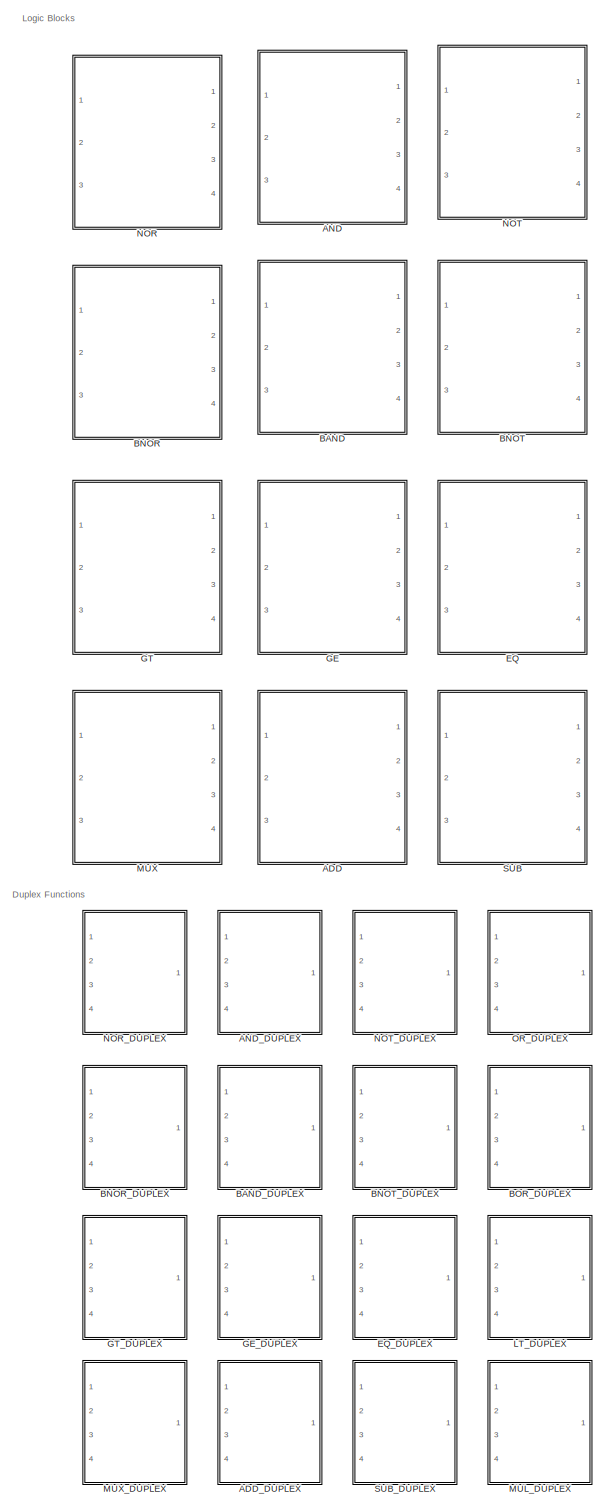
[diagram: root canvas - part 1/5, center side, full height]
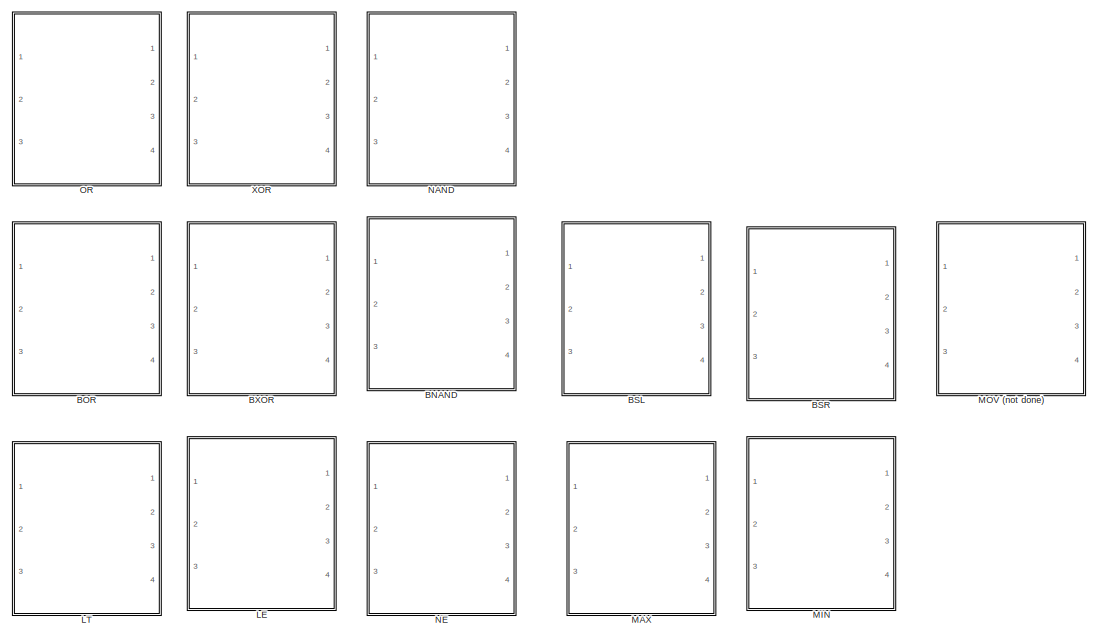
[diagram: root canvas - part 2/5, top right region]
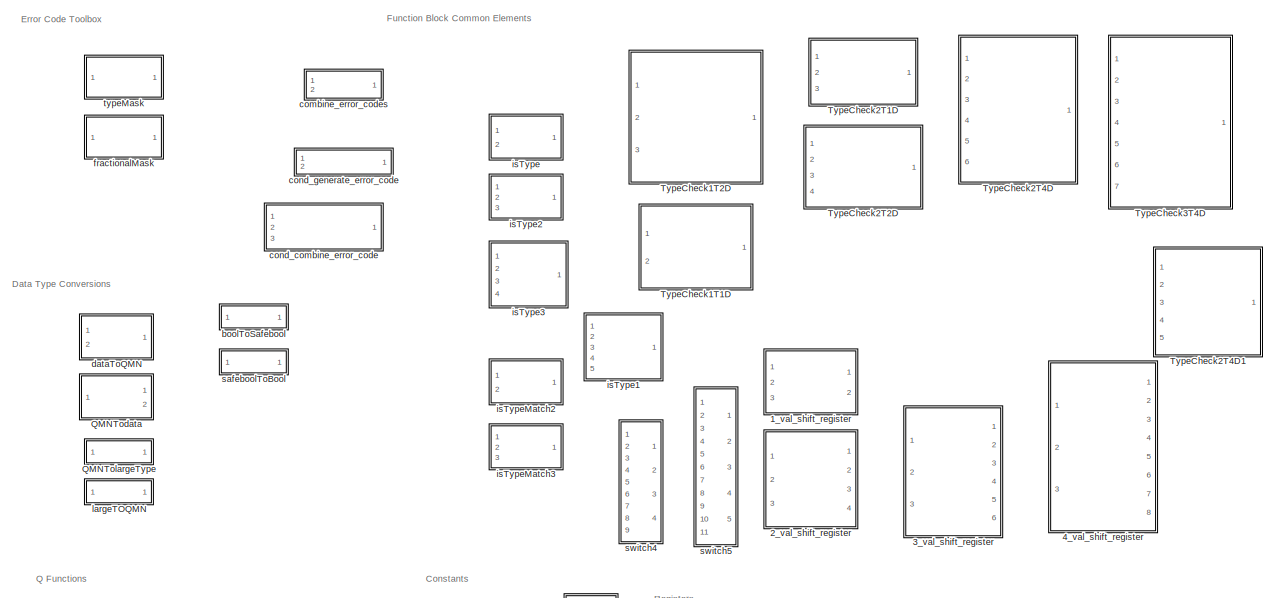
[diagram: root canvas - part 3/5, top left region]
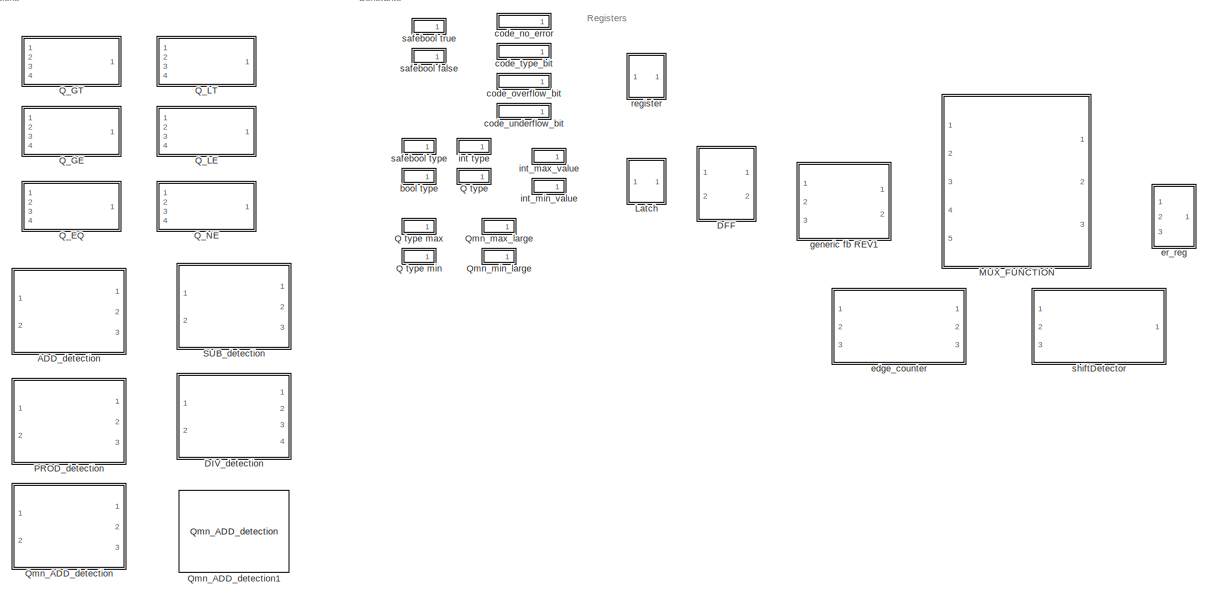
[diagram: root canvas - part 4/5, middle left region]
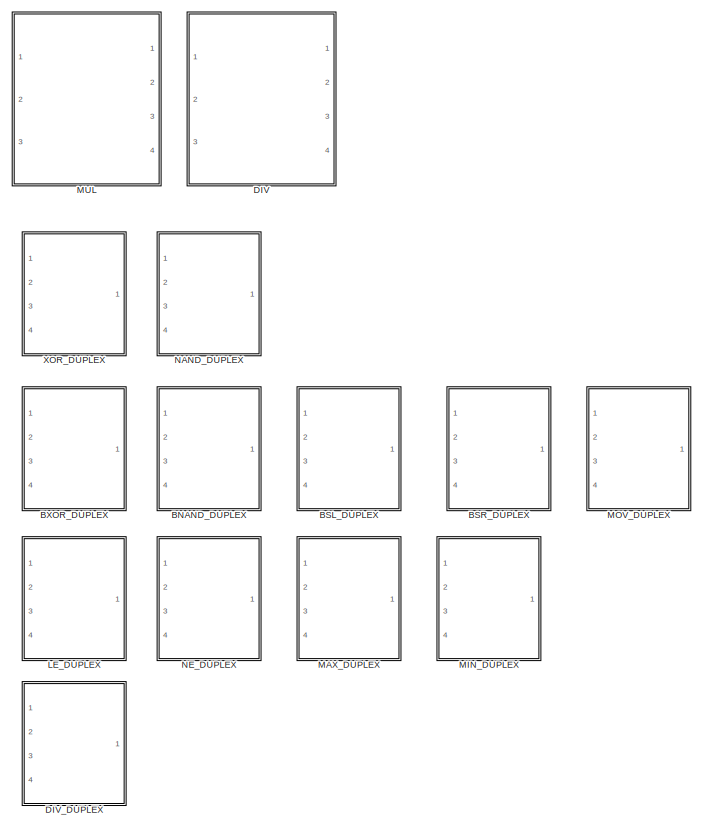
[diagram: root canvas - part 5/5, bottom right region]
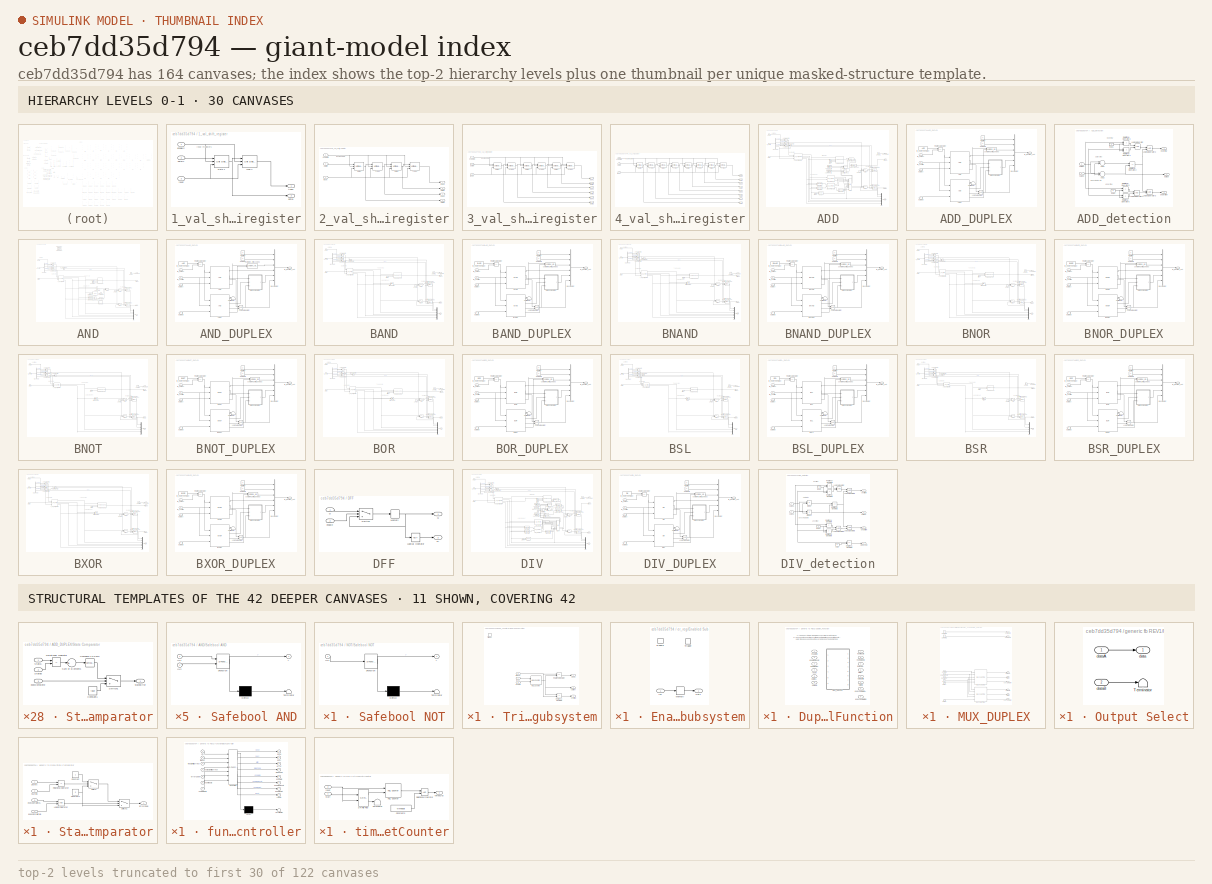
[diagram: thumbnail index - top-2 hierarchy levels (122 canvases (first 30 of 122 shown)) + 11 structural-template representatives of the remaining 42 canvases]
MODEL slx_ceb7dd35d794
KIND library
CONFIG AbsTol = auto
CONFIG EnableMultiTasking = on
CONFIG FixedStep = auto
CONFIG MaxStep = auto
CONFIG MinStep = auto
CONFIG RelTol = 1e-3
CONFIG SampleTimeConstraint = Unconstrained
CONFIG Solver = ode45
CONFIG SolverMode = Auto
CONFIG SolverName = ode45
CONFIG StartTime = 0.0
CONFIG StopTime = 10.0
BLOCK [SubSystem] 1_val_shift_register
  Ports = [3, 2]
  RequestExecContextInheritance = off
BLOCK [Reference] 1_val_shift_register/Data 1  REF=hdlsllib/Discrete/Unit Delay Enabled Resettable
Synchronous
  Ports = [3, 1]
  SourceBlock = hdlsllib/Discrete/Unit Delay Enabled Resettable\nSynchronous
  SourceProductBaseCode = HD
  SourceProductName = HDL Coder
  SourceType = Unit Delay Enabled Resettable Synchronous
BLOCK [Reference] 1_val_shift_register/Type 1  REF=hdlsllib/Discrete/Unit Delay Enabled Resettable
Synchronous
  Ports = [3, 1]
  SourceBlock = hdlsllib/Discrete/Unit Delay Enabled Resettable\nSynchronous
  SourceProductBaseCode = HD
  SourceProductName = HDL Coder
  SourceType = Unit Delay Enabled Resettable Synchronous
BLOCK [Outport] 1_val_shift_register/data1
  IconDisplay = Port number
  Port = 2
  PortDimensions = 1
BLOCK [Inport] 1_val_shift_register/dataIn
  IconDisplay = Port number
  Port = 2
BLOCK [Inport] 1_val_shift_register/enableIn
  IconDisplay = Port number
BLOCK [Inport] 1_val_shift_register/reset
  IconDisplay = Port number
  Port = 3
BLOCK [Outport] 1_val_shift_register/type1
  IconDisplay = Port number
  PortDimensions = 1
BLOCK [SubSystem] 2_val_shift_register
  Ports = [3, 4]
  RequestExecContextInheritance = off
BLOCK [Reference] 2_val_shift_register/Data 1  REF=hdlsllib/Discrete/Unit Delay Enabled Resettable
Synchronous
  Ports = [3, 1]
  SourceBlock = hdlsllib/Discrete/Unit Delay Enabled Resettable\nSynchronous
  SourceProductBaseCode = HD
  SourceProductName = HDL Coder
  SourceType = Unit Delay Enabled Resettable Synchronous
BLOCK [Reference] 2_val_shift_register/Data 2  REF=hdlsllib/Discrete/Unit Delay Enabled Resettable
Synchronous
  Ports = [3, 1]
  SourceBlock = hdlsllib/Discrete/Unit Delay Enabled Resettable\nSynchronous
  SourceProductBaseCode = HD
  SourceProductName = HDL Coder
  SourceType = Unit Delay Enabled Resettable Synchronous
BLOCK [Reference] 2_val_shift_register/Type 1  REF=hdlsllib/Discrete/Unit Delay Enabled Resettable
Synchronous
  Ports = [3, 1]
  SourceBlock = hdlsllib/Discrete/Unit Delay Enabled Resettable\nSynchronous
  SourceProductBaseCode = HD
  SourceProductName = HDL Coder
  SourceType = Unit Delay Enabled Resettable Synchronous
BLOCK [Reference] 2_val_shift_register/Type 2  REF=hdlsllib/Discrete/Unit Delay Enabled Resettable
Synchronous
  Ports = [3, 1]
  SourceBlock = hdlsllib/Discrete/Unit Delay Enabled Resettable\nSynchronous
  SourceProductBaseCode = HD
  SourceProductName = HDL Coder
  SourceType = Unit Delay Enabled Resettable Synchronous
BLOCK [Outport] 2_val_shift_register/data1
  IconDisplay = Port number
  Port = 2
  PortDimensions = 1
BLOCK [Outport] 2_val_shift_register/data2
  IconDisplay = Port number
  Port = 4
  PortDimensions = 1
BLOCK [Inport] 2_val_shift_register/dataIn
  IconDisplay = Port number
  Port = 2
BLOCK [Inport] 2_val_shift_register/enableIn
  IconDisplay = Port number
BLOCK [Inport] 2_val_shift_register/reset
  IconDisplay = Port number
  Port = 3
BLOCK [Outport] 2_val_shift_register/type1
  IconDisplay = Port number
  PortDimensions = 1
BLOCK [Outport] 2_val_shift_register/type2
  IconDisplay = Port number
  Port = 3
  PortDimensions = 1
BLOCK [SubSystem] 3_val_shift_register
  Ports = [3, 6]
  RequestExecContextInheritance = off
BLOCK [Reference] 3_val_shift_register/Data 1  REF=hdlsllib/Discrete/Unit Delay Enabled Resettable
Synchronous
  Ports = [3, 1]
  SourceBlock = hdlsllib/Discrete/Unit Delay Enabled Resettable\nSynchronous
  SourceProductBaseCode = HD
  SourceProductName = HDL Coder
  SourceType = Unit Delay Enabled Resettable Synchronous
BLOCK [Reference] 3_val_shift_register/Data 2  REF=hdlsllib/Discrete/Unit Delay Enabled Resettable
Synchronous
  Ports = [3, 1]
  SourceBlock = hdlsllib/Discrete/Unit Delay Enabled Resettable\nSynchronous
  SourceProductBaseCode = HD
  SourceProductName = HDL Coder
  SourceType = Unit Delay Enabled Resettable Synchronous
BLOCK [Reference] 3_val_shift_register/Data 3  REF=hdlsllib/Discrete/Unit Delay Enabled Resettable
Synchronous
  Ports = [3, 1]
  SourceBlock = hdlsllib/Discrete/Unit Delay Enabled Resettable\nSynchronous
  SourceProductBaseCode = HD
  SourceProductName = HDL Coder
  SourceType = Unit Delay Enabled Resettable Synchronous
BLOCK [Reference] 3_val_shift_register/Type 1  REF=hdlsllib/Discrete/Unit Delay Enabled Resettable
Synchronous
  Ports = [3, 1]
  SourceBlock = hdlsllib/Discrete/Unit Delay Enabled Resettable\nSynchronous
  SourceProductBaseCode = HD
  SourceProductName = HDL Coder
  SourceType = Unit Delay Enabled Resettable Synchronous
BLOCK [Reference] 3_val_shift_register/Type 2  REF=hdlsllib/Discrete/Unit Delay Enabled Resettable
Synchronous
  Ports = [3, 1]
  SourceBlock = hdlsllib/Discrete/Unit Delay Enabled Resettable\nSynchronous
  SourceProductBaseCode = HD
  SourceProductName = HDL Coder
  SourceType = Unit Delay Enabled Resettable Synchronous
BLOCK [Reference] 3_val_shift_register/Type 3  REF=hdlsllib/Discrete/Unit Delay Enabled Resettable
Synchronous
  Ports = [3, 1]
  SourceBlock = hdlsllib/Discrete/Unit Delay Enabled Resettable\nSynchronous
  SourceProductBaseCode = HD
  SourceProductName = HDL Coder
  SourceType = Unit Delay Enabled Resettable Synchronous
BLOCK [Outport] 3_val_shift_register/data1
  IconDisplay = Port number
  Port = 2
  PortDimensions = 1
BLOCK [Outport] 3_val_shift_register/data2
  IconDisplay = Port number
  Port = 4
  PortDimensions = 1
BLOCK [Outport] 3_val_shift_register/data3
  IconDisplay = Port number
  Port = 6
  PortDimensions = 1
BLOCK [Inport] 3_val_shift_register/dataIn
  IconDisplay = Port number
  Port = 2
BLOCK [Inport] 3_val_shift_register/enableIn
  IconDisplay = Port number
BLOCK [Inport] 3_val_shift_register/reset
  IconDisplay = Port number
  Port = 3
BLOCK [Outport] 3_val_shift_register/type1
  IconDisplay = Port number
  PortDimensions = 1
BLOCK [Outport] 3_val_shift_register/type2
  IconDisplay = Port number
  Port = 3
  PortDimensions = 1
BLOCK [Outport] 3_val_shift_register/type3
  IconDisplay = Port number
  Port = 5
  PortDimensions = 1
BLOCK [SubSystem] 4_val_shift_register
  Ports = [3, 8]
  RequestExecContextInheritance = off
BLOCK [Reference] 4_val_shift_register/Data 1  REF=hdlsllib/Discrete/Unit Delay Enabled Resettable
Synchronous
  Ports = [3, 1]
  SourceBlock = hdlsllib/Discrete/Unit Delay Enabled Resettable\nSynchronous
  SourceProductBaseCode = HD
  SourceProductName = HDL Coder
  SourceType = Unit Delay Enabled Resettable Synchronous
BLOCK [Reference] 4_val_shift_register/Data 2  REF=hdlsllib/Discrete/Unit Delay Enabled Resettable
Synchronous
  Ports = [3, 1]
  SourceBlock = hdlsllib/Discrete/Unit Delay Enabled Resettable\nSynchronous
  SourceProductBaseCode = HD
  SourceProductName = HDL Coder
  SourceType = Unit Delay Enabled Resettable Synchronous
BLOCK [Reference] 4_val_shift_register/Data 3  REF=hdlsllib/Discrete/Unit Delay Enabled Resettable
Synchronous
  Ports = [3, 1]
  SourceBlock = hdlsllib/Discrete/Unit Delay Enabled Resettable\nSynchronous
  SourceProductBaseCode = HD
  SourceProductName = HDL Coder
  SourceType = Unit Delay Enabled Resettable Synchronous
BLOCK [Reference] 4_val_shift_register/Data 4  REF=hdlsllib/Discrete/Unit Delay Enabled Resettable
Synchronous
  Ports = [3, 1]
  SourceBlock = hdlsllib/Discrete/Unit Delay Enabled Resettable\nSynchronous
  SourceProductBaseCode = HD
  SourceProductName = HDL Coder
  SourceType = Unit Delay Enabled Resettable Synchronous
BLOCK [Reference] 4_val_shift_register/Type 1  REF=hdlsllib/Discrete/Unit Delay Enabled Resettable
Synchronous
  Ports = [3, 1]
  SourceBlock = hdlsllib/Discrete/Unit Delay Enabled Resettable\nSynchronous
  SourceProductBaseCode = HD
  SourceProductName = HDL Coder
  SourceType = Unit Delay Enabled Resettable Synchronous
BLOCK [Reference] 4_val_shift_register/Type 2  REF=hdlsllib/Discrete/Unit Delay Enabled Resettable
Synchronous
  Ports = [3, 1]
  SourceBlock = hdlsllib/Discrete/Unit Delay Enabled Resettable\nSynchronous
  SourceProductBaseCode = HD
  SourceProductName = HDL Coder
  SourceType = Unit Delay Enabled Resettable Synchronous
BLOCK [Reference] 4_val_shift_register/Type 3  REF=hdlsllib/Discrete/Unit Delay Enabled Resettable
Synchronous
  Ports = [3, 1]
  SourceBlock = hdlsllib/Discrete/Unit Delay Enabled Resettable\nSynchronous
  SourceProductBaseCode = HD
  SourceProductName = HDL Coder
  SourceType = Unit Delay Enabled Resettable Synchronous
BLOCK [Reference] 4_val_shift_register/Type 4  REF=hdlsllib/Discrete/Unit Delay Enabled Resettable
Synchronous
  Ports = [3, 1]
  SourceBlock = hdlsllib/Discrete/Unit Delay Enabled Resettable\nSynchronous
  SourceProductBaseCode = HD
  SourceProductName = HDL Coder
  SourceType = Unit Delay Enabled Resettable Synchronous
BLOCK [Outport] 4_val_shift_register/data1
  IconDisplay = Port number
  Port = 2
  PortDimensions = 1
BLOCK [Outport] 4_val_shift_register/data2
  IconDisplay = Port number
  Port = 4
  PortDimensions = 1
BLOCK [Outport] 4_val_shift_register/data3
  IconDisplay = Port number
  Port = 6
  PortDimensions = 1
BLOCK [Outport] 4_val_shift_register/data4
  IconDisplay = Port number
  Port = 8
  PortDimensions = 1
BLOCK [Inport] 4_val_shift_register/dataIn
  IconDisplay = Port number
  Port = 2
BLOCK [Inport] 4_val_shift_register/enableIn
  IconDisplay = Port number
BLOCK [Inport] 4_val_shift_register/reset
  IconDisplay = Port number
  Port = 3
BLOCK [Outport] 4_val_shift_register/type1
  IconDisplay = Port number
  PortDimensions = 1
BLOCK [Outport] 4_val_shift_register/type2
  IconDisplay = Port number
  Port = 3
  PortDimensions = 1
BLOCK [Outport] 4_val_shift_register/type3
  IconDisplay = Port number
  Port = 5
  PortDimensions = 1
BLOCK [Outport] 4_val_shift_register/type4
  IconDisplay = Port number
  Port = 7
  PortDimensions = 1
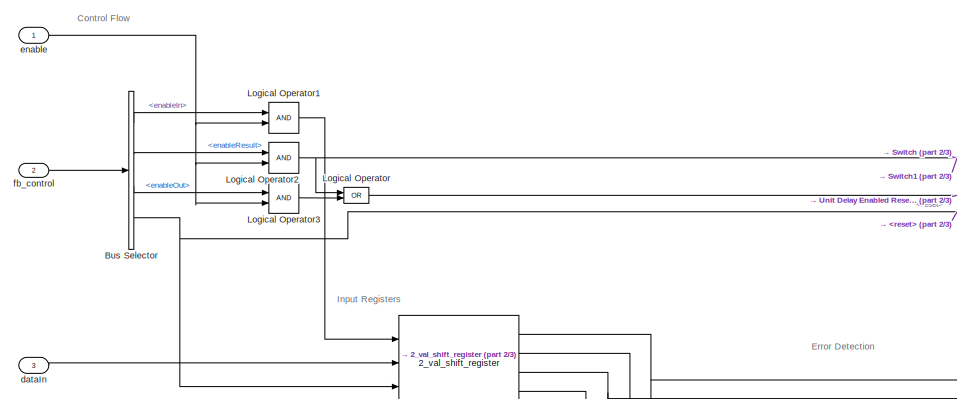
[diagram: ADD - part 1/3, top left region]
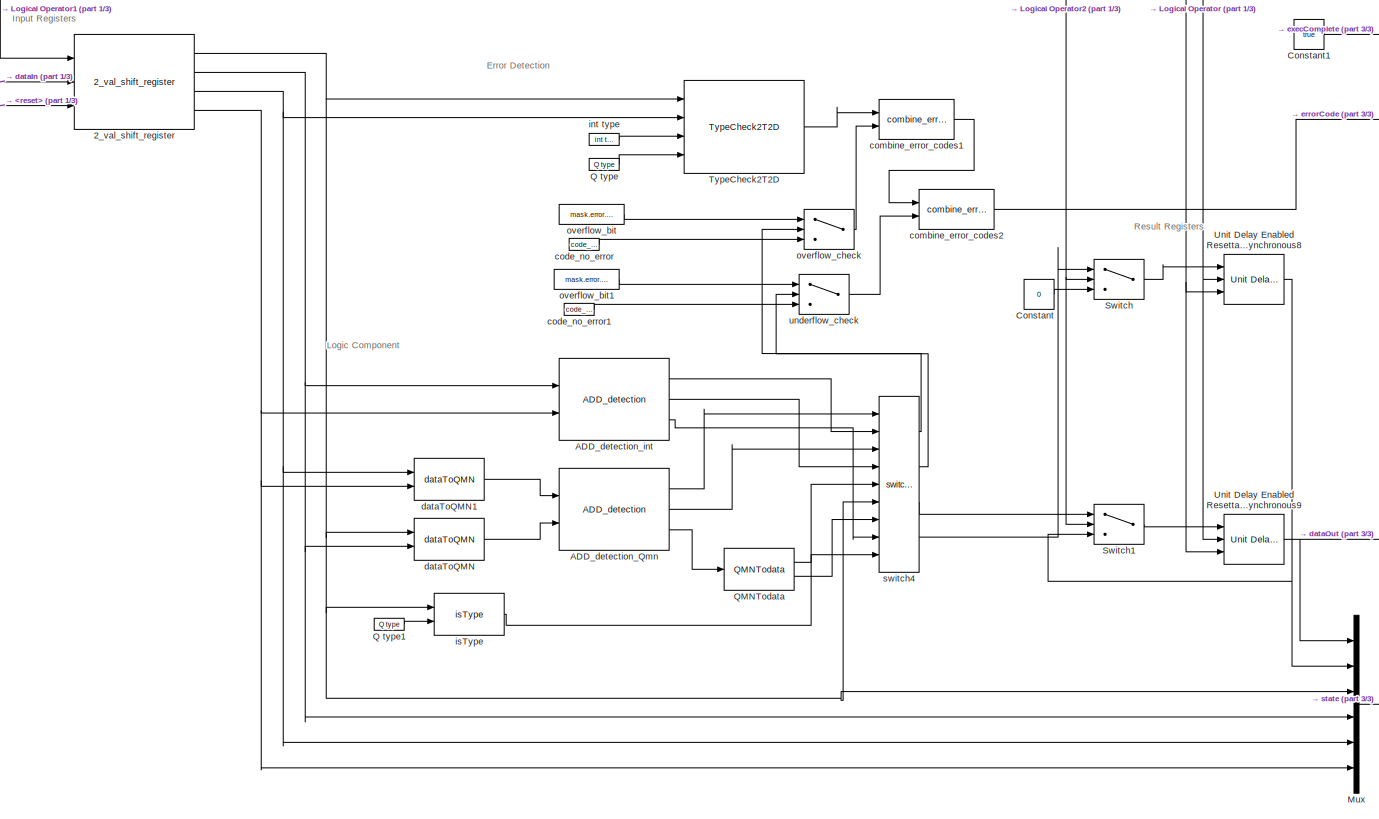
[diagram: ADD - part 2/3, full width, middle band]
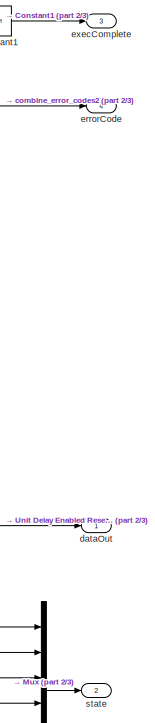
[diagram: ADD - part 3/3, middle right region]
BLOCK [SubSystem] ADD
  Ports = [3, 4]
  RequestExecContextInheritance = off
BLOCK [Reference] ADD/2_val_shift_register  REF=$bdroot/2_val_shift_register
  Ports = [3, 4]
  SourceBlock = $bdroot/2_val_shift_register
  SourceType = SubSystem
BLOCK [Reference] ADD/ADD_detection_Qmn  REF=$bdroot/ADD_detection
  Ports = [2, 3]
  SourceBlock = $bdroot/ADD_detection
  SourceType = SubSystem
BLOCK [Reference] ADD/ADD_detection_int  REF=$bdroot/ADD_detection
  Ports = [2, 3]
  SourceBlock = $bdroot/ADD_detection
  SourceType = SubSystem
BLOCK [BusSelector] ADD/Bus Selector
  OutputAsBus = off
  OutputSignals = enableIn,enableResult,enableOut,reset
  Ports = [1, 4]
BLOCK [Constant] ADD/Constant
  OutDataTypeStr = int32
  Value = 0
BLOCK [Constant] ADD/Constant1
  SampleTime = -1
  Value = true
BLOCK [Logic] ADD/Logical Operator
  AllPortsSameDT = off
  Operator = OR
  OutDataTypeStr = boolean
  Ports = [2, 1]
BLOCK [Logic] ADD/Logical Operator1
  AllPortsSameDT = off
  OutDataTypeStr = boolean
  Ports = [2, 1]
BLOCK [Logic] ADD/Logical Operator2
  AllPortsSameDT = off
  OutDataTypeStr = boolean
  Ports = [2, 1]
BLOCK [Logic] ADD/Logical Operator3
  AllPortsSameDT = off
  OutDataTypeStr = boolean
  Ports = [2, 1]
BLOCK [Mux] ADD/Mux
  DisplayOption = bar
  Inputs = 6
  Ports = [6, 1]
BLOCK [Reference] ADD/Q type  REF=$bdroot/Q type
  Ports = [0, 1]
  SourceBlock = $bdroot/Q type
  SourceType = SubSystem
BLOCK [Reference] ADD/Q type1  REF=$bdroot/Q type
  Ports = [0, 1]
  SourceBlock = $bdroot/Q type
  SourceType = SubSystem
BLOCK [Reference] ADD/QMNTodata  REF=$bdroot/QMNTodata
  Ports = [1, 2]
  SourceBlock = $bdroot/QMNTodata
  SourceType = SubSystem
BLOCK [Switch] ADD/Switch
  Criteria = u2 > Threshold
  InputSameDT = off
  SaturateOnIntegerOverflow = off
BLOCK [Switch] ADD/Switch1
  Criteria = u2 > Threshold
  InputSameDT = off
  SaturateOnIntegerOverflow = off
BLOCK [Reference] ADD/TypeCheck2T2D  REF=$bdroot/TypeCheck2T2D
  Ports = [4, 1]
  SourceBlock = $bdroot/TypeCheck2T2D
  SourceType = SubSystem
BLOCK [Reference] ADD/Unit Delay Enabled Resettable Synchronous8  REF=hdlsllib/Discrete/Unit Delay Enabled Resettable
Synchronous
  Ports = [3, 1]
  SourceBlock = hdlsllib/Discrete/Unit Delay Enabled Resettable\nSynchronous
  SourceProductBaseCode = HD
  SourceProductName = HDL Coder
  SourceType = Unit Delay Enabled Resettable Synchronous
BLOCK [Reference] ADD/Unit Delay Enabled Resettable Synchronous9  REF=hdlsllib/Discrete/Unit Delay Enabled Resettable
Synchronous
  Ports = [3, 1]
  SourceBlock = hdlsllib/Discrete/Unit Delay Enabled Resettable\nSynchronous
  SourceProductBaseCode = HD
  SourceProductName = HDL Coder
  SourceType = Unit Delay Enabled Resettable Synchronous
BLOCK [Reference] ADD/code_no_error  REF=$bdroot/code_no_error
  Ports = [0, 1]
  SourceBlock = $bdroot/code_no_error
  SourceType = SubSystem
BLOCK [Reference] ADD/code_no_error1  REF=$bdroot/code_no_error
  Ports = [0, 1]
  SourceBlock = $bdroot/code_no_error
  SourceType = SubSystem
BLOCK [Reference] ADD/combine_error_codes1  REF=$bdroot/combine_error_codes
  Ports = [2, 1]
  SourceBlock = $bdroot/combine_error_codes
  SourceType = SubSystem
BLOCK [Reference] ADD/combine_error_codes2  REF=$bdroot/combine_error_codes
  Ports = [2, 1]
  SourceBlock = $bdroot/combine_error_codes
  SourceType = SubSystem
BLOCK [Inport] ADD/dataIn
  IconDisplay = Port number
  OutDataTypeStr = int32
  Port = 3
BLOCK [Outport] ADD/dataOut
  IconDisplay = Port number
BLOCK [Reference] ADD/dataToQMN  REF=$bdroot/dataToQMN
  Ports = [2, 1]
  SourceBlock = $bdroot/dataToQMN
  SourceType = SubSystem
BLOCK [Reference] ADD/dataToQMN1  REF=$bdroot/dataToQMN
  Ports = [2, 1]
  SourceBlock = $bdroot/dataToQMN
  SourceType = SubSystem
BLOCK [Inport] ADD/enable
  IconDisplay = Port number
  OutDataTypeStr = boolean
BLOCK [Outport] ADD/errorCode
  IconDisplay = Port number
  Port = 4
  PortDimensions = 1
BLOCK [Outport] ADD/execComplete
  IconDisplay = Port number
  OutDataTypeStr = boolean
  Port = 3
  PortDimensions = 1
BLOCK [Inport] ADD/fb_control
  IconDisplay = Port number
  OutDataTypeStr = Bus: fb_control
  Port = 2
BLOCK [Reference] ADD/int type  REF=$bdroot/int type
  Ports = [0, 1]
  SourceBlock = $bdroot/int type
  SourceType = SubSystem
BLOCK [Reference] ADD/isType  REF=$bdroot/isType
  Ports = [2, 1]
  SourceBlock = $bdroot/isType
  SourceType = SubSystem
BLOCK [Constant] ADD/overflow_bit
  SampleTime = -1
  Value = mask.error.overflowBit
BLOCK [Constant] ADD/overflow_bit1
  SampleTime = -1
  Value = mask.error.underflowBit
BLOCK [Switch] ADD/overflow_check
  Criteria = u2 > Threshold
  InputSameDT = off
  SaturateOnIntegerOverflow = off
BLOCK [Outport] ADD/state
  IconDisplay = Port number
  Port = 2
BLOCK [Reference] ADD/switch4  REF=$bdroot/switch4
  Ports = [9, 4]
  SourceBlock = $bdroot/switch4
  SourceType = SubSystem
BLOCK [Switch] ADD/underflow_check
  Criteria = u2 > Threshold
  InputSameDT = off
  SaturateOnIntegerOverflow = off
BLOCK [SubSystem] ADD_DUPLEX
  Ports = [4, 1]
  RequestExecContextInheritance = off
  TreatAsAtomicUnit = on
  VariantControl = MUX_FB
BLOCK [Reference] ADD_DUPLEX/ADD  REF=$bdroot/ADD
  Ports = [3, 4]
  SourceBlock = $bdroot/ADD
  SourceType = SubSystem
BLOCK [Reference] ADD_DUPLEX/ADD1  REF=$bdroot/ADD
  Ports = [3, 4]
  SourceBlock = $bdroot/ADD
  SourceType = SubSystem
BLOCK [BusCreator] ADD_DUPLEX/Bus Creator
  DisplayOption = bar
  InheritFromInputs = on
  Inputs = 6
  OutDataTypeStr = Bus: fb_functions_out
  Ports = [6, 1]
BLOCK [Logic] ADD_DUPLEX/Logical Operator
  AllPortsSameDT = off
  OutDataTypeStr = boolean
  Ports = [2, 1]
BLOCK [Constant] ADD_DUPLEX/Num Ins
  OutDataTypeStr = Inherit: Inherit via back propagation
  Value = 4
BLOCK [Constant] ADD_DUPLEX/Num Outs
  OutDataTypeStr = Inherit: Inherit via back propagation
  Value = 2
BLOCK [RelationalOperator] ADD_DUPLEX/Relational Operator
  InputSameDT = off
  Operator = ==
  OutDataTypeStr = boolean
  Ports = [2, 1]
BLOCK [SubSystem] ADD_DUPLEX/State Comparator
  Ports = [3, 1]
  RequestExecContextInheritance = off
BLOCK [Reference] ADD_DUPLEX/State Comparator/Compare To Zero  REF=simulink/Logic and Bit
Operations/Compare
To Zero
  Ports = [1, 1]
  SourceBlock = simulink/Logic and Bit\nOperations/Compare\nTo Zero
  SourceProductBaseCode = SL
  SourceProductName = Simulink
  SourceType = Compare To Zero
BLOCK [Constant] ADD_DUPLEX/State Comparator/Constant1
  SampleTime = -1
  Value = false
BLOCK [RelationalOperator] ADD_DUPLEX/State Comparator/Relational Operator
  InputSameDT = off
  Operator = ~=
  OutDataTypeStr = boolean
  Ports = [2, 1]
  RndMeth = Simplest
BLOCK [Inport] ADD_DUPLEX/State Comparator/StateA
  IconDisplay = Port number
BLOCK [Inport] ADD_DUPLEX/State Comparator/StateB
  IconDisplay = Port number
  Port = 2
BLOCK [Sum] ADD_DUPLEX/State Comparator/Sum of Elements
  InputSameDT = off
  Inputs = +
  OutDataTypeStr = Inherit: Inherit via internal rule
  Ports = [1, 1]
  SaturateOnIntegerOverflow = off
BLOCK [Switch] ADD_DUPLEX/State Comparator/Switch1
  Criteria = u2 > Threshold
  InputSameDT = off
  SaturateOnIntegerOverflow = off
BLOCK [Inport] ADD_DUPLEX/State Comparator/execComplete
  IconDisplay = Port number
  Port = 3
BLOCK [Outport] ADD_DUPLEX/State Comparator/stateError
  IconDisplay = Port number
BLOCK [Terminator] ADD_DUPLEX/Terminator
BLOCK [Reference] ADD_DUPLEX/combine_error_codes  REF=$bdroot/combine_error_codes
  Ports = [2, 1]
  SourceBlock = $bdroot/combine_error_codes
  SourceType = SubSystem
BLOCK [Inport] ADD_DUPLEX/dataInA
  IconDisplay = Port number
  Port = 3
BLOCK [Inport] ADD_DUPLEX/dataInB
  IconDisplay = Port number
  Port = 4
BLOCK [Inport] ADD_DUPLEX/fb_control
  IconDisplay = Port number
  OutDataTypeStr = Bus: fb_control
  Port = 2
BLOCK [Outport] ADD_DUPLEX/fb_function_out
  IconDisplay = Port number
  OutDataTypeStr = Bus: fb_functions_out
BLOCK [Constant] ADD_DUPLEX/fb_num_constant
  Value = ADD
BLOCK [Inport] ADD_DUPLEX/fb_select
  IconDisplay = Port number
BLOCK [SubSystem] ADD_detection
  Ports = [2, 3]
  RequestExecContextInheritance = off
BLOCK [Sum] ADD_detection/Add1
  InputSameDT = off
  OutDataTypeStr = Inherit: Inherit via internal rule
  Ports = [2, 1]
BLOCK [Sum] ADD_detection/Add2
  InputSameDT = off
  OutDataTypeStr = Inherit: Inherit via internal rule
  Ports = [2, 1]
  SaturateOnIntegerOverflow = off
BLOCK [Logic] ADD_detection/Logical Operator
  AllPortsSameDT = off
  OutDataTypeStr = boolean
  Ports = [2, 1]
BLOCK [Logic] ADD_detection/Logical Operator1
  AllPortsSameDT = off
  OutDataTypeStr = boolean
  Ports = [2, 1]
BLOCK [Logic] ADD_detection/Logical Operator2
  AllPortsSameDT = off
  OutDataTypeStr = boolean
  Ports = [2, 1]
BLOCK [Logic] ADD_detection/Logical Operator3
  AllPortsSameDT = off
  OutDataTypeStr = boolean
  Ports = [2, 1]
BLOCK [RelationalOperator] ADD_detection/Relational Operator2
  InputSameDT = off
  Operator = ~=
  OutDataTypeStr = boolean
  Ports = [2, 1]
BLOCK [RelationalOperator] ADD_detection/Relational Operator3
  InputSameDT = off
  Operator = >
  OutDataTypeStr = boolean
  Ports = [2, 1]
BLOCK [RelationalOperator] ADD_detection/Relational Operator4
  InputSameDT = off
  Operator = >
  OutDataTypeStr = boolean
  Ports = [2, 1]
BLOCK [RelationalOperator] ADD_detection/Relational Operator5
  InputSameDT = off
  Operator = <
  OutDataTypeStr = boolean
  Ports = [2, 1]
BLOCK [RelationalOperator] ADD_detection/Relational Operator6
  InputSameDT = off
  Operator = <
  OutDataTypeStr = boolean
  Ports = [2, 1]
BLOCK [Outport] ADD_detection/output
  IconDisplay = Port number
  Port = 3
  PortDimensions = 1
BLOCK [Outport] ADD_detection/overflow
  IconDisplay = Port number
  OutDataTypeStr = boolean
  PortDimensions = 1
BLOCK [Constant] ADD_detection/type1
  OutDataTypeStr = Inherit: Inherit via back propagation
  Value = 0
BLOCK [Constant] ADD_detection/type2
  OutDataTypeStr = Inherit: Inherit via back propagation
  Value = 0
BLOCK [Outport] ADD_detection/underflow
  IconDisplay = Port number
  OutDataTypeStr = boolean
  Port = 2
  PortDimensions = 1
BLOCK [Inport] ADD_detection/value1
  IconDisplay = Port number
BLOCK [Inport] ADD_detection/value2
  IconDisplay = Port number
  Port = 2
BLOCK [SubSystem] AND
  Ports = [3, 4]
  RequestExecContextInheritance = off
BLOCK [Reference] AND/2_val_shift_register  REF=$bdroot/2_val_shift_register
  Ports = [3, 4]
  SourceBlock = $bdroot/2_val_shift_register
  SourceType = SubSystem
BLOCK [BusSelector] AND/Bus Selector
  OutputAsBus = off
  OutputSignals = enableIn,enableResult,enableOut,reset
  Ports = [1, 4]
BLOCK [Constant] AND/Constant
  OutDataTypeStr = int32
  Value = 0
BLOCK [Constant] AND/Constant1
  SampleTime = -1
  Value = true
BLOCK [Logic] AND/Logical Operator
  AllPortsSameDT = off
  Operator = OR
  OutDataTypeStr = boolean
  Ports = [2, 1]
BLOCK [Logic] AND/Logical Operator1
  AllPortsSameDT = off
  OutDataTypeStr = boolean
  Ports = [2, 1]
BLOCK [Logic] AND/Logical Operator2
  AllPortsSameDT = off
  OutDataTypeStr = boolean
  Ports = [2, 1]
BLOCK [Logic] AND/Logical Operator3
  AllPortsSameDT = off
  OutDataTypeStr = boolean
  Ports = [2, 1]
BLOCK [Logic] AND/Logical Operator4
  AllPortsSameDT = off
  OutDataTypeStr = boolean
  Ports = [2, 1]
BLOCK [Logic] AND/Logical Operator5
  AllPortsSameDT = off
  OutDataTypeStr = boolean
  Ports = [2, 1]
BLOCK [Logic] AND/Logical Operator6
  AllPortsSameDT = off
  Operator = NOT
  OutDataTypeStr = boolean
  Ports = [1, 1]
BLOCK [Mux] AND/Mux
  DisplayOption = bar
  Inputs = 6
  Ports = [6, 1]
BLOCK [SubSystem] AND/Safebool AND
  Commented = on
  ErrorFcn = Stateflow.Translate.translate
  PermitHierarchicalResolution = ExplicitOnly
  Ports = [2, 1]
  RequestExecContextInheritance = off
  SFBlockType = MATLAB Function
  TreatAsAtomicUnit = on
BLOCK [Demux] AND/Safebool AND/ Demux 
  Outputs = 1
  Ports = [1, 1]
BLOCK [S-Function] AND/Safebool AND/ SFunction 
  EnableBusSupport = off
  FunctionName = sf_sfun
  Parameters = safebool
  PortCounts = [2 2]
  Ports = [2, 2]
  SFcnIsStateOwnerBlock = off
  SFunctionDeploymentMode = off
  Tag = Stateflow S-Function library 23
BLOCK [Terminator] AND/Safebool AND/ Terminator 
BLOCK [Inport] AND/Safebool AND/IN1
  IconDisplay = Port number
BLOCK [Inport] AND/Safebool AND/IN2
  IconDisplay = Port number
  Port = 2
BLOCK [Outport] AND/Safebool AND/y
  IconDisplay = Port number
BLOCK [Switch] AND/Switch
  Criteria = u2 > Threshold
  InputSameDT = off
  SaturateOnIntegerOverflow = off
BLOCK [Switch] AND/Switch1
  Criteria = u2 > Threshold
  InputSameDT = off
  SaturateOnIntegerOverflow = off
BLOCK [Switch] AND/Switch2
  Criteria = u2 > Threshold
  InputSameDT = off
  SaturateOnIntegerOverflow = off
BLOCK [Reference] AND/TypeCheck2T2D  REF=$bdroot/TypeCheck2T2D
  Ports = [4, 1]
  SourceBlock = $bdroot/TypeCheck2T2D
  SourceType = SubSystem
BLOCK [Reference] AND/Unit Delay Enabled Resettable Synchronous8  REF=hdlsllib/Discrete/Unit Delay Enabled Resettable
Synchronous
  Ports = [3, 1]
  SourceBlock = hdlsllib/Discrete/Unit Delay Enabled Resettable\nSynchronous
  SourceProductBaseCode = HD
  SourceProductName = HDL Coder
  SourceType = Unit Delay Enabled Resettable Synchronous
BLOCK [Reference] AND/Unit Delay Enabled Resettable Synchronous9  REF=hdlsllib/Discrete/Unit Delay Enabled Resettable
Synchronous
  Ports = [3, 1]
  SourceBlock = hdlsllib/Discrete/Unit Delay Enabled Resettable\nSynchronous
  SourceProductBaseCode = HD
  SourceProductName = HDL Coder
  SourceType = Unit Delay Enabled Resettable Synchronous
BLOCK [Reference] AND/bool type  REF=$bdroot/bool type
  Ports = [0, 1]
  SourceBlock = $bdroot/bool type
  SourceType = SubSystem
BLOCK [Reference] AND/boolToSafebool  REF=$bdroot/boolToSafebool
  Ports = [1, 1]
  SourceBlock = $bdroot/boolToSafebool
  SourceType = SubSystem
BLOCK [Inport] AND/dataIn
  IconDisplay = Port number
  OutDataTypeStr = int32
  Port = 3
BLOCK [Outport] AND/dataOut
  IconDisplay = Port number
BLOCK [Inport] AND/enable
  IconDisplay = Port number
  OutDataTypeStr = boolean
BLOCK [Outport] AND/errorCode
  IconDisplay = Port number
  Port = 4
  PortDimensions = 1
BLOCK [Outport] AND/execComplete
  IconDisplay = Port number
  OutDataTypeStr = boolean
  Port = 3
  PortDimensions = 1
BLOCK [Inport] AND/fb_control
  IconDisplay = Port number
  OutDataTypeStr = Bus: fb_control
  Port = 2
BLOCK [Reference] AND/isType  REF=$bdroot/isType
  Ports = [2, 1]
  SourceBlock = $bdroot/isType
  SourceType = SubSystem
BLOCK [Reference] AND/safebool type  REF=$bdroot/safebool type
  Ports = [0, 1]
  SourceBlock = $bdroot/safebool type
  SourceType = SubSystem
BLOCK [Reference] AND/safebool type1  REF=$bdroot/safebool type
  Ports = [0, 1]
  SourceBlock = $bdroot/safebool type
  SourceType = SubSystem
BLOCK [Reference] AND/safeboolToBool  REF=$bdroot/safeboolToBool
  Ports = [1, 1]
  SourceBlock = $bdroot/safeboolToBool
  SourceType = SubSystem
BLOCK [Reference] AND/safeboolToBool1  REF=$bdroot/safeboolToBool
  Ports = [1, 1]
  SourceBlock = $bdroot/safeboolToBool
  SourceType = SubSystem
BLOCK [Reference] AND/safeboolToBool2  REF=$bdroot/safeboolToBool
  Ports = [1, 1]
  SourceBlock = $bdroot/safeboolToBool
  SourceType = SubSystem
BLOCK [Reference] AND/safeboolToBool3  REF=$bdroot/safeboolToBool
  Ports = [1, 1]
  SourceBlock = $bdroot/safeboolToBool
  SourceType = SubSystem
BLOCK [Outport] AND/state
  IconDisplay = Port number
  Port = 2
BLOCK [SubSystem] AND_DUPLEX
  Ports = [4, 1]
  RequestExecContextInheritance = off
  TreatAsAtomicUnit = on
  VariantControl = MUX_FB
BLOCK [Reference] AND_DUPLEX/AND  REF=$bdroot/AND
  Ports = [3, 4]
  SourceBlock = $bdroot/AND
  SourceType = SubSystem
BLOCK [Reference] AND_DUPLEX/AND1  REF=$bdroot/AND
  Ports = [3, 4]
  SourceBlock = $bdroot/AND
  SourceType = SubSystem
BLOCK [BusCreator] AND_DUPLEX/Bus Creator
  DisplayOption = bar
  InheritFromInputs = on
  Inputs = 6
  OutDataTypeStr = Bus: fb_functions_out
  Ports = [6, 1]
BLOCK [Logic] AND_DUPLEX/Logical Operator
  AllPortsSameDT = off
  OutDataTypeStr = boolean
  Ports = [2, 1]
BLOCK [Constant] AND_DUPLEX/Num Ins
  OutDataTypeStr = Inherit: Inherit via back propagation
  Value = 4
BLOCK [Constant] AND_DUPLEX/Num Outs
  OutDataTypeStr = Inherit: Inherit via back propagation
  Value = 2
BLOCK [RelationalOperator] AND_DUPLEX/Relational Operator
  InputSameDT = off
  Operator = ==
  OutDataTypeStr = boolean
  Ports = [2, 1]
BLOCK [SubSystem] AND_DUPLEX/State Comparator
  Ports = [3, 1]
  RequestExecContextInheritance = off
BLOCK [Reference] AND_DUPLEX/State Comparator/Compare To Zero  REF=simulink/Logic and Bit
Operations/Compare
To Zero
  Ports = [1, 1]
  SourceBlock = simulink/Logic and Bit\nOperations/Compare\nTo Zero
  SourceProductBaseCode = SL
  SourceProductName = Simulink
  SourceType = Compare To Zero
BLOCK [Constant] AND_DUPLEX/State Comparator/Constant1
  SampleTime = -1
  Value = false
BLOCK [RelationalOperator] AND_DUPLEX/State Comparator/Relational Operator
  InputSameDT = off
  Operator = ~=
  OutDataTypeStr = boolean
  Ports = [2, 1]
  RndMeth = Simplest
BLOCK [Inport] AND_DUPLEX/State Comparator/StateA
  IconDisplay = Port number
BLOCK [Inport] AND_DUPLEX/State Comparator/StateB
  IconDisplay = Port number
  Port = 2
BLOCK [Sum] AND_DUPLEX/State Comparator/Sum of Elements
  InputSameDT = off
  Inputs = +
  OutDataTypeStr = Inherit: Inherit via internal rule
  Ports = [1, 1]
  SaturateOnIntegerOverflow = off
BLOCK [Switch] AND_DUPLEX/State Comparator/Switch1
  Criteria = u2 > Threshold
  InputSameDT = off
  SaturateOnIntegerOverflow = off
BLOCK [Inport] AND_DUPLEX/State Comparator/execComplete
  IconDisplay = Port number
  Port = 3
BLOCK [Outport] AND_DUPLEX/State Comparator/stateError
  IconDisplay = Port number
BLOCK [Terminator] AND_DUPLEX/Terminator
BLOCK [Reference] AND_DUPLEX/combine_error_codes  REF=$bdroot/combine_error_codes
  Ports = [2, 1]
  SourceBlock = $bdroot/combine_error_codes
  SourceType = SubSystem
BLOCK [Inport] AND_DUPLEX/dataInA
  IconDisplay = Port number
  Port = 3
BLOCK [Inport] AND_DUPLEX/dataInB
  IconDisplay = Port number
  Port = 4
BLOCK [Inport] AND_DUPLEX/fb_control
  IconDisplay = Port number
  OutDataTypeStr = Bus: fb_control
  Port = 2
BLOCK [Outport] AND_DUPLEX/fb_function_out
  IconDisplay = Port number
  OutDataTypeStr = Bus: fb_functions_out
BLOCK [Constant] AND_DUPLEX/fb_num_constant
  Value = AND
BLOCK [Inport] AND_DUPLEX/fb_select
  IconDisplay = Port number
BLOCK [SubSystem] BAND
  Ports = [3, 4]
  RequestExecContextInheritance = off
BLOCK [Reference] BAND/2_val_shift_register  REF=$bdroot/2_val_shift_register
  Ports = [3, 4]
  SourceBlock = $bdroot/2_val_shift_register
  SourceType = SubSystem
BLOCK [Reference] BAND/Bitwise Operator  REF=simulink/Logic and Bit
Operations/Bitwise
Operator
  Ports = [2, 1]
  SourceBlock = simulink/Logic and Bit\nOperations/Bitwise\nOperator
  SourceProductBaseCode = SL
  SourceProductName = Simulink
  SourceType = Bitwise Operator
BLOCK [BusSelector] BAND/Bus Selector
  OutputAsBus = off
  OutputSignals = enableIn,enableResult,enableOut,reset
  Ports = [1, 4]
BLOCK [Constant] BAND/Constant
  OutDataTypeStr = int32
  Value = 0
BLOCK [Constant] BAND/Constant1
  SampleTime = -1
  Value = true
BLOCK [Logic] BAND/Logical Operator
  AllPortsSameDT = off
  Operator = OR
  OutDataTypeStr = boolean
  Ports = [2, 1]
BLOCK [Logic] BAND/Logical Operator1
  AllPortsSameDT = off
  OutDataTypeStr = boolean
  Ports = [2, 1]
BLOCK [Logic] BAND/Logical Operator2
  AllPortsSameDT = off
  OutDataTypeStr = boolean
  Ports = [2, 1]
BLOCK [Logic] BAND/Logical Operator3
  AllPortsSameDT = off
  OutDataTypeStr = boolean
  Ports = [2, 1]
BLOCK [Mux] BAND/Mux
  DisplayOption = bar
  Inputs = 6
  Ports = [6, 1]
BLOCK [Switch] BAND/Switch
  Criteria = u2 > Threshold
  InputSameDT = off
  SaturateOnIntegerOverflow = off
BLOCK [Switch] BAND/Switch1
  Criteria = u2 > Threshold
  InputSameDT = off
  SaturateOnIntegerOverflow = off
BLOCK [Reference] BAND/TypeCheck2T1D  REF=$bdroot/TypeCheck2T1D
  Ports = [3, 1]
  SourceBlock = $bdroot/TypeCheck2T1D
  SourceType = SubSystem
BLOCK [Reference] BAND/Unit Delay Enabled Resettable Synchronous8  REF=hdlsllib/Discrete/Unit Delay Enabled Resettable
Synchronous
  Ports = [3, 1]
  SourceBlock = hdlsllib/Discrete/Unit Delay Enabled Resettable\nSynchronous
  SourceProductBaseCode = HD
  SourceProductName = HDL Coder
  SourceType = Unit Delay Enabled Resettable Synchronous
BLOCK [Reference] BAND/Unit Delay Enabled Resettable Synchronous9  REF=hdlsllib/Discrete/Unit Delay Enabled Resettable
Synchronous
  Ports = [3, 1]
  SourceBlock = hdlsllib/Discrete/Unit Delay Enabled Resettable\nSynchronous
  SourceProductBaseCode = HD
  SourceProductName = HDL Coder
  SourceType = Unit Delay Enabled Resettable Synchronous
BLOCK [Inport] BAND/dataIn
  IconDisplay = Port number
  OutDataTypeStr = int32
  Port = 3
BLOCK [Outport] BAND/dataOut
  IconDisplay = Port number
BLOCK [Inport] BAND/enable
  IconDisplay = Port number
  OutDataTypeStr = boolean
BLOCK [Outport] BAND/errorCode
  IconDisplay = Port number
  Port = 4
  PortDimensions = 1
BLOCK [Outport] BAND/execComplete
  IconDisplay = Port number
  OutDataTypeStr = boolean
  Port = 3
  PortDimensions = 1
BLOCK [Inport] BAND/fb_control
  IconDisplay = Port number
  OutDataTypeStr = Bus: fb_control
  Port = 2
BLOCK [Reference] BAND/int type  REF=$bdroot/int type
  Ports = [0, 1]
  SourceBlock = $bdroot/int type
  SourceType = SubSystem
BLOCK [Outport] BAND/state
  IconDisplay = Port number
  Port = 2
BLOCK [SubSystem] BAND_DUPLEX
  Ports = [4, 1]
  RequestExecContextInheritance = off
  TreatAsAtomicUnit = on
  VariantControl = MUX_FB
BLOCK [Reference] BAND_DUPLEX/BAND  REF=$bdroot/BAND
  Ports = [3, 4]
  SourceBlock = $bdroot/BAND
  SourceType = SubSystem
BLOCK [Reference] BAND_DUPLEX/BAND1  REF=$bdroot/BAND
  Ports = [3, 4]
  SourceBlock = $bdroot/BAND
  SourceType = SubSystem
BLOCK [BusCreator] BAND_DUPLEX/Bus Creator
  DisplayOption = bar
  InheritFromInputs = on
  Inputs = 6
  OutDataTypeStr = Bus: fb_functions_out
  Ports = [6, 1]
BLOCK [Logic] BAND_DUPLEX/Logical Operator
  AllPortsSameDT = off
  OutDataTypeStr = boolean
  Ports = [2, 1]
BLOCK [Constant] BAND_DUPLEX/Num Ins
  OutDataTypeStr = Inherit: Inherit via back propagation
  Value = 4
BLOCK [Constant] BAND_DUPLEX/Num Outs
  OutDataTypeStr = Inherit: Inherit via back propagation
  Value = 2
BLOCK [RelationalOperator] BAND_DUPLEX/Relational Operator
  InputSameDT = off
  Operator = ==
  OutDataTypeStr = boolean
  Ports = [2, 1]
BLOCK [SubSystem] BAND_DUPLEX/State Comparator
  Ports = [3, 1]
  RequestExecContextInheritance = off
BLOCK [Reference] BAND_DUPLEX/State Comparator/Compare To Zero  REF=simulink/Logic and Bit
Operations/Compare
To Zero
  Ports = [1, 1]
  SourceBlock = simulink/Logic and Bit\nOperations/Compare\nTo Zero
  SourceProductBaseCode = SL
  SourceProductName = Simulink
  SourceType = Compare To Zero
BLOCK [Constant] BAND_DUPLEX/State Comparator/Constant1
  SampleTime = -1
  Value = false
BLOCK [RelationalOperator] BAND_DUPLEX/State Comparator/Relational Operator
  InputSameDT = off
  Operator = ~=
  OutDataTypeStr = boolean
  Ports = [2, 1]
  RndMeth = Simplest
BLOCK [Inport] BAND_DUPLEX/State Comparator/StateA
  IconDisplay = Port number
BLOCK [Inport] BAND_DUPLEX/State Comparator/StateB
  IconDisplay = Port number
  Port = 2
BLOCK [Sum] BAND_DUPLEX/State Comparator/Sum of Elements
  InputSameDT = off
  Inputs = +
  OutDataTypeStr = Inherit: Inherit via internal rule
  Ports = [1, 1]
  SaturateOnIntegerOverflow = off
BLOCK [Switch] BAND_DUPLEX/State Comparator/Switch1
  Criteria = u2 > Threshold
  InputSameDT = off
  SaturateOnIntegerOverflow = off
BLOCK [Inport] BAND_DUPLEX/State Comparator/execComplete
  IconDisplay = Port number
  Port = 3
BLOCK [Outport] BAND_DUPLEX/State Comparator/stateError
  IconDisplay = Port number
BLOCK [Terminator] BAND_DUPLEX/Terminator
BLOCK [Reference] BAND_DUPLEX/combine_error_codes  REF=$bdroot/combine_error_codes
  Ports = [2, 1]
  SourceBlock = $bdroot/combine_error_codes
  SourceType = SubSystem
BLOCK [Inport] BAND_DUPLEX/dataInA
  IconDisplay = Port number
  Port = 3
BLOCK [Inport] BAND_DUPLEX/dataInB
  IconDisplay = Port number
  Port = 4
BLOCK [Inport] BAND_DUPLEX/fb_control
  IconDisplay = Port number
  OutDataTypeStr = Bus: fb_control
  Port = 2
BLOCK [Outport] BAND_DUPLEX/fb_function_out
  IconDisplay = Port number
  OutDataTypeStr = Bus: fb_functions_out
BLOCK [Constant] BAND_DUPLEX/fb_num_constant
  Value = BAND
BLOCK [Inport] BAND_DUPLEX/fb_select
  IconDisplay = Port number
BLOCK [SubSystem] BNAND
  Ports = [3, 4]
  RequestExecContextInheritance = off
BLOCK [Reference] BNAND/2_val_shift_register  REF=$bdroot/2_val_shift_register
  Ports = [3, 4]
  SourceBlock = $bdroot/2_val_shift_register
  SourceType = SubSystem
BLOCK [Reference] BNAND/Bitwise Operator  REF=simulink/Logic and Bit
Operations/Bitwise
Operator
  Ports = [2, 1]
  SourceBlock = simulink/Logic and Bit\nOperations/Bitwise\nOperator
  SourceProductBaseCode = SL
  SourceProductName = Simulink
  SourceType = Bitwise Operator
BLOCK [BusSelector] BNAND/Bus Selector
  OutputAsBus = off
  OutputSignals = enableIn,enableResult,enableOut,reset
  Ports = [1, 4]
BLOCK [Constant] BNAND/Constant
  OutDataTypeStr = int32
  Value = 0
BLOCK [Constant] BNAND/Constant1
  SampleTime = -1
  Value = true
BLOCK [Logic] BNAND/Logical Operator
  AllPortsSameDT = off
  Operator = OR
  OutDataTypeStr = boolean
  Ports = [2, 1]
BLOCK [Logic] BNAND/Logical Operator1
  AllPortsSameDT = off
  OutDataTypeStr = boolean
  Ports = [2, 1]
BLOCK [Logic] BNAND/Logical Operator2
  AllPortsSameDT = off
  OutDataTypeStr = boolean
  Ports = [2, 1]
BLOCK [Logic] BNAND/Logical Operator3
  AllPortsSameDT = off
  OutDataTypeStr = boolean
  Ports = [2, 1]
BLOCK [Mux] BNAND/Mux
  DisplayOption = bar
  Inputs = 6
  Ports = [6, 1]
BLOCK [Switch] BNAND/Switch
  Criteria = u2 > Threshold
  InputSameDT = off
  SaturateOnIntegerOverflow = off
BLOCK [Switch] BNAND/Switch1
  Criteria = u2 > Threshold
  InputSameDT = off
  SaturateOnIntegerOverflow = off
BLOCK [Reference] BNAND/TypeCheck2T1D  REF=$bdroot/TypeCheck2T1D
  Ports = [3, 1]
  SourceBlock = $bdroot/TypeCheck2T1D
  SourceType = SubSystem
BLOCK [Reference] BNAND/Unit Delay Enabled Resettable Synchronous8  REF=hdlsllib/Discrete/Unit Delay Enabled Resettable
Synchronous
  Ports = [3, 1]
  SourceBlock = hdlsllib/Discrete/Unit Delay Enabled Resettable\nSynchronous
  SourceProductBaseCode = HD
  SourceProductName = HDL Coder
  SourceType = Unit Delay Enabled Resettable Synchronous
BLOCK [Reference] BNAND/Unit Delay Enabled Resettable Synchronous9  REF=hdlsllib/Discrete/Unit Delay Enabled Resettable
Synchronous
  Ports = [3, 1]
  SourceBlock = hdlsllib/Discrete/Unit Delay Enabled Resettable\nSynchronous
  SourceProductBaseCode = HD
  SourceProductName = HDL Coder
  SourceType = Unit Delay Enabled Resettable Synchronous
BLOCK [Inport] BNAND/dataIn
  IconDisplay = Port number
  OutDataTypeStr = int32
  Port = 3
BLOCK [Outport] BNAND/dataOut
  IconDisplay = Port number
BLOCK [Inport] BNAND/enable
  IconDisplay = Port number
  OutDataTypeStr = boolean
BLOCK [Outport] BNAND/errorCode
  IconDisplay = Port number
  Port = 4
  PortDimensions = 1
BLOCK [Outport] BNAND/execComplete
  IconDisplay = Port number
  OutDataTypeStr = boolean
  Port = 3
  PortDimensions = 1
BLOCK [Inport] BNAND/fb_control
  IconDisplay = Port number
  OutDataTypeStr = Bus: fb_control
  Port = 2
BLOCK [Reference] BNAND/int type  REF=$bdroot/int type
  Ports = [0, 1]
  SourceBlock = $bdroot/int type
  SourceType = SubSystem
BLOCK [Outport] BNAND/state
  IconDisplay = Port number
  Port = 2
BLOCK [SubSystem] BNAND_DUPLEX
  Ports = [4, 1]
  RequestExecContextInheritance = off
  TreatAsAtomicUnit = on
  VariantControl = MUX_FB
BLOCK [Reference] BNAND_DUPLEX/BNAND  REF=$bdroot/BNAND
  Ports = [3, 4]
  SourceBlock = $bdroot/BNAND
  SourceType = SubSystem
BLOCK [Reference] BNAND_DUPLEX/BNAND1  REF=$bdroot/BNAND
  Ports = [3, 4]
  SourceBlock = $bdroot/BNAND
  SourceType = SubSystem
BLOCK [BusCreator] BNAND_DUPLEX/Bus Creator
  DisplayOption = bar
  InheritFromInputs = on
  Inputs = 6
  OutDataTypeStr = Bus: fb_functions_out
  Ports = [6, 1]
BLOCK [Logic] BNAND_DUPLEX/Logical Operator
  AllPortsSameDT = off
  OutDataTypeStr = boolean
  Ports = [2, 1]
BLOCK [Constant] BNAND_DUPLEX/Num Ins
  OutDataTypeStr = Inherit: Inherit via back propagation
  Value = 4
BLOCK [Constant] BNAND_DUPLEX/Num Outs
  OutDataTypeStr = Inherit: Inherit via back propagation
  Value = 2
BLOCK [RelationalOperator] BNAND_DUPLEX/Relational Operator
  InputSameDT = off
  Operator = ==
  OutDataTypeStr = boolean
  Ports = [2, 1]
BLOCK [SubSystem] BNAND_DUPLEX/State Comparator
  Ports = [3, 1]
  RequestExecContextInheritance = off
BLOCK [Reference] BNAND_DUPLEX/State Comparator/Compare To Zero  REF=simulink/Logic and Bit
Operations/Compare
To Zero
  Ports = [1, 1]
  SourceBlock = simulink/Logic and Bit\nOperations/Compare\nTo Zero
  SourceProductBaseCode = SL
  SourceProductName = Simulink
  SourceType = Compare To Zero
BLOCK [Constant] BNAND_DUPLEX/State Comparator/Constant1
  SampleTime = -1
  Value = false
BLOCK [RelationalOperator] BNAND_DUPLEX/State Comparator/Relational Operator
  InputSameDT = off
  Operator = ~=
  OutDataTypeStr = boolean
  Ports = [2, 1]
  RndMeth = Simplest
BLOCK [Inport] BNAND_DUPLEX/State Comparator/StateA
  IconDisplay = Port number
BLOCK [Inport] BNAND_DUPLEX/State Comparator/StateB
  IconDisplay = Port number
  Port = 2
BLOCK [Sum] BNAND_DUPLEX/State Comparator/Sum of Elements
  InputSameDT = off
  Inputs = +
  OutDataTypeStr = Inherit: Inherit via internal rule
  Ports = [1, 1]
  SaturateOnIntegerOverflow = off
BLOCK [Switch] BNAND_DUPLEX/State Comparator/Switch1
  Criteria = u2 > Threshold
  InputSameDT = off
  SaturateOnIntegerOverflow = off
BLOCK [Inport] BNAND_DUPLEX/State Comparator/execComplete
  IconDisplay = Port number
  Port = 3
BLOCK [Outport] BNAND_DUPLEX/State Comparator/stateError
  IconDisplay = Port number
BLOCK [Terminator] BNAND_DUPLEX/Terminator
BLOCK [Reference] BNAND_DUPLEX/combine_error_codes  REF=$bdroot/combine_error_codes
  Ports = [2, 1]
  SourceBlock = $bdroot/combine_error_codes
  SourceType = SubSystem
BLOCK [Inport] BNAND_DUPLEX/dataInA
  IconDisplay = Port number
  Port = 3
BLOCK [Inport] BNAND_DUPLEX/dataInB
  IconDisplay = Port number
  Port = 4
BLOCK [Inport] BNAND_DUPLEX/fb_control
  IconDisplay = Port number
  OutDataTypeStr = Bus: fb_control
  Port = 2
BLOCK [Outport] BNAND_DUPLEX/fb_function_out
  IconDisplay = Port number
  OutDataTypeStr = Bus: fb_functions_out
BLOCK [Constant] BNAND_DUPLEX/fb_num_constant
  Value = BNAND
BLOCK [Inport] BNAND_DUPLEX/fb_select
  IconDisplay = Port number
BLOCK [SubSystem] BNOR
  Ports = [3, 4]
  RequestExecContextInheritance = off
BLOCK [Reference] BNOR/2_val_shift_register  REF=$bdroot/2_val_shift_register
  Ports = [3, 4]
  SourceBlock = $bdroot/2_val_shift_register
  SourceType = SubSystem
BLOCK [Reference] BNOR/Bitwise Operator  REF=simulink/Logic and Bit
Operations/Bitwise
Operator
  Ports = [2, 1]
  SourceBlock = simulink/Logic and Bit\nOperations/Bitwise\nOperator
  SourceProductBaseCode = SL
  SourceProductName = Simulink
  SourceType = Bitwise Operator
BLOCK [BusSelector] BNOR/Bus Selector
  OutputAsBus = off
  OutputSignals = enableIn,enableResult,enableOut,reset
  Ports = [1, 4]
BLOCK [Constant] BNOR/Constant
  OutDataTypeStr = int32
  Value = 0
BLOCK [Constant] BNOR/Constant1
  SampleTime = -1
  Value = true
BLOCK [Logic] BNOR/Logical Operator
  AllPortsSameDT = off
  Operator = OR
  OutDataTypeStr = boolean
  Ports = [2, 1]
BLOCK [Logic] BNOR/Logical Operator1
  AllPortsSameDT = off
  OutDataTypeStr = boolean
  Ports = [2, 1]
BLOCK [Logic] BNOR/Logical Operator2
  AllPortsSameDT = off
  OutDataTypeStr = boolean
  Ports = [2, 1]
BLOCK [Logic] BNOR/Logical Operator3
  AllPortsSameDT = off
  OutDataTypeStr = boolean
  Ports = [2, 1]
BLOCK [Mux] BNOR/Mux
  DisplayOption = bar
  Inputs = 6
  Ports = [6, 1]
BLOCK [Switch] BNOR/Switch
  Criteria = u2 > Threshold
  InputSameDT = off
  SaturateOnIntegerOverflow = off
BLOCK [Switch] BNOR/Switch1
  Criteria = u2 > Threshold
  InputSameDT = off
  SaturateOnIntegerOverflow = off
BLOCK [Reference] BNOR/TypeCheck2T1D  REF=$bdroot/TypeCheck2T1D
  Ports = [3, 1]
  SourceBlock = $bdroot/TypeCheck2T1D
  SourceType = SubSystem
BLOCK [Reference] BNOR/Unit Delay Enabled Resettable Synchronous8  REF=hdlsllib/Discrete/Unit Delay Enabled Resettable
Synchronous
  Ports = [3, 1]
  SourceBlock = hdlsllib/Discrete/Unit Delay Enabled Resettable\nSynchronous
  SourceProductBaseCode = HD
  SourceProductName = HDL Coder
  SourceType = Unit Delay Enabled Resettable Synchronous
BLOCK [Reference] BNOR/Unit Delay Enabled Resettable Synchronous9  REF=hdlsllib/Discrete/Unit Delay Enabled Resettable
Synchronous
  Ports = [3, 1]
  SourceBlock = hdlsllib/Discrete/Unit Delay Enabled Resettable\nSynchronous
  SourceProductBaseCode = HD
  SourceProductName = HDL Coder
  SourceType = Unit Delay Enabled Resettable Synchronous
BLOCK [Inport] BNOR/dataIn
  IconDisplay = Port number
  OutDataTypeStr = int32
  Port = 3
BLOCK [Outport] BNOR/dataOut
  IconDisplay = Port number
BLOCK [Inport] BNOR/enable
  IconDisplay = Port number
  OutDataTypeStr = boolean
BLOCK [Outport] BNOR/errorCode
  IconDisplay = Port number
  Port = 4
  PortDimensions = 1
BLOCK [Outport] BNOR/execComplete
  IconDisplay = Port number
  OutDataTypeStr = boolean
  Port = 3
  PortDimensions = 1
BLOCK [Inport] BNOR/fb_control
  IconDisplay = Port number
  OutDataTypeStr = Bus: fb_control
  Port = 2
BLOCK [Reference] BNOR/int type  REF=$bdroot/int type
  Ports = [0, 1]
  SourceBlock = $bdroot/int type
  SourceType = SubSystem
BLOCK [Outport] BNOR/state
  IconDisplay = Port number
  Port = 2
BLOCK [SubSystem] BNOR_DUPLEX
  Ports = [4, 1]
  RequestExecContextInheritance = off
  TreatAsAtomicUnit = on
  VariantControl = MUX_FB
BLOCK [Reference] BNOR_DUPLEX/BNOR  REF=$bdroot/BNOR
  Ports = [3, 4]
  SourceBlock = $bdroot/BNOR
  SourceType = SubSystem
BLOCK [Reference] BNOR_DUPLEX/BNOR1  REF=$bdroot/BNOR
  Ports = [3, 4]
  SourceBlock = $bdroot/BNOR
  SourceType = SubSystem
BLOCK [BusCreator] BNOR_DUPLEX/Bus Creator
  DisplayOption = bar
  InheritFromInputs = on
  Inputs = 6
  OutDataTypeStr = Bus: fb_functions_out
  Ports = [6, 1]
BLOCK [Logic] BNOR_DUPLEX/Logical Operator
  AllPortsSameDT = off
  OutDataTypeStr = boolean
  Ports = [2, 1]
BLOCK [Constant] BNOR_DUPLEX/Num Ins
  OutDataTypeStr = Inherit: Inherit via back propagation
  Value = 4
BLOCK [Constant] BNOR_DUPLEX/Num Outs
  OutDataTypeStr = Inherit: Inherit via back propagation
  Value = 2
BLOCK [RelationalOperator] BNOR_DUPLEX/Relational Operator
  InputSameDT = off
  Operator = ==
  OutDataTypeStr = boolean
  Ports = [2, 1]
BLOCK [SubSystem] BNOR_DUPLEX/State Comparator
  Ports = [3, 1]
  RequestExecContextInheritance = off
BLOCK [Reference] BNOR_DUPLEX/State Comparator/Compare To Zero  REF=simulink/Logic and Bit
Operations/Compare
To Zero
  Ports = [1, 1]
  SourceBlock = simulink/Logic and Bit\nOperations/Compare\nTo Zero
  SourceProductBaseCode = SL
  SourceProductName = Simulink
  SourceType = Compare To Zero
BLOCK [Constant] BNOR_DUPLEX/State Comparator/Constant1
  SampleTime = -1
  Value = false
BLOCK [RelationalOperator] BNOR_DUPLEX/State Comparator/Relational Operator
  InputSameDT = off
  Operator = ~=
  OutDataTypeStr = boolean
  Ports = [2, 1]
  RndMeth = Simplest
BLOCK [Inport] BNOR_DUPLEX/State Comparator/StateA
  IconDisplay = Port number
BLOCK [Inport] BNOR_DUPLEX/State Comparator/StateB
  IconDisplay = Port number
  Port = 2
BLOCK [Sum] BNOR_DUPLEX/State Comparator/Sum of Elements
  InputSameDT = off
  Inputs = +
  OutDataTypeStr = Inherit: Inherit via internal rule
  Ports = [1, 1]
  SaturateOnIntegerOverflow = off
BLOCK [Switch] BNOR_DUPLEX/State Comparator/Switch1
  Criteria = u2 > Threshold
  InputSameDT = off
  SaturateOnIntegerOverflow = off
BLOCK [Inport] BNOR_DUPLEX/State Comparator/execComplete
  IconDisplay = Port number
  Port = 3
BLOCK [Outport] BNOR_DUPLEX/State Comparator/stateError
  IconDisplay = Port number
BLOCK [Terminator] BNOR_DUPLEX/Terminator
BLOCK [Reference] BNOR_DUPLEX/combine_error_codes  REF=$bdroot/combine_error_codes
  Ports = [2, 1]
  SourceBlock = $bdroot/combine_error_codes
  SourceType = SubSystem
BLOCK [Inport] BNOR_DUPLEX/dataInA
  IconDisplay = Port number
  Port = 3
BLOCK [Inport] BNOR_DUPLEX/dataInB
  IconDisplay = Port number
  Port = 4
BLOCK [Inport] BNOR_DUPLEX/fb_control
  IconDisplay = Port number
  OutDataTypeStr = Bus: fb_control
  Port = 2
BLOCK [Outport] BNOR_DUPLEX/fb_function_out
  IconDisplay = Port number
  OutDataTypeStr = Bus: fb_functions_out
BLOCK [Constant] BNOR_DUPLEX/fb_num_constant
  Value = BNOR
BLOCK [Inport] BNOR_DUPLEX/fb_select
  IconDisplay = Port number
BLOCK [SubSystem] BNOT
  Ports = [3, 4]
  RequestExecContextInheritance = off
BLOCK [Reference] BNOT/1_val_shift_register  REF=$bdroot/1_val_shift_register
  Ports = [3, 2]
  SourceBlock = $bdroot/1_val_shift_register
  SourceType = SubSystem
BLOCK [Reference] BNOT/Bitwise Operator  REF=simulink/Logic and Bit
Operations/Bitwise
Operator
  Ports = [1, 1]
  SourceBlock = simulink/Logic and Bit\nOperations/Bitwise\nOperator
  SourceProductBaseCode = SL
  SourceProductName = Simulink
  SourceType = Bitwise Operator
BLOCK [BusSelector] BNOT/Bus Selector
  OutputAsBus = off
  OutputSignals = enableIn,enableResult,enableOut,reset
  Ports = [1, 4]
BLOCK [Constant] BNOT/Constant
  OutDataTypeStr = int32
  Value = 0
BLOCK [Constant] BNOT/Constant1
  SampleTime = -1
  Value = true
BLOCK [Logic] BNOT/Logical Operator
  AllPortsSameDT = off
  Operator = OR
  OutDataTypeStr = boolean
  Ports = [2, 1]
BLOCK [Logic] BNOT/Logical Operator1
  AllPortsSameDT = off
  OutDataTypeStr = boolean
  Ports = [2, 1]
BLOCK [Logic] BNOT/Logical Operator2
  AllPortsSameDT = off
  OutDataTypeStr = boolean
  Ports = [2, 1]
BLOCK [Logic] BNOT/Logical Operator3
  AllPortsSameDT = off
  OutDataTypeStr = boolean
  Ports = [2, 1]
BLOCK [Mux] BNOT/Mux
  DisplayOption = bar
  Ports = [4, 1]
BLOCK [Switch] BNOT/Switch
  Criteria = u2 > Threshold
  InputSameDT = off
  SaturateOnIntegerOverflow = off
BLOCK [Switch] BNOT/Switch1
  Criteria = u2 > Threshold
  InputSameDT = off
  SaturateOnIntegerOverflow = off
BLOCK [Reference] BNOT/TypeCheck1T1D  REF=$bdroot/TypeCheck1T1D
  Ports = [2, 1]
  SourceBlock = $bdroot/TypeCheck1T1D
  SourceType = SubSystem
BLOCK [Reference] BNOT/Unit Delay Enabled Resettable Synchronous8  REF=hdlsllib/Discrete/Unit Delay Enabled Resettable
Synchronous
  Ports = [3, 1]
  SourceBlock = hdlsllib/Discrete/Unit Delay Enabled Resettable\nSynchronous
  SourceProductBaseCode = HD
  SourceProductName = HDL Coder
  SourceType = Unit Delay Enabled Resettable Synchronous
BLOCK [Reference] BNOT/Unit Delay Enabled Resettable Synchronous9  REF=hdlsllib/Discrete/Unit Delay Enabled Resettable
Synchronous
  Ports = [3, 1]
  SourceBlock = hdlsllib/Discrete/Unit Delay Enabled Resettable\nSynchronous
  SourceProductBaseCode = HD
  SourceProductName = HDL Coder
  SourceType = Unit Delay Enabled Resettable Synchronous
BLOCK [Inport] BNOT/dataIn
  IconDisplay = Port number
  OutDataTypeStr = int32
  Port = 3
BLOCK [Outport] BNOT/dataOut
  IconDisplay = Port number
BLOCK [Inport] BNOT/enable
  IconDisplay = Port number
  OutDataTypeStr = boolean
BLOCK [Outport] BNOT/errorCode
  IconDisplay = Port number
  Port = 4
  PortDimensions = 1
BLOCK [Outport] BNOT/execComplete
  IconDisplay = Port number
  OutDataTypeStr = boolean
  Port = 3
  PortDimensions = 1
BLOCK [Inport] BNOT/fb_control
  IconDisplay = Port number
  OutDataTypeStr = Bus: fb_control
  Port = 2
BLOCK [Reference] BNOT/int type  REF=$bdroot/int type
  Ports = [0, 1]
  SourceBlock = $bdroot/int type
  SourceType = SubSystem
BLOCK [Outport] BNOT/state
  IconDisplay = Port number
  Port = 2
BLOCK [SubSystem] BNOT_DUPLEX
  Ports = [4, 1]
  RequestExecContextInheritance = off
  TreatAsAtomicUnit = on
  VariantControl = MUX_FB
BLOCK [Reference] BNOT_DUPLEX/BNOT  REF=$bdroot/BNOT
  Ports = [3, 4]
  SourceBlock = $bdroot/BNOT
  SourceType = SubSystem
BLOCK [Reference] BNOT_DUPLEX/BNOT1  REF=$bdroot/BNOT
  Ports = [3, 4]
  SourceBlock = $bdroot/BNOT
  SourceType = SubSystem
BLOCK [BusCreator] BNOT_DUPLEX/Bus Creator
  DisplayOption = bar
  InheritFromInputs = on
  Inputs = 6
  OutDataTypeStr = Bus: fb_functions_out
  Ports = [6, 1]
BLOCK [Logic] BNOT_DUPLEX/Logical Operator
  AllPortsSameDT = off
  OutDataTypeStr = boolean
  Ports = [2, 1]
BLOCK [Constant] BNOT_DUPLEX/Num Ins
  OutDataTypeStr = Inherit: Inherit via back propagation
  Value = 2
BLOCK [Constant] BNOT_DUPLEX/Num Outs
  OutDataTypeStr = Inherit: Inherit via back propagation
  Value = 2
BLOCK [RelationalOperator] BNOT_DUPLEX/Relational Operator
  InputSameDT = off
  Operator = ==
  OutDataTypeStr = boolean
  Ports = [2, 1]
BLOCK [SubSystem] BNOT_DUPLEX/State Comparator
  Ports = [3, 1]
  RequestExecContextInheritance = off
BLOCK [Reference] BNOT_DUPLEX/State Comparator/Compare To Zero  REF=simulink/Logic and Bit
Operations/Compare
To Zero
  Ports = [1, 1]
  SourceBlock = simulink/Logic and Bit\nOperations/Compare\nTo Zero
  SourceProductBaseCode = SL
  SourceProductName = Simulink
  SourceType = Compare To Zero
BLOCK [Constant] BNOT_DUPLEX/State Comparator/Constant1
  SampleTime = -1
  Value = false
BLOCK [RelationalOperator] BNOT_DUPLEX/State Comparator/Relational Operator
  InputSameDT = off
  Operator = ~=
  OutDataTypeStr = boolean
  Ports = [2, 1]
  RndMeth = Simplest
BLOCK [Inport] BNOT_DUPLEX/State Comparator/StateA
  IconDisplay = Port number
BLOCK [Inport] BNOT_DUPLEX/State Comparator/StateB
  IconDisplay = Port number
  Port = 2
BLOCK [Sum] BNOT_DUPLEX/State Comparator/Sum of Elements
  InputSameDT = off
  Inputs = +
  OutDataTypeStr = Inherit: Inherit via internal rule
  Ports = [1, 1]
  SaturateOnIntegerOverflow = off
BLOCK [Switch] BNOT_DUPLEX/State Comparator/Switch1
  Criteria = u2 > Threshold
  InputSameDT = off
  SaturateOnIntegerOverflow = off
BLOCK [Inport] BNOT_DUPLEX/State Comparator/execComplete
  IconDisplay = Port number
  Port = 3
BLOCK [Outport] BNOT_DUPLEX/State Comparator/stateError
  IconDisplay = Port number
BLOCK [Terminator] BNOT_DUPLEX/Terminator
BLOCK [Reference] BNOT_DUPLEX/combine_error_codes  REF=$bdroot/combine_error_codes
  Ports = [2, 1]
  SourceBlock = $bdroot/combine_error_codes
  SourceType = SubSystem
BLOCK [Inport] BNOT_DUPLEX/dataInA
  IconDisplay = Port number
  Port = 3
BLOCK [Inport] BNOT_DUPLEX/dataInB
  IconDisplay = Port number
  Port = 4
BLOCK [Inport] BNOT_DUPLEX/fb_control
  IconDisplay = Port number
  OutDataTypeStr = Bus: fb_control
  Port = 2
BLOCK [Outport] BNOT_DUPLEX/fb_function_out
  IconDisplay = Port number
  OutDataTypeStr = Bus: fb_functions_out
BLOCK [Constant] BNOT_DUPLEX/fb_num_constant
  Value = BNOT
BLOCK [Inport] BNOT_DUPLEX/fb_select
  IconDisplay = Port number
BLOCK [SubSystem] BOR
  Ports = [3, 4]
  RequestExecContextInheritance = off
BLOCK [Reference] BOR/2_val_shift_register  REF=$bdroot/2_val_shift_register
  Ports = [3, 4]
  SourceBlock = $bdroot/2_val_shift_register
  SourceType = SubSystem
BLOCK [Reference] BOR/Bitwise Operator  REF=simulink/Logic and Bit
Operations/Bitwise
Operator
  Ports = [2, 1]
  SourceBlock = simulink/Logic and Bit\nOperations/Bitwise\nOperator
  SourceProductBaseCode = SL
  SourceProductName = Simulink
  SourceType = Bitwise Operator
BLOCK [BusSelector] BOR/Bus Selector
  OutputAsBus = off
  OutputSignals = enableIn,enableResult,enableOut,reset
  Ports = [1, 4]
BLOCK [Constant] BOR/Constant
  OutDataTypeStr = int32
  Value = 0
BLOCK [Constant] BOR/Constant1
  SampleTime = -1
  Value = true
BLOCK [Logic] BOR/Logical Operator
  AllPortsSameDT = off
  Operator = OR
  OutDataTypeStr = boolean
  Ports = [2, 1]
BLOCK [Logic] BOR/Logical Operator1
  AllPortsSameDT = off
  OutDataTypeStr = boolean
  Ports = [2, 1]
BLOCK [Logic] BOR/Logical Operator2
  AllPortsSameDT = off
  OutDataTypeStr = boolean
  Ports = [2, 1]
BLOCK [Logic] BOR/Logical Operator3
  AllPortsSameDT = off
  OutDataTypeStr = boolean
  Ports = [2, 1]
BLOCK [Mux] BOR/Mux
  DisplayOption = bar
  Inputs = 6
  Ports = [6, 1]
BLOCK [Switch] BOR/Switch
  Criteria = u2 > Threshold
  InputSameDT = off
  SaturateOnIntegerOverflow = off
BLOCK [Switch] BOR/Switch1
  Criteria = u2 > Threshold
  InputSameDT = off
  SaturateOnIntegerOverflow = off
BLOCK [Reference] BOR/TypeCheck2T1D  REF=$bdroot/TypeCheck2T1D
  Ports = [3, 1]
  SourceBlock = $bdroot/TypeCheck2T1D
  SourceType = SubSystem
BLOCK [Reference] BOR/Unit Delay Enabled Resettable Synchronous8  REF=hdlsllib/Discrete/Unit Delay Enabled Resettable
Synchronous
  Ports = [3, 1]
  SourceBlock = hdlsllib/Discrete/Unit Delay Enabled Resettable\nSynchronous
  SourceProductBaseCode = HD
  SourceProductName = HDL Coder
  SourceType = Unit Delay Enabled Resettable Synchronous
BLOCK [Reference] BOR/Unit Delay Enabled Resettable Synchronous9  REF=hdlsllib/Discrete/Unit Delay Enabled Resettable
Synchronous
  Ports = [3, 1]
  SourceBlock = hdlsllib/Discrete/Unit Delay Enabled Resettable\nSynchronous
  SourceProductBaseCode = HD
  SourceProductName = HDL Coder
  SourceType = Unit Delay Enabled Resettable Synchronous
BLOCK [Inport] BOR/dataIn
  IconDisplay = Port number
  OutDataTypeStr = int32
  Port = 3
BLOCK [Outport] BOR/dataOut
  IconDisplay = Port number
BLOCK [Inport] BOR/enable
  IconDisplay = Port number
  OutDataTypeStr = boolean
BLOCK [Outport] BOR/errorCode
  IconDisplay = Port number
  Port = 4
  PortDimensions = 1
BLOCK [Outport] BOR/execComplete
  IconDisplay = Port number
  OutDataTypeStr = boolean
  Port = 3
  PortDimensions = 1
BLOCK [Inport] BOR/fb_control
  IconDisplay = Port number
  OutDataTypeStr = Bus: fb_control
  Port = 2
BLOCK [Reference] BOR/int type  REF=$bdroot/int type
  Ports = [0, 1]
  SourceBlock = $bdroot/int type
  SourceType = SubSystem
BLOCK [Outport] BOR/state
  IconDisplay = Port number
  Port = 2
BLOCK [SubSystem] BOR_DUPLEX
  Ports = [4, 1]
  RequestExecContextInheritance = off
  TreatAsAtomicUnit = on
  VariantControl = MUX_FB
BLOCK [Reference] BOR_DUPLEX/BOR  REF=$bdroot/BOR
  Ports = [3, 4]
  SourceBlock = $bdroot/BOR
  SourceType = SubSystem
BLOCK [Reference] BOR_DUPLEX/BOR1  REF=$bdroot/BOR
  Ports = [3, 4]
  SourceBlock = $bdroot/BOR
  SourceType = SubSystem
BLOCK [BusCreator] BOR_DUPLEX/Bus Creator
  DisplayOption = bar
  InheritFromInputs = on
  Inputs = 6
  OutDataTypeStr = Bus: fb_functions_out
  Ports = [6, 1]
BLOCK [Logic] BOR_DUPLEX/Logical Operator
  AllPortsSameDT = off
  OutDataTypeStr = boolean
  Ports = [2, 1]
BLOCK [Constant] BOR_DUPLEX/Num Ins
  OutDataTypeStr = Inherit: Inherit via back propagation
  Value = 4
BLOCK [Constant] BOR_DUPLEX/Num Outs
  OutDataTypeStr = Inherit: Inherit via back propagation
  Value = 2
BLOCK [RelationalOperator] BOR_DUPLEX/Relational Operator
  InputSameDT = off
  Operator = ==
  OutDataTypeStr = boolean
  Ports = [2, 1]
BLOCK [SubSystem] BOR_DUPLEX/State Comparator
  Ports = [3, 1]
  RequestExecContextInheritance = off
BLOCK [Reference] BOR_DUPLEX/State Comparator/Compare To Zero  REF=simulink/Logic and Bit
Operations/Compare
To Zero
  Ports = [1, 1]
  SourceBlock = simulink/Logic and Bit\nOperations/Compare\nTo Zero
  SourceProductBaseCode = SL
  SourceProductName = Simulink
  SourceType = Compare To Zero
BLOCK [Constant] BOR_DUPLEX/State Comparator/Constant1
  SampleTime = -1
  Value = false
BLOCK [RelationalOperator] BOR_DUPLEX/State Comparator/Relational Operator
  InputSameDT = off
  Operator = ~=
  OutDataTypeStr = boolean
  Ports = [2, 1]
  RndMeth = Simplest
BLOCK [Inport] BOR_DUPLEX/State Comparator/StateA
  IconDisplay = Port number
BLOCK [Inport] BOR_DUPLEX/State Comparator/StateB
  IconDisplay = Port number
  Port = 2
BLOCK [Sum] BOR_DUPLEX/State Comparator/Sum of Elements
  InputSameDT = off
  Inputs = +
  OutDataTypeStr = Inherit: Inherit via internal rule
  Ports = [1, 1]
  SaturateOnIntegerOverflow = off
BLOCK [Switch] BOR_DUPLEX/State Comparator/Switch1
  Criteria = u2 > Threshold
  InputSameDT = off
  SaturateOnIntegerOverflow = off
BLOCK [Inport] BOR_DUPLEX/State Comparator/execComplete
  IconDisplay = Port number
  Port = 3
BLOCK [Outport] BOR_DUPLEX/State Comparator/stateError
  IconDisplay = Port number
BLOCK [Terminator] BOR_DUPLEX/Terminator
BLOCK [Reference] BOR_DUPLEX/combine_error_codes  REF=$bdroot/combine_error_codes
  Ports = [2, 1]
  SourceBlock = $bdroot/combine_error_codes
  SourceType = SubSystem
BLOCK [Inport] BOR_DUPLEX/dataInA
  IconDisplay = Port number
  Port = 3
BLOCK [Inport] BOR_DUPLEX/dataInB
  IconDisplay = Port number
  Port = 4
BLOCK [Inport] BOR_DUPLEX/fb_control
  IconDisplay = Port number
  OutDataTypeStr = Bus: fb_control
  Port = 2
BLOCK [Outport] BOR_DUPLEX/fb_function_out
  IconDisplay = Port number
  OutDataTypeStr = Bus: fb_functions_out
BLOCK [Constant] BOR_DUPLEX/fb_num_constant
  Value = BOR
BLOCK [Inport] BOR_DUPLEX/fb_select
  IconDisplay = Port number
BLOCK [SubSystem] BSL
  Ports = [3, 4]
  RequestExecContextInheritance = off
BLOCK [Reference] BSL/1_val_shift_register  REF=$bdroot/1_val_shift_register
  Ports = [3, 2]
  SourceBlock = $bdroot/1_val_shift_register
  SourceType = SubSystem
BLOCK [Reference] BSL/Bit Shift  REF=hdlsllib/Logic and Bit
Operations/Bit Shift
  Ports = [1, 1]
  SourceBlock = hdlsllib/Logic and Bit\nOperations/Bit Shift
  SourceProductBaseCode = HD
  SourceProductName = HDL Coder
  SourceType = Bit Shift
BLOCK [BusSelector] BSL/Bus Selector
  OutputAsBus = off
  OutputSignals = enableIn,enableResult,enableOut,reset
  Ports = [1, 4]
BLOCK [Constant] BSL/Constant
  OutDataTypeStr = int32
  Value = 0
BLOCK [Constant] BSL/Constant1
  SampleTime = -1
  Value = true
BLOCK [Logic] BSL/Logical Operator
  AllPortsSameDT = off
  Operator = OR
  OutDataTypeStr = boolean
  Ports = [2, 1]
BLOCK [Logic] BSL/Logical Operator1
  AllPortsSameDT = off
  OutDataTypeStr = boolean
  Ports = [2, 1]
BLOCK [Logic] BSL/Logical Operator2
  AllPortsSameDT = off
  OutDataTypeStr = boolean
  Ports = [2, 1]
BLOCK [Logic] BSL/Logical Operator3
  AllPortsSameDT = off
  OutDataTypeStr = boolean
  Ports = [2, 1]
BLOCK [Mux] BSL/Mux
  DisplayOption = bar
  Ports = [4, 1]
BLOCK [Switch] BSL/Switch
  Criteria = u2 > Threshold
  InputSameDT = off
  SaturateOnIntegerOverflow = off
BLOCK [Switch] BSL/Switch1
  Criteria = u2 > Threshold
  InputSameDT = off
  SaturateOnIntegerOverflow = off
BLOCK [Reference] BSL/TypeCheck1T1D  REF=$bdroot/TypeCheck1T1D
  Ports = [2, 1]
  SourceBlock = $bdroot/TypeCheck1T1D
  SourceType = SubSystem
BLOCK [Reference] BSL/Unit Delay Enabled Resettable Synchronous8  REF=hdlsllib/Discrete/Unit Delay Enabled Resettable
Synchronous
  Ports = [3, 1]
  SourceBlock = hdlsllib/Discrete/Unit Delay Enabled Resettable\nSynchronous
  SourceProductBaseCode = HD
  SourceProductName = HDL Coder
  SourceType = Unit Delay Enabled Resettable Synchronous
BLOCK [Reference] BSL/Unit Delay Enabled Resettable Synchronous9  REF=hdlsllib/Discrete/Unit Delay Enabled Resettable
Synchronous
  Ports = [3, 1]
  SourceBlock = hdlsllib/Discrete/Unit Delay Enabled Resettable\nSynchronous
  SourceProductBaseCode = HD
  SourceProductName = HDL Coder
  SourceType = Unit Delay Enabled Resettable Synchronous
BLOCK [Inport] BSL/dataIn
  IconDisplay = Port number
  OutDataTypeStr = int32
  Port = 3
BLOCK [Outport] BSL/dataOut
  IconDisplay = Port number
BLOCK [Inport] BSL/enable
  IconDisplay = Port number
  OutDataTypeStr = boolean
BLOCK [Outport] BSL/errorCode
  IconDisplay = Port number
  Port = 4
  PortDimensions = 1
BLOCK [Outport] BSL/execComplete
  IconDisplay = Port number
  OutDataTypeStr = boolean
  Port = 3
  PortDimensions = 1
BLOCK [Inport] BSL/fb_control
  IconDisplay = Port number
  OutDataTypeStr = Bus: fb_control
  Port = 2
BLOCK [Reference] BSL/int type  REF=$bdroot/int type
  Ports = [0, 1]
  SourceBlock = $bdroot/int type
  SourceType = SubSystem
BLOCK [Outport] BSL/state
  IconDisplay = Port number
  Port = 2
BLOCK [SubSystem] BSL_DUPLEX
  Ports = [4, 1]
  RequestExecContextInheritance = off
  TreatAsAtomicUnit = on
  VariantControl = MUX_FB
BLOCK [Reference] BSL_DUPLEX/BSL  REF=$bdroot/BSL
  Ports = [3, 4]
  SourceBlock = $bdroot/BSL
  SourceType = SubSystem
BLOCK [Reference] BSL_DUPLEX/BSL1  REF=$bdroot/BSL
  Ports = [3, 4]
  SourceBlock = $bdroot/BSL
  SourceType = SubSystem
BLOCK [BusCreator] BSL_DUPLEX/Bus Creator
  DisplayOption = bar
  InheritFromInputs = on
  Inputs = 6
  OutDataTypeStr = Bus: fb_functions_out
  Ports = [6, 1]
BLOCK [Logic] BSL_DUPLEX/Logical Operator
  AllPortsSameDT = off
  OutDataTypeStr = boolean
  Ports = [2, 1]
BLOCK [Constant] BSL_DUPLEX/Num Ins
  OutDataTypeStr = Inherit: Inherit via back propagation
  Value = 2
BLOCK [Constant] BSL_DUPLEX/Num Outs
  OutDataTypeStr = Inherit: Inherit via back propagation
  Value = 2
BLOCK [RelationalOperator] BSL_DUPLEX/Relational Operator
  InputSameDT = off
  Operator = ==
  OutDataTypeStr = boolean
  Ports = [2, 1]
BLOCK [SubSystem] BSL_DUPLEX/State Comparator
  Ports = [3, 1]
  RequestExecContextInheritance = off
BLOCK [Reference] BSL_DUPLEX/State Comparator/Compare To Zero  REF=simulink/Logic and Bit
Operations/Compare
To Zero
  Ports = [1, 1]
  SourceBlock = simulink/Logic and Bit\nOperations/Compare\nTo Zero
  SourceProductBaseCode = SL
  SourceProductName = Simulink
  SourceType = Compare To Zero
BLOCK [Constant] BSL_DUPLEX/State Comparator/Constant1
  SampleTime = -1
  Value = false
BLOCK [RelationalOperator] BSL_DUPLEX/State Comparator/Relational Operator
  InputSameDT = off
  Operator = ~=
  OutDataTypeStr = boolean
  Ports = [2, 1]
  RndMeth = Simplest
BLOCK [Inport] BSL_DUPLEX/State Comparator/StateA
  IconDisplay = Port number
BLOCK [Inport] BSL_DUPLEX/State Comparator/StateB
  IconDisplay = Port number
  Port = 2
BLOCK [Sum] BSL_DUPLEX/State Comparator/Sum of Elements
  InputSameDT = off
  Inputs = +
  OutDataTypeStr = Inherit: Inherit via internal rule
  Ports = [1, 1]
  SaturateOnIntegerOverflow = off
BLOCK [Switch] BSL_DUPLEX/State Comparator/Switch1
  Criteria = u2 > Threshold
  InputSameDT = off
  SaturateOnIntegerOverflow = off
BLOCK [Inport] BSL_DUPLEX/State Comparator/execComplete
  IconDisplay = Port number
  Port = 3
BLOCK [Outport] BSL_DUPLEX/State Comparator/stateError
  IconDisplay = Port number
BLOCK [Terminator] BSL_DUPLEX/Terminator
BLOCK [Reference] BSL_DUPLEX/combine_error_codes  REF=$bdroot/combine_error_codes
  Ports = [2, 1]
  SourceBlock = $bdroot/combine_error_codes
  SourceType = SubSystem
BLOCK [Inport] BSL_DUPLEX/dataInA
  IconDisplay = Port number
  Port = 3
BLOCK [Inport] BSL_DUPLEX/dataInB
  IconDisplay = Port number
  Port = 4
BLOCK [Inport] BSL_DUPLEX/fb_control
  IconDisplay = Port number
  OutDataTypeStr = Bus: fb_control
  Port = 2
BLOCK [Outport] BSL_DUPLEX/fb_function_out
  IconDisplay = Port number
  OutDataTypeStr = Bus: fb_functions_out
BLOCK [Constant] BSL_DUPLEX/fb_num_constant
  Value = BSL
BLOCK [Inport] BSL_DUPLEX/fb_select
  IconDisplay = Port number
BLOCK [SubSystem] BSR
  Ports = [3, 4]
  RequestExecContextInheritance = off
BLOCK [Reference] BSR/1_val_shift_register  REF=$bdroot/1_val_shift_register
  Ports = [3, 2]
  SourceBlock = $bdroot/1_val_shift_register
  SourceType = SubSystem
BLOCK [Reference] BSR/Bit Shift  REF=hdlsllib/Logic and Bit
Operations/Bit Shift
  Ports = [1, 1]
  SourceBlock = hdlsllib/Logic and Bit\nOperations/Bit Shift
  SourceProductBaseCode = HD
  SourceProductName = HDL Coder
  SourceType = Bit Shift
BLOCK [BusSelector] BSR/Bus Selector
  OutputAsBus = off
  OutputSignals = enableIn,enableResult,enableOut,reset
  Ports = [1, 4]
BLOCK [Constant] BSR/Constant
  OutDataTypeStr = int32
  Value = 0
BLOCK [Constant] BSR/Constant1
  SampleTime = -1
  Value = true
BLOCK [Logic] BSR/Logical Operator
  AllPortsSameDT = off
  Operator = OR
  OutDataTypeStr = boolean
  Ports = [2, 1]
BLOCK [Logic] BSR/Logical Operator1
  AllPortsSameDT = off
  OutDataTypeStr = boolean
  Ports = [2, 1]
BLOCK [Logic] BSR/Logical Operator2
  AllPortsSameDT = off
  OutDataTypeStr = boolean
  Ports = [2, 1]
BLOCK [Logic] BSR/Logical Operator3
  AllPortsSameDT = off
  OutDataTypeStr = boolean
  Ports = [2, 1]
BLOCK [Mux] BSR/Mux
  DisplayOption = bar
  Ports = [4, 1]
BLOCK [Switch] BSR/Switch
  Criteria = u2 > Threshold
  InputSameDT = off
  SaturateOnIntegerOverflow = off
BLOCK [Switch] BSR/Switch1
  Criteria = u2 > Threshold
  InputSameDT = off
  SaturateOnIntegerOverflow = off
BLOCK [Reference] BSR/TypeCheck1T1D  REF=$bdroot/TypeCheck1T1D
  Ports = [2, 1]
  SourceBlock = $bdroot/TypeCheck1T1D
  SourceType = SubSystem
BLOCK [Reference] BSR/Unit Delay Enabled Resettable Synchronous8  REF=hdlsllib/Discrete/Unit Delay Enabled Resettable
Synchronous
  Ports = [3, 1]
  SourceBlock = hdlsllib/Discrete/Unit Delay Enabled Resettable\nSynchronous
  SourceProductBaseCode = HD
  SourceProductName = HDL Coder
  SourceType = Unit Delay Enabled Resettable Synchronous
BLOCK [Reference] BSR/Unit Delay Enabled Resettable Synchronous9  REF=hdlsllib/Discrete/Unit Delay Enabled Resettable
Synchronous
  Ports = [3, 1]
  SourceBlock = hdlsllib/Discrete/Unit Delay Enabled Resettable\nSynchronous
  SourceProductBaseCode = HD
  SourceProductName = HDL Coder
  SourceType = Unit Delay Enabled Resettable Synchronous
BLOCK [Inport] BSR/dataIn
  IconDisplay = Port number
  OutDataTypeStr = int32
  Port = 3
BLOCK [Outport] BSR/dataOut
  IconDisplay = Port number
BLOCK [Inport] BSR/enable
  IconDisplay = Port number
  OutDataTypeStr = boolean
BLOCK [Outport] BSR/errorCode
  IconDisplay = Port number
  Port = 4
  PortDimensions = 1
BLOCK [Outport] BSR/execComplete
  IconDisplay = Port number
  OutDataTypeStr = boolean
  Port = 3
  PortDimensions = 1
BLOCK [Inport] BSR/fb_control
  IconDisplay = Port number
  OutDataTypeStr = Bus: fb_control
  Port = 2
BLOCK [Reference] BSR/int type  REF=$bdroot/int type
  Ports = [0, 1]
  SourceBlock = $bdroot/int type
  SourceType = SubSystem
BLOCK [Outport] BSR/state
  IconDisplay = Port number
  Port = 2
BLOCK [SubSystem] BSR_DUPLEX
  Ports = [4, 1]
  RequestExecContextInheritance = off
  TreatAsAtomicUnit = on
  VariantControl = MUX_FB
BLOCK [Reference] BSR_DUPLEX/BSR  REF=$bdroot/BSR
  Ports = [3, 4]
  SourceBlock = $bdroot/BSR
  SourceType = SubSystem
BLOCK [Reference] BSR_DUPLEX/BSR1  REF=$bdroot/BSR
  Ports = [3, 4]
  SourceBlock = $bdroot/BSR
  SourceType = SubSystem
BLOCK [BusCreator] BSR_DUPLEX/Bus Creator
  DisplayOption = bar
  InheritFromInputs = on
  Inputs = 6
  OutDataTypeStr = Bus: fb_functions_out
  Ports = [6, 1]
BLOCK [Logic] BSR_DUPLEX/Logical Operator
  AllPortsSameDT = off
  OutDataTypeStr = boolean
  Ports = [2, 1]
BLOCK [Constant] BSR_DUPLEX/Num Ins
  OutDataTypeStr = Inherit: Inherit via back propagation
  Value = 2
BLOCK [Constant] BSR_DUPLEX/Num Outs
  OutDataTypeStr = Inherit: Inherit via back propagation
  Value = 2
BLOCK [RelationalOperator] BSR_DUPLEX/Relational Operator
  InputSameDT = off
  Operator = ==
  OutDataTypeStr = boolean
  Ports = [2, 1]
BLOCK [SubSystem] BSR_DUPLEX/State Comparator
  Ports = [3, 1]
  RequestExecContextInheritance = off
BLOCK [Reference] BSR_DUPLEX/State Comparator/Compare To Zero  REF=simulink/Logic and Bit
Operations/Compare
To Zero
  Ports = [1, 1]
  SourceBlock = simulink/Logic and Bit\nOperations/Compare\nTo Zero
  SourceProductBaseCode = SL
  SourceProductName = Simulink
  SourceType = Compare To Zero
BLOCK [Constant] BSR_DUPLEX/State Comparator/Constant1
  SampleTime = -1
  Value = false
BLOCK [RelationalOperator] BSR_DUPLEX/State Comparator/Relational Operator
  InputSameDT = off
  Operator = ~=
  OutDataTypeStr = boolean
  Ports = [2, 1]
  RndMeth = Simplest
BLOCK [Inport] BSR_DUPLEX/State Comparator/StateA
  IconDisplay = Port number
BLOCK [Inport] BSR_DUPLEX/State Comparator/StateB
  IconDisplay = Port number
  Port = 2
BLOCK [Sum] BSR_DUPLEX/State Comparator/Sum of Elements
  InputSameDT = off
  Inputs = +
  OutDataTypeStr = Inherit: Inherit via internal rule
  Ports = [1, 1]
  SaturateOnIntegerOverflow = off
BLOCK [Switch] BSR_DUPLEX/State Comparator/Switch1
  Criteria = u2 > Threshold
  InputSameDT = off
  SaturateOnIntegerOverflow = off
BLOCK [Inport] BSR_DUPLEX/State Comparator/execComplete
  IconDisplay = Port number
  Port = 3
BLOCK [Outport] BSR_DUPLEX/State Comparator/stateError
  IconDisplay = Port number
BLOCK [Terminator] BSR_DUPLEX/Terminator
BLOCK [Reference] BSR_DUPLEX/combine_error_codes  REF=$bdroot/combine_error_codes
  Ports = [2, 1]
  SourceBlock = $bdroot/combine_error_codes
  SourceType = SubSystem
BLOCK [Inport] BSR_DUPLEX/dataInA
  IconDisplay = Port number
  Port = 3
BLOCK [Inport] BSR_DUPLEX/dataInB
  IconDisplay = Port number
  Port = 4
BLOCK [Inport] BSR_DUPLEX/fb_control
  IconDisplay = Port number
  OutDataTypeStr = Bus: fb_control
  Port = 2
BLOCK [Outport] BSR_DUPLEX/fb_function_out
  IconDisplay = Port number
  OutDataTypeStr = Bus: fb_functions_out
BLOCK [Constant] BSR_DUPLEX/fb_num_constant
  Value = BSR
BLOCK [Inport] BSR_DUPLEX/fb_select
  IconDisplay = Port number
BLOCK [SubSystem] BXOR
  Ports = [3, 4]
  RequestExecContextInheritance = off
BLOCK [Reference] BXOR/2_val_shift_register  REF=$bdroot/2_val_shift_register
  Ports = [3, 4]
  SourceBlock = $bdroot/2_val_shift_register
  SourceType = SubSystem
BLOCK [Reference] BXOR/Bitwise Operator  REF=simulink/Logic and Bit
Operations/Bitwise
Operator
  Ports = [2, 1]
  SourceBlock = simulink/Logic and Bit\nOperations/Bitwise\nOperator
  SourceProductBaseCode = SL
  SourceProductName = Simulink
  SourceType = Bitwise Operator
BLOCK [BusSelector] BXOR/Bus Selector
  OutputAsBus = off
  OutputSignals = enableIn,enableResult,enableOut,reset
  Ports = [1, 4]
BLOCK [Constant] BXOR/Constant
  OutDataTypeStr = int32
  Value = 0
BLOCK [Constant] BXOR/Constant1
  SampleTime = -1
  Value = true
BLOCK [Logic] BXOR/Logical Operator
  AllPortsSameDT = off
  Operator = OR
  OutDataTypeStr = boolean
  Ports = [2, 1]
BLOCK [Logic] BXOR/Logical Operator1
  AllPortsSameDT = off
  OutDataTypeStr = boolean
  Ports = [2, 1]
BLOCK [Logic] BXOR/Logical Operator2
  AllPortsSameDT = off
  OutDataTypeStr = boolean
  Ports = [2, 1]
BLOCK [Logic] BXOR/Logical Operator3
  AllPortsSameDT = off
  OutDataTypeStr = boolean
  Ports = [2, 1]
BLOCK [Mux] BXOR/Mux
  DisplayOption = bar
  Inputs = 6
  Ports = [6, 1]
BLOCK [Switch] BXOR/Switch
  Criteria = u2 > Threshold
  InputSameDT = off
  SaturateOnIntegerOverflow = off
BLOCK [Switch] BXOR/Switch1
  Criteria = u2 > Threshold
  InputSameDT = off
  SaturateOnIntegerOverflow = off
BLOCK [Reference] BXOR/TypeCheck2T1D  REF=$bdroot/TypeCheck2T1D
  Ports = [3, 1]
  SourceBlock = $bdroot/TypeCheck2T1D
  SourceType = SubSystem
BLOCK [Reference] BXOR/Unit Delay Enabled Resettable Synchronous8  REF=hdlsllib/Discrete/Unit Delay Enabled Resettable
Synchronous
  Ports = [3, 1]
  SourceBlock = hdlsllib/Discrete/Unit Delay Enabled Resettable\nSynchronous
  SourceProductBaseCode = HD
  SourceProductName = HDL Coder
  SourceType = Unit Delay Enabled Resettable Synchronous
BLOCK [Reference] BXOR/Unit Delay Enabled Resettable Synchronous9  REF=hdlsllib/Discrete/Unit Delay Enabled Resettable
Synchronous
  Ports = [3, 1]
  SourceBlock = hdlsllib/Discrete/Unit Delay Enabled Resettable\nSynchronous
  SourceProductBaseCode = HD
  SourceProductName = HDL Coder
  SourceType = Unit Delay Enabled Resettable Synchronous
BLOCK [Inport] BXOR/dataIn
  IconDisplay = Port number
  OutDataTypeStr = int32
  Port = 3
BLOCK [Outport] BXOR/dataOut
  IconDisplay = Port number
BLOCK [Inport] BXOR/enable
  IconDisplay = Port number
  OutDataTypeStr = boolean
BLOCK [Outport] BXOR/errorCode
  IconDisplay = Port number
  Port = 4
  PortDimensions = 1
BLOCK [Outport] BXOR/execComplete
  IconDisplay = Port number
  OutDataTypeStr = boolean
  Port = 3
  PortDimensions = 1
BLOCK [Inport] BXOR/fb_control
  IconDisplay = Port number
  OutDataTypeStr = Bus: fb_control
  Port = 2
BLOCK [Reference] BXOR/int type  REF=$bdroot/int type
  Ports = [0, 1]
  SourceBlock = $bdroot/int type
  SourceType = SubSystem
BLOCK [Outport] BXOR/state
  IconDisplay = Port number
  Port = 2
BLOCK [SubSystem] BXOR_DUPLEX
  Ports = [4, 1]
  RequestExecContextInheritance = off
  TreatAsAtomicUnit = on
  VariantControl = MUX_FB
BLOCK [Reference] BXOR_DUPLEX/BXOR  REF=$bdroot/BXOR
  Ports = [3, 4]
  SourceBlock = $bdroot/BXOR
  SourceType = SubSystem
BLOCK [Reference] BXOR_DUPLEX/BXOR1  REF=$bdroot/BXOR
  Ports = [3, 4]
  SourceBlock = $bdroot/BXOR
  SourceType = SubSystem
BLOCK [BusCreator] BXOR_DUPLEX/Bus Creator
  DisplayOption = bar
  InheritFromInputs = on
  Inputs = 6
  OutDataTypeStr = Bus: fb_functions_out
  Ports = [6, 1]
BLOCK [Logic] BXOR_DUPLEX/Logical Operator
  AllPortsSameDT = off
  OutDataTypeStr = boolean
  Ports = [2, 1]
BLOCK [Constant] BXOR_DUPLEX/Num Ins
  OutDataTypeStr = Inherit: Inherit via back propagation
  Value = 4
BLOCK [Constant] BXOR_DUPLEX/Num Outs
  OutDataTypeStr = Inherit: Inherit via back propagation
  Value = 2
BLOCK [RelationalOperator] BXOR_DUPLEX/Relational Operator
  InputSameDT = off
  Operator = ==
  OutDataTypeStr = boolean
  Ports = [2, 1]
BLOCK [SubSystem] BXOR_DUPLEX/State Comparator
  Ports = [3, 1]
  RequestExecContextInheritance = off
BLOCK [Reference] BXOR_DUPLEX/State Comparator/Compare To Zero  REF=simulink/Logic and Bit
Operations/Compare
To Zero
  Ports = [1, 1]
  SourceBlock = simulink/Logic and Bit\nOperations/Compare\nTo Zero
  SourceProductBaseCode = SL
  SourceProductName = Simulink
  SourceType = Compare To Zero
BLOCK [Constant] BXOR_DUPLEX/State Comparator/Constant1
  SampleTime = -1
  Value = false
BLOCK [RelationalOperator] BXOR_DUPLEX/State Comparator/Relational Operator
  InputSameDT = off
  Operator = ~=
  OutDataTypeStr = boolean
  Ports = [2, 1]
  RndMeth = Simplest
BLOCK [Inport] BXOR_DUPLEX/State Comparator/StateA
  IconDisplay = Port number
BLOCK [Inport] BXOR_DUPLEX/State Comparator/StateB
  IconDisplay = Port number
  Port = 2
BLOCK [Sum] BXOR_DUPLEX/State Comparator/Sum of Elements
  InputSameDT = off
  Inputs = +
  OutDataTypeStr = Inherit: Inherit via internal rule
  Ports = [1, 1]
  SaturateOnIntegerOverflow = off
BLOCK [Switch] BXOR_DUPLEX/State Comparator/Switch1
  Criteria = u2 > Threshold
  InputSameDT = off
  SaturateOnIntegerOverflow = off
BLOCK [Inport] BXOR_DUPLEX/State Comparator/execComplete
  IconDisplay = Port number
  Port = 3
BLOCK [Outport] BXOR_DUPLEX/State Comparator/stateError
  IconDisplay = Port number
BLOCK [Terminator] BXOR_DUPLEX/Terminator
BLOCK [Reference] BXOR_DUPLEX/combine_error_codes  REF=$bdroot/combine_error_codes
  Ports = [2, 1]
  SourceBlock = $bdroot/combine_error_codes
  SourceType = SubSystem
BLOCK [Inport] BXOR_DUPLEX/dataInA
  IconDisplay = Port number
  Port = 3
BLOCK [Inport] BXOR_DUPLEX/dataInB
  IconDisplay = Port number
  Port = 4
BLOCK [Inport] BXOR_DUPLEX/fb_control
  IconDisplay = Port number
  OutDataTypeStr = Bus: fb_control
  Port = 2
BLOCK [Outport] BXOR_DUPLEX/fb_function_out
  IconDisplay = Port number
  OutDataTypeStr = Bus: fb_functions_out
BLOCK [Constant] BXOR_DUPLEX/fb_num_constant
  Value = BXOR
BLOCK [Inport] BXOR_DUPLEX/fb_select
  IconDisplay = Port number
BLOCK [SubSystem] DFF
  Commented = on
  Ports = [2, 2]
  RTWSystemCode = Reusable function
  RequestExecContextInheritance = off
  SystemSampleTime = 1
  TreatAsAtomicUnit = on
BLOCK [Inport] DFF/D 
  IconDisplay = Port number
  OutDataTypeStr = boolean
  SampleTime = 1
BLOCK [Logic] DFF/Logical Operator
  AllPortsSameDT = off
  Operator = NOT
  OutDataTypeStr = boolean
  Ports = [1, 1]
BLOCK [Memory] DFF/Memory
  InheritSampleTime = on
  LinearizeAsDelay = on
BLOCK [Outport] DFF/Q
  IconDisplay = Port number
  OutDataTypeStr = boolean
  SampleTime = 1
BLOCK [Outport] DFF/Q'
  IconDisplay = Port number
  OutDataTypeStr = boolean
  Port = 2
  SampleTime = 1
BLOCK [Switch] DFF/Switch
  InputSameDT = off
  SaturateOnIntegerOverflow = off
BLOCK [Inport] DFF/enable
  IconDisplay = Port number
  OutDataTypeStr = boolean
  Port = 2
  SampleTime = 1
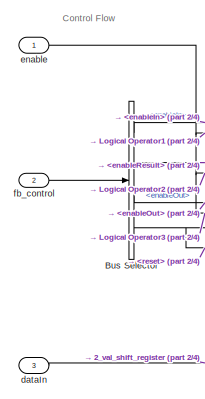
[diagram: DIV - part 1/4, top left region]
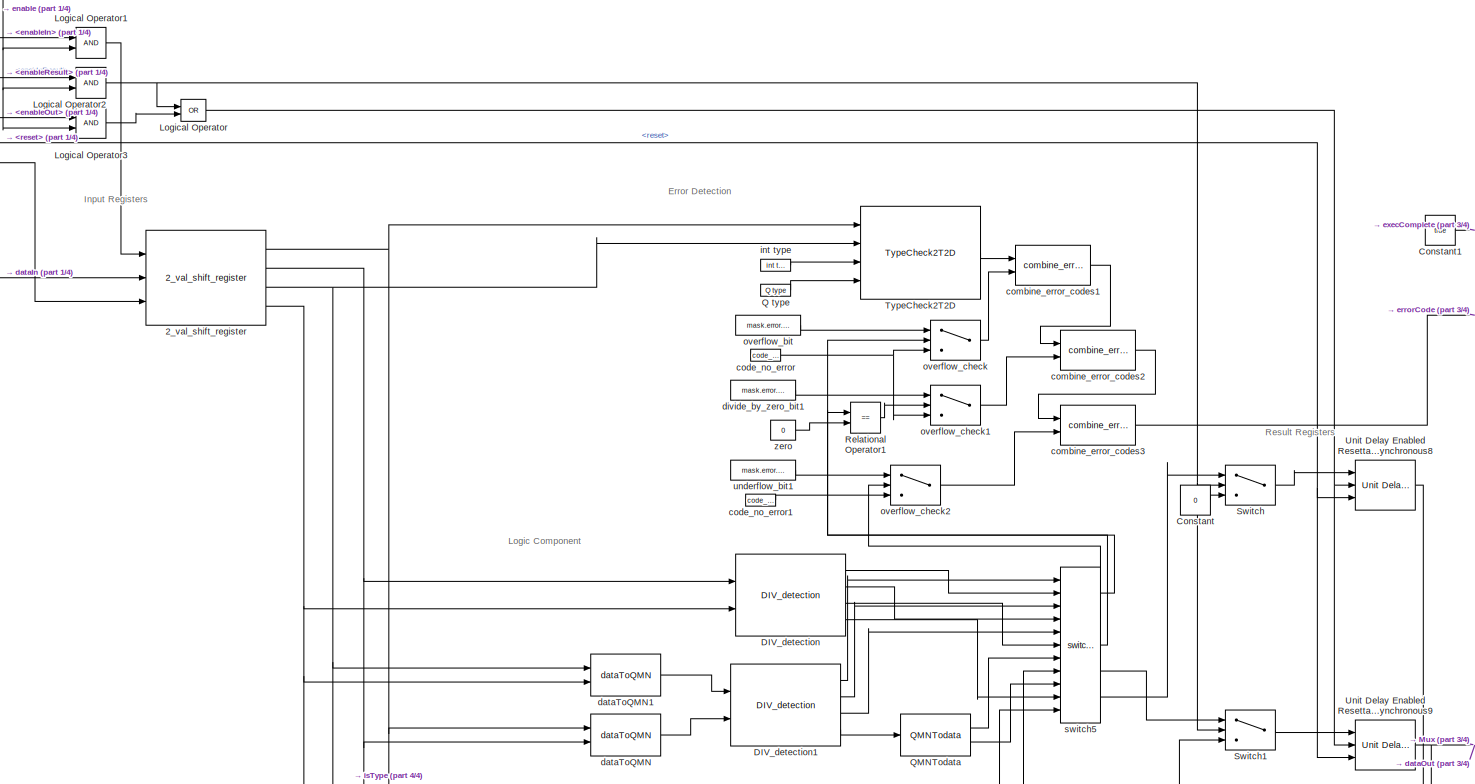
[diagram: DIV - part 2/4, full width, middle band]
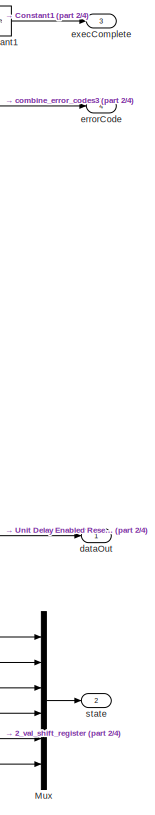
[diagram: DIV - part 3/4, middle right region]
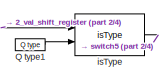
[diagram: DIV - part 4/4, bottom center region]
BLOCK [SubSystem] DIV
  Ports = [3, 4]
  RequestExecContextInheritance = off
BLOCK [Reference] DIV/2_val_shift_register  REF=$bdroot/2_val_shift_register
  Ports = [3, 4]
  SourceBlock = $bdroot/2_val_shift_register
  SourceType = SubSystem
BLOCK [BusSelector] DIV/Bus Selector
  OutputAsBus = off
  OutputSignals = enableIn,enableResult,enableOut,reset
  Ports = [1, 4]
BLOCK [Constant] DIV/Constant
  OutDataTypeStr = int32
  Value = 0
BLOCK [Constant] DIV/Constant1
  SampleTime = -1
  Value = true
BLOCK [Reference] DIV/DIV_detection  REF=$bdroot/DIV_detection
  Ports = [2, 4]
  SourceBlock = $bdroot/DIV_detection
  SourceType = SubSystem
BLOCK [Reference] DIV/DIV_detection1  REF=$bdroot/DIV_detection
  Ports = [2, 4]
  SourceBlock = $bdroot/DIV_detection
  SourceType = SubSystem
BLOCK [Logic] DIV/Logical Operator
  AllPortsSameDT = off
  Operator = OR
  OutDataTypeStr = boolean
  Ports = [2, 1]
BLOCK [Logic] DIV/Logical Operator1
  AllPortsSameDT = off
  OutDataTypeStr = boolean
  Ports = [2, 1]
BLOCK [Logic] DIV/Logical Operator2
  AllPortsSameDT = off
  OutDataTypeStr = boolean
  Ports = [2, 1]
BLOCK [Logic] DIV/Logical Operator3
  AllPortsSameDT = off
  OutDataTypeStr = boolean
  Ports = [2, 1]
BLOCK [Mux] DIV/Mux
  DisplayOption = bar
  Inputs = 6
  Ports = [6, 1]
BLOCK [Reference] DIV/Q type  REF=$bdroot/Q type
  Ports = [0, 1]
  SourceBlock = $bdroot/Q type
  SourceType = SubSystem
BLOCK [Reference] DIV/Q type1  REF=$bdroot/Q type
  Ports = [0, 1]
  SourceBlock = $bdroot/Q type
  SourceType = SubSystem
BLOCK [Reference] DIV/QMNTodata  REF=$bdroot/QMNTodata
  Ports = [1, 2]
  SourceBlock = $bdroot/QMNTodata
  SourceType = SubSystem
BLOCK [RelationalOperator] DIV/Relational Operator1
  InputSameDT = off
  Operator = ==
  OutDataTypeStr = boolean
  Ports = [2, 1]
BLOCK [Switch] DIV/Switch
  Criteria = u2 > Threshold
  InputSameDT = off
  SaturateOnIntegerOverflow = off
BLOCK [Switch] DIV/Switch1
  Criteria = u2 > Threshold
  InputSameDT = off
  SaturateOnIntegerOverflow = off
BLOCK [Reference] DIV/TypeCheck2T2D  REF=$bdroot/TypeCheck2T2D
  Ports = [4, 1]
  SourceBlock = $bdroot/TypeCheck2T2D
  SourceType = SubSystem
BLOCK [Reference] DIV/Unit Delay Enabled Resettable Synchronous8  REF=hdlsllib/Discrete/Unit Delay Enabled Resettable
Synchronous
  Ports = [3, 1]
  SourceBlock = hdlsllib/Discrete/Unit Delay Enabled Resettable\nSynchronous
  SourceProductBaseCode = HD
  SourceProductName = HDL Coder
  SourceType = Unit Delay Enabled Resettable Synchronous
BLOCK [Reference] DIV/Unit Delay Enabled Resettable Synchronous9  REF=hdlsllib/Discrete/Unit Delay Enabled Resettable
Synchronous
  Ports = [3, 1]
  SourceBlock = hdlsllib/Discrete/Unit Delay Enabled Resettable\nSynchronous
  SourceProductBaseCode = HD
  SourceProductName = HDL Coder
  SourceType = Unit Delay Enabled Resettable Synchronous
BLOCK [Reference] DIV/code_no_error  REF=$bdroot/code_no_error
  Ports = [0, 1]
  SourceBlock = $bdroot/code_no_error
  SourceType = SubSystem
BLOCK [Reference] DIV/code_no_error1  REF=$bdroot/code_no_error
  Ports = [0, 1]
  SourceBlock = $bdroot/code_no_error
  SourceType = SubSystem
BLOCK [Reference] DIV/combine_error_codes1  REF=$bdroot/combine_error_codes
  Ports = [2, 1]
  SourceBlock = $bdroot/combine_error_codes
  SourceType = SubSystem
BLOCK [Reference] DIV/combine_error_codes2  REF=$bdroot/combine_error_codes
  Ports = [2, 1]
  SourceBlock = $bdroot/combine_error_codes
  SourceType = SubSystem
BLOCK [Reference] DIV/combine_error_codes3  REF=$bdroot/combine_error_codes
  Ports = [2, 1]
  SourceBlock = $bdroot/combine_error_codes
  SourceType = SubSystem
BLOCK [Inport] DIV/dataIn
  IconDisplay = Port number
  OutDataTypeStr = int32
  Port = 3
BLOCK [Outport] DIV/dataOut
  IconDisplay = Port number
BLOCK [Reference] DIV/dataToQMN  REF=$bdroot/dataToQMN
  Ports = [2, 1]
  SourceBlock = $bdroot/dataToQMN
  SourceType = SubSystem
BLOCK [Reference] DIV/dataToQMN1  REF=$bdroot/dataToQMN
  Ports = [2, 1]
  SourceBlock = $bdroot/dataToQMN
  SourceType = SubSystem
BLOCK [Constant] DIV/divide_by_zero_bit1
  SampleTime = -1
  Value = mask.error.divideByZeroBit
BLOCK [Inport] DIV/enable
  IconDisplay = Port number
  OutDataTypeStr = boolean
BLOCK [Outport] DIV/errorCode
  IconDisplay = Port number
  Port = 4
  PortDimensions = 1
BLOCK [Outport] DIV/execComplete
  IconDisplay = Port number
  OutDataTypeStr = boolean
  Port = 3
  PortDimensions = 1
BLOCK [Inport] DIV/fb_control
  IconDisplay = Port number
  OutDataTypeStr = Bus: fb_control
  Port = 2
BLOCK [Reference] DIV/int type  REF=$bdroot/int type
  Ports = [0, 1]
  SourceBlock = $bdroot/int type
  SourceType = SubSystem
BLOCK [Reference] DIV/isType  REF=$bdroot/isType
  Ports = [2, 1]
  SourceBlock = $bdroot/isType
  SourceType = SubSystem
BLOCK [Constant] DIV/overflow_bit
  SampleTime = -1
  Value = mask.error.overflowBit
BLOCK [Switch] DIV/overflow_check
  Criteria = u2 > Threshold
  InputSameDT = off
  SaturateOnIntegerOverflow = off
BLOCK [Switch] DIV/overflow_check1
  Criteria = u2 > Threshold
  InputSameDT = off
  SaturateOnIntegerOverflow = off
BLOCK [Switch] DIV/overflow_check2
  Criteria = u2 > Threshold
  InputSameDT = off
  SaturateOnIntegerOverflow = off
BLOCK [Outport] DIV/state
  IconDisplay = Port number
  Port = 2
BLOCK [Reference] DIV/switch5  REF=$bdroot/switch5
  Ports = [11, 5]
  SourceBlock = $bdroot/switch5
  SourceType = SubSystem
BLOCK [Constant] DIV/underflow_bit1
  SampleTime = -1
  Value = mask.error.overflowBit
BLOCK [Constant] DIV/zero
  SampleTime = -1
  Value = 0
BLOCK [SubSystem] DIV_DUPLEX
  Ports = [4, 1]
  RequestExecContextInheritance = off
  TreatAsAtomicUnit = on
  VariantControl = MUX_FB
BLOCK [BusCreator] DIV_DUPLEX/Bus Creator
  DisplayOption = bar
  InheritFromInputs = on
  Inputs = 6
  OutDataTypeStr = Bus: fb_functions_out
  Ports = [6, 1]
BLOCK [Reference] DIV_DUPLEX/DIV  REF=$bdroot/DIV
  Ports = [3, 4]
  SourceBlock = $bdroot/DIV
  SourceType = SubSystem
BLOCK [Reference] DIV_DUPLEX/DIV1  REF=$bdroot/DIV
  Ports = [3, 4]
  SourceBlock = $bdroot/DIV
  SourceType = SubSystem
BLOCK [Logic] DIV_DUPLEX/Logical Operator
  AllPortsSameDT = off
  OutDataTypeStr = boolean
  Ports = [2, 1]
BLOCK [Constant] DIV_DUPLEX/Num Ins
  OutDataTypeStr = Inherit: Inherit via back propagation
  Value = 4
BLOCK [Constant] DIV_DUPLEX/Num Outs
  OutDataTypeStr = Inherit: Inherit via back propagation
  Value = 2
BLOCK [RelationalOperator] DIV_DUPLEX/Relational Operator
  InputSameDT = off
  Operator = ==
  OutDataTypeStr = boolean
  Ports = [2, 1]
BLOCK [SubSystem] DIV_DUPLEX/State Comparator
  Ports = [3, 1]
  RequestExecContextInheritance = off
BLOCK [Reference] DIV_DUPLEX/State Comparator/Compare To Zero  REF=simulink/Logic and Bit
Operations/Compare
To Zero
  Ports = [1, 1]
  SourceBlock = simulink/Logic and Bit\nOperations/Compare\nTo Zero
  SourceProductBaseCode = SL
  SourceProductName = Simulink
  SourceType = Compare To Zero
BLOCK [Constant] DIV_DUPLEX/State Comparator/Constant1
  SampleTime = -1
  Value = false
BLOCK [RelationalOperator] DIV_DUPLEX/State Comparator/Relational Operator
  InputSameDT = off
  Operator = ~=
  OutDataTypeStr = boolean
  Ports = [2, 1]
  RndMeth = Simplest
BLOCK [Inport] DIV_DUPLEX/State Comparator/StateA
  IconDisplay = Port number
BLOCK [Inport] DIV_DUPLEX/State Comparator/StateB
  IconDisplay = Port number
  Port = 2
BLOCK [Sum] DIV_DUPLEX/State Comparator/Sum of Elements
  InputSameDT = off
  Inputs = +
  OutDataTypeStr = Inherit: Inherit via internal rule
  Ports = [1, 1]
  SaturateOnIntegerOverflow = off
BLOCK [Switch] DIV_DUPLEX/State Comparator/Switch1
  Criteria = u2 > Threshold
  InputSameDT = off
  SaturateOnIntegerOverflow = off
BLOCK [Inport] DIV_DUPLEX/State Comparator/execComplete
  IconDisplay = Port number
  Port = 3
BLOCK [Outport] DIV_DUPLEX/State Comparator/stateError
  IconDisplay = Port number
BLOCK [Terminator] DIV_DUPLEX/Terminator
BLOCK [Reference] DIV_DUPLEX/combine_error_codes  REF=$bdroot/combine_error_codes
  Ports = [2, 1]
  SourceBlock = $bdroot/combine_error_codes
  SourceType = SubSystem
BLOCK [Inport] DIV_DUPLEX/dataInA
  IconDisplay = Port number
  Port = 3
BLOCK [Inport] DIV_DUPLEX/dataInB
  IconDisplay = Port number
  Port = 4
BLOCK [Inport] DIV_DUPLEX/fb_control
  IconDisplay = Port number
  OutDataTypeStr = Bus: fb_control
  Port = 2
BLOCK [Outport] DIV_DUPLEX/fb_function_out
  IconDisplay = Port number
  OutDataTypeStr = Bus: fb_functions_out
BLOCK [Constant] DIV_DUPLEX/fb_num_constant
  Value = DIV
BLOCK [Inport] DIV_DUPLEX/fb_select
  IconDisplay = Port number
BLOCK [SubSystem] DIV_detection
  Ports = [2, 4]
  RequestExecContextInheritance = off
BLOCK [Product] DIV_detection/Divide
  InputSameDT = off
  Inputs = */
  OutDataTypeStr = Inherit: Inherit via internal rule
  Ports = [2, 1]
  RndMeth = Floor
BLOCK [Product] DIV_detection/Divide1
  InputSameDT = off
  Inputs = */
  OutDataTypeStr = Inherit: Inherit via internal rule
  Ports = [2, 1]
  RndMeth = Floor
  SaturateOnIntegerOverflow = off
BLOCK [Logic] DIV_detection/Logical Operator
  AllPortsSameDT = off
  OutDataTypeStr = boolean
  Ports = [2, 1]
BLOCK [Logic] DIV_detection/Logical Operator1
  AllPortsSameDT = off
  OutDataTypeStr = boolean
  Ports = [2, 1]
BLOCK [Logic] DIV_detection/Logical Operator2
  AllPortsSameDT = off
  OutDataTypeStr = boolean
  Ports = [2, 1]
BLOCK [Logic] DIV_detection/Logical Operator3
  AllPortsSameDT = off
  OutDataTypeStr = boolean
  Ports = [2, 1]
BLOCK [RelationalOperator] DIV_detection/Relational Operator1
  InputSameDT = off
  Operator = ==
  OutDataTypeStr = boolean
  Ports = [2, 1]
BLOCK [RelationalOperator] DIV_detection/Relational Operator2
  InputSameDT = off
  Operator = ~=
  OutDataTypeStr = boolean
  Ports = [2, 1]
BLOCK [RelationalOperator] DIV_detection/Relational Operator3
  InputSameDT = off
  Operator = >
  OutDataTypeStr = boolean
  Ports = [2, 1]
BLOCK [RelationalOperator] DIV_detection/Relational Operator4
  InputSameDT = off
  Operator = <
  OutDataTypeStr = boolean
  Ports = [2, 1]
BLOCK [RelationalOperator] DIV_detection/Relational Operator5
  InputSameDT = off
  Operator = <
  OutDataTypeStr = boolean
  Ports = [2, 1]
BLOCK [RelationalOperator] DIV_detection/Relational Operator6
  InputSameDT = off
  Operator = >
  OutDataTypeStr = boolean
  Ports = [2, 1]
BLOCK [Outport] DIV_detection/divByZero
  IconDisplay = Port number
  OutDataTypeStr = boolean
  Port = 3
  PortDimensions = 1
BLOCK [Outport] DIV_detection/output
  IconDisplay = Port number
  Port = 4
  PortDimensions = 1
BLOCK [Outport] DIV_detection/overflow
  IconDisplay = Port number
  OutDataTypeStr = boolean
  PortDimensions = 1
BLOCK [Constant] DIV_detection/type1
  OutDataTypeStr = Inherit: Inherit via back propagation
  Value = 0
BLOCK [Constant] DIV_detection/type2
  OutDataTypeStr = Inherit: Inherit via back propagation
  Value = 0
BLOCK [Outport] DIV_detection/underflow
  IconDisplay = Port number
  OutDataTypeStr = boolean
  Port = 2
  PortDimensions = 1
BLOCK [Inport] DIV_detection/value1
  IconDisplay = Port number
BLOCK [Inport] DIV_detection/value2
  IconDisplay = Port number
  Port = 2
BLOCK [Constant] DIV_detection/zero
  OutDataTypeStr = Inherit: Inherit via back propagation
  SampleTime = -1
  Value = 0
BLOCK [SubSystem] EQ
  Ports = [3, 4]
  RequestExecContextInheritance = off
BLOCK [Reference] EQ/2_val_shift_register  REF=$bdroot/2_val_shift_register
  Ports = [3, 4]
  SourceBlock = $bdroot/2_val_shift_register
  SourceType = SubSystem
BLOCK [BusSelector] EQ/Bus Selector
  OutputAsBus = off
  OutputSignals = enableIn,enableResult,enableOut,reset
  Ports = [1, 4]
BLOCK [Constant] EQ/Constant
  OutDataTypeStr = int32
  Value = 0
BLOCK [Constant] EQ/Constant1
  SampleTime = -1
  Value = true
BLOCK [DataTypeConversion] EQ/Data Type Conversion
  ConvertRealWorld = Stored Integer (SI)
  OutDataTypeStr = int32
  RndMeth = Floor
  SaturateOnIntegerOverflow = off
BLOCK [Logic] EQ/Logical Operator
  AllPortsSameDT = off
  Operator = OR
  OutDataTypeStr = boolean
  Ports = [2, 1]
BLOCK [Logic] EQ/Logical Operator1
  AllPortsSameDT = off
  OutDataTypeStr = boolean
  Ports = [2, 1]
BLOCK [Logic] EQ/Logical Operator2
  AllPortsSameDT = off
  OutDataTypeStr = boolean
  Ports = [2, 1]
BLOCK [Logic] EQ/Logical Operator3
  AllPortsSameDT = off
  OutDataTypeStr = boolean
  Ports = [2, 1]
BLOCK [Mux] EQ/Mux
  DisplayOption = bar
  Inputs = 6
  Ports = [6, 1]
BLOCK [Reference] EQ/Q type  REF=$bdroot/Q type
  Ports = [0, 1]
  SourceBlock = $bdroot/Q type
  SourceType = SubSystem
BLOCK [Reference] EQ/Q_EQ  REF=$bdroot/Q_EQ
  Ports = [4, 1]
  SourceBlock = $bdroot/Q_EQ
  SourceType = SubSystem
BLOCK [RelationalOperator] EQ/Relational Operator1
  InputSameDT = off
  Operator = ==
  OutDataTypeStr = boolean
  Ports = [2, 1]
BLOCK [Switch] EQ/Switch
  Criteria = u2 > Threshold
  InputSameDT = off
  SaturateOnIntegerOverflow = off
BLOCK [Switch] EQ/Switch1
  Criteria = u2 > Threshold
  InputSameDT = off
  SaturateOnIntegerOverflow = off
BLOCK [Switch] EQ/Switch2
  Criteria = u2 > Threshold
  InputSameDT = off
  SaturateOnIntegerOverflow = off
BLOCK [Reference] EQ/TypeCheck2T2D  REF=$bdroot/TypeCheck2T2D
  Ports = [4, 1]
  SourceBlock = $bdroot/TypeCheck2T2D
  SourceType = SubSystem
BLOCK [Reference] EQ/Unit Delay Enabled Resettable Synchronous8  REF=hdlsllib/Discrete/Unit Delay Enabled Resettable
Synchronous
  Ports = [3, 1]
  SourceBlock = hdlsllib/Discrete/Unit Delay Enabled Resettable\nSynchronous
  SourceProductBaseCode = HD
  SourceProductName = HDL Coder
  SourceType = Unit Delay Enabled Resettable Synchronous
BLOCK [Reference] EQ/Unit Delay Enabled Resettable Synchronous9  REF=hdlsllib/Discrete/Unit Delay Enabled Resettable
Synchronous
  Ports = [3, 1]
  SourceBlock = hdlsllib/Discrete/Unit Delay Enabled Resettable\nSynchronous
  SourceProductBaseCode = HD
  SourceProductName = HDL Coder
  SourceType = Unit Delay Enabled Resettable Synchronous
BLOCK [Reference] EQ/bool type  REF=$bdroot/bool type
  Ports = [0, 1]
  SourceBlock = $bdroot/bool type
  SourceType = SubSystem
BLOCK [Inport] EQ/dataIn
  IconDisplay = Port number
  OutDataTypeStr = int32
  Port = 3
BLOCK [Outport] EQ/dataOut
  IconDisplay = Port number
BLOCK [Inport] EQ/enable
  IconDisplay = Port number
  OutDataTypeStr = boolean
BLOCK [Outport] EQ/errorCode
  IconDisplay = Port number
  Port = 4
  PortDimensions = 1
BLOCK [Outport] EQ/execComplete
  IconDisplay = Port number
  OutDataTypeStr = boolean
  Port = 3
  PortDimensions = 1
BLOCK [Inport] EQ/fb_control
  IconDisplay = Port number
  OutDataTypeStr = Bus: fb_control
  Port = 2
BLOCK [Reference] EQ/int type  REF=$bdroot/int type
  Ports = [0, 1]
  SourceBlock = $bdroot/int type
  SourceType = SubSystem
BLOCK [Reference] EQ/int type1  REF=$bdroot/int type
  Ports = [0, 1]
  SourceBlock = $bdroot/int type
  SourceType = SubSystem
BLOCK [Reference] EQ/isType  REF=$bdroot/isType
  Ports = [2, 1]
  SourceBlock = $bdroot/isType
  SourceType = SubSystem
BLOCK [Outport] EQ/state
  IconDisplay = Port number
  Port = 2
BLOCK [SubSystem] EQ_DUPLEX
  Ports = [4, 1]
  RequestExecContextInheritance = off
  TreatAsAtomicUnit = on
  VariantControl = MUX_FB
BLOCK [BusCreator] EQ_DUPLEX/Bus Creator
  DisplayOption = bar
  InheritFromInputs = on
  Inputs = 6
  OutDataTypeStr = Bus: fb_functions_out
  Ports = [6, 1]
BLOCK [Reference] EQ_DUPLEX/EQ  REF=$bdroot/EQ
  Ports = [3, 4]
  SourceBlock = $bdroot/EQ
  SourceType = SubSystem
BLOCK [Reference] EQ_DUPLEX/EQ1  REF=$bdroot/EQ
  Ports = [3, 4]
  SourceBlock = $bdroot/EQ
  SourceType = SubSystem
BLOCK [Logic] EQ_DUPLEX/Logical Operator
  AllPortsSameDT = off
  OutDataTypeStr = boolean
  Ports = [2, 1]
BLOCK [Constant] EQ_DUPLEX/Num Ins
  OutDataTypeStr = Inherit: Inherit via back propagation
  Value = 4
BLOCK [Constant] EQ_DUPLEX/Num Outs
  OutDataTypeStr = Inherit: Inherit via back propagation
  Value = 2
BLOCK [RelationalOperator] EQ_DUPLEX/Relational Operator
  InputSameDT = off
  Operator = ==
  OutDataTypeStr = boolean
  Ports = [2, 1]
BLOCK [SubSystem] EQ_DUPLEX/State Comparator
  Ports = [3, 1]
  RequestExecContextInheritance = off
BLOCK [Reference] EQ_DUPLEX/State Comparator/Compare To Zero  REF=simulink/Logic and Bit
Operations/Compare
To Zero
  Ports = [1, 1]
  SourceBlock = simulink/Logic and Bit\nOperations/Compare\nTo Zero
  SourceProductBaseCode = SL
  SourceProductName = Simulink
  SourceType = Compare To Zero
BLOCK [Constant] EQ_DUPLEX/State Comparator/Constant1
  SampleTime = -1
  Value = false
BLOCK [RelationalOperator] EQ_DUPLEX/State Comparator/Relational Operator
  InputSameDT = off
  Operator = ~=
  OutDataTypeStr = boolean
  Ports = [2, 1]
  RndMeth = Simplest
BLOCK [Inport] EQ_DUPLEX/State Comparator/StateA
  IconDisplay = Port number
BLOCK [Inport] EQ_DUPLEX/State Comparator/StateB
  IconDisplay = Port number
  Port = 2
BLOCK [Sum] EQ_DUPLEX/State Comparator/Sum of Elements
  InputSameDT = off
  Inputs = +
  OutDataTypeStr = Inherit: Inherit via internal rule
  Ports = [1, 1]
  SaturateOnIntegerOverflow = off
BLOCK [Switch] EQ_DUPLEX/State Comparator/Switch1
  Criteria = u2 > Threshold
  InputSameDT = off
  SaturateOnIntegerOverflow = off
BLOCK [Inport] EQ_DUPLEX/State Comparator/execComplete
  IconDisplay = Port number
  Port = 3
BLOCK [Outport] EQ_DUPLEX/State Comparator/stateError
  IconDisplay = Port number
BLOCK [Terminator] EQ_DUPLEX/Terminator
BLOCK [Reference] EQ_DUPLEX/combine_error_codes  REF=$bdroot/combine_error_codes
  Ports = [2, 1]
  SourceBlock = $bdroot/combine_error_codes
  SourceType = SubSystem
BLOCK [Inport] EQ_DUPLEX/dataInA
  IconDisplay = Port number
  Port = 3
BLOCK [Inport] EQ_DUPLEX/dataInB
  IconDisplay = Port number
  Port = 4
BLOCK [Inport] EQ_DUPLEX/fb_control
  IconDisplay = Port number
  OutDataTypeStr = Bus: fb_control
  Port = 2
BLOCK [Outport] EQ_DUPLEX/fb_function_out
  IconDisplay = Port number
  OutDataTypeStr = Bus: fb_functions_out
BLOCK [Constant] EQ_DUPLEX/fb_num_constant
  Value = EQ
BLOCK [Inport] EQ_DUPLEX/fb_select
  IconDisplay = Port number
BLOCK [SubSystem] GE
  Ports = [3, 4]
  RequestExecContextInheritance = off
BLOCK [Reference] GE/2_val_shift_register  REF=$bdroot/2_val_shift_register
  Ports = [3, 4]
  SourceBlock = $bdroot/2_val_shift_register
  SourceType = SubSystem
BLOCK [BusSelector] GE/Bus Selector
  OutputAsBus = off
  OutputSignals = enableIn,enableResult,enableOut,reset
  Ports = [1, 4]
BLOCK [Constant] GE/Constant
  OutDataTypeStr = int32
  Value = 0
BLOCK [Constant] GE/Constant1
  SampleTime = -1
  Value = true
BLOCK [DataTypeConversion] GE/Data Type Conversion
  ConvertRealWorld = Stored Integer (SI)
  OutDataTypeStr = int32
  RndMeth = Floor
  SaturateOnIntegerOverflow = off
BLOCK [Logic] GE/Logical Operator
  AllPortsSameDT = off
  Operator = OR
  OutDataTypeStr = boolean
  Ports = [2, 1]
BLOCK [Logic] GE/Logical Operator1
  AllPortsSameDT = off
  OutDataTypeStr = boolean
  Ports = [2, 1]
BLOCK [Logic] GE/Logical Operator2
  AllPortsSameDT = off
  OutDataTypeStr = boolean
  Ports = [2, 1]
BLOCK [Logic] GE/Logical Operator3
  AllPortsSameDT = off
  OutDataTypeStr = boolean
  Ports = [2, 1]
BLOCK [Mux] GE/Mux
  DisplayOption = bar
  Inputs = 6
  Ports = [6, 1]
BLOCK [Reference] GE/Q type  REF=$bdroot/Q type
  Ports = [0, 1]
  SourceBlock = $bdroot/Q type
  SourceType = SubSystem
BLOCK [Reference] GE/Q_GE  REF=$bdroot/Q_GE
  Ports = [4, 1]
  SourceBlock = $bdroot/Q_GE
  SourceType = SubSystem
BLOCK [RelationalOperator] GE/Relational Operator1
  InputSameDT = off
  OutDataTypeStr = boolean
  Ports = [2, 1]
BLOCK [Switch] GE/Switch
  Criteria = u2 > Threshold
  InputSameDT = off
  SaturateOnIntegerOverflow = off
BLOCK [Switch] GE/Switch1
  Criteria = u2 > Threshold
  InputSameDT = off
  SaturateOnIntegerOverflow = off
BLOCK [Switch] GE/Switch2
  Criteria = u2 > Threshold
  InputSameDT = off
  SaturateOnIntegerOverflow = off
BLOCK [Reference] GE/TypeCheck2T2D  REF=$bdroot/TypeCheck2T2D
  Ports = [4, 1]
  SourceBlock = $bdroot/TypeCheck2T2D
  SourceType = SubSystem
BLOCK [Reference] GE/Unit Delay Enabled Resettable Synchronous8  REF=hdlsllib/Discrete/Unit Delay Enabled Resettable
Synchronous
  Ports = [3, 1]
  SourceBlock = hdlsllib/Discrete/Unit Delay Enabled Resettable\nSynchronous
  SourceProductBaseCode = HD
  SourceProductName = HDL Coder
  SourceType = Unit Delay Enabled Resettable Synchronous
BLOCK [Reference] GE/Unit Delay Enabled Resettable Synchronous9  REF=hdlsllib/Discrete/Unit Delay Enabled Resettable
Synchronous
  Ports = [3, 1]
  SourceBlock = hdlsllib/Discrete/Unit Delay Enabled Resettable\nSynchronous
  SourceProductBaseCode = HD
  SourceProductName = HDL Coder
  SourceType = Unit Delay Enabled Resettable Synchronous
BLOCK [Reference] GE/bool type  REF=$bdroot/bool type
  Ports = [0, 1]
  SourceBlock = $bdroot/bool type
  SourceType = SubSystem
BLOCK [Inport] GE/dataIn
  IconDisplay = Port number
  OutDataTypeStr = int32
  Port = 3
BLOCK [Outport] GE/dataOut
  IconDisplay = Port number
BLOCK [Inport] GE/enable
  IconDisplay = Port number
  OutDataTypeStr = boolean
BLOCK [Outport] GE/errorCode
  IconDisplay = Port number
  Port = 4
  PortDimensions = 1
BLOCK [Outport] GE/execComplete
  IconDisplay = Port number
  OutDataTypeStr = boolean
  Port = 3
  PortDimensions = 1
BLOCK [Inport] GE/fb_control
  IconDisplay = Port number
  OutDataTypeStr = Bus: fb_control
  Port = 2
BLOCK [Reference] GE/int type  REF=$bdroot/int type
  Ports = [0, 1]
  SourceBlock = $bdroot/int type
  SourceType = SubSystem
BLOCK [Reference] GE/int type1  REF=$bdroot/int type
  Ports = [0, 1]
  SourceBlock = $bdroot/int type
  SourceType = SubSystem
BLOCK [Reference] GE/isType  REF=$bdroot/isType
  Ports = [2, 1]
  SourceBlock = $bdroot/isType
  SourceType = SubSystem
BLOCK [Outport] GE/state
  IconDisplay = Port number
  Port = 2
BLOCK [SubSystem] GE_DUPLEX
  Ports = [4, 1]
  RequestExecContextInheritance = off
  TreatAsAtomicUnit = on
  VariantControl = MUX_FB
BLOCK [BusCreator] GE_DUPLEX/Bus Creator
  DisplayOption = bar
  InheritFromInputs = on
  Inputs = 6
  OutDataTypeStr = Bus: fb_functions_out
  Ports = [6, 1]
BLOCK [Reference] GE_DUPLEX/GE  REF=$bdroot/GE
  Ports = [3, 4]
  SourceBlock = $bdroot/GE
  SourceType = SubSystem
BLOCK [Reference] GE_DUPLEX/GE1  REF=$bdroot/GE
  Ports = [3, 4]
  SourceBlock = $bdroot/GE
  SourceType = SubSystem
BLOCK [Logic] GE_DUPLEX/Logical Operator
  AllPortsSameDT = off
  OutDataTypeStr = boolean
  Ports = [2, 1]
BLOCK [Constant] GE_DUPLEX/Num Ins
  OutDataTypeStr = Inherit: Inherit via back propagation
  Value = 4
BLOCK [Constant] GE_DUPLEX/Num Outs
  OutDataTypeStr = Inherit: Inherit via back propagation
  Value = 2
BLOCK [RelationalOperator] GE_DUPLEX/Relational Operator
  InputSameDT = off
  Operator = ==
  OutDataTypeStr = boolean
  Ports = [2, 1]
BLOCK [SubSystem] GE_DUPLEX/State Comparator
  Ports = [3, 1]
  RequestExecContextInheritance = off
BLOCK [Reference] GE_DUPLEX/State Comparator/Compare To Zero  REF=simulink/Logic and Bit
Operations/Compare
To Zero
  Ports = [1, 1]
  SourceBlock = simulink/Logic and Bit\nOperations/Compare\nTo Zero
  SourceProductBaseCode = SL
  SourceProductName = Simulink
  SourceType = Compare To Zero
BLOCK [Constant] GE_DUPLEX/State Comparator/Constant1
  SampleTime = -1
  Value = false
BLOCK [RelationalOperator] GE_DUPLEX/State Comparator/Relational Operator
  InputSameDT = off
  Operator = ~=
  OutDataTypeStr = boolean
  Ports = [2, 1]
  RndMeth = Simplest
BLOCK [Inport] GE_DUPLEX/State Comparator/StateA
  IconDisplay = Port number
BLOCK [Inport] GE_DUPLEX/State Comparator/StateB
  IconDisplay = Port number
  Port = 2
BLOCK [Sum] GE_DUPLEX/State Comparator/Sum of Elements
  InputSameDT = off
  Inputs = +
  OutDataTypeStr = Inherit: Inherit via internal rule
  Ports = [1, 1]
  SaturateOnIntegerOverflow = off
BLOCK [Switch] GE_DUPLEX/State Comparator/Switch1
  Criteria = u2 > Threshold
  InputSameDT = off
  SaturateOnIntegerOverflow = off
BLOCK [Inport] GE_DUPLEX/State Comparator/execComplete
  IconDisplay = Port number
  Port = 3
BLOCK [Outport] GE_DUPLEX/State Comparator/stateError
  IconDisplay = Port number
BLOCK [Terminator] GE_DUPLEX/Terminator
BLOCK [Reference] GE_DUPLEX/combine_error_codes  REF=$bdroot/combine_error_codes
  Ports = [2, 1]
  SourceBlock = $bdroot/combine_error_codes
  SourceType = SubSystem
BLOCK [Inport] GE_DUPLEX/dataInA
  IconDisplay = Port number
  Port = 3
BLOCK [Inport] GE_DUPLEX/dataInB
  IconDisplay = Port number
  Port = 4
BLOCK [Inport] GE_DUPLEX/fb_control
  IconDisplay = Port number
  OutDataTypeStr = Bus: fb_control
  Port = 2
BLOCK [Outport] GE_DUPLEX/fb_function_out
  IconDisplay = Port number
  OutDataTypeStr = Bus: fb_functions_out
BLOCK [Constant] GE_DUPLEX/fb_num_constant
  Value = GE
BLOCK [Inport] GE_DUPLEX/fb_select
  IconDisplay = Port number
BLOCK [SubSystem] GT
  Ports = [3, 4]
  RequestExecContextInheritance = off
BLOCK [Reference] GT/2_val_shift_register  REF=$bdroot/2_val_shift_register
  Ports = [3, 4]
  SourceBlock = $bdroot/2_val_shift_register
  SourceType = SubSystem
BLOCK [BusSelector] GT/Bus Selector
  OutputAsBus = off
  OutputSignals = enableIn,enableResult,enableOut,reset
  Ports = [1, 4]
BLOCK [Constant] GT/Constant
  OutDataTypeStr = int32
  Value = 0
BLOCK [Constant] GT/Constant1
  SampleTime = -1
  Value = true
BLOCK [DataTypeConversion] GT/Data Type Conversion
  ConvertRealWorld = Stored Integer (SI)
  OutDataTypeStr = int32
  RndMeth = Floor
  SaturateOnIntegerOverflow = off
BLOCK [Logic] GT/Logical Operator
  AllPortsSameDT = off
  Operator = OR
  OutDataTypeStr = boolean
  Ports = [2, 1]
BLOCK [Logic] GT/Logical Operator1
  AllPortsSameDT = off
  OutDataTypeStr = boolean
  Ports = [2, 1]
BLOCK [Logic] GT/Logical Operator2
  AllPortsSameDT = off
  OutDataTypeStr = boolean
  Ports = [2, 1]
BLOCK [Logic] GT/Logical Operator3
  AllPortsSameDT = off
  OutDataTypeStr = boolean
  Ports = [2, 1]
BLOCK [Mux] GT/Mux
  DisplayOption = bar
  Inputs = 6
  Ports = [6, 1]
BLOCK [Reference] GT/Q type  REF=$bdroot/Q type
  Ports = [0, 1]
  SourceBlock = $bdroot/Q type
  SourceType = SubSystem
BLOCK [Reference] GT/Q_GT  REF=$bdroot/Q_GT
  Ports = [4, 1]
  SourceBlock = $bdroot/Q_GT
  SourceType = SubSystem
BLOCK [RelationalOperator] GT/Relational Operator1
  InputSameDT = off
  Operator = >
  OutDataTypeStr = boolean
  Ports = [2, 1]
BLOCK [Switch] GT/Switch
  Criteria = u2 > Threshold
  InputSameDT = off
  SaturateOnIntegerOverflow = off
BLOCK [Switch] GT/Switch1
  Criteria = u2 > Threshold
  InputSameDT = off
  SaturateOnIntegerOverflow = off
BLOCK [Switch] GT/Switch2
  Criteria = u2 > Threshold
  InputSameDT = off
  SaturateOnIntegerOverflow = off
BLOCK [Reference] GT/TypeCheck2T2D  REF=$bdroot/TypeCheck2T2D
  Ports = [4, 1]
  SourceBlock = $bdroot/TypeCheck2T2D
  SourceType = SubSystem
BLOCK [Reference] GT/Unit Delay Enabled Resettable Synchronous8  REF=hdlsllib/Discrete/Unit Delay Enabled Resettable
Synchronous
  Ports = [3, 1]
  SourceBlock = hdlsllib/Discrete/Unit Delay Enabled Resettable\nSynchronous
  SourceProductBaseCode = HD
  SourceProductName = HDL Coder
  SourceType = Unit Delay Enabled Resettable Synchronous
BLOCK [Reference] GT/Unit Delay Enabled Resettable Synchronous9  REF=hdlsllib/Discrete/Unit Delay Enabled Resettable
Synchronous
  Ports = [3, 1]
  SourceBlock = hdlsllib/Discrete/Unit Delay Enabled Resettable\nSynchronous
  SourceProductBaseCode = HD
  SourceProductName = HDL Coder
  SourceType = Unit Delay Enabled Resettable Synchronous
BLOCK [Reference] GT/bool type5  REF=$bdroot/bool type
  Ports = [0, 1]
  SourceBlock = $bdroot/bool type
  SourceType = SubSystem
BLOCK [Inport] GT/dataIn
  IconDisplay = Port number
  OutDataTypeStr = int32
  Port = 3
BLOCK [Outport] GT/dataOut
  IconDisplay = Port number
BLOCK [Inport] GT/enable
  IconDisplay = Port number
  OutDataTypeStr = boolean
BLOCK [Outport] GT/errorCode
  IconDisplay = Port number
  Port = 4
  PortDimensions = 1
BLOCK [Outport] GT/execComplete
  IconDisplay = Port number
  OutDataTypeStr = boolean
  Port = 3
  PortDimensions = 1
BLOCK [Inport] GT/fb_control
  IconDisplay = Port number
  OutDataTypeStr = Bus: fb_control
  Port = 2
BLOCK [Reference] GT/int type  REF=$bdroot/int type
  Ports = [0, 1]
  SourceBlock = $bdroot/int type
  SourceType = SubSystem
BLOCK [Reference] GT/int type1  REF=$bdroot/int type
  Ports = [0, 1]
  SourceBlock = $bdroot/int type
  SourceType = SubSystem
BLOCK [Reference] GT/isType  REF=$bdroot/isType
  Ports = [2, 1]
  SourceBlock = $bdroot/isType
  SourceType = SubSystem
BLOCK [Outport] GT/state
  IconDisplay = Port number
  Port = 2
BLOCK [SubSystem] GT_DUPLEX
  Ports = [4, 1]
  RequestExecContextInheritance = off
  TreatAsAtomicUnit = on
  VariantControl = MUX_FB
BLOCK [BusCreator] GT_DUPLEX/Bus Creator
  DisplayOption = bar
  InheritFromInputs = on
  Inputs = 6
  OutDataTypeStr = Bus: fb_functions_out
  Ports = [6, 1]
BLOCK [Reference] GT_DUPLEX/GT  REF=$bdroot/GT
  Ports = [3, 4]
  SourceBlock = $bdroot/GT
  SourceType = SubSystem
BLOCK [Reference] GT_DUPLEX/GT1  REF=$bdroot/GT
  Ports = [3, 4]
  SourceBlock = $bdroot/GT
  SourceType = SubSystem
BLOCK [Logic] GT_DUPLEX/Logical Operator
  AllPortsSameDT = off
  OutDataTypeStr = boolean
  Ports = [2, 1]
BLOCK [Constant] GT_DUPLEX/Num Ins
  OutDataTypeStr = Inherit: Inherit via back propagation
  Value = 4
BLOCK [Constant] GT_DUPLEX/Num Outs
  OutDataTypeStr = Inherit: Inherit via back propagation
  Value = 2
BLOCK [RelationalOperator] GT_DUPLEX/Relational Operator
  InputSameDT = off
  Operator = ==
  OutDataTypeStr = boolean
  Ports = [2, 1]
BLOCK [SubSystem] GT_DUPLEX/State Comparator
  Ports = [3, 1]
  RequestExecContextInheritance = off
BLOCK [Reference] GT_DUPLEX/State Comparator/Compare To Zero  REF=simulink/Logic and Bit
Operations/Compare
To Zero
  Ports = [1, 1]
  SourceBlock = simulink/Logic and Bit\nOperations/Compare\nTo Zero
  SourceProductBaseCode = SL
  SourceProductName = Simulink
  SourceType = Compare To Zero
BLOCK [Constant] GT_DUPLEX/State Comparator/Constant1
  SampleTime = -1
  Value = false
BLOCK [RelationalOperator] GT_DUPLEX/State Comparator/Relational Operator
  InputSameDT = off
  Operator = ~=
  OutDataTypeStr = boolean
  Ports = [2, 1]
  RndMeth = Simplest
BLOCK [Inport] GT_DUPLEX/State Comparator/StateA
  IconDisplay = Port number
BLOCK [Inport] GT_DUPLEX/State Comparator/StateB
  IconDisplay = Port number
  Port = 2
BLOCK [Sum] GT_DUPLEX/State Comparator/Sum of Elements
  InputSameDT = off
  Inputs = +
  OutDataTypeStr = Inherit: Inherit via internal rule
  Ports = [1, 1]
  SaturateOnIntegerOverflow = off
BLOCK [Switch] GT_DUPLEX/State Comparator/Switch1
  Criteria = u2 > Threshold
  InputSameDT = off
  SaturateOnIntegerOverflow = off
BLOCK [Inport] GT_DUPLEX/State Comparator/execComplete
  IconDisplay = Port number
  Port = 3
BLOCK [Outport] GT_DUPLEX/State Comparator/stateError
  IconDisplay = Port number
BLOCK [Terminator] GT_DUPLEX/Terminator
BLOCK [Reference] GT_DUPLEX/combine_error_codes  REF=$bdroot/combine_error_codes
  Ports = [2, 1]
  SourceBlock = $bdroot/combine_error_codes
  SourceType = SubSystem
BLOCK [Inport] GT_DUPLEX/dataInA
  IconDisplay = Port number
  Port = 3
BLOCK [Inport] GT_DUPLEX/dataInB
  IconDisplay = Port number
  Port = 4
BLOCK [Inport] GT_DUPLEX/fb_control
  IconDisplay = Port number
  OutDataTypeStr = Bus: fb_control
  Port = 2
BLOCK [Outport] GT_DUPLEX/fb_function_out
  IconDisplay = Port number
  OutDataTypeStr = Bus: fb_functions_out
BLOCK [Constant] GT_DUPLEX/fb_num_constant
  Value = GT
BLOCK [Inport] GT_DUPLEX/fb_select
  IconDisplay = Port number
BLOCK [SubSystem] LE
  Ports = [3, 4]
  RequestExecContextInheritance = off
BLOCK [Reference] LE/2_val_shift_register  REF=$bdroot/2_val_shift_register
  Ports = [3, 4]
  SourceBlock = $bdroot/2_val_shift_register
  SourceType = SubSystem
BLOCK [BusSelector] LE/Bus Selector
  OutputAsBus = off
  OutputSignals = enableIn,enableResult,enableOut,reset
  Ports = [1, 4]
BLOCK [Constant] LE/Constant
  OutDataTypeStr = int32
  Value = 0
BLOCK [Constant] LE/Constant1
  SampleTime = -1
  Value = true
BLOCK [DataTypeConversion] LE/Data Type Conversion
  ConvertRealWorld = Stored Integer (SI)
  OutDataTypeStr = int32
  RndMeth = Floor
  SaturateOnIntegerOverflow = off
BLOCK [Logic] LE/Logical Operator
  AllPortsSameDT = off
  Operator = OR
  OutDataTypeStr = boolean
  Ports = [2, 1]
BLOCK [Logic] LE/Logical Operator1
  AllPortsSameDT = off
  OutDataTypeStr = boolean
  Ports = [2, 1]
BLOCK [Logic] LE/Logical Operator2
  AllPortsSameDT = off
  OutDataTypeStr = boolean
  Ports = [2, 1]
BLOCK [Logic] LE/Logical Operator3
  AllPortsSameDT = off
  OutDataTypeStr = boolean
  Ports = [2, 1]
BLOCK [Mux] LE/Mux
  DisplayOption = bar
  Inputs = 6
  Ports = [6, 1]
BLOCK [Reference] LE/Q type  REF=$bdroot/Q type
  Ports = [0, 1]
  SourceBlock = $bdroot/Q type
  SourceType = SubSystem
BLOCK [Reference] LE/Q_LE  REF=$bdroot/Q_LE
  Ports = [4, 1]
  SourceBlock = $bdroot/Q_LE
  SourceType = SubSystem
BLOCK [RelationalOperator] LE/Relational Operator1
  InputSameDT = off
  Operator = <=
  OutDataTypeStr = boolean
  Ports = [2, 1]
BLOCK [Switch] LE/Switch
  Criteria = u2 > Threshold
  InputSameDT = off
  SaturateOnIntegerOverflow = off
BLOCK [Switch] LE/Switch1
  Criteria = u2 > Threshold
  InputSameDT = off
  SaturateOnIntegerOverflow = off
BLOCK [Switch] LE/Switch2
  Criteria = u2 > Threshold
  InputSameDT = off
  SaturateOnIntegerOverflow = off
BLOCK [Reference] LE/TypeCheck2T2D  REF=$bdroot/TypeCheck2T2D
  Ports = [4, 1]
  SourceBlock = $bdroot/TypeCheck2T2D
  SourceType = SubSystem
BLOCK [Reference] LE/Unit Delay Enabled Resettable Synchronous8  REF=hdlsllib/Discrete/Unit Delay Enabled Resettable
Synchronous
  Ports = [3, 1]
  SourceBlock = hdlsllib/Discrete/Unit Delay Enabled Resettable\nSynchronous
  SourceProductBaseCode = HD
  SourceProductName = HDL Coder
  SourceType = Unit Delay Enabled Resettable Synchronous
BLOCK [Reference] LE/Unit Delay Enabled Resettable Synchronous9  REF=hdlsllib/Discrete/Unit Delay Enabled Resettable
Synchronous
  Ports = [3, 1]
  SourceBlock = hdlsllib/Discrete/Unit Delay Enabled Resettable\nSynchronous
  SourceProductBaseCode = HD
  SourceProductName = HDL Coder
  SourceType = Unit Delay Enabled Resettable Synchronous
BLOCK [Reference] LE/bool type  REF=$bdroot/bool type
  Ports = [0, 1]
  SourceBlock = $bdroot/bool type
  SourceType = SubSystem
BLOCK [Inport] LE/dataIn
  IconDisplay = Port number
  OutDataTypeStr = int32
  Port = 3
BLOCK [Outport] LE/dataOut
  IconDisplay = Port number
BLOCK [Inport] LE/enable
  IconDisplay = Port number
  OutDataTypeStr = boolean
BLOCK [Outport] LE/errorCode
  IconDisplay = Port number
  Port = 4
  PortDimensions = 1
BLOCK [Outport] LE/execComplete
  IconDisplay = Port number
  OutDataTypeStr = boolean
  Port = 3
  PortDimensions = 1
BLOCK [Inport] LE/fb_control
  IconDisplay = Port number
  OutDataTypeStr = Bus: fb_control
  Port = 2
BLOCK [Reference] LE/int type  REF=$bdroot/int type
  Ports = [0, 1]
  SourceBlock = $bdroot/int type
  SourceType = SubSystem
BLOCK [Reference] LE/int type1  REF=$bdroot/int type
  Ports = [0, 1]
  SourceBlock = $bdroot/int type
  SourceType = SubSystem
BLOCK [Reference] LE/isType  REF=$bdroot/isType
  Ports = [2, 1]
  SourceBlock = $bdroot/isType
  SourceType = SubSystem
BLOCK [Outport] LE/state
  IconDisplay = Port number
  Port = 2
BLOCK [SubSystem] LE_DUPLEX
  Ports = [4, 1]
  RequestExecContextInheritance = off
  TreatAsAtomicUnit = on
  VariantControl = MUX_FB
BLOCK [BusCreator] LE_DUPLEX/Bus Creator
  DisplayOption = bar
  InheritFromInputs = on
  Inputs = 6
  OutDataTypeStr = Bus: fb_functions_out
  Ports = [6, 1]
BLOCK [Reference] LE_DUPLEX/LE  REF=$bdroot/LE
  Ports = [3, 4]
  SourceBlock = $bdroot/LE
  SourceType = SubSystem
BLOCK [Reference] LE_DUPLEX/LE1  REF=$bdroot/LE
  Ports = [3, 4]
  SourceBlock = $bdroot/LE
  SourceType = SubSystem
BLOCK [Logic] LE_DUPLEX/Logical Operator
  AllPortsSameDT = off
  OutDataTypeStr = boolean
  Ports = [2, 1]
BLOCK [Constant] LE_DUPLEX/Num Ins
  OutDataTypeStr = Inherit: Inherit via back propagation
  Value = 4
BLOCK [Constant] LE_DUPLEX/Num Outs
  OutDataTypeStr = Inherit: Inherit via back propagation
  Value = 2
BLOCK [RelationalOperator] LE_DUPLEX/Relational Operator
  InputSameDT = off
  Operator = ==
  OutDataTypeStr = boolean
  Ports = [2, 1]
BLOCK [SubSystem] LE_DUPLEX/State Comparator
  Ports = [3, 1]
  RequestExecContextInheritance = off
BLOCK [Reference] LE_DUPLEX/State Comparator/Compare To Zero  REF=simulink/Logic and Bit
Operations/Compare
To Zero
  Ports = [1, 1]
  SourceBlock = simulink/Logic and Bit\nOperations/Compare\nTo Zero
  SourceProductBaseCode = SL
  SourceProductName = Simulink
  SourceType = Compare To Zero
BLOCK [Constant] LE_DUPLEX/State Comparator/Constant1
  SampleTime = -1
  Value = false
BLOCK [RelationalOperator] LE_DUPLEX/State Comparator/Relational Operator
  InputSameDT = off
  Operator = ~=
  OutDataTypeStr = boolean
  Ports = [2, 1]
  RndMeth = Simplest
BLOCK [Inport] LE_DUPLEX/State Comparator/StateA
  IconDisplay = Port number
BLOCK [Inport] LE_DUPLEX/State Comparator/StateB
  IconDisplay = Port number
  Port = 2
BLOCK [Sum] LE_DUPLEX/State Comparator/Sum of Elements
  InputSameDT = off
  Inputs = +
  OutDataTypeStr = Inherit: Inherit via internal rule
  Ports = [1, 1]
  SaturateOnIntegerOverflow = off
BLOCK [Switch] LE_DUPLEX/State Comparator/Switch1
  Criteria = u2 > Threshold
  InputSameDT = off
  SaturateOnIntegerOverflow = off
BLOCK [Inport] LE_DUPLEX/State Comparator/execComplete
  IconDisplay = Port number
  Port = 3
BLOCK [Outport] LE_DUPLEX/State Comparator/stateError
  IconDisplay = Port number
BLOCK [Terminator] LE_DUPLEX/Terminator
BLOCK [Reference] LE_DUPLEX/combine_error_codes  REF=$bdroot/combine_error_codes
  Ports = [2, 1]
  SourceBlock = $bdroot/combine_error_codes
  SourceType = SubSystem
BLOCK [Inport] LE_DUPLEX/dataInA
  IconDisplay = Port number
  Port = 3
BLOCK [Inport] LE_DUPLEX/dataInB
  IconDisplay = Port number
  Port = 4
BLOCK [Inport] LE_DUPLEX/fb_control
  IconDisplay = Port number
  OutDataTypeStr = Bus: fb_control
  Port = 2
BLOCK [Outport] LE_DUPLEX/fb_function_out
  IconDisplay = Port number
  OutDataTypeStr = Bus: fb_functions_out
BLOCK [Constant] LE_DUPLEX/fb_num_constant
  Value = LE
BLOCK [Inport] LE_DUPLEX/fb_select
  IconDisplay = Port number
BLOCK [SubSystem] LT
  Ports = [3, 4]
  RequestExecContextInheritance = off
BLOCK [Reference] LT/2_val_shift_register  REF=$bdroot/2_val_shift_register
  Ports = [3, 4]
  SourceBlock = $bdroot/2_val_shift_register
  SourceType = SubSystem
BLOCK [BusSelector] LT/Bus Selector
  OutputAsBus = off
  OutputSignals = enableIn,enableResult,enableOut,reset
  Ports = [1, 4]
BLOCK [Constant] LT/Constant
  OutDataTypeStr = int32
  Value = 0
BLOCK [Constant] LT/Constant1
  SampleTime = -1
  Value = true
BLOCK [DataTypeConversion] LT/Data Type Conversion
  ConvertRealWorld = Stored Integer (SI)
  OutDataTypeStr = int32
  RndMeth = Floor
  SaturateOnIntegerOverflow = off
BLOCK [Logic] LT/Logical Operator
  AllPortsSameDT = off
  Operator = OR
  OutDataTypeStr = boolean
  Ports = [2, 1]
BLOCK [Logic] LT/Logical Operator1
  AllPortsSameDT = off
  OutDataTypeStr = boolean
  Ports = [2, 1]
BLOCK [Logic] LT/Logical Operator2
  AllPortsSameDT = off
  OutDataTypeStr = boolean
  Ports = [2, 1]
BLOCK [Logic] LT/Logical Operator3
  AllPortsSameDT = off
  OutDataTypeStr = boolean
  Ports = [2, 1]
BLOCK [Mux] LT/Mux
  DisplayOption = bar
  Inputs = 6
  Ports = [6, 1]
BLOCK [Reference] LT/Q type  REF=$bdroot/Q type
  Ports = [0, 1]
  SourceBlock = $bdroot/Q type
  SourceType = SubSystem
BLOCK [Reference] LT/Q_LT  REF=$bdroot/Q_LT
  Ports = [4, 1]
  SourceBlock = $bdroot/Q_LT
  SourceType = SubSystem
BLOCK [RelationalOperator] LT/Relational Operator2
  InputSameDT = off
  Operator = <
  OutDataTypeStr = boolean
  Ports = [2, 1]
BLOCK [Switch] LT/Switch
  Criteria = u2 > Threshold
  InputSameDT = off
  SaturateOnIntegerOverflow = off
BLOCK [Switch] LT/Switch1
  Criteria = u2 > Threshold
  InputSameDT = off
  SaturateOnIntegerOverflow = off
BLOCK [Switch] LT/Switch2
  Criteria = u2 > Threshold
  InputSameDT = off
  SaturateOnIntegerOverflow = off
BLOCK [Reference] LT/TypeCheck2T2D  REF=$bdroot/TypeCheck2T2D
  Ports = [4, 1]
  SourceBlock = $bdroot/TypeCheck2T2D
  SourceType = SubSystem
BLOCK [Reference] LT/Unit Delay Enabled Resettable Synchronous8  REF=hdlsllib/Discrete/Unit Delay Enabled Resettable
Synchronous
  Ports = [3, 1]
  SourceBlock = hdlsllib/Discrete/Unit Delay Enabled Resettable\nSynchronous
  SourceProductBaseCode = HD
  SourceProductName = HDL Coder
  SourceType = Unit Delay Enabled Resettable Synchronous
BLOCK [Reference] LT/Unit Delay Enabled Resettable Synchronous9  REF=hdlsllib/Discrete/Unit Delay Enabled Resettable
Synchronous
  Ports = [3, 1]
  SourceBlock = hdlsllib/Discrete/Unit Delay Enabled Resettable\nSynchronous
  SourceProductBaseCode = HD
  SourceProductName = HDL Coder
  SourceType = Unit Delay Enabled Resettable Synchronous
BLOCK [Reference] LT/bool type  REF=$bdroot/bool type
  Ports = [0, 1]
  SourceBlock = $bdroot/bool type
  SourceType = SubSystem
BLOCK [Inport] LT/dataIn
  IconDisplay = Port number
  OutDataTypeStr = int32
  Port = 3
BLOCK [Outport] LT/dataOut
  IconDisplay = Port number
BLOCK [Inport] LT/enable
  IconDisplay = Port number
  OutDataTypeStr = boolean
BLOCK [Outport] LT/errorCode
  IconDisplay = Port number
  Port = 4
  PortDimensions = 1
BLOCK [Outport] LT/execComplete
  IconDisplay = Port number
  OutDataTypeStr = boolean
  Port = 3
  PortDimensions = 1
BLOCK [Inport] LT/fb_control
  IconDisplay = Port number
  OutDataTypeStr = Bus: fb_control
  Port = 2
BLOCK [Reference] LT/int type  REF=$bdroot/int type
  Ports = [0, 1]
  SourceBlock = $bdroot/int type
  SourceType = SubSystem
BLOCK [Reference] LT/int type1  REF=$bdroot/int type
  Ports = [0, 1]
  SourceBlock = $bdroot/int type
  SourceType = SubSystem
BLOCK [Reference] LT/isType  REF=$bdroot/isType
  Ports = [2, 1]
  SourceBlock = $bdroot/isType
  SourceType = SubSystem
BLOCK [Outport] LT/state
  IconDisplay = Port number
  Port = 2
BLOCK [SubSystem] LT_DUPLEX
  Ports = [4, 1]
  RequestExecContextInheritance = off
  TreatAsAtomicUnit = on
  VariantControl = MUX_FB
BLOCK [BusCreator] LT_DUPLEX/Bus Creator
  DisplayOption = bar
  InheritFromInputs = on
  Inputs = 6
  OutDataTypeStr = Bus: fb_functions_out
  Ports = [6, 1]
BLOCK [Reference] LT_DUPLEX/LT  REF=$bdroot/LT
  Ports = [3, 4]
  SourceBlock = $bdroot/LT
  SourceType = SubSystem
BLOCK [Reference] LT_DUPLEX/LT1  REF=$bdroot/LT
  Ports = [3, 4]
  SourceBlock = $bdroot/LT
  SourceType = SubSystem
BLOCK [Logic] LT_DUPLEX/Logical Operator
  AllPortsSameDT = off
  OutDataTypeStr = boolean
  Ports = [2, 1]
BLOCK [Constant] LT_DUPLEX/Num Ins
  OutDataTypeStr = Inherit: Inherit via back propagation
  Value = 4
BLOCK [Constant] LT_DUPLEX/Num Outs
  OutDataTypeStr = Inherit: Inherit via back propagation
  Value = 2
BLOCK [RelationalOperator] LT_DUPLEX/Relational Operator
  InputSameDT = off
  Operator = ==
  OutDataTypeStr = boolean
  Ports = [2, 1]
BLOCK [SubSystem] LT_DUPLEX/State Comparator
  Ports = [3, 1]
  RequestExecContextInheritance = off
BLOCK [Reference] LT_DUPLEX/State Comparator/Compare To Zero  REF=simulink/Logic and Bit
Operations/Compare
To Zero
  Ports = [1, 1]
  SourceBlock = simulink/Logic and Bit\nOperations/Compare\nTo Zero
  SourceProductBaseCode = SL
  SourceProductName = Simulink
  SourceType = Compare To Zero
BLOCK [Constant] LT_DUPLEX/State Comparator/Constant1
  SampleTime = -1
  Value = false
BLOCK [RelationalOperator] LT_DUPLEX/State Comparator/Relational Operator
  InputSameDT = off
  Operator = ~=
  OutDataTypeStr = boolean
  Ports = [2, 1]
  RndMeth = Simplest
BLOCK [Inport] LT_DUPLEX/State Comparator/StateA
  IconDisplay = Port number
BLOCK [Inport] LT_DUPLEX/State Comparator/StateB
  IconDisplay = Port number
  Port = 2
BLOCK [Sum] LT_DUPLEX/State Comparator/Sum of Elements
  InputSameDT = off
  Inputs = +
  OutDataTypeStr = Inherit: Inherit via internal rule
  Ports = [1, 1]
  SaturateOnIntegerOverflow = off
BLOCK [Switch] LT_DUPLEX/State Comparator/Switch1
  Criteria = u2 > Threshold
  InputSameDT = off
  SaturateOnIntegerOverflow = off
BLOCK [Inport] LT_DUPLEX/State Comparator/execComplete
  IconDisplay = Port number
  Port = 3
BLOCK [Outport] LT_DUPLEX/State Comparator/stateError
  IconDisplay = Port number
BLOCK [Terminator] LT_DUPLEX/Terminator
BLOCK [Reference] LT_DUPLEX/combine_error_codes  REF=$bdroot/combine_error_codes
  Ports = [2, 1]
  SourceBlock = $bdroot/combine_error_codes
  SourceType = SubSystem
BLOCK [Inport] LT_DUPLEX/dataInA
  IconDisplay = Port number
  Port = 3
BLOCK [Inport] LT_DUPLEX/dataInB
  IconDisplay = Port number
  Port = 4
BLOCK [Inport] LT_DUPLEX/fb_control
  IconDisplay = Port number
  OutDataTypeStr = Bus: fb_control
  Port = 2
BLOCK [Outport] LT_DUPLEX/fb_function_out
  IconDisplay = Port number
  OutDataTypeStr = Bus: fb_functions_out
BLOCK [Constant] LT_DUPLEX/fb_num_constant
  Value = LT
BLOCK [Inport] LT_DUPLEX/fb_select
  IconDisplay = Port number
BLOCK [SubSystem] Latch
  Commented = on
  Ports = [1, 1]
  RTWSystemCode = Reusable function
  RequestExecContextInheritance = off
  SystemSampleTime = 1
  TreatAsAtomicUnit = on
BLOCK [Inport] Latch/In
  IconDisplay = Port number
  OutDataTypeStr = boolean
  SampleTime = 1
BLOCK [Memory] Latch/Memory
  InheritSampleTime = on
  LinearizeAsDelay = on
BLOCK [Outport] Latch/Out
  IconDisplay = Port number
  OutDataTypeStr = boolean
  SampleTime = 1
BLOCK [SubSystem] MAX
  Ports = [3, 4]
  RequestExecContextInheritance = off
BLOCK [Reference] MAX/2_val_shift_register  REF=$bdroot/2_val_shift_register
  Ports = [3, 4]
  SourceBlock = $bdroot/2_val_shift_register
  SourceType = SubSystem
BLOCK [BusSelector] MAX/Bus Selector
  OutputAsBus = off
  OutputSignals = enableIn,enableResult,enableOut,reset
  Ports = [1, 4]
BLOCK [Constant] MAX/Constant
  OutDataTypeStr = int32
  Value = 0
BLOCK [Constant] MAX/Constant1
  SampleTime = -1
  Value = true
BLOCK [Logic] MAX/Logical Operator
  AllPortsSameDT = off
  Operator = OR
  OutDataTypeStr = boolean
  Ports = [2, 1]
BLOCK [Logic] MAX/Logical Operator1
  AllPortsSameDT = off
  OutDataTypeStr = boolean
  Ports = [2, 1]
BLOCK [Logic] MAX/Logical Operator2
  AllPortsSameDT = off
  OutDataTypeStr = boolean
  Ports = [2, 1]
BLOCK [Logic] MAX/Logical Operator3
  AllPortsSameDT = off
  OutDataTypeStr = boolean
  Ports = [2, 1]
BLOCK [Mux] MAX/Mux
  DisplayOption = bar
  Inputs = 6
  Ports = [6, 1]
BLOCK [Reference] MAX/Q type  REF=$bdroot/Q type
  Ports = [0, 1]
  SourceBlock = $bdroot/Q type
  SourceType = SubSystem
BLOCK [Reference] MAX/Q_GT  REF=$bdroot/Q_GT
  Ports = [4, 1]
  SourceBlock = $bdroot/Q_GT
  SourceType = SubSystem
BLOCK [RelationalOperator] MAX/Relational Operator1
  InputSameDT = off
  Operator = >
  OutDataTypeStr = boolean
  Ports = [2, 1]
BLOCK [Switch] MAX/Switch
  Criteria = u2 > Threshold
  InputSameDT = off
  SaturateOnIntegerOverflow = off
BLOCK [Switch] MAX/Switch1
  Criteria = u2 > Threshold
  InputSameDT = off
  SaturateOnIntegerOverflow = off
BLOCK [Switch] MAX/Switch2
  Criteria = u2 > Threshold
  InputSameDT = off
  SaturateOnIntegerOverflow = off
BLOCK [Switch] MAX/Switch5
  Criteria = u2 > Threshold
  InputSameDT = off
  SaturateOnIntegerOverflow = off
BLOCK [Switch] MAX/Switch6
  Criteria = u2 > Threshold
  InputSameDT = off
  SaturateOnIntegerOverflow = off
BLOCK [Reference] MAX/TypeCheck2T2D  REF=$bdroot/TypeCheck2T2D
  Ports = [4, 1]
  SourceBlock = $bdroot/TypeCheck2T2D
  SourceType = SubSystem
BLOCK [Reference] MAX/Unit Delay Enabled Resettable Synchronous8  REF=hdlsllib/Discrete/Unit Delay Enabled Resettable
Synchronous
  Ports = [3, 1]
  SourceBlock = hdlsllib/Discrete/Unit Delay Enabled Resettable\nSynchronous
  SourceProductBaseCode = HD
  SourceProductName = HDL Coder
  SourceType = Unit Delay Enabled Resettable Synchronous
BLOCK [Reference] MAX/Unit Delay Enabled Resettable Synchronous9  REF=hdlsllib/Discrete/Unit Delay Enabled Resettable
Synchronous
  Ports = [3, 1]
  SourceBlock = hdlsllib/Discrete/Unit Delay Enabled Resettable\nSynchronous
  SourceProductBaseCode = HD
  SourceProductName = HDL Coder
  SourceType = Unit Delay Enabled Resettable Synchronous
BLOCK [Inport] MAX/dataIn
  IconDisplay = Port number
  OutDataTypeStr = int32
  Port = 3
BLOCK [Outport] MAX/dataOut
  IconDisplay = Port number
BLOCK [Inport] MAX/enable
  IconDisplay = Port number
  OutDataTypeStr = boolean
BLOCK [Outport] MAX/errorCode
  IconDisplay = Port number
  Port = 4
  PortDimensions = 1
BLOCK [Outport] MAX/execComplete
  IconDisplay = Port number
  OutDataTypeStr = boolean
  Port = 3
  PortDimensions = 1
BLOCK [Inport] MAX/fb_control
  IconDisplay = Port number
  OutDataTypeStr = Bus: fb_control
  Port = 2
BLOCK [Reference] MAX/int type  REF=$bdroot/int type
  Ports = [0, 1]
  SourceBlock = $bdroot/int type
  SourceType = SubSystem
BLOCK [Reference] MAX/int type1  REF=$bdroot/int type
  Ports = [0, 1]
  SourceBlock = $bdroot/int type
  SourceType = SubSystem
BLOCK [Reference] MAX/isType  REF=$bdroot/isType
  Ports = [2, 1]
  SourceBlock = $bdroot/isType
  SourceType = SubSystem
BLOCK [Outport] MAX/state
  IconDisplay = Port number
  Port = 2
BLOCK [SubSystem] MAX_DUPLEX
  Ports = [4, 1]
  RequestExecContextInheritance = off
  TreatAsAtomicUnit = on
  VariantControl = MUX_FB
BLOCK [BusCreator] MAX_DUPLEX/Bus Creator
  DisplayOption = bar
  InheritFromInputs = on
  Inputs = 6
  OutDataTypeStr = Bus: fb_functions_out
  Ports = [6, 1]
BLOCK [Logic] MAX_DUPLEX/Logical Operator
  AllPortsSameDT = off
  OutDataTypeStr = boolean
  Ports = [2, 1]
BLOCK [Reference] MAX_DUPLEX/MAX  REF=$bdroot/MAX
  Ports = [3, 4]
  SourceBlock = $bdroot/MAX
  SourceType = SubSystem
BLOCK [Reference] MAX_DUPLEX/MAX1  REF=$bdroot/MAX
  Ports = [3, 4]
  SourceBlock = $bdroot/MAX
  SourceType = SubSystem
BLOCK [Constant] MAX_DUPLEX/Num Ins
  OutDataTypeStr = Inherit: Inherit via back propagation
  Value = 4
BLOCK [Constant] MAX_DUPLEX/Num Outs
  OutDataTypeStr = Inherit: Inherit via back propagation
  Value = 2
BLOCK [RelationalOperator] MAX_DUPLEX/Relational Operator
  InputSameDT = off
  Operator = ==
  OutDataTypeStr = boolean
  Ports = [2, 1]
BLOCK [SubSystem] MAX_DUPLEX/State Comparator
  Ports = [3, 1]
  RequestExecContextInheritance = off
BLOCK [Reference] MAX_DUPLEX/State Comparator/Compare To Zero  REF=simulink/Logic and Bit
Operations/Compare
To Zero
  Ports = [1, 1]
  SourceBlock = simulink/Logic and Bit\nOperations/Compare\nTo Zero
  SourceProductBaseCode = SL
  SourceProductName = Simulink
  SourceType = Compare To Zero
BLOCK [Constant] MAX_DUPLEX/State Comparator/Constant1
  SampleTime = -1
  Value = false
BLOCK [RelationalOperator] MAX_DUPLEX/State Comparator/Relational Operator
  InputSameDT = off
  Operator = ~=
  OutDataTypeStr = boolean
  Ports = [2, 1]
  RndMeth = Simplest
BLOCK [Inport] MAX_DUPLEX/State Comparator/StateA
  IconDisplay = Port number
BLOCK [Inport] MAX_DUPLEX/State Comparator/StateB
  IconDisplay = Port number
  Port = 2
BLOCK [Sum] MAX_DUPLEX/State Comparator/Sum of Elements
  InputSameDT = off
  Inputs = +
  OutDataTypeStr = Inherit: Inherit via internal rule
  Ports = [1, 1]
  SaturateOnIntegerOverflow = off
BLOCK [Switch] MAX_DUPLEX/State Comparator/Switch1
  Criteria = u2 > Threshold
  InputSameDT = off
  SaturateOnIntegerOverflow = off
BLOCK [Inport] MAX_DUPLEX/State Comparator/execComplete
  IconDisplay = Port number
  Port = 3
BLOCK [Outport] MAX_DUPLEX/State Comparator/stateError
  IconDisplay = Port number
BLOCK [Terminator] MAX_DUPLEX/Terminator
BLOCK [Reference] MAX_DUPLEX/combine_error_codes  REF=$bdroot/combine_error_codes
  Ports = [2, 1]
  SourceBlock = $bdroot/combine_error_codes
  SourceType = SubSystem
BLOCK [Inport] MAX_DUPLEX/dataInA
  IconDisplay = Port number
  Port = 3
BLOCK [Inport] MAX_DUPLEX/dataInB
  IconDisplay = Port number
  Port = 4
BLOCK [Inport] MAX_DUPLEX/fb_control
  IconDisplay = Port number
  OutDataTypeStr = Bus: fb_control
  Port = 2
BLOCK [Outport] MAX_DUPLEX/fb_function_out
  IconDisplay = Port number
  OutDataTypeStr = Bus: fb_functions_out
BLOCK [Constant] MAX_DUPLEX/fb_num_constant
  Value = MAX
BLOCK [Inport] MAX_DUPLEX/fb_select
  IconDisplay = Port number
BLOCK [SubSystem] MIN
  Ports = [3, 4]
  RequestExecContextInheritance = off
BLOCK [Reference] MIN/2_val_shift_register  REF=$bdroot/2_val_shift_register
  Ports = [3, 4]
  SourceBlock = $bdroot/2_val_shift_register
  SourceType = SubSystem
BLOCK [BusSelector] MIN/Bus Selector
  OutputAsBus = off
  OutputSignals = enableIn,enableResult,enableOut,reset
  Ports = [1, 4]
BLOCK [Constant] MIN/Constant
  OutDataTypeStr = int32
  Value = 0
BLOCK [Constant] MIN/Constant1
  SampleTime = -1
  Value = true
BLOCK [Logic] MIN/Logical Operator
  AllPortsSameDT = off
  Operator = OR
  OutDataTypeStr = boolean
  Ports = [2, 1]
BLOCK [Logic] MIN/Logical Operator1
  AllPortsSameDT = off
  OutDataTypeStr = boolean
  Ports = [2, 1]
BLOCK [Logic] MIN/Logical Operator2
  AllPortsSameDT = off
  OutDataTypeStr = boolean
  Ports = [2, 1]
BLOCK [Logic] MIN/Logical Operator3
  AllPortsSameDT = off
  OutDataTypeStr = boolean
  Ports = [2, 1]
BLOCK [Mux] MIN/Mux
  DisplayOption = bar
  Inputs = 6
  Ports = [6, 1]
BLOCK [Reference] MIN/Q type  REF=$bdroot/Q type
  Ports = [0, 1]
  SourceBlock = $bdroot/Q type
  SourceType = SubSystem
BLOCK [Reference] MIN/Q_LT  REF=$bdroot/Q_LT
  Ports = [4, 1]
  SourceBlock = $bdroot/Q_LT
  SourceType = SubSystem
BLOCK [RelationalOperator] MIN/Relational Operator1
  InputSameDT = off
  Operator = <
  OutDataTypeStr = boolean
  Ports = [2, 1]
BLOCK [Switch] MIN/Switch
  Criteria = u2 > Threshold
  InputSameDT = off
  SaturateOnIntegerOverflow = off
BLOCK [Switch] MIN/Switch1
  Criteria = u2 > Threshold
  InputSameDT = off
  SaturateOnIntegerOverflow = off
BLOCK [Switch] MIN/Switch2
  Criteria = u2 > Threshold
  InputSameDT = off
  SaturateOnIntegerOverflow = off
BLOCK [Switch] MIN/Switch5
  Criteria = u2 > Threshold
  InputSameDT = off
  SaturateOnIntegerOverflow = off
BLOCK [Switch] MIN/Switch6
  Criteria = u2 > Threshold
  InputSameDT = off
  SaturateOnIntegerOverflow = off
BLOCK [Reference] MIN/TypeCheck2T2D  REF=$bdroot/TypeCheck2T2D
  Ports = [4, 1]
  SourceBlock = $bdroot/TypeCheck2T2D
  SourceType = SubSystem
BLOCK [Reference] MIN/Unit Delay Enabled Resettable Synchronous8  REF=hdlsllib/Discrete/Unit Delay Enabled Resettable
Synchronous
  Ports = [3, 1]
  SourceBlock = hdlsllib/Discrete/Unit Delay Enabled Resettable\nSynchronous
  SourceProductBaseCode = HD
  SourceProductName = HDL Coder
  SourceType = Unit Delay Enabled Resettable Synchronous
BLOCK [Reference] MIN/Unit Delay Enabled Resettable Synchronous9  REF=hdlsllib/Discrete/Unit Delay Enabled Resettable
Synchronous
  Ports = [3, 1]
  SourceBlock = hdlsllib/Discrete/Unit Delay Enabled Resettable\nSynchronous
  SourceProductBaseCode = HD
  SourceProductName = HDL Coder
  SourceType = Unit Delay Enabled Resettable Synchronous
BLOCK [Inport] MIN/dataIn
  IconDisplay = Port number
  OutDataTypeStr = int32
  Port = 3
BLOCK [Outport] MIN/dataOut
  IconDisplay = Port number
BLOCK [Inport] MIN/enable
  IconDisplay = Port number
  OutDataTypeStr = boolean
BLOCK [Outport] MIN/errorCode
  IconDisplay = Port number
  Port = 4
  PortDimensions = 1
BLOCK [Outport] MIN/execComplete
  IconDisplay = Port number
  OutDataTypeStr = boolean
  Port = 3
  PortDimensions = 1
BLOCK [Inport] MIN/fb_control
  IconDisplay = Port number
  OutDataTypeStr = Bus: fb_control
  Port = 2
BLOCK [Reference] MIN/int type  REF=$bdroot/int type
  Ports = [0, 1]
  SourceBlock = $bdroot/int type
  SourceType = SubSystem
BLOCK [Reference] MIN/int type1  REF=$bdroot/int type
  Ports = [0, 1]
  SourceBlock = $bdroot/int type
  SourceType = SubSystem
BLOCK [Reference] MIN/isType  REF=$bdroot/isType
  Ports = [2, 1]
  SourceBlock = $bdroot/isType
  SourceType = SubSystem
BLOCK [Outport] MIN/state
  IconDisplay = Port number
  Port = 2
BLOCK [SubSystem] MIN_DUPLEX
  Ports = [4, 1]
  RequestExecContextInheritance = off
  TreatAsAtomicUnit = on
  VariantControl = MUX_FB
BLOCK [BusCreator] MIN_DUPLEX/Bus Creator
  DisplayOption = bar
  InheritFromInputs = on
  Inputs = 6
  OutDataTypeStr = Bus: fb_functions_out
  Ports = [6, 1]
BLOCK [Logic] MIN_DUPLEX/Logical Operator
  AllPortsSameDT = off
  OutDataTypeStr = boolean
  Ports = [2, 1]
BLOCK [Reference] MIN_DUPLEX/MIN  REF=$bdroot/MIN
  Ports = [3, 4]
  SourceBlock = $bdroot/MIN
  SourceType = SubSystem
BLOCK [Reference] MIN_DUPLEX/MIN1  REF=$bdroot/MIN
  Ports = [3, 4]
  SourceBlock = $bdroot/MIN
  SourceType = SubSystem
BLOCK [Constant] MIN_DUPLEX/Num Ins
  OutDataTypeStr = Inherit: Inherit via back propagation
  Value = 4
BLOCK [Constant] MIN_DUPLEX/Num Outs
  OutDataTypeStr = Inherit: Inherit via back propagation
  Value = 2
BLOCK [RelationalOperator] MIN_DUPLEX/Relational Operator
  InputSameDT = off
  Operator = ==
  OutDataTypeStr = boolean
  Ports = [2, 1]
BLOCK [SubSystem] MIN_DUPLEX/State Comparator
  Ports = [3, 1]
  RequestExecContextInheritance = off
BLOCK [Reference] MIN_DUPLEX/State Comparator/Compare To Zero  REF=simulink/Logic and Bit
Operations/Compare
To Zero
  Ports = [1, 1]
  SourceBlock = simulink/Logic and Bit\nOperations/Compare\nTo Zero
  SourceProductBaseCode = SL
  SourceProductName = Simulink
  SourceType = Compare To Zero
BLOCK [Constant] MIN_DUPLEX/State Comparator/Constant1
  SampleTime = -1
  Value = false
BLOCK [RelationalOperator] MIN_DUPLEX/State Comparator/Relational Operator
  InputSameDT = off
  Operator = ~=
  OutDataTypeStr = boolean
  Ports = [2, 1]
  RndMeth = Simplest
BLOCK [Inport] MIN_DUPLEX/State Comparator/StateA
  IconDisplay = Port number
BLOCK [Inport] MIN_DUPLEX/State Comparator/StateB
  IconDisplay = Port number
  Port = 2
BLOCK [Sum] MIN_DUPLEX/State Comparator/Sum of Elements
  InputSameDT = off
  Inputs = +
  OutDataTypeStr = Inherit: Inherit via internal rule
  Ports = [1, 1]
  SaturateOnIntegerOverflow = off
BLOCK [Switch] MIN_DUPLEX/State Comparator/Switch1
  Criteria = u2 > Threshold
  InputSameDT = off
  SaturateOnIntegerOverflow = off
BLOCK [Inport] MIN_DUPLEX/State Comparator/execComplete
  IconDisplay = Port number
  Port = 3
BLOCK [Outport] MIN_DUPLEX/State Comparator/stateError
  IconDisplay = Port number
BLOCK [Terminator] MIN_DUPLEX/Terminator
BLOCK [Reference] MIN_DUPLEX/combine_error_codes  REF=$bdroot/combine_error_codes
  Ports = [2, 1]
  SourceBlock = $bdroot/combine_error_codes
  SourceType = SubSystem
BLOCK [Inport] MIN_DUPLEX/dataInA
  IconDisplay = Port number
  Port = 3
BLOCK [Inport] MIN_DUPLEX/dataInB
  IconDisplay = Port number
  Port = 4
BLOCK [Inport] MIN_DUPLEX/fb_control
  IconDisplay = Port number
  OutDataTypeStr = Bus: fb_control
  Port = 2
BLOCK [Outport] MIN_DUPLEX/fb_function_out
  IconDisplay = Port number
  OutDataTypeStr = Bus: fb_functions_out
BLOCK [Constant] MIN_DUPLEX/fb_num_constant
  Value = MIN
BLOCK [Inport] MIN_DUPLEX/fb_select
  IconDisplay = Port number
BLOCK [SubSystem] MOV (not done)
  Ports = [3, 4]
  RequestExecContextInheritance = off
BLOCK [Reference] MOV (not done)/1_val_shift_register  REF=$bdroot/1_val_shift_register
  Ports = [3, 2]
  SourceBlock = $bdroot/1_val_shift_register
  SourceType = SubSystem
BLOCK [Reference] MOV (not done)/Bit Shift  REF=hdlsllib/Logic and Bit
Operations/Bit Shift
  Ports = [1, 1]
  SourceBlock = hdlsllib/Logic and Bit\nOperations/Bit Shift
  SourceProductBaseCode = HD
  SourceProductName = HDL Coder
  SourceType = Bit Shift
BLOCK [BusSelector] MOV (not done)/Bus Selector
  OutputAsBus = off
  OutputSignals = enableIn,enableResult,enableOut,reset
  Ports = [1, 4]
BLOCK [Constant] MOV (not done)/Constant
  OutDataTypeStr = int32
  Value = 0
BLOCK [Constant] MOV (not done)/Constant1
  SampleTime = -1
  Value = true
BLOCK [Logic] MOV (not done)/Logical Operator
  AllPortsSameDT = off
  Operator = OR
  OutDataTypeStr = boolean
  Ports = [2, 1]
BLOCK [Logic] MOV (not done)/Logical Operator1
  AllPortsSameDT = off
  OutDataTypeStr = boolean
  Ports = [2, 1]
BLOCK [Logic] MOV (not done)/Logical Operator2
  AllPortsSameDT = off
  OutDataTypeStr = boolean
  Ports = [2, 1]
BLOCK [Logic] MOV (not done)/Logical Operator3
  AllPortsSameDT = off
  OutDataTypeStr = boolean
  Ports = [2, 1]
BLOCK [Mux] MOV (not done)/Mux
  DisplayOption = bar
  Ports = [4, 1]
BLOCK [Switch] MOV (not done)/Switch
  Criteria = u2 > Threshold
  InputSameDT = off
  SaturateOnIntegerOverflow = off
BLOCK [Switch] MOV (not done)/Switch1
  Criteria = u2 > Threshold
  InputSameDT = off
  SaturateOnIntegerOverflow = off
BLOCK [Reference] MOV (not done)/TypeCheck1T1D  REF=$bdroot/TypeCheck1T1D
  Ports = [2, 1]
  SourceBlock = $bdroot/TypeCheck1T1D
  SourceType = SubSystem
BLOCK [Reference] MOV (not done)/Unit Delay Enabled Resettable Synchronous8  REF=hdlsllib/Discrete/Unit Delay Enabled Resettable
Synchronous
  Ports = [3, 1]
  SourceBlock = hdlsllib/Discrete/Unit Delay Enabled Resettable\nSynchronous
  SourceProductBaseCode = HD
  SourceProductName = HDL Coder
  SourceType = Unit Delay Enabled Resettable Synchronous
BLOCK [Reference] MOV (not done)/Unit Delay Enabled Resettable Synchronous9  REF=hdlsllib/Discrete/Unit Delay Enabled Resettable
Synchronous
  Ports = [3, 1]
  SourceBlock = hdlsllib/Discrete/Unit Delay Enabled Resettable\nSynchronous
  SourceProductBaseCode = HD
  SourceProductName = HDL Coder
  SourceType = Unit Delay Enabled Resettable Synchronous
BLOCK [Inport] MOV (not done)/dataIn
  IconDisplay = Port number
  OutDataTypeStr = int32
  Port = 3
BLOCK [Outport] MOV (not done)/dataOut
  IconDisplay = Port number
BLOCK [Inport] MOV (not done)/enable
  IconDisplay = Port number
  OutDataTypeStr = boolean
BLOCK [Outport] MOV (not done)/errorCode
  IconDisplay = Port number
  Port = 4
  PortDimensions = 1
BLOCK [Outport] MOV (not done)/execComplete
  IconDisplay = Port number
  OutDataTypeStr = boolean
  Port = 3
  PortDimensions = 1
BLOCK [Inport] MOV (not done)/fb_control
  IconDisplay = Port number
  OutDataTypeStr = Bus: fb_control
  Port = 2
BLOCK [Reference] MOV (not done)/int type  REF=$bdroot/int type
  Ports = [0, 1]
  SourceBlock = $bdroot/int type
  SourceType = SubSystem
BLOCK [Outport] MOV (not done)/state
  IconDisplay = Port number
  Port = 2
BLOCK [SubSystem] MOV_DUPLEX
  Ports = [4, 1]
  RequestExecContextInheritance = off
  TreatAsAtomicUnit = on
  VariantControl = MUX_FB
BLOCK [BusCreator] MOV_DUPLEX/Bus Creator
  DisplayOption = bar
  InheritFromInputs = on
  Inputs = 6
  OutDataTypeStr = Bus: fb_functions_out
  Ports = [6, 1]
BLOCK [Logic] MOV_DUPLEX/Logical Operator
  AllPortsSameDT = off
  OutDataTypeStr = boolean
  Ports = [2, 1]
BLOCK [Reference] MOV_DUPLEX/MOV (not done)  REF=$bdroot/MOV (not done)
  Ports = [3, 4]
  SourceBlock = $bdroot/MOV (not done)
  SourceType = SubSystem
BLOCK [Reference] MOV_DUPLEX/MOV (not done)1  REF=$bdroot/MOV (not done)
  Ports = [3, 4]
  SourceBlock = $bdroot/MOV (not done)
  SourceType = SubSystem
BLOCK [Constant] MOV_DUPLEX/Num Ins
  OutDataTypeStr = Inherit: Inherit via back propagation
  Value = 4
BLOCK [Constant] MOV_DUPLEX/Num Outs
  OutDataTypeStr = Inherit: Inherit via back propagation
  Value = 2
BLOCK [RelationalOperator] MOV_DUPLEX/Relational Operator
  InputSameDT = off
  Operator = ==
  OutDataTypeStr = boolean
  Ports = [2, 1]
BLOCK [SubSystem] MOV_DUPLEX/State Comparator
  Ports = [3, 1]
  RequestExecContextInheritance = off
BLOCK [Reference] MOV_DUPLEX/State Comparator/Compare To Zero  REF=simulink/Logic and Bit
Operations/Compare
To Zero
  Ports = [1, 1]
  SourceBlock = simulink/Logic and Bit\nOperations/Compare\nTo Zero
  SourceProductBaseCode = SL
  SourceProductName = Simulink
  SourceType = Compare To Zero
BLOCK [Constant] MOV_DUPLEX/State Comparator/Constant1
  SampleTime = -1
  Value = false
BLOCK [RelationalOperator] MOV_DUPLEX/State Comparator/Relational Operator
  InputSameDT = off
  Operator = ~=
  OutDataTypeStr = boolean
  Ports = [2, 1]
  RndMeth = Simplest
BLOCK [Inport] MOV_DUPLEX/State Comparator/StateA
  IconDisplay = Port number
BLOCK [Inport] MOV_DUPLEX/State Comparator/StateB
  IconDisplay = Port number
  Port = 2
BLOCK [Sum] MOV_DUPLEX/State Comparator/Sum of Elements
  InputSameDT = off
  Inputs = +
  OutDataTypeStr = Inherit: Inherit via internal rule
  Ports = [1, 1]
  SaturateOnIntegerOverflow = off
BLOCK [Switch] MOV_DUPLEX/State Comparator/Switch1
  Criteria = u2 > Threshold
  InputSameDT = off
  SaturateOnIntegerOverflow = off
BLOCK [Inport] MOV_DUPLEX/State Comparator/execComplete
  IconDisplay = Port number
  Port = 3
BLOCK [Outport] MOV_DUPLEX/State Comparator/stateError
  IconDisplay = Port number
BLOCK [Terminator] MOV_DUPLEX/Terminator
BLOCK [Reference] MOV_DUPLEX/combine_error_codes  REF=$bdroot/combine_error_codes
  Ports = [2, 1]
  SourceBlock = $bdroot/combine_error_codes
  SourceType = SubSystem
BLOCK [Inport] MOV_DUPLEX/dataInA
  IconDisplay = Port number
  Port = 3
BLOCK [Inport] MOV_DUPLEX/dataInB
  IconDisplay = Port number
  Port = 4
BLOCK [Inport] MOV_DUPLEX/fb_control
  IconDisplay = Port number
  OutDataTypeStr = Bus: fb_control
  Port = 2
BLOCK [Outport] MOV_DUPLEX/fb_function_out
  IconDisplay = Port number
  OutDataTypeStr = Bus: fb_functions_out
BLOCK [Constant] MOV_DUPLEX/fb_num_constant
  Value = MOV
BLOCK [Inport] MOV_DUPLEX/fb_select
  IconDisplay = Port number
BLOCK [SubSystem] MUL
  Ports = [3, 4]
  RequestExecContextInheritance = off
BLOCK [Reference] MUL/2_val_shift_register  REF=$bdroot/2_val_shift_register
  Ports = [3, 4]
  SourceBlock = $bdroot/2_val_shift_register
  SourceType = SubSystem
BLOCK [BusSelector] MUL/Bus Selector
  OutputAsBus = off
  OutputSignals = enableIn,enableResult,enableOut,reset
  Ports = [1, 4]
BLOCK [Constant] MUL/Constant
  OutDataTypeStr = int32
  Value = 0
BLOCK [Constant] MUL/Constant1
  SampleTime = -1
  Value = true
BLOCK [Logic] MUL/Logical Operator
  AllPortsSameDT = off
  Operator = OR
  OutDataTypeStr = boolean
  Ports = [2, 1]
BLOCK [Logic] MUL/Logical Operator1
  AllPortsSameDT = off
  OutDataTypeStr = boolean
  Ports = [2, 1]
BLOCK [Logic] MUL/Logical Operator2
  AllPortsSameDT = off
  OutDataTypeStr = boolean
  Ports = [2, 1]
BLOCK [Logic] MUL/Logical Operator3
  AllPortsSameDT = off
  OutDataTypeStr = boolean
  Ports = [2, 1]
BLOCK [Mux] MUL/Mux
  DisplayOption = bar
  Inputs = 6
  Ports = [6, 1]
BLOCK [Reference] MUL/Q type  REF=$bdroot/Q type
  Ports = [0, 1]
  SourceBlock = $bdroot/Q type
  SourceType = SubSystem
BLOCK [Reference] MUL/Q type1  REF=$bdroot/Q type
  Ports = [0, 1]
  SourceBlock = $bdroot/Q type
  SourceType = SubSystem
BLOCK [Reference] MUL/QMNTodata  REF=$bdroot/QMNTodata
  Ports = [1, 2]
  SourceBlock = $bdroot/QMNTodata
  SourceType = SubSystem
BLOCK [Reference] MUL/SUB_detection  REF=$bdroot/SUB_detection
  Ports = [2, 3]
  SourceBlock = $bdroot/SUB_detection
  SourceType = SubSystem
BLOCK [Reference] MUL/SUB_detection1  REF=$bdroot/SUB_detection
  Ports = [2, 3]
  SourceBlock = $bdroot/SUB_detection
  SourceType = SubSystem
BLOCK [Switch] MUL/Switch
  Criteria = u2 > Threshold
  InputSameDT = off
  SaturateOnIntegerOverflow = off
BLOCK [Switch] MUL/Switch1
  Criteria = u2 > Threshold
  InputSameDT = off
  SaturateOnIntegerOverflow = off
BLOCK [Reference] MUL/TypeCheck2T2D  REF=$bdroot/TypeCheck2T2D
  Ports = [4, 1]
  SourceBlock = $bdroot/TypeCheck2T2D
  SourceType = SubSystem
BLOCK [Reference] MUL/Unit Delay Enabled Resettable Synchronous8  REF=hdlsllib/Discrete/Unit Delay Enabled Resettable
Synchronous
  Ports = [3, 1]
  SourceBlock = hdlsllib/Discrete/Unit Delay Enabled Resettable\nSynchronous
  SourceProductBaseCode = HD
  SourceProductName = HDL Coder
  SourceType = Unit Delay Enabled Resettable Synchronous
BLOCK [Reference] MUL/Unit Delay Enabled Resettable Synchronous9  REF=hdlsllib/Discrete/Unit Delay Enabled Resettable
Synchronous
  Ports = [3, 1]
  SourceBlock = hdlsllib/Discrete/Unit Delay Enabled Resettable\nSynchronous
  SourceProductBaseCode = HD
  SourceProductName = HDL Coder
  SourceType = Unit Delay Enabled Resettable Synchronous
BLOCK [Reference] MUL/code_no_error  REF=$bdroot/code_no_error
  Ports = [0, 1]
  SourceBlock = $bdroot/code_no_error
  SourceType = SubSystem
BLOCK [Reference] MUL/code_no_error1  REF=$bdroot/code_no_error
  Ports = [0, 1]
  SourceBlock = $bdroot/code_no_error
  SourceType = SubSystem
BLOCK [Reference] MUL/combine_error_codes1  REF=$bdroot/combine_error_codes
  Ports = [2, 1]
  SourceBlock = $bdroot/combine_error_codes
  SourceType = SubSystem
BLOCK [Reference] MUL/combine_error_codes2  REF=$bdroot/combine_error_codes
  Ports = [2, 1]
  SourceBlock = $bdroot/combine_error_codes
  SourceType = SubSystem
BLOCK [Inport] MUL/dataIn
  IconDisplay = Port number
  OutDataTypeStr = int32
  Port = 3
BLOCK [Outport] MUL/dataOut
  IconDisplay = Port number
BLOCK [Reference] MUL/dataToQMN  REF=$bdroot/dataToQMN
  Ports = [2, 1]
  SourceBlock = $bdroot/dataToQMN
  SourceType = SubSystem
BLOCK [Reference] MUL/dataToQMN1  REF=$bdroot/dataToQMN
  Ports = [2, 1]
  SourceBlock = $bdroot/dataToQMN
  SourceType = SubSystem
BLOCK [Inport] MUL/enable
  IconDisplay = Port number
  OutDataTypeStr = boolean
BLOCK [Outport] MUL/errorCode
  IconDisplay = Port number
  Port = 4
  PortDimensions = 1
BLOCK [Outport] MUL/execComplete
  IconDisplay = Port number
  OutDataTypeStr = boolean
  Port = 3
  PortDimensions = 1
BLOCK [Inport] MUL/fb_control
  IconDisplay = Port number
  OutDataTypeStr = Bus: fb_control
  Port = 2
BLOCK [Reference] MUL/int type  REF=$bdroot/int type
  Ports = [0, 1]
  SourceBlock = $bdroot/int type
  SourceType = SubSystem
BLOCK [Reference] MUL/isType  REF=$bdroot/isType
  Ports = [2, 1]
  SourceBlock = $bdroot/isType
  SourceType = SubSystem
BLOCK [Switch] MUL/overflow_check
  Criteria = u2 > Threshold
  InputSameDT = off
  SaturateOnIntegerOverflow = off
BLOCK [Switch] MUL/overflow_check1
  Criteria = u2 > Threshold
  InputSameDT = off
  SaturateOnIntegerOverflow = off
BLOCK [Outport] MUL/state
  IconDisplay = Port number
  Port = 2
BLOCK [Reference] MUL/switch4  REF=$bdroot/switch4
  Ports = [9, 4]
  SourceBlock = $bdroot/switch4
  SourceType = SubSystem
BLOCK [Constant] MUL/underflow_bit
  SampleTime = -1
  Value = mask.error.underflowBit
BLOCK [Constant] MUL/underflow_bit1
  SampleTime = -1
  Value = mask.error.overflowBit
BLOCK [SubSystem] MUL_DUPLEX
  Ports = [4, 1]
  RequestExecContextInheritance = off
  TreatAsAtomicUnit = on
  VariantControl = MUX_FB
BLOCK [BusCreator] MUL_DUPLEX/Bus Creator
  DisplayOption = bar
  InheritFromInputs = on
  Inputs = 6
  OutDataTypeStr = Bus: fb_functions_out
  Ports = [6, 1]
BLOCK [Logic] MUL_DUPLEX/Logical Operator
  AllPortsSameDT = off
  OutDataTypeStr = boolean
  Ports = [2, 1]
BLOCK [Reference] MUL_DUPLEX/MUL  REF=$bdroot/MUL
  Ports = [3, 4]
  SourceBlock = $bdroot/MUL
  SourceType = SubSystem
BLOCK [Reference] MUL_DUPLEX/MUL1  REF=$bdroot/MUL
  Ports = [3, 4]
  SourceBlock = $bdroot/MUL
  SourceType = SubSystem
BLOCK [Constant] MUL_DUPLEX/Num Ins
  OutDataTypeStr = Inherit: Inherit via back propagation
  Value = 4
BLOCK [Constant] MUL_DUPLEX/Num Outs
  OutDataTypeStr = Inherit: Inherit via back propagation
  Value = 2
BLOCK [RelationalOperator] MUL_DUPLEX/Relational Operator
  InputSameDT = off
  Operator = ==
  OutDataTypeStr = boolean
  Ports = [2, 1]
BLOCK [SubSystem] MUL_DUPLEX/State Comparator
  Ports = [3, 1]
  RequestExecContextInheritance = off
BLOCK [Reference] MUL_DUPLEX/State Comparator/Compare To Zero  REF=simulink/Logic and Bit
Operations/Compare
To Zero
  Ports = [1, 1]
  SourceBlock = simulink/Logic and Bit\nOperations/Compare\nTo Zero
  SourceProductBaseCode = SL
  SourceProductName = Simulink
  SourceType = Compare To Zero
BLOCK [Constant] MUL_DUPLEX/State Comparator/Constant1
  SampleTime = -1
  Value = false
BLOCK [RelationalOperator] MUL_DUPLEX/State Comparator/Relational Operator
  InputSameDT = off
  Operator = ~=
  OutDataTypeStr = boolean
  Ports = [2, 1]
  RndMeth = Simplest
BLOCK [Inport] MUL_DUPLEX/State Comparator/StateA
  IconDisplay = Port number
BLOCK [Inport] MUL_DUPLEX/State Comparator/StateB
  IconDisplay = Port number
  Port = 2
BLOCK [Sum] MUL_DUPLEX/State Comparator/Sum of Elements
  InputSameDT = off
  Inputs = +
  OutDataTypeStr = Inherit: Inherit via internal rule
  Ports = [1, 1]
  SaturateOnIntegerOverflow = off
BLOCK [Switch] MUL_DUPLEX/State Comparator/Switch1
  Criteria = u2 > Threshold
  InputSameDT = off
  SaturateOnIntegerOverflow = off
BLOCK [Inport] MUL_DUPLEX/State Comparator/execComplete
  IconDisplay = Port number
  Port = 3
BLOCK [Outport] MUL_DUPLEX/State Comparator/stateError
  IconDisplay = Port number
BLOCK [Terminator] MUL_DUPLEX/Terminator
BLOCK [Reference] MUL_DUPLEX/combine_error_codes  REF=$bdroot/combine_error_codes
  Ports = [2, 1]
  SourceBlock = $bdroot/combine_error_codes
  SourceType = SubSystem
BLOCK [Inport] MUL_DUPLEX/dataInA
  IconDisplay = Port number
  Port = 3
BLOCK [Inport] MUL_DUPLEX/dataInB
  IconDisplay = Port number
  Port = 4
BLOCK [Inport] MUL_DUPLEX/fb_control
  IconDisplay = Port number
  OutDataTypeStr = Bus: fb_control
  Port = 2
BLOCK [Outport] MUL_DUPLEX/fb_function_out
  IconDisplay = Port number
  OutDataTypeStr = Bus: fb_functions_out
BLOCK [Constant] MUL_DUPLEX/fb_num_constant
  Value = MUL
BLOCK [Inport] MUL_DUPLEX/fb_select
  IconDisplay = Port number
BLOCK [SubSystem] MUX
  Ports = [3, 4]
  RequestExecContextInheritance = off
BLOCK [Reference] MUX/3_val_shift_register  REF=$bdroot/3_val_shift_register
  Ports = [3, 6]
  SourceBlock = $bdroot/3_val_shift_register
  SourceType = SubSystem
BLOCK [BusSelector] MUX/Bus Selector
  OutputAsBus = off
  OutputSignals = enableIn,enableResult,enableOut,reset
  Ports = [1, 4]
BLOCK [Constant] MUX/Constant
  OutDataTypeStr = int32
  Value = 0
BLOCK [Constant] MUX/Constant1
  SampleTime = -1
  Value = true
BLOCK [Logic] MUX/Logical Operator
  AllPortsSameDT = off
  Operator = OR
  OutDataTypeStr = boolean
  Ports = [2, 1]
BLOCK [Logic] MUX/Logical Operator1
  AllPortsSameDT = off
  OutDataTypeStr = boolean
  Ports = [2, 1]
BLOCK [Logic] MUX/Logical Operator2
  AllPortsSameDT = off
  OutDataTypeStr = boolean
  Ports = [2, 1]
BLOCK [Logic] MUX/Logical Operator3
  AllPortsSameDT = off
  OutDataTypeStr = boolean
  Ports = [2, 1]
BLOCK [MultiPortSwitch] MUX/Multiport Switch
  DataPortOrder = Zero-based contiguous
  InputSameDT = off
  Ports = [4, 1]
  SaturateOnIntegerOverflow = off
  zeroidx = on
BLOCK [MultiPortSwitch] MUX/Multiport Switch1
  DataPortOrder = Zero-based contiguous
  InputSameDT = off
  Ports = [4, 1]
  SaturateOnIntegerOverflow = off
  zeroidx = on
BLOCK [Mux] MUX/Mux
  DisplayOption = bar
  Inputs = 8
  Ports = [8, 1]
BLOCK [Reference] MUX/Q type  REF=$bdroot/Q type
  Ports = [0, 1]
  SourceBlock = $bdroot/Q type
  SourceType = SubSystem
BLOCK [Switch] MUX/Switch
  Criteria = u2 > Threshold
  InputSameDT = off
  SaturateOnIntegerOverflow = off
BLOCK [Switch] MUX/Switch1
  Criteria = u2 > Threshold
  InputSameDT = off
  SaturateOnIntegerOverflow = off
BLOCK [Reference] MUX/TypeCheck1T1D  REF=$bdroot/TypeCheck1T1D
  Ports = [2, 1]
  SourceBlock = $bdroot/TypeCheck1T1D
  SourceType = SubSystem
BLOCK [Reference] MUX/TypeCheck2T4D1  REF=$bdroot/TypeCheck2T4D1
  Ports = [5, 1]
  SourceBlock = $bdroot/TypeCheck2T4D1
  SourceType = SubSystem
BLOCK [Reference] MUX/TypeCheck2T4D2  REF=$bdroot/TypeCheck2T4D1
  Ports = [5, 1]
  SourceBlock = $bdroot/TypeCheck2T4D1
  SourceType = SubSystem
BLOCK [Reference] MUX/Unit Delay Enabled Resettable Synchronous8  REF=hdlsllib/Discrete/Unit Delay Enabled Resettable
Synchronous
  Ports = [3, 1]
  SourceBlock = hdlsllib/Discrete/Unit Delay Enabled Resettable\nSynchronous
  SourceProductBaseCode = HD
  SourceProductName = HDL Coder
  SourceType = Unit Delay Enabled Resettable Synchronous
BLOCK [Reference] MUX/Unit Delay Enabled Resettable Synchronous9  REF=hdlsllib/Discrete/Unit Delay Enabled Resettable
Synchronous
  Ports = [3, 1]
  SourceBlock = hdlsllib/Discrete/Unit Delay Enabled Resettable\nSynchronous
  SourceProductBaseCode = HD
  SourceProductName = HDL Coder
  SourceType = Unit Delay Enabled Resettable Synchronous
BLOCK [Reference] MUX/bool type  REF=$bdroot/bool type
  Ports = [0, 1]
  SourceBlock = $bdroot/bool type
  SourceType = SubSystem
BLOCK [Reference] MUX/bool type1  REF=$bdroot/bool type
  Ports = [0, 1]
  SourceBlock = $bdroot/bool type
  SourceType = SubSystem
BLOCK [Reference] MUX/combine_error_codes  REF=$bdroot/combine_error_codes
  Ports = [2, 1]
  SourceBlock = $bdroot/combine_error_codes
  SourceType = SubSystem
BLOCK [Reference] MUX/combine_error_codes1  REF=$bdroot/combine_error_codes
  Ports = [2, 1]
  SourceBlock = $bdroot/combine_error_codes
  SourceType = SubSystem
BLOCK [Inport] MUX/dataIn
  IconDisplay = Port number
  OutDataTypeStr = int32
  Port = 3
BLOCK [Outport] MUX/dataOut
  IconDisplay = Port number
BLOCK [Inport] MUX/enable
  IconDisplay = Port number
  OutDataTypeStr = boolean
BLOCK [Outport] MUX/errorCode
  IconDisplay = Port number
  Port = 4
  PortDimensions = 1
BLOCK [Outport] MUX/execComplete
  IconDisplay = Port number
  OutDataTypeStr = boolean
  Port = 3
  PortDimensions = 1
BLOCK [Inport] MUX/fb_control
  IconDisplay = Port number
  OutDataTypeStr = Bus: fb_control
  Port = 2
BLOCK [Reference] MUX/int type  REF=$bdroot/int type
  Ports = [0, 1]
  SourceBlock = $bdroot/int type
  SourceType = SubSystem
BLOCK [Reference] MUX/safebool type  REF=$bdroot/safebool type
  Ports = [0, 1]
  SourceBlock = $bdroot/safebool type
  SourceType = SubSystem
BLOCK [Outport] MUX/state
  IconDisplay = Port number
  Port = 2
BLOCK [SubSystem] MUX_DUPLEX
  Ports = [4, 1]
  RequestExecContextInheritance = off
  TreatAsAtomicUnit = on
  VariantControl = MUX_FB
BLOCK [BusCreator] MUX_DUPLEX/Bus Creator
  DisplayOption = bar
  InheritFromInputs = on
  Inputs = 6
  OutDataTypeStr = Bus: fb_functions_out
  Ports = [6, 1]
BLOCK [Logic] MUX_DUPLEX/Logical Operator
  AllPortsSameDT = off
  OutDataTypeStr = boolean
  Ports = [2, 1]
BLOCK [Reference] MUX_DUPLEX/MUX  REF=$bdroot/MUX
  Ports = [3, 4]
  SourceBlock = $bdroot/MUX
  SourceType = SubSystem
BLOCK [Reference] MUX_DUPLEX/MUX1  REF=$bdroot/MUX
  Ports = [3, 4]
  SourceBlock = $bdroot/MUX
  SourceType = SubSystem
BLOCK [Constant] MUX_DUPLEX/Num Ins
  OutDataTypeStr = Inherit: Inherit via back propagation
  Value = 6
BLOCK [Constant] MUX_DUPLEX/Num Outs
  OutDataTypeStr = Inherit: Inherit via back propagation
  Value = 2
BLOCK [RelationalOperator] MUX_DUPLEX/Relational Operator
  InputSameDT = off
  Operator = ==
  OutDataTypeStr = boolean
  Ports = [2, 1]
BLOCK [SubSystem] MUX_DUPLEX/State Comparator
  Ports = [3, 1]
  RequestExecContextInheritance = off
BLOCK [Reference] MUX_DUPLEX/State Comparator/Compare To Zero  REF=simulink/Logic and Bit
Operations/Compare
To Zero
  Ports = [1, 1]
  SourceBlock = simulink/Logic and Bit\nOperations/Compare\nTo Zero
  SourceProductBaseCode = SL
  SourceProductName = Simulink
  SourceType = Compare To Zero
BLOCK [Constant] MUX_DUPLEX/State Comparator/Constant1
  SampleTime = -1
  Value = false
BLOCK [RelationalOperator] MUX_DUPLEX/State Comparator/Relational Operator
  InputSameDT = off
  Operator = ~=
  OutDataTypeStr = boolean
  Ports = [2, 1]
  RndMeth = Simplest
BLOCK [Inport] MUX_DUPLEX/State Comparator/StateA
  IconDisplay = Port number
BLOCK [Inport] MUX_DUPLEX/State Comparator/StateB
  IconDisplay = Port number
  Port = 2
BLOCK [Sum] MUX_DUPLEX/State Comparator/Sum of Elements
  InputSameDT = off
  Inputs = +
  OutDataTypeStr = Inherit: Inherit via internal rule
  Ports = [1, 1]
  SaturateOnIntegerOverflow = off
BLOCK [Switch] MUX_DUPLEX/State Comparator/Switch1
  Criteria = u2 > Threshold
  InputSameDT = off
  SaturateOnIntegerOverflow = off
BLOCK [Inport] MUX_DUPLEX/State Comparator/execComplete
  IconDisplay = Port number
  Port = 3
BLOCK [Outport] MUX_DUPLEX/State Comparator/stateError
  IconDisplay = Port number
BLOCK [Terminator] MUX_DUPLEX/Terminator
BLOCK [Reference] MUX_DUPLEX/combine_error_codes  REF=$bdroot/combine_error_codes
  Ports = [2, 1]
  SourceBlock = $bdroot/combine_error_codes
  SourceType = SubSystem
BLOCK [Inport] MUX_DUPLEX/dataInA
  IconDisplay = Port number
  Port = 3
BLOCK [Inport] MUX_DUPLEX/dataInB
  IconDisplay = Port number
  Port = 4
BLOCK [Inport] MUX_DUPLEX/fb_control
  IconDisplay = Port number
  OutDataTypeStr = Bus: fb_control
  Port = 2
BLOCK [Outport] MUX_DUPLEX/fb_function_out
  IconDisplay = Port number
  OutDataTypeStr = Bus: fb_functions_out
BLOCK [Constant] MUX_DUPLEX/fb_num_constant
  Value = MUX
BLOCK [Inport] MUX_DUPLEX/fb_select
  IconDisplay = Port number
BLOCK [SubSystem] MUX_FUNCTION
  Commented = on
  Ports = [5, 3]
  RequestExecContextInheritance = off
BLOCK [Constant] MUX_FUNCTION/Constant
  SampleTime = -1
  Value = 0
BLOCK [Constant] MUX_FUNCTION/Constant1
  SampleTime = -1
  Value = MUX_FUNCTION_DELAY
BLOCK [Delay] MUX_FUNCTION/Delay
  DelayLengthSource = Input port
  DelayLengthUpperLimit = functionMaxDelay
  InputPortMap = u0,p1
  Ports = [2, 1]
BLOCK [Reference] MUX_FUNCTION/Edge Detector  REF=dspswit3/Edge
Detector
  Ports = [1, 1]
  SourceBlock = dspswit3/Edge\nDetector
  SourceProductBaseCode = DS
  SourceProductName = DSP System Toolbox
  SourceType = Edge Detector
  UserDataPersistent = on
BLOCK [Logic] MUX_FUNCTION/Logical Operator
  AllPortsSameDT = off
  Operator = OR
  OutDataTypeStr = boolean
  Ports = [2, 1]
BLOCK [MultiPortSwitch] MUX_FUNCTION/Multiport Switch
  DataPortOrder = Zero-based contiguous
  InputSameDT = off
  Ports = [4, 1]
  SaturateOnIntegerOverflow = off
  zeroidx = on
BLOCK [MultiPortSwitch] MUX_FUNCTION/Multiport Switch1
  DataPortOrder = Zero-based contiguous
  InputSameDT = off
  Ports = [4, 1]
  SaturateOnIntegerOverflow = off
  zeroidx = on
BLOCK [Mux] MUX_FUNCTION/Mux
  DisplayOption = bar
  Inputs = 10
  Ports = [10, 1]
BLOCK [Reference] MUX_FUNCTION/S-R Flip-Flop  REF=simulink_extras/Flip Flops/S-R
Flip-Flop
  Ports = [2, 2]
  SourceBlock = simulink_extras/Flip Flops/S-R\nFlip-Flop
  SourceProductBaseCode = SL
  SourceProductName = Simulink
  SourceType = SRFlipFlop
BLOCK [Switch] MUX_FUNCTION/Switch
  Criteria = u2 > Threshold
  InputSameDT = off
  SaturateOnIntegerOverflow = off
BLOCK [Switch] MUX_FUNCTION/Switch1
  Criteria = u2 > Threshold
  InputSameDT = off
  SaturateOnIntegerOverflow = off
BLOCK [Terminator] MUX_FUNCTION/Terminator
BLOCK [Inport] MUX_FUNCTION/dataIn
  IconDisplay = Port number
  Port = 5
BLOCK [Outport] MUX_FUNCTION/dataOut
  IconDisplay = Port number
BLOCK [Inport] MUX_FUNCTION/enableIn
  IconDisplay = Port number
BLOCK [Inport] MUX_FUNCTION/enableOut
  IconDisplay = Port number
  Port = 3
BLOCK [Reference] MUX_FUNCTION/er_reg  REF=$bdroot/er_reg
  Ports = [3, 1]
  SourceBlock = $bdroot/er_reg
  SourceType = SubSystem
BLOCK [Reference] MUX_FUNCTION/er_reg1  REF=$bdroot/er_reg
  Ports = [3, 1]
  SourceBlock = $bdroot/er_reg
  SourceType = SubSystem
BLOCK [Reference] MUX_FUNCTION/er_reg2  REF=$bdroot/er_reg
  Ports = [3, 1]
  SourceBlock = $bdroot/er_reg
  SourceType = SubSystem
BLOCK [Reference] MUX_FUNCTION/er_reg3  REF=$bdroot/er_reg
  Ports = [3, 1]
  SourceBlock = $bdroot/er_reg
  SourceType = SubSystem
BLOCK [Reference] MUX_FUNCTION/er_reg4  REF=$bdroot/er_reg
  Ports = [3, 1]
  SourceBlock = $bdroot/er_reg
  SourceType = SubSystem
BLOCK [Reference] MUX_FUNCTION/er_reg5  REF=$bdroot/er_reg
  Ports = [3, 1]
  SourceBlock = $bdroot/er_reg
  SourceType = SubSystem
BLOCK [Reference] MUX_FUNCTION/er_reg6  REF=$bdroot/er_reg
  Ports = [3, 1]
  SourceBlock = $bdroot/er_reg
  SourceType = SubSystem
BLOCK [Reference] MUX_FUNCTION/er_reg7  REF=$bdroot/er_reg
  Ports = [3, 1]
  SourceBlock = $bdroot/er_reg
  SourceType = SubSystem
BLOCK [Reference] MUX_FUNCTION/er_reg8  REF=$bdroot/er_reg
  Ports = [3, 1]
  SourceBlock = $bdroot/er_reg
  SourceType = SubSystem
BLOCK [Reference] MUX_FUNCTION/er_reg9  REF=$bdroot/er_reg
  Ports = [3, 1]
  SourceBlock = $bdroot/er_reg
  SourceType = SubSystem
BLOCK [Outport] MUX_FUNCTION/execComplete
  IconDisplay = Port number
  Port = 3
BLOCK [Inport] MUX_FUNCTION/execute
  IconDisplay = Port number
  Port = 2
BLOCK [Inport] MUX_FUNCTION/reset
  IconDisplay = Port number
  Port = 4
BLOCK [Outport] MUX_FUNCTION/state
  IconDisplay = Port number
  Port = 2
BLOCK [SubSystem] NAND
  Ports = [3, 4]
  RequestExecContextInheritance = off
BLOCK [Reference] NAND/2_val_shift_register  REF=$bdroot/2_val_shift_register
  Ports = [3, 4]
  SourceBlock = $bdroot/2_val_shift_register
  SourceType = SubSystem
BLOCK [BusSelector] NAND/Bus Selector
  OutputAsBus = off
  OutputSignals = enableIn,enableResult,enableOut,reset
  Ports = [1, 4]
BLOCK [Constant] NAND/Constant
  OutDataTypeStr = int32
  Value = 0
BLOCK [Constant] NAND/Constant1
  SampleTime = -1
  Value = true
BLOCK [Logic] NAND/Logical Operator
  AllPortsSameDT = off
  Operator = OR
  OutDataTypeStr = boolean
  Ports = [2, 1]
BLOCK [Logic] NAND/Logical Operator1
  AllPortsSameDT = off
  OutDataTypeStr = boolean
  Ports = [2, 1]
BLOCK [Logic] NAND/Logical Operator2
  AllPortsSameDT = off
  OutDataTypeStr = boolean
  Ports = [2, 1]
BLOCK [Logic] NAND/Logical Operator3
  AllPortsSameDT = off
  OutDataTypeStr = boolean
  Ports = [2, 1]
BLOCK [Logic] NAND/Logical Operator4
  AllPortsSameDT = off
  Operator = NAND
  OutDataTypeStr = boolean
  Ports = [2, 1]
BLOCK [Logic] NAND/Logical Operator5
  AllPortsSameDT = off
  Operator = NAND
  OutDataTypeStr = boolean
  Ports = [2, 1]
BLOCK [Logic] NAND/Logical Operator6
  AllPortsSameDT = off
  Operator = NOT
  OutDataTypeStr = boolean
  Ports = [1, 1]
BLOCK [Mux] NAND/Mux
  DisplayOption = bar
  Inputs = 6
  Ports = [6, 1]
BLOCK [SubSystem] NAND/Safebool NAND
  Commented = on
  ErrorFcn = Stateflow.Translate.translate
  PermitHierarchicalResolution = ExplicitOnly
  Ports = [2, 1]
  RequestExecContextInheritance = off
  SFBlockType = MATLAB Function
  TreatAsAtomicUnit = on
BLOCK [Demux] NAND/Safebool NAND/ Demux 
  Outputs = 1
  Ports = [1, 1]
BLOCK [S-Function] NAND/Safebool NAND/ SFunction 
  EnableBusSupport = off
  FunctionName = sf_sfun
  Parameters = safebool
  PortCounts = [2 2]
  Ports = [2, 2]
  SFcnIsStateOwnerBlock = off
  SFunctionDeploymentMode = off
  Tag = Stateflow S-Function library 29
BLOCK [Terminator] NAND/Safebool NAND/ Terminator 
BLOCK [Inport] NAND/Safebool NAND/IN1
  IconDisplay = Port number
BLOCK [Inport] NAND/Safebool NAND/IN2
  IconDisplay = Port number
  Port = 2
BLOCK [Outport] NAND/Safebool NAND/y
  IconDisplay = Port number
BLOCK [Switch] NAND/Switch
  Criteria = u2 > Threshold
  InputSameDT = off
  SaturateOnIntegerOverflow = off
BLOCK [Switch] NAND/Switch1
  Criteria = u2 > Threshold
  InputSameDT = off
  SaturateOnIntegerOverflow = off
BLOCK [Switch] NAND/Switch2
  Criteria = u2 > Threshold
  InputSameDT = off
  SaturateOnIntegerOverflow = off
BLOCK [Reference] NAND/TypeCheck2T2D  REF=$bdroot/TypeCheck2T2D
  Ports = [4, 1]
  SourceBlock = $bdroot/TypeCheck2T2D
  SourceType = SubSystem
BLOCK [Reference] NAND/Unit Delay Enabled Resettable Synchronous8  REF=hdlsllib/Discrete/Unit Delay Enabled Resettable
Synchronous
  Ports = [3, 1]
  SourceBlock = hdlsllib/Discrete/Unit Delay Enabled Resettable\nSynchronous
  SourceProductBaseCode = HD
  SourceProductName = HDL Coder
  SourceType = Unit Delay Enabled Resettable Synchronous
BLOCK [Reference] NAND/Unit Delay Enabled Resettable Synchronous9  REF=hdlsllib/Discrete/Unit Delay Enabled Resettable
Synchronous
  Ports = [3, 1]
  SourceBlock = hdlsllib/Discrete/Unit Delay Enabled Resettable\nSynchronous
  SourceProductBaseCode = HD
  SourceProductName = HDL Coder
  SourceType = Unit Delay Enabled Resettable Synchronous
BLOCK [Reference] NAND/bool type  REF=$bdroot/bool type
  Ports = [0, 1]
  SourceBlock = $bdroot/bool type
  SourceType = SubSystem
BLOCK [Reference] NAND/boolToSafebool  REF=$bdroot/boolToSafebool
  Ports = [1, 1]
  SourceBlock = $bdroot/boolToSafebool
  SourceType = SubSystem
BLOCK [Inport] NAND/dataIn
  IconDisplay = Port number
  OutDataTypeStr = int32
  Port = 3
BLOCK [Outport] NAND/dataOut
  IconDisplay = Port number
BLOCK [Inport] NAND/enable
  IconDisplay = Port number
  OutDataTypeStr = boolean
BLOCK [Outport] NAND/errorCode
  IconDisplay = Port number
  Port = 4
  PortDimensions = 1
BLOCK [Outport] NAND/execComplete
  IconDisplay = Port number
  OutDataTypeStr = boolean
  Port = 3
  PortDimensions = 1
BLOCK [Inport] NAND/fb_control
  IconDisplay = Port number
  OutDataTypeStr = Bus: fb_control
  Port = 2
BLOCK [Reference] NAND/isType  REF=$bdroot/isType
  Ports = [2, 1]
  SourceBlock = $bdroot/isType
  SourceType = SubSystem
BLOCK [Reference] NAND/safebool type  REF=$bdroot/safebool type
  Ports = [0, 1]
  SourceBlock = $bdroot/safebool type
  SourceType = SubSystem
BLOCK [Reference] NAND/safebool type1  REF=$bdroot/safebool type
  Ports = [0, 1]
  SourceBlock = $bdroot/safebool type
  SourceType = SubSystem
BLOCK [Reference] NAND/safeboolToBool1  REF=$bdroot/safeboolToBool
  Ports = [1, 1]
  SourceBlock = $bdroot/safeboolToBool
  SourceType = SubSystem
BLOCK [Reference] NAND/safeboolToBool3  REF=$bdroot/safeboolToBool
  Ports = [1, 1]
  SourceBlock = $bdroot/safeboolToBool
  SourceType = SubSystem
BLOCK [Outport] NAND/state
  IconDisplay = Port number
  Port = 2
BLOCK [SubSystem] NAND_DUPLEX
  Ports = [4, 1]
  RequestExecContextInheritance = off
  TreatAsAtomicUnit = on
  VariantControl = MUX_FB
BLOCK [BusCreator] NAND_DUPLEX/Bus Creator
  DisplayOption = bar
  InheritFromInputs = on
  Inputs = 6
  OutDataTypeStr = Bus: fb_functions_out
  Ports = [6, 1]
BLOCK [Logic] NAND_DUPLEX/Logical Operator
  AllPortsSameDT = off
  OutDataTypeStr = boolean
  Ports = [2, 1]
BLOCK [Reference] NAND_DUPLEX/NAND  REF=$bdroot/NAND
  Ports = [3, 4]
  SourceBlock = $bdroot/NAND
  SourceType = SubSystem
BLOCK [Reference] NAND_DUPLEX/NAND1  REF=$bdroot/NAND
  Ports = [3, 4]
  SourceBlock = $bdroot/NAND
  SourceType = SubSystem
BLOCK [Constant] NAND_DUPLEX/Num Ins
  OutDataTypeStr = Inherit: Inherit via back propagation
  Value = 4
BLOCK [Constant] NAND_DUPLEX/Num Outs
  OutDataTypeStr = Inherit: Inherit via back propagation
  Value = 2
BLOCK [RelationalOperator] NAND_DUPLEX/Relational Operator
  InputSameDT = off
  Operator = ==
  OutDataTypeStr = boolean
  Ports = [2, 1]
BLOCK [SubSystem] NAND_DUPLEX/State Comparator
  Ports = [3, 1]
  RequestExecContextInheritance = off
BLOCK [Reference] NAND_DUPLEX/State Comparator/Compare To Zero  REF=simulink/Logic and Bit
Operations/Compare
To Zero
  Ports = [1, 1]
  SourceBlock = simulink/Logic and Bit\nOperations/Compare\nTo Zero
  SourceProductBaseCode = SL
  SourceProductName = Simulink
  SourceType = Compare To Zero
BLOCK [Constant] NAND_DUPLEX/State Comparator/Constant1
  SampleTime = -1
  Value = false
BLOCK [RelationalOperator] NAND_DUPLEX/State Comparator/Relational Operator
  InputSameDT = off
  Operator = ~=
  OutDataTypeStr = boolean
  Ports = [2, 1]
  RndMeth = Simplest
BLOCK [Inport] NAND_DUPLEX/State Comparator/StateA
  IconDisplay = Port number
BLOCK [Inport] NAND_DUPLEX/State Comparator/StateB
  IconDisplay = Port number
  Port = 2
BLOCK [Sum] NAND_DUPLEX/State Comparator/Sum of Elements
  InputSameDT = off
  Inputs = +
  OutDataTypeStr = Inherit: Inherit via internal rule
  Ports = [1, 1]
  SaturateOnIntegerOverflow = off
BLOCK [Switch] NAND_DUPLEX/State Comparator/Switch1
  Criteria = u2 > Threshold
  InputSameDT = off
  SaturateOnIntegerOverflow = off
BLOCK [Inport] NAND_DUPLEX/State Comparator/execComplete
  IconDisplay = Port number
  Port = 3
BLOCK [Outport] NAND_DUPLEX/State Comparator/stateError
  IconDisplay = Port number
BLOCK [Terminator] NAND_DUPLEX/Terminator
BLOCK [Reference] NAND_DUPLEX/combine_error_codes  REF=$bdroot/combine_error_codes
  Ports = [2, 1]
  SourceBlock = $bdroot/combine_error_codes
  SourceType = SubSystem
BLOCK [Inport] NAND_DUPLEX/dataInA
  IconDisplay = Port number
  Port = 3
BLOCK [Inport] NAND_DUPLEX/dataInB
  IconDisplay = Port number
  Port = 4
BLOCK [Inport] NAND_DUPLEX/fb_control
  IconDisplay = Port number
  OutDataTypeStr = Bus: fb_control
  Port = 2
BLOCK [Outport] NAND_DUPLEX/fb_function_out
  IconDisplay = Port number
  OutDataTypeStr = Bus: fb_functions_out
BLOCK [Constant] NAND_DUPLEX/fb_num_constant
  Value = NAND
BLOCK [Inport] NAND_DUPLEX/fb_select
  IconDisplay = Port number
BLOCK [SubSystem] NE
  Ports = [3, 4]
  RequestExecContextInheritance = off
BLOCK [Reference] NE/2_val_shift_register  REF=$bdroot/2_val_shift_register
  Ports = [3, 4]
  SourceBlock = $bdroot/2_val_shift_register
  SourceType = SubSystem
BLOCK [BusSelector] NE/Bus Selector
  OutputAsBus = off
  OutputSignals = enableIn,enableResult,enableOut,reset
  Ports = [1, 4]
BLOCK [Constant] NE/Constant
  OutDataTypeStr = int32
  Value = 0
BLOCK [Constant] NE/Constant1
  SampleTime = -1
  Value = true
BLOCK [DataTypeConversion] NE/Data Type Conversion
  ConvertRealWorld = Stored Integer (SI)
  OutDataTypeStr = int32
  RndMeth = Floor
  SaturateOnIntegerOverflow = off
BLOCK [Logic] NE/Logical Operator
  AllPortsSameDT = off
  Operator = OR
  OutDataTypeStr = boolean
  Ports = [2, 1]
BLOCK [Logic] NE/Logical Operator1
  AllPortsSameDT = off
  OutDataTypeStr = boolean
  Ports = [2, 1]
BLOCK [Logic] NE/Logical Operator2
  AllPortsSameDT = off
  OutDataTypeStr = boolean
  Ports = [2, 1]
BLOCK [Logic] NE/Logical Operator3
  AllPortsSameDT = off
  OutDataTypeStr = boolean
  Ports = [2, 1]
BLOCK [Mux] NE/Mux
  DisplayOption = bar
  Inputs = 6
  Ports = [6, 1]
BLOCK [Reference] NE/Q type  REF=$bdroot/Q type
  Ports = [0, 1]
  SourceBlock = $bdroot/Q type
  SourceType = SubSystem
BLOCK [Reference] NE/Q_NE  REF=$bdroot/Q_NE
  Ports = [4, 1]
  SourceBlock = $bdroot/Q_NE
  SourceType = SubSystem
BLOCK [RelationalOperator] NE/Relational Operator1
  InputSameDT = off
  Operator = ~=
  OutDataTypeStr = boolean
  Ports = [2, 1]
BLOCK [Switch] NE/Switch
  Criteria = u2 > Threshold
  InputSameDT = off
  SaturateOnIntegerOverflow = off
BLOCK [Switch] NE/Switch1
  Criteria = u2 > Threshold
  InputSameDT = off
  SaturateOnIntegerOverflow = off
BLOCK [Switch] NE/Switch2
  Criteria = u2 > Threshold
  InputSameDT = off
  SaturateOnIntegerOverflow = off
BLOCK [Reference] NE/TypeCheck2T2D  REF=$bdroot/TypeCheck2T2D
  Ports = [4, 1]
  SourceBlock = $bdroot/TypeCheck2T2D
  SourceType = SubSystem
BLOCK [Reference] NE/Unit Delay Enabled Resettable Synchronous8  REF=hdlsllib/Discrete/Unit Delay Enabled Resettable
Synchronous
  Ports = [3, 1]
  SourceBlock = hdlsllib/Discrete/Unit Delay Enabled Resettable\nSynchronous
  SourceProductBaseCode = HD
  SourceProductName = HDL Coder
  SourceType = Unit Delay Enabled Resettable Synchronous
BLOCK [Reference] NE/Unit Delay Enabled Resettable Synchronous9  REF=hdlsllib/Discrete/Unit Delay Enabled Resettable
Synchronous
  Ports = [3, 1]
  SourceBlock = hdlsllib/Discrete/Unit Delay Enabled Resettable\nSynchronous
  SourceProductBaseCode = HD
  SourceProductName = HDL Coder
  SourceType = Unit Delay Enabled Resettable Synchronous
BLOCK [Reference] NE/bool type  REF=$bdroot/bool type
  Ports = [0, 1]
  SourceBlock = $bdroot/bool type
  SourceType = SubSystem
BLOCK [Inport] NE/dataIn
  IconDisplay = Port number
  OutDataTypeStr = int32
  Port = 3
BLOCK [Outport] NE/dataOut
  IconDisplay = Port number
BLOCK [Inport] NE/enable
  IconDisplay = Port number
  OutDataTypeStr = boolean
BLOCK [Outport] NE/errorCode
  IconDisplay = Port number
  Port = 4
  PortDimensions = 1
BLOCK [Outport] NE/execComplete
  IconDisplay = Port number
  OutDataTypeStr = boolean
  Port = 3
  PortDimensions = 1
BLOCK [Inport] NE/fb_control
  IconDisplay = Port number
  OutDataTypeStr = Bus: fb_control
  Port = 2
BLOCK [Reference] NE/int type  REF=$bdroot/int type
  Ports = [0, 1]
  SourceBlock = $bdroot/int type
  SourceType = SubSystem
BLOCK [Reference] NE/int type1  REF=$bdroot/int type
  Ports = [0, 1]
  SourceBlock = $bdroot/int type
  SourceType = SubSystem
BLOCK [Reference] NE/isType  REF=$bdroot/isType
  Ports = [2, 1]
  SourceBlock = $bdroot/isType
  SourceType = SubSystem
BLOCK [Outport] NE/state
  IconDisplay = Port number
  Port = 2
BLOCK [SubSystem] NE_DUPLEX
  Ports = [4, 1]
  RequestExecContextInheritance = off
  TreatAsAtomicUnit = on
  VariantControl = MUX_FB
BLOCK [BusCreator] NE_DUPLEX/Bus Creator
  DisplayOption = bar
  InheritFromInputs = on
  Inputs = 6
  OutDataTypeStr = Bus: fb_functions_out
  Ports = [6, 1]
BLOCK [Logic] NE_DUPLEX/Logical Operator
  AllPortsSameDT = off
  OutDataTypeStr = boolean
  Ports = [2, 1]
BLOCK [Reference] NE_DUPLEX/NE  REF=$bdroot/NE
  Ports = [3, 4]
  SourceBlock = $bdroot/NE
  SourceType = SubSystem
BLOCK [Reference] NE_DUPLEX/NE1  REF=$bdroot/NE
  Ports = [3, 4]
  SourceBlock = $bdroot/NE
  SourceType = SubSystem
BLOCK [Constant] NE_DUPLEX/Num Ins
  OutDataTypeStr = Inherit: Inherit via back propagation
  Value = 4
BLOCK [Constant] NE_DUPLEX/Num Outs
  OutDataTypeStr = Inherit: Inherit via back propagation
  Value = 2
BLOCK [RelationalOperator] NE_DUPLEX/Relational Operator
  InputSameDT = off
  Operator = ==
  OutDataTypeStr = boolean
  Ports = [2, 1]
BLOCK [SubSystem] NE_DUPLEX/State Comparator
  Ports = [3, 1]
  RequestExecContextInheritance = off
BLOCK [Reference] NE_DUPLEX/State Comparator/Compare To Zero  REF=simulink/Logic and Bit
Operations/Compare
To Zero
  Ports = [1, 1]
  SourceBlock = simulink/Logic and Bit\nOperations/Compare\nTo Zero
  SourceProductBaseCode = SL
  SourceProductName = Simulink
  SourceType = Compare To Zero
BLOCK [Constant] NE_DUPLEX/State Comparator/Constant1
  SampleTime = -1
  Value = false
BLOCK [RelationalOperator] NE_DUPLEX/State Comparator/Relational Operator
  InputSameDT = off
  Operator = ~=
  OutDataTypeStr = boolean
  Ports = [2, 1]
  RndMeth = Simplest
BLOCK [Inport] NE_DUPLEX/State Comparator/StateA
  IconDisplay = Port number
BLOCK [Inport] NE_DUPLEX/State Comparator/StateB
  IconDisplay = Port number
  Port = 2
BLOCK [Sum] NE_DUPLEX/State Comparator/Sum of Elements
  InputSameDT = off
  Inputs = +
  OutDataTypeStr = Inherit: Inherit via internal rule
  Ports = [1, 1]
  SaturateOnIntegerOverflow = off
BLOCK [Switch] NE_DUPLEX/State Comparator/Switch1
  Criteria = u2 > Threshold
  InputSameDT = off
  SaturateOnIntegerOverflow = off
BLOCK [Inport] NE_DUPLEX/State Comparator/execComplete
  IconDisplay = Port number
  Port = 3
BLOCK [Outport] NE_DUPLEX/State Comparator/stateError
  IconDisplay = Port number
BLOCK [Terminator] NE_DUPLEX/Terminator
BLOCK [Reference] NE_DUPLEX/combine_error_codes  REF=$bdroot/combine_error_codes
  Ports = [2, 1]
  SourceBlock = $bdroot/combine_error_codes
  SourceType = SubSystem
BLOCK [Inport] NE_DUPLEX/dataInA
  IconDisplay = Port number
  Port = 3
BLOCK [Inport] NE_DUPLEX/dataInB
  IconDisplay = Port number
  Port = 4
BLOCK [Inport] NE_DUPLEX/fb_control
  IconDisplay = Port number
  OutDataTypeStr = Bus: fb_control
  Port = 2
BLOCK [Outport] NE_DUPLEX/fb_function_out
  IconDisplay = Port number
  OutDataTypeStr = Bus: fb_functions_out
BLOCK [Constant] NE_DUPLEX/fb_num_constant
  Value = NE
BLOCK [Inport] NE_DUPLEX/fb_select
  IconDisplay = Port number
BLOCK [SubSystem] NOR
  Ports = [3, 4]
  RequestExecContextInheritance = off
BLOCK [Reference] NOR/2_val_shift_register  REF=$bdroot/2_val_shift_register
  Ports = [3, 4]
  SourceBlock = $bdroot/2_val_shift_register
  SourceType = SubSystem
BLOCK [BusSelector] NOR/Bus Selector
  OutputAsBus = off
  OutputSignals = enableIn,enableResult,enableOut,reset
  Ports = [1, 4]
BLOCK [Constant] NOR/Constant
  OutDataTypeStr = int32
  Value = 0
BLOCK [Constant] NOR/Constant1
  SampleTime = -1
  Value = true
BLOCK [Logic] NOR/Logical Operator
  AllPortsSameDT = off
  Operator = OR
  OutDataTypeStr = boolean
  Ports = [2, 1]
BLOCK [Logic] NOR/Logical Operator1
  AllPortsSameDT = off
  OutDataTypeStr = boolean
  Ports = [2, 1]
BLOCK [Logic] NOR/Logical Operator2
  AllPortsSameDT = off
  OutDataTypeStr = boolean
  Ports = [2, 1]
BLOCK [Logic] NOR/Logical Operator3
  AllPortsSameDT = off
  OutDataTypeStr = boolean
  Ports = [2, 1]
BLOCK [Logic] NOR/Logical Operator4
  AllPortsSameDT = off
  Operator = NOR
  OutDataTypeStr = boolean
  Ports = [2, 1]
BLOCK [Logic] NOR/Logical Operator5
  AllPortsSameDT = off
  Operator = NOR
  OutDataTypeStr = boolean
  Ports = [2, 1]
BLOCK [Logic] NOR/Logical Operator6
  AllPortsSameDT = off
  Operator = NOT
  OutDataTypeStr = boolean
  Ports = [1, 1]
BLOCK [Mux] NOR/Mux
  DisplayOption = bar
  Inputs = 6
  Ports = [6, 1]
BLOCK [Switch] NOR/Switch
  Criteria = u2 > Threshold
  InputSameDT = off
  SaturateOnIntegerOverflow = off
BLOCK [Switch] NOR/Switch1
  Criteria = u2 > Threshold
  InputSameDT = off
  SaturateOnIntegerOverflow = off
BLOCK [Switch] NOR/Switch2
  Criteria = u2 > Threshold
  InputSameDT = off
  SaturateOnIntegerOverflow = off
BLOCK [Reference] NOR/TypeCheck2T2D  REF=$bdroot/TypeCheck2T2D
  Ports = [4, 1]
  SourceBlock = $bdroot/TypeCheck2T2D
  SourceType = SubSystem
BLOCK [Reference] NOR/Unit Delay Enabled Resettable Synchronous8  REF=hdlsllib/Discrete/Unit Delay Enabled Resettable
Synchronous
  Ports = [3, 1]
  SourceBlock = hdlsllib/Discrete/Unit Delay Enabled Resettable\nSynchronous
  SourceProductBaseCode = HD
  SourceProductName = HDL Coder
  SourceType = Unit Delay Enabled Resettable Synchronous
BLOCK [Reference] NOR/Unit Delay Enabled Resettable Synchronous9  REF=hdlsllib/Discrete/Unit Delay Enabled Resettable
Synchronous
  Ports = [3, 1]
  SourceBlock = hdlsllib/Discrete/Unit Delay Enabled Resettable\nSynchronous
  SourceProductBaseCode = HD
  SourceProductName = HDL Coder
  SourceType = Unit Delay Enabled Resettable Synchronous
BLOCK [Reference] NOR/bool type  REF=$bdroot/bool type
  Ports = [0, 1]
  SourceBlock = $bdroot/bool type
  SourceType = SubSystem
BLOCK [Reference] NOR/boolToSafebool  REF=$bdroot/boolToSafebool
  Ports = [1, 1]
  SourceBlock = $bdroot/boolToSafebool
  SourceType = SubSystem
BLOCK [Inport] NOR/dataIn
  IconDisplay = Port number
  OutDataTypeStr = int32
  Port = 3
BLOCK [Outport] NOR/dataOut
  IconDisplay = Port number
BLOCK [Inport] NOR/enable
  IconDisplay = Port number
  OutDataTypeStr = boolean
BLOCK [Outport] NOR/errorCode
  IconDisplay = Port number
  Port = 4
  PortDimensions = 1
BLOCK [Outport] NOR/execComplete
  IconDisplay = Port number
  OutDataTypeStr = boolean
  Port = 3
  PortDimensions = 1
BLOCK [Inport] NOR/fb_control
  IconDisplay = Port number
  OutDataTypeStr = Bus: fb_control
  Port = 2
BLOCK [Reference] NOR/isType  REF=$bdroot/isType
  Ports = [2, 1]
  SourceBlock = $bdroot/isType
  SourceType = SubSystem
BLOCK [Reference] NOR/safebool type  REF=$bdroot/safebool type
  Ports = [0, 1]
  SourceBlock = $bdroot/safebool type
  SourceType = SubSystem
BLOCK [Reference] NOR/safebool type1  REF=$bdroot/safebool type
  Ports = [0, 1]
  SourceBlock = $bdroot/safebool type
  SourceType = SubSystem
BLOCK [Reference] NOR/safeboolToBool  REF=$bdroot/safeboolToBool
  Ports = [1, 1]
  SourceBlock = $bdroot/safeboolToBool
  SourceType = SubSystem
BLOCK [Reference] NOR/safeboolToBool1  REF=$bdroot/safeboolToBool
  Ports = [1, 1]
  SourceBlock = $bdroot/safeboolToBool
  SourceType = SubSystem
BLOCK [Outport] NOR/state
  IconDisplay = Port number
  Port = 2
BLOCK [SubSystem] NOR_DUPLEX
  Ports = [4, 1]
  RequestExecContextInheritance = off
  TreatAsAtomicUnit = on
  VariantControl = MUX_FB
BLOCK [BusCreator] NOR_DUPLEX/Bus Creator
  DisplayOption = bar
  InheritFromInputs = on
  Inputs = 6
  OutDataTypeStr = Bus: fb_functions_out
  Ports = [6, 1]
BLOCK [Logic] NOR_DUPLEX/Logical Operator
  AllPortsSameDT = off
  OutDataTypeStr = boolean
  Ports = [2, 1]
BLOCK [Reference] NOR_DUPLEX/NOR  REF=$bdroot/NOR
  Ports = [3, 4]
  SourceBlock = $bdroot/NOR
  SourceType = SubSystem
BLOCK [Reference] NOR_DUPLEX/NOR1  REF=$bdroot/NOR
  Ports = [3, 4]
  SourceBlock = $bdroot/NOR
  SourceType = SubSystem
BLOCK [Constant] NOR_DUPLEX/Num Ins
  OutDataTypeStr = Inherit: Inherit via back propagation
  Value = 4
BLOCK [Constant] NOR_DUPLEX/Num Outs
  OutDataTypeStr = Inherit: Inherit via back propagation
  Value = 2
BLOCK [RelationalOperator] NOR_DUPLEX/Relational Operator
  InputSameDT = off
  Operator = ==
  OutDataTypeStr = boolean
  Ports = [2, 1]
BLOCK [SubSystem] NOR_DUPLEX/State Comparator
  Ports = [3, 1]
  RequestExecContextInheritance = off
BLOCK [Reference] NOR_DUPLEX/State Comparator/Compare To Zero  REF=simulink/Logic and Bit
Operations/Compare
To Zero
  Ports = [1, 1]
  SourceBlock = simulink/Logic and Bit\nOperations/Compare\nTo Zero
  SourceProductBaseCode = SL
  SourceProductName = Simulink
  SourceType = Compare To Zero
BLOCK [Constant] NOR_DUPLEX/State Comparator/Constant1
  SampleTime = -1
  Value = false
BLOCK [RelationalOperator] NOR_DUPLEX/State Comparator/Relational Operator
  InputSameDT = off
  Operator = ~=
  OutDataTypeStr = boolean
  Ports = [2, 1]
  RndMeth = Simplest
BLOCK [Inport] NOR_DUPLEX/State Comparator/StateA
  IconDisplay = Port number
BLOCK [Inport] NOR_DUPLEX/State Comparator/StateB
  IconDisplay = Port number
  Port = 2
BLOCK [Sum] NOR_DUPLEX/State Comparator/Sum of Elements
  InputSameDT = off
  Inputs = +
  OutDataTypeStr = Inherit: Inherit via internal rule
  Ports = [1, 1]
  SaturateOnIntegerOverflow = off
BLOCK [Switch] NOR_DUPLEX/State Comparator/Switch1
  Criteria = u2 > Threshold
  InputSameDT = off
  SaturateOnIntegerOverflow = off
BLOCK [Inport] NOR_DUPLEX/State Comparator/execComplete
  IconDisplay = Port number
  Port = 3
BLOCK [Outport] NOR_DUPLEX/State Comparator/stateError
  IconDisplay = Port number
BLOCK [Terminator] NOR_DUPLEX/Terminator
BLOCK [Reference] NOR_DUPLEX/combine_error_codes  REF=$bdroot/combine_error_codes
  Ports = [2, 1]
  SourceBlock = $bdroot/combine_error_codes
  SourceType = SubSystem
BLOCK [Inport] NOR_DUPLEX/dataInA
  IconDisplay = Port number
  Port = 3
BLOCK [Inport] NOR_DUPLEX/dataInB
  IconDisplay = Port number
  Port = 4
BLOCK [Inport] NOR_DUPLEX/fb_control
  IconDisplay = Port number
  OutDataTypeStr = Bus: fb_control
  Port = 2
BLOCK [Outport] NOR_DUPLEX/fb_function_out
  IconDisplay = Port number
  OutDataTypeStr = Bus: fb_functions_out
BLOCK [Constant] NOR_DUPLEX/fb_num_constant
  Value = NOR
BLOCK [Inport] NOR_DUPLEX/fb_select
  IconDisplay = Port number
BLOCK [SubSystem] NOT
  Ports = [3, 4]
  RequestExecContextInheritance = off
BLOCK [Reference] NOT/1_val_shift_register  REF=$bdroot/1_val_shift_register
  Ports = [3, 2]
  SourceBlock = $bdroot/1_val_shift_register
  SourceType = SubSystem
BLOCK [Reference] NOT/Bitwise Operator  REF=simulink/Logic and Bit
Operations/Bitwise
Operator
  Ports = [1, 1]
  SourceBlock = simulink/Logic and Bit\nOperations/Bitwise\nOperator
  SourceProductBaseCode = SL
  SourceProductName = Simulink
  SourceType = Bitwise Operator
BLOCK [BusSelector] NOT/Bus Selector
  OutputAsBus = off
  OutputSignals = enableIn,enableResult,enableOut,reset
  Ports = [1, 4]
BLOCK [Constant] NOT/Constant
  OutDataTypeStr = int32
  Value = 0
BLOCK [Constant] NOT/Constant1
  SampleTime = -1
  Value = true
BLOCK [Logic] NOT/Logical Operator
  AllPortsSameDT = off
  Operator = OR
  OutDataTypeStr = boolean
  Ports = [2, 1]
BLOCK [Logic] NOT/Logical Operator1
  AllPortsSameDT = off
  OutDataTypeStr = boolean
  Ports = [2, 1]
BLOCK [Logic] NOT/Logical Operator2
  AllPortsSameDT = off
  OutDataTypeStr = boolean
  Ports = [2, 1]
BLOCK [Logic] NOT/Logical Operator3
  AllPortsSameDT = off
  OutDataTypeStr = boolean
  Ports = [2, 1]
BLOCK [Logic] NOT/Logical Operator4
  AllPortsSameDT = off
  Operator = NOT
  OutDataTypeStr = boolean
  Ports = [1, 1]
BLOCK [Logic] NOT/Logical Operator6
  AllPortsSameDT = off
  Operator = NOT
  OutDataTypeStr = boolean
  Ports = [1, 1]
BLOCK [Mux] NOT/Mux
  DisplayOption = bar
  Ports = [4, 1]
BLOCK [SubSystem] NOT/Safebool NOT
  Commented = on
  ErrorFcn = Stateflow.Translate.translate
  PermitHierarchicalResolution = ExplicitOnly
  Ports = [1, 1]
  RequestExecContextInheritance = off
  SFBlockType = MATLAB Function
  TreatAsAtomicUnit = on
BLOCK [Demux] NOT/Safebool NOT/ Demux 
  Outputs = 1
  Ports = [1, 1]
BLOCK [S-Function] NOT/Safebool NOT/ SFunction 
  EnableBusSupport = on
  FunctionName = sf_sfun
  Parameters = safebool
  PortCounts = [1 2]
  Ports = [1, 2]
  SFcnIsStateOwnerBlock = off
  SFunctionDeploymentMode = off
  Tag = Stateflow S-Function library 1
BLOCK [Terminator] NOT/Safebool NOT/ Terminator 
BLOCK [Inport] NOT/Safebool NOT/IN1
  IconDisplay = Port number
BLOCK [Outport] NOT/Safebool NOT/y
  IconDisplay = Port number
BLOCK [Switch] NOT/Switch
  Criteria = u2 > Threshold
  InputSameDT = off
  SaturateOnIntegerOverflow = off
BLOCK [Switch] NOT/Switch1
  Criteria = u2 > Threshold
  InputSameDT = off
  SaturateOnIntegerOverflow = off
BLOCK [Switch] NOT/Switch2
  Criteria = u2 > Threshold
  InputSameDT = off
  SaturateOnIntegerOverflow = off
BLOCK [Reference] NOT/TypeCheck1T2D  REF=$bdroot/TypeCheck1T2D
  Ports = [3, 1]
  SourceBlock = $bdroot/TypeCheck1T2D
  SourceType = SubSystem
BLOCK [Reference] NOT/Unit Delay Enabled Resettable Synchronous8  REF=hdlsllib/Discrete/Unit Delay Enabled Resettable
Synchronous
  Ports = [3, 1]
  SourceBlock = hdlsllib/Discrete/Unit Delay Enabled Resettable\nSynchronous
  SourceProductBaseCode = HD
  SourceProductName = HDL Coder
  SourceType = Unit Delay Enabled Resettable Synchronous
BLOCK [Reference] NOT/Unit Delay Enabled Resettable Synchronous9  REF=hdlsllib/Discrete/Unit Delay Enabled Resettable
Synchronous
  Ports = [3, 1]
  SourceBlock = hdlsllib/Discrete/Unit Delay Enabled Resettable\nSynchronous
  SourceProductBaseCode = HD
  SourceProductName = HDL Coder
  SourceType = Unit Delay Enabled Resettable Synchronous
BLOCK [Reference] NOT/bool type  REF=$bdroot/bool type
  Ports = [0, 1]
  SourceBlock = $bdroot/bool type
  SourceType = SubSystem
BLOCK [Inport] NOT/dataIn
  IconDisplay = Port number
  OutDataTypeStr = int32
  Port = 3
BLOCK [Outport] NOT/dataOut
  IconDisplay = Port number
BLOCK [Inport] NOT/enable
  IconDisplay = Port number
  OutDataTypeStr = boolean
BLOCK [Outport] NOT/errorCode
  IconDisplay = Port number
  Port = 4
  PortDimensions = 1
BLOCK [Outport] NOT/execComplete
  IconDisplay = Port number
  OutDataTypeStr = boolean
  Port = 3
  PortDimensions = 1
BLOCK [Inport] NOT/fb_control
  IconDisplay = Port number
  OutDataTypeStr = Bus: fb_control
  Port = 2
BLOCK [Reference] NOT/isType  REF=$bdroot/isType
  Ports = [2, 1]
  SourceBlock = $bdroot/isType
  SourceType = SubSystem
BLOCK [Reference] NOT/safebool type  REF=$bdroot/safebool type
  Ports = [0, 1]
  SourceBlock = $bdroot/safebool type
  SourceType = SubSystem
BLOCK [Reference] NOT/safebool type1  REF=$bdroot/safebool type
  Ports = [0, 1]
  SourceBlock = $bdroot/safebool type
  SourceType = SubSystem
BLOCK [Outport] NOT/state
  IconDisplay = Port number
  Port = 2
BLOCK [SubSystem] NOT_DUPLEX
  Ports = [4, 1]
  RequestExecContextInheritance = off
  TreatAsAtomicUnit = on
  VariantControl = MUX_FB
BLOCK [BusCreator] NOT_DUPLEX/Bus Creator
  DisplayOption = bar
  InheritFromInputs = on
  Inputs = 6
  OutDataTypeStr = Bus: fb_functions_out
  Ports = [6, 1]
BLOCK [Logic] NOT_DUPLEX/Logical Operator
  AllPortsSameDT = off
  OutDataTypeStr = boolean
  Ports = [2, 1]
BLOCK [Reference] NOT_DUPLEX/NOT  REF=$bdroot/NOT
  Ports = [3, 4]
  SourceBlock = $bdroot/NOT
  SourceType = SubSystem
BLOCK [Reference] NOT_DUPLEX/NOT1  REF=$bdroot/NOT
  Ports = [3, 4]
  SourceBlock = $bdroot/NOT
  SourceType = SubSystem
BLOCK [Constant] NOT_DUPLEX/Num Ins
  OutDataTypeStr = Inherit: Inherit via back propagation
  Value = 2
BLOCK [Constant] NOT_DUPLEX/Num Outs
  OutDataTypeStr = Inherit: Inherit via back propagation
  Value = 2
BLOCK [RelationalOperator] NOT_DUPLEX/Relational Operator
  InputSameDT = off
  Operator = ==
  OutDataTypeStr = boolean
  Ports = [2, 1]
BLOCK [SubSystem] NOT_DUPLEX/State Comparator
  Ports = [3, 1]
  RequestExecContextInheritance = off
BLOCK [Reference] NOT_DUPLEX/State Comparator/Compare To Zero  REF=simulink/Logic and Bit
Operations/Compare
To Zero
  Ports = [1, 1]
  SourceBlock = simulink/Logic and Bit\nOperations/Compare\nTo Zero
  SourceProductBaseCode = SL
  SourceProductName = Simulink
  SourceType = Compare To Zero
BLOCK [Constant] NOT_DUPLEX/State Comparator/Constant1
  SampleTime = -1
  Value = false
BLOCK [RelationalOperator] NOT_DUPLEX/State Comparator/Relational Operator
  InputSameDT = off
  Operator = ~=
  OutDataTypeStr = boolean
  Ports = [2, 1]
  RndMeth = Simplest
BLOCK [Inport] NOT_DUPLEX/State Comparator/StateA
  IconDisplay = Port number
BLOCK [Inport] NOT_DUPLEX/State Comparator/StateB
  IconDisplay = Port number
  Port = 2
BLOCK [Sum] NOT_DUPLEX/State Comparator/Sum of Elements
  InputSameDT = off
  Inputs = +
  OutDataTypeStr = Inherit: Inherit via internal rule
  Ports = [1, 1]
  SaturateOnIntegerOverflow = off
BLOCK [Switch] NOT_DUPLEX/State Comparator/Switch1
  Criteria = u2 > Threshold
  InputSameDT = off
  SaturateOnIntegerOverflow = off
BLOCK [Inport] NOT_DUPLEX/State Comparator/execComplete
  IconDisplay = Port number
  Port = 3
BLOCK [Outport] NOT_DUPLEX/State Comparator/stateError
  IconDisplay = Port number
BLOCK [Terminator] NOT_DUPLEX/Terminator
BLOCK [Reference] NOT_DUPLEX/combine_error_codes  REF=$bdroot/combine_error_codes
  Ports = [2, 1]
  SourceBlock = $bdroot/combine_error_codes
  SourceType = SubSystem
BLOCK [Inport] NOT_DUPLEX/dataInA
  IconDisplay = Port number
  Port = 3
BLOCK [Inport] NOT_DUPLEX/dataInB
  IconDisplay = Port number
  Port = 4
BLOCK [Inport] NOT_DUPLEX/fb_control
  IconDisplay = Port number
  OutDataTypeStr = Bus: fb_control
  Port = 2
BLOCK [Outport] NOT_DUPLEX/fb_function_out
  IconDisplay = Port number
  OutDataTypeStr = Bus: fb_functions_out
BLOCK [Constant] NOT_DUPLEX/fb_num_constant
  Value = NOT
BLOCK [Inport] NOT_DUPLEX/fb_select
  IconDisplay = Port number
BLOCK [SubSystem] OR
  Ports = [3, 4]
  RequestExecContextInheritance = off
BLOCK [Reference] OR/2_val_shift_register  REF=$bdroot/2_val_shift_register
  Ports = [3, 4]
  SourceBlock = $bdroot/2_val_shift_register
  SourceType = SubSystem
BLOCK [BusSelector] OR/Bus Selector
  OutputAsBus = off
  OutputSignals = enableIn,enableResult,enableOut,reset
  Ports = [1, 4]
BLOCK [Constant] OR/Constant
  OutDataTypeStr = int32
  Value = 0
BLOCK [Constant] OR/Constant1
  SampleTime = -1
  Value = true
BLOCK [Logic] OR/Logical Operator
  AllPortsSameDT = off
  Operator = OR
  OutDataTypeStr = boolean
  Ports = [2, 1]
BLOCK [Logic] OR/Logical Operator1
  AllPortsSameDT = off
  OutDataTypeStr = boolean
  Ports = [2, 1]
BLOCK [Logic] OR/Logical Operator2
  AllPortsSameDT = off
  OutDataTypeStr = boolean
  Ports = [2, 1]
BLOCK [Logic] OR/Logical Operator3
  AllPortsSameDT = off
  OutDataTypeStr = boolean
  Ports = [2, 1]
BLOCK [Logic] OR/Logical Operator4
  AllPortsSameDT = off
  Operator = OR
  OutDataTypeStr = boolean
  Ports = [2, 1]
BLOCK [Logic] OR/Logical Operator5
  AllPortsSameDT = off
  Operator = OR
  OutDataTypeStr = boolean
  Ports = [2, 1]
BLOCK [Logic] OR/Logical Operator6
  AllPortsSameDT = off
  Operator = NOT
  OutDataTypeStr = boolean
  Ports = [1, 1]
BLOCK [Mux] OR/Mux
  DisplayOption = bar
  Inputs = 6
  Ports = [6, 1]
BLOCK [SubSystem] OR/SafeboolOR
  Commented = on
  ErrorFcn = Stateflow.Translate.translate
  PermitHierarchicalResolution = ExplicitOnly
  Ports = [2, 1]
  RequestExecContextInheritance = off
  SFBlockType = MATLAB Function
  TreatAsAtomicUnit = on
BLOCK [Demux] OR/SafeboolOR/ Demux 
  Outputs = 1
  Ports = [1, 1]
BLOCK [S-Function] OR/SafeboolOR/ SFunction 
  EnableBusSupport = off
  FunctionName = sf_sfun
  Parameters = safebool
  PortCounts = [2 2]
  Ports = [2, 2]
  SFcnIsStateOwnerBlock = off
  SFunctionDeploymentMode = off
  Tag = Stateflow S-Function library 35
BLOCK [Terminator] OR/SafeboolOR/ Terminator 
BLOCK [Inport] OR/SafeboolOR/IN1
  IconDisplay = Port number
BLOCK [Inport] OR/SafeboolOR/IN2
  IconDisplay = Port number
  Port = 2
BLOCK [Outport] OR/SafeboolOR/y
  IconDisplay = Port number
BLOCK [Switch] OR/Switch
  Criteria = u2 > Threshold
  InputSameDT = off
  SaturateOnIntegerOverflow = off
BLOCK [Switch] OR/Switch1
  Criteria = u2 > Threshold
  InputSameDT = off
  SaturateOnIntegerOverflow = off
BLOCK [Switch] OR/Switch2
  Criteria = u2 > Threshold
  InputSameDT = off
  SaturateOnIntegerOverflow = off
BLOCK [Reference] OR/TypeCheck2T2D  REF=$bdroot/TypeCheck2T2D
  Ports = [4, 1]
  SourceBlock = $bdroot/TypeCheck2T2D
  SourceType = SubSystem
BLOCK [Reference] OR/Unit Delay Enabled Resettable Synchronous8  REF=hdlsllib/Discrete/Unit Delay Enabled Resettable
Synchronous
  Ports = [3, 1]
  SourceBlock = hdlsllib/Discrete/Unit Delay Enabled Resettable\nSynchronous
  SourceProductBaseCode = HD
  SourceProductName = HDL Coder
  SourceType = Unit Delay Enabled Resettable Synchronous
BLOCK [Reference] OR/Unit Delay Enabled Resettable Synchronous9  REF=hdlsllib/Discrete/Unit Delay Enabled Resettable
Synchronous
  Ports = [3, 1]
  SourceBlock = hdlsllib/Discrete/Unit Delay Enabled Resettable\nSynchronous
  SourceProductBaseCode = HD
  SourceProductName = HDL Coder
  SourceType = Unit Delay Enabled Resettable Synchronous
BLOCK [Reference] OR/bool type  REF=$bdroot/bool type
  Ports = [0, 1]
  SourceBlock = $bdroot/bool type
  SourceType = SubSystem
BLOCK [Reference] OR/boolToSafebool  REF=$bdroot/boolToSafebool
  Ports = [1, 1]
  SourceBlock = $bdroot/boolToSafebool
  SourceType = SubSystem
BLOCK [Inport] OR/dataIn
  IconDisplay = Port number
  OutDataTypeStr = int32
  Port = 3
BLOCK [Outport] OR/dataOut
  IconDisplay = Port number
BLOCK [Inport] OR/enable
  IconDisplay = Port number
  OutDataTypeStr = boolean
BLOCK [Outport] OR/errorCode
  IconDisplay = Port number
  Port = 4
  PortDimensions = 1
BLOCK [Outport] OR/execComplete
  IconDisplay = Port number
  OutDataTypeStr = boolean
  Port = 3
  PortDimensions = 1
BLOCK [Inport] OR/fb_control
  IconDisplay = Port number
  OutDataTypeStr = Bus: fb_control
  Port = 2
BLOCK [Reference] OR/isType  REF=$bdroot/isType
  Ports = [2, 1]
  SourceBlock = $bdroot/isType
  SourceType = SubSystem
BLOCK [Reference] OR/safebool type  REF=$bdroot/safebool type
  Ports = [0, 1]
  SourceBlock = $bdroot/safebool type
  SourceType = SubSystem
BLOCK [Reference] OR/safebool type1  REF=$bdroot/safebool type
  Ports = [0, 1]
  SourceBlock = $bdroot/safebool type
  SourceType = SubSystem
BLOCK [Reference] OR/safeboolToBool1  REF=$bdroot/safeboolToBool
  Ports = [1, 1]
  SourceBlock = $bdroot/safeboolToBool
  SourceType = SubSystem
BLOCK [Reference] OR/safeboolToBool2  REF=$bdroot/safeboolToBool
  Ports = [1, 1]
  SourceBlock = $bdroot/safeboolToBool
  SourceType = SubSystem
BLOCK [Outport] OR/state
  IconDisplay = Port number
  Port = 2
BLOCK [SubSystem] OR_DUPLEX
  Ports = [4, 1]
  RequestExecContextInheritance = off
  TreatAsAtomicUnit = on
  VariantControl = MUX_FB
BLOCK [BusCreator] OR_DUPLEX/Bus Creator
  DisplayOption = bar
  InheritFromInputs = on
  Inputs = 6
  OutDataTypeStr = Bus: fb_functions_out
  Ports = [6, 1]
BLOCK [Logic] OR_DUPLEX/Logical Operator
  AllPortsSameDT = off
  OutDataTypeStr = boolean
  Ports = [2, 1]
BLOCK [Constant] OR_DUPLEX/Num Ins
  OutDataTypeStr = Inherit: Inherit via back propagation
  Value = 4
BLOCK [Constant] OR_DUPLEX/Num Outs
  OutDataTypeStr = Inherit: Inherit via back propagation
  Value = 2
BLOCK [Reference] OR_DUPLEX/OR  REF=$bdroot/OR
  Ports = [3, 4]
  SourceBlock = $bdroot/OR
  SourceType = SubSystem
BLOCK [Reference] OR_DUPLEX/OR1  REF=$bdroot/OR
  Ports = [3, 4]
  SourceBlock = $bdroot/OR
  SourceType = SubSystem
BLOCK [RelationalOperator] OR_DUPLEX/Relational Operator
  InputSameDT = off
  Operator = ==
  OutDataTypeStr = boolean
  Ports = [2, 1]
BLOCK [SubSystem] OR_DUPLEX/State Comparator
  Ports = [3, 1]
  RequestExecContextInheritance = off
BLOCK [Reference] OR_DUPLEX/State Comparator/Compare To Zero  REF=simulink/Logic and Bit
Operations/Compare
To Zero
  Ports = [1, 1]
  SourceBlock = simulink/Logic and Bit\nOperations/Compare\nTo Zero
  SourceProductBaseCode = SL
  SourceProductName = Simulink
  SourceType = Compare To Zero
BLOCK [Constant] OR_DUPLEX/State Comparator/Constant1
  SampleTime = -1
  Value = false
BLOCK [RelationalOperator] OR_DUPLEX/State Comparator/Relational Operator
  InputSameDT = off
  Operator = ~=
  OutDataTypeStr = boolean
  Ports = [2, 1]
  RndMeth = Simplest
BLOCK [Inport] OR_DUPLEX/State Comparator/StateA
  IconDisplay = Port number
BLOCK [Inport] OR_DUPLEX/State Comparator/StateB
  IconDisplay = Port number
  Port = 2
BLOCK [Sum] OR_DUPLEX/State Comparator/Sum of Elements
  InputSameDT = off
  Inputs = +
  OutDataTypeStr = Inherit: Inherit via internal rule
  Ports = [1, 1]
  SaturateOnIntegerOverflow = off
BLOCK [Switch] OR_DUPLEX/State Comparator/Switch1
  Criteria = u2 > Threshold
  InputSameDT = off
  SaturateOnIntegerOverflow = off
BLOCK [Inport] OR_DUPLEX/State Comparator/execComplete
  IconDisplay = Port number
  Port = 3
BLOCK [Outport] OR_DUPLEX/State Comparator/stateError
  IconDisplay = Port number
BLOCK [Terminator] OR_DUPLEX/Terminator
BLOCK [Reference] OR_DUPLEX/combine_error_codes  REF=$bdroot/combine_error_codes
  Ports = [2, 1]
  SourceBlock = $bdroot/combine_error_codes
  SourceType = SubSystem
BLOCK [Inport] OR_DUPLEX/dataInA
  IconDisplay = Port number
  Port = 3
BLOCK [Inport] OR_DUPLEX/dataInB
  IconDisplay = Port number
  Port = 4
BLOCK [Inport] OR_DUPLEX/fb_control
  IconDisplay = Port number
  OutDataTypeStr = Bus: fb_control
  Port = 2
BLOCK [Outport] OR_DUPLEX/fb_function_out
  IconDisplay = Port number
  OutDataTypeStr = Bus: fb_functions_out
BLOCK [Constant] OR_DUPLEX/fb_num_constant
  Value = OR
BLOCK [Inport] OR_DUPLEX/fb_select
  IconDisplay = Port number
BLOCK [SubSystem] PROD_detection
  Ports = [2, 3]
  RequestExecContextInheritance = off
BLOCK [Logic] PROD_detection/Logical Operator
  AllPortsSameDT = off
  OutDataTypeStr = boolean
  Ports = [2, 1]
BLOCK [Logic] PROD_detection/Logical Operator1
  AllPortsSameDT = off
  OutDataTypeStr = boolean
  Ports = [2, 1]
BLOCK [Logic] PROD_detection/Logical Operator2
  AllPortsSameDT = off
  OutDataTypeStr = boolean
  Ports = [2, 1]
BLOCK [Logic] PROD_detection/Logical Operator3
  AllPortsSameDT = off
  OutDataTypeStr = boolean
  Ports = [2, 1]
BLOCK [Product] PROD_detection/Product
  InputSameDT = off
  OutDataTypeStr = Inherit: Inherit via internal rule
  Ports = [2, 1]
  RndMeth = Floor
BLOCK [Product] PROD_detection/Product1
  InputSameDT = off
  OutDataTypeStr = Inherit: Inherit via internal rule
  Ports = [2, 1]
  RndMeth = Floor
  SaturateOnIntegerOverflow = off
BLOCK [RelationalOperator] PROD_detection/Relational Operator2
  InputSameDT = off
  Operator = ~=
  OutDataTypeStr = boolean
  Ports = [2, 1]
BLOCK [RelationalOperator] PROD_detection/Relational Operator3
  InputSameDT = off
  Operator = >
  OutDataTypeStr = boolean
  Ports = [2, 1]
BLOCK [RelationalOperator] PROD_detection/Relational Operator4
  InputSameDT = off
  Operator = <
  OutDataTypeStr = boolean
  Ports = [2, 1]
BLOCK [RelationalOperator] PROD_detection/Relational Operator5
  InputSameDT = off
  Operator = <
  OutDataTypeStr = boolean
  Ports = [2, 1]
BLOCK [RelationalOperator] PROD_detection/Relational Operator6
  InputSameDT = off
  Operator = >
  OutDataTypeStr = boolean
  Ports = [2, 1]
BLOCK [Outport] PROD_detection/output
  IconDisplay = Port number
  Port = 3
  PortDimensions = 1
BLOCK [Outport] PROD_detection/overflow
  IconDisplay = Port number
  OutDataTypeStr = boolean
  PortDimensions = 1
BLOCK [Constant] PROD_detection/type1
  OutDataTypeStr = Inherit: Inherit via back propagation
  Value = 0
BLOCK [Constant] PROD_detection/type2
  OutDataTypeStr = Inherit: Inherit via back propagation
  Value = 0
BLOCK [Outport] PROD_detection/underflow
  IconDisplay = Port number
  OutDataTypeStr = boolean
  Port = 2
  PortDimensions = 1
BLOCK [Inport] PROD_detection/value1
  IconDisplay = Port number
BLOCK [Inport] PROD_detection/value2
  IconDisplay = Port number
  Port = 2
BLOCK [SubSystem] Q type
  Ports = [0, 1]
  RequestExecContextInheritance = off
BLOCK [SubSystem] Q type max
  Ports = [0, 1]
  RequestExecContextInheritance = off
BLOCK [Outport] Q type max/type
  IconDisplay = Port number
  PortDimensions = 1
BLOCK [Constant] Q type max/type1
  OutDataTypeStr = QType
  Value = 2147483647.99999994039535500
BLOCK [SubSystem] Q type min
  Ports = [0, 1]
  RequestExecContextInheritance = off
BLOCK [Outport] Q type min/type
  IconDisplay = Port number
  PortDimensions = 1
BLOCK [Constant] Q type min/type1
  OutDataTypeStr = QType
  Value = -2147483648
BLOCK [Outport] Q type/type
  IconDisplay = Port number
  PortDimensions = 1
BLOCK [Constant] Q type/type1
  OutDataTypeStr = uint32
  Value = type_Q
BLOCK [SubSystem] QMNTodata
  Ports = [1, 2]
  RequestExecContextInheritance = off
BLOCK [Reference] QMNTodata/Bit Concat  REF=hdlsllib/Logic and Bit
Operations/Bit Concat
  Ports = [2, 1]
  SourceBlock = hdlsllib/Logic and Bit\nOperations/Bit Concat
  SourceProductBaseCode = HD
  SourceProductName = HDL Coder
  SourceType = Bit Concat
BLOCK [DataTypeConversion] QMNTodata/Data Type Conversion
  ConvertRealWorld = Stored Integer (SI)
  OutDataTypeStr = int32
  RndMeth = Floor
  SaturateOnIntegerOverflow = off
BLOCK [DataTypeConversion] QMNTodata/Data Type Conversion1
  ConvertRealWorld = Stored Integer (SI)
  OutDataTypeStr = int32
  RndMeth = Floor
  SaturateOnIntegerOverflow = off
BLOCK [Reference] QMNTodata/Q type1  REF=$bdroot/Q type
  Ports = [0, 1]
  SourceBlock = $bdroot/Q type
  SourceType = SubSystem
BLOCK [Inport] QMNTodata/Qmn
  IconDisplay = Port number
BLOCK [Reference] QMNTodata/fractional  REF=hdlsllib/Logic and Bit
Operations/Bit Slice
  Ports = [1, 1]
  SourceBlock = hdlsllib/Logic and Bit\nOperations/Bit Slice
  SourceProductBaseCode = HD
  SourceProductName = HDL Coder
  SourceType = Bit Slice
BLOCK [Reference] QMNTodata/fractional2  REF=hdlsllib/Logic and Bit
Operations/Bit Slice
  Ports = [1, 1]
  SourceBlock = hdlsllib/Logic and Bit\nOperations/Bit Slice
  SourceProductBaseCode = HD
  SourceProductName = HDL Coder
  SourceType = Bit Slice
BLOCK [Reference] QMNTodata/integer  REF=hdlsllib/Logic and Bit
Operations/Bit Slice
  Ports = [1, 1]
  SourceBlock = hdlsllib/Logic and Bit\nOperations/Bit Slice
  SourceProductBaseCode = HD
  SourceProductName = HDL Coder
  SourceType = Bit Slice
BLOCK [Outport] QMNTodata/word1
  IconDisplay = Port number
  OutDataTypeStr = int32
  PortDimensions = 1
BLOCK [Outport] QMNTodata/word2
  IconDisplay = Port number
  OutDataTypeStr = int32
  Port = 2
  PortDimensions = 1
BLOCK [SubSystem] QMNTolargeType
  Ports = [1, 1]
  RequestExecContextInheritance = off
BLOCK [DataTypeConversion] QMNTolargeType/Data Type Conversion
  RndMeth = Floor
  SaturateOnIntegerOverflow = off
BLOCK [Inport] QMNTolargeType/Qmn
  IconDisplay = Port number
  OutDataTypeStr = QType
BLOCK [Outport] QMNTolargeType/large
  IconDisplay = Port number
  OutDataTypeStr = largeType
  PortDimensions = 1
BLOCK [SubSystem] Q_EQ
  Ports = [4, 1]
  RequestExecContextInheritance = off
BLOCK [RelationalOperator] Q_EQ/Relational Operator1
  InputSameDT = off
  Operator = >
  Ports = [2, 1]
BLOCK [RelationalOperator] Q_EQ/Relational Operator3
  InputSameDT = off
  Operator = <
  Ports = [2, 1]
BLOCK [Switch] Q_EQ/Switch1
  Criteria = u2 > Threshold
  InputSameDT = off
  SaturateOnIntegerOverflow = off
BLOCK [Switch] Q_EQ/Switch3
  Criteria = u2 > Threshold
  InputSameDT = off
  SaturateOnIntegerOverflow = off
BLOCK [Inport] Q_EQ/data1word1
  IconDisplay = Port number
BLOCK [Inport] Q_EQ/data1word2
  IconDisplay = Port number
  Port = 2
BLOCK [Inport] Q_EQ/data2word1
  IconDisplay = Port number
  Port = 3
BLOCK [Inport] Q_EQ/data2word2
  IconDisplay = Port number
  Port = 4
BLOCK [Reference] Q_EQ/fractionalMask  REF=$bdroot/fractionalMask
  Ports = [1, 1]
  SourceBlock = $bdroot/fractionalMask
  SourceType = SubSystem
BLOCK [Reference] Q_EQ/fractionalMask1  REF=$bdroot/fractionalMask
  Ports = [1, 1]
  SourceBlock = $bdroot/fractionalMask
  SourceType = SubSystem
BLOCK [RelationalOperator] Q_EQ/sgn
  InputSameDT = off
  Operator = ==
  Ports = [2, 1]
BLOCK [Constant] Q_EQ/sgn1
  SampleTime = -1
  Value = false
BLOCK [Constant] Q_EQ/sgn2
  SampleTime = -1
  Value = false
BLOCK [Outport] Q_EQ/type1
  IconDisplay = Port number
  PortDimensions = 1
BLOCK [SubSystem] Q_GE
  Ports = [4, 1]
  RequestExecContextInheritance = off
BLOCK [RelationalOperator] Q_GE/Relational Operator1
  InputSameDT = off
  Operator = >
  Ports = [2, 1]
BLOCK [RelationalOperator] Q_GE/Relational Operator3
  InputSameDT = off
  Operator = <
  Ports = [2, 1]
BLOCK [Switch] Q_GE/Switch1
  Criteria = u2 > Threshold
  InputSameDT = off
  SaturateOnIntegerOverflow = off
BLOCK [Switch] Q_GE/Switch3
  Criteria = u2 > Threshold
  InputSameDT = off
  SaturateOnIntegerOverflow = off
BLOCK [Inport] Q_GE/data1word1
  IconDisplay = Port number
BLOCK [Inport] Q_GE/data1word2
  IconDisplay = Port number
  Port = 2
BLOCK [Inport] Q_GE/data2word1
  IconDisplay = Port number
  Port = 3
BLOCK [Inport] Q_GE/data2word2
  IconDisplay = Port number
  Port = 4
BLOCK [Reference] Q_GE/fractionalMask  REF=$bdroot/fractionalMask
  Ports = [1, 1]
  SourceBlock = $bdroot/fractionalMask
  SourceType = SubSystem
BLOCK [Reference] Q_GE/fractionalMask1  REF=$bdroot/fractionalMask
  Ports = [1, 1]
  SourceBlock = $bdroot/fractionalMask
  SourceType = SubSystem
BLOCK [RelationalOperator] Q_GE/sgn
  InputSameDT = off
  Ports = [2, 1]
BLOCK [Constant] Q_GE/sgn1
  SampleTime = -1
  Value = true
BLOCK [Constant] Q_GE/sgn2
  SampleTime = -1
  Value = false
BLOCK [Outport] Q_GE/type1
  IconDisplay = Port number
  PortDimensions = 1
BLOCK [SubSystem] Q_GT
  Ports = [4, 1]
  RequestExecContextInheritance = off
BLOCK [RelationalOperator] Q_GT/Relational Operator1
  InputSameDT = off
  Operator = >
  Ports = [2, 1]
BLOCK [RelationalOperator] Q_GT/Relational Operator3
  InputSameDT = off
  Operator = <
  Ports = [2, 1]
BLOCK [Switch] Q_GT/Switch1
  Criteria = u2 > Threshold
  InputSameDT = off
  SaturateOnIntegerOverflow = off
BLOCK [Switch] Q_GT/Switch3
  Criteria = u2 > Threshold
  InputSameDT = off
  SaturateOnIntegerOverflow = off
BLOCK [Inport] Q_GT/data1word1
  IconDisplay = Port number
BLOCK [Inport] Q_GT/data1word2
  IconDisplay = Port number
  Port = 2
BLOCK [Inport] Q_GT/data2word1
  IconDisplay = Port number
  Port = 3
BLOCK [Inport] Q_GT/data2word2
  IconDisplay = Port number
  Port = 4
BLOCK [Reference] Q_GT/fractionalMask  REF=$bdroot/fractionalMask
  Ports = [1, 1]
  SourceBlock = $bdroot/fractionalMask
  SourceType = SubSystem
BLOCK [Reference] Q_GT/fractionalMask1  REF=$bdroot/fractionalMask
  Ports = [1, 1]
  SourceBlock = $bdroot/fractionalMask
  SourceType = SubSystem
BLOCK [RelationalOperator] Q_GT/sgn
  InputSameDT = off
  Operator = >
  Ports = [2, 1]
BLOCK [Constant] Q_GT/sgn1
  SampleTime = -1
  Value = true
BLOCK [Constant] Q_GT/sgn2
  SampleTime = -1
  Value = false
BLOCK [Outport] Q_GT/type1
  IconDisplay = Port number
  PortDimensions = 1
BLOCK [SubSystem] Q_LE
  Ports = [4, 1]
  RequestExecContextInheritance = off
BLOCK [RelationalOperator] Q_LE/Relational Operator1
  InputSameDT = off
  Operator = >
  Ports = [2, 1]
BLOCK [RelationalOperator] Q_LE/Relational Operator3
  InputSameDT = off
  Operator = <
  Ports = [2, 1]
BLOCK [Switch] Q_LE/Switch1
  Criteria = u2 > Threshold
  InputSameDT = off
  SaturateOnIntegerOverflow = off
BLOCK [Switch] Q_LE/Switch3
  Criteria = u2 > Threshold
  InputSameDT = off
  SaturateOnIntegerOverflow = off
BLOCK [Inport] Q_LE/data1word1
  IconDisplay = Port number
BLOCK [Inport] Q_LE/data1word2
  IconDisplay = Port number
  Port = 2
BLOCK [Inport] Q_LE/data2word1
  IconDisplay = Port number
  Port = 3
BLOCK [Inport] Q_LE/data2word2
  IconDisplay = Port number
  Port = 4
BLOCK [Reference] Q_LE/fractionalMask  REF=$bdroot/fractionalMask
  Ports = [1, 1]
  SourceBlock = $bdroot/fractionalMask
  SourceType = SubSystem
BLOCK [Reference] Q_LE/fractionalMask1  REF=$bdroot/fractionalMask
  Ports = [1, 1]
  SourceBlock = $bdroot/fractionalMask
  SourceType = SubSystem
BLOCK [RelationalOperator] Q_LE/sgn
  InputSameDT = off
  Operator = <=
  Ports = [2, 1]
BLOCK [Constant] Q_LE/sgn1
  SampleTime = -1
  Value = false
BLOCK [Constant] Q_LE/sgn2
  SampleTime = -1
  Value = true
BLOCK [Outport] Q_LE/type1
  IconDisplay = Port number
  PortDimensions = 1
BLOCK [SubSystem] Q_LT
  Ports = [4, 1]
  RequestExecContextInheritance = off
BLOCK [RelationalOperator] Q_LT/Relational Operator1
  InputSameDT = off
  Operator = >
  Ports = [2, 1]
BLOCK [RelationalOperator] Q_LT/Relational Operator3
  InputSameDT = off
  Operator = <
  Ports = [2, 1]
BLOCK [Switch] Q_LT/Switch1
  Criteria = u2 > Threshold
  InputSameDT = off
  SaturateOnIntegerOverflow = off
BLOCK [Switch] Q_LT/Switch3
  Criteria = u2 > Threshold
  InputSameDT = off
  SaturateOnIntegerOverflow = off
BLOCK [Inport] Q_LT/data1word1
  IconDisplay = Port number
BLOCK [Inport] Q_LT/data1word2
  IconDisplay = Port number
  Port = 2
BLOCK [Inport] Q_LT/data2word1
  IconDisplay = Port number
  Port = 3
BLOCK [Inport] Q_LT/data2word2
  IconDisplay = Port number
  Port = 4
BLOCK [Reference] Q_LT/fractionalMask  REF=$bdroot/fractionalMask
  Ports = [1, 1]
  SourceBlock = $bdroot/fractionalMask
  SourceType = SubSystem
BLOCK [Reference] Q_LT/fractionalMask1  REF=$bdroot/fractionalMask
  Ports = [1, 1]
  SourceBlock = $bdroot/fractionalMask
  SourceType = SubSystem
BLOCK [RelationalOperator] Q_LT/sgn
  InputSameDT = off
  Operator = <
  Ports = [2, 1]
BLOCK [Constant] Q_LT/sgn1
  SampleTime = -1
  Value = false
BLOCK [Constant] Q_LT/sgn2
  SampleTime = -1
  Value = true
BLOCK [Outport] Q_LT/type1
  IconDisplay = Port number
  PortDimensions = 1
BLOCK [SubSystem] Q_NE
  Ports = [4, 1]
  RequestExecContextInheritance = off
BLOCK [RelationalOperator] Q_NE/Relational Operator1
  InputSameDT = off
  Operator = >
  Ports = [2, 1]
BLOCK [RelationalOperator] Q_NE/Relational Operator3
  InputSameDT = off
  Operator = <
  Ports = [2, 1]
BLOCK [Switch] Q_NE/Switch1
  Criteria = u2 > Threshold
  InputSameDT = off
  SaturateOnIntegerOverflow = off
BLOCK [Switch] Q_NE/Switch3
  Criteria = u2 > Threshold
  InputSameDT = off
  SaturateOnIntegerOverflow = off
BLOCK [Inport] Q_NE/data1word1
  IconDisplay = Port number
BLOCK [Inport] Q_NE/data1word2
  IconDisplay = Port number
  Port = 2
BLOCK [Inport] Q_NE/data2word1
  IconDisplay = Port number
  Port = 3
BLOCK [Inport] Q_NE/data2word2
  IconDisplay = Port number
  Port = 4
BLOCK [Reference] Q_NE/fractionalMask  REF=$bdroot/fractionalMask
  Ports = [1, 1]
  SourceBlock = $bdroot/fractionalMask
  SourceType = SubSystem
BLOCK [Reference] Q_NE/fractionalMask1  REF=$bdroot/fractionalMask
  Ports = [1, 1]
  SourceBlock = $bdroot/fractionalMask
  SourceType = SubSystem
BLOCK [RelationalOperator] Q_NE/sgn
  InputSameDT = off
  Operator = ~=
  Ports = [2, 1]
BLOCK [Constant] Q_NE/sgn1
  SampleTime = -1
  Value = true
BLOCK [Constant] Q_NE/sgn2
  SampleTime = -1
  Value = true
BLOCK [Outport] Q_NE/type1
  IconDisplay = Port number
  PortDimensions = 1
BLOCK [SubSystem] Qmn_ADD_detection
  Ports = [2, 3]
  RequestExecContextInheritance = off
BLOCK [Sum] Qmn_ADD_detection/Add2
  InputSameDT = off
  OutDataTypeStr = largeType
  Ports = [2, 1]
  SaturateOnIntegerOverflow = off
BLOCK [Logic] Qmn_ADD_detection/Logical Operator
  AllPortsSameDT = off
  OutDataTypeStr = boolean
  Ports = [2, 1]
BLOCK [Logic] Qmn_ADD_detection/Logical Operator1
  AllPortsSameDT = off
  OutDataTypeStr = boolean
  Ports = [2, 1]
BLOCK [Logic] Qmn_ADD_detection/Logical Operator2
  AllPortsSameDT = off
  OutDataTypeStr = boolean
  Ports = [2, 1]
BLOCK [Logic] Qmn_ADD_detection/Logical Operator3
  AllPortsSameDT = off
  OutDataTypeStr = boolean
  Ports = [2, 1]
BLOCK [Logic] Qmn_ADD_detection/Logical Operator4
  AllPortsSameDT = off
  Operator = NOT
  OutDataTypeStr = boolean
  Ports = [1, 1]
BLOCK [Logic] Qmn_ADD_detection/Logical Operator5
  AllPortsSameDT = off
  Operator = OR
  OutDataTypeStr = boolean
  Ports = [2, 1]
BLOCK [Reference] Qmn_ADD_detection/QMNTolargeType  REF=$bdroot/QMNTolargeType
  Ports = [1, 1]
  SourceBlock = $bdroot/QMNTolargeType
  SourceType = SubSystem
BLOCK [Reference] Qmn_ADD_detection/QMNTolargeType1  REF=$bdroot/QMNTolargeType
  Ports = [1, 1]
  SourceBlock = $bdroot/QMNTolargeType
  SourceType = SubSystem
BLOCK [Reference] Qmn_ADD_detection/Qmn_max_large  REF=$bdroot/Qmn_max_large
  Ports = [0, 1]
  SourceBlock = $bdroot/Qmn_max_large
  SourceType = SubSystem
BLOCK [Reference] Qmn_ADD_detection/Qmn_min_large  REF=$bdroot/Qmn_min_large
  Ports = [0, 1]
  SourceBlock = $bdroot/Qmn_min_large
  SourceType = SubSystem
BLOCK [RelationalOperator] Qmn_ADD_detection/Relational Operator1
  InputSameDT = off
  Operator = <
  OutDataTypeStr = boolean
  Ports = [2, 1]
BLOCK [RelationalOperator] Qmn_ADD_detection/Relational Operator2
  InputSameDT = off
  Operator = >
  OutDataTypeStr = boolean
  Ports = [2, 1]
BLOCK [RelationalOperator] Qmn_ADD_detection/Relational Operator3
  InputSameDT = off
  Operator = >
  OutDataTypeStr = boolean
  Ports = [2, 1]
BLOCK [RelationalOperator] Qmn_ADD_detection/Relational Operator4
  InputSameDT = off
  Operator = >
  OutDataTypeStr = boolean
  Ports = [2, 1]
BLOCK [RelationalOperator] Qmn_ADD_detection/Relational Operator5
  InputSameDT = off
  Operator = <
  OutDataTypeStr = boolean
  Ports = [2, 1]
BLOCK [RelationalOperator] Qmn_ADD_detection/Relational Operator6
  InputSameDT = off
  Operator = <
  OutDataTypeStr = boolean
  Ports = [2, 1]
BLOCK [Switch] Qmn_ADD_detection/Switch
  Criteria = u2 > Threshold
  InputSameDT = off
  SaturateOnIntegerOverflow = off
BLOCK [Reference] Qmn_ADD_detection/largeTOQMN  REF=$bdroot/largeTOQMN
  Ports = [1, 1]
  SourceBlock = $bdroot/largeTOQMN
  SourceType = SubSystem
BLOCK [Outport] Qmn_ADD_detection/output
  IconDisplay = Port number
  Port = 3
  PortDimensions = 1
BLOCK [Outport] Qmn_ADD_detection/overflow
  IconDisplay = Port number
  OutDataTypeStr = boolean
  PortDimensions = 1
BLOCK [Constant] Qmn_ADD_detection/type1
  OutDataTypeStr = Inherit: Inherit via back propagation
  Value = 0
BLOCK [Constant] Qmn_ADD_detection/type2
  OutDataTypeStr = Inherit: Inherit via back propagation
  Value = 0
BLOCK [Constant] Qmn_ADD_detection/type3
  OutDataTypeStr = Inherit: Inherit via back propagation
  Value = 0
BLOCK [Outport] Qmn_ADD_detection/underflow
  IconDisplay = Port number
  OutDataTypeStr = boolean
  Port = 2
  PortDimensions = 1
BLOCK [Inport] Qmn_ADD_detection/value1
  IconDisplay = Port number
BLOCK [Inport] Qmn_ADD_detection/value2
  IconDisplay = Port number
  Port = 2
BLOCK [Reference] Qmn_ADD_detection1  REF=$bdroot/Qmn_ADD_detection
  Ports = [2, 3]
  SourceBlock = $bdroot/Qmn_ADD_detection
  SourceType = SubSystem
BLOCK [SubSystem] Qmn_max_large
  Ports = [0, 1]
  RequestExecContextInheritance = off
BLOCK [Outport] Qmn_max_large/type
  IconDisplay = Port number
  PortDimensions = 1
BLOCK [Constant] Qmn_max_large/type1
  OutDataTypeStr = largeType
  Value = 2147483647.99
BLOCK [SubSystem] Qmn_min_large
  Ports = [0, 1]
  RequestExecContextInheritance = off
BLOCK [Outport] Qmn_min_large/type
  IconDisplay = Port number
  PortDimensions = 1
BLOCK [Constant] Qmn_min_large/type1
  OutDataTypeStr = largeType
  Value = -2147483648
BLOCK [SubSystem] SUB
  Ports = [3, 4]
  RequestExecContextInheritance = off
BLOCK [Reference] SUB/2_val_shift_register  REF=$bdroot/2_val_shift_register
  Ports = [3, 4]
  SourceBlock = $bdroot/2_val_shift_register
  SourceType = SubSystem
BLOCK [BusSelector] SUB/Bus Selector
  OutputAsBus = off
  OutputSignals = enableIn,enableResult,enableOut,reset
  Ports = [1, 4]
BLOCK [Constant] SUB/Constant
  OutDataTypeStr = int32
  Value = 0
BLOCK [Constant] SUB/Constant1
  SampleTime = -1
  Value = true
BLOCK [Logic] SUB/Logical Operator
  AllPortsSameDT = off
  Operator = OR
  OutDataTypeStr = boolean
  Ports = [2, 1]
BLOCK [Logic] SUB/Logical Operator1
  AllPortsSameDT = off
  OutDataTypeStr = boolean
  Ports = [2, 1]
BLOCK [Logic] SUB/Logical Operator2
  AllPortsSameDT = off
  OutDataTypeStr = boolean
  Ports = [2, 1]
BLOCK [Logic] SUB/Logical Operator3
  AllPortsSameDT = off
  OutDataTypeStr = boolean
  Ports = [2, 1]
BLOCK [Mux] SUB/Mux
  DisplayOption = bar
  Inputs = 6
  Ports = [6, 1]
BLOCK [Reference] SUB/Q type  REF=$bdroot/Q type
  Ports = [0, 1]
  SourceBlock = $bdroot/Q type
  SourceType = SubSystem
BLOCK [Reference] SUB/Q type1  REF=$bdroot/Q type
  Ports = [0, 1]
  SourceBlock = $bdroot/Q type
  SourceType = SubSystem
BLOCK [Reference] SUB/QMNTodata  REF=$bdroot/QMNTodata
  Ports = [1, 2]
  SourceBlock = $bdroot/QMNTodata
  SourceType = SubSystem
BLOCK [Reference] SUB/SUB_detection  REF=$bdroot/SUB_detection
  Ports = [2, 3]
  SourceBlock = $bdroot/SUB_detection
  SourceType = SubSystem
BLOCK [Reference] SUB/SUB_detection1  REF=$bdroot/SUB_detection
  Ports = [2, 3]
  SourceBlock = $bdroot/SUB_detection
  SourceType = SubSystem
BLOCK [Switch] SUB/Switch
  Criteria = u2 > Threshold
  InputSameDT = off
  SaturateOnIntegerOverflow = off
BLOCK [Switch] SUB/Switch1
  Criteria = u2 > Threshold
  InputSameDT = off
  SaturateOnIntegerOverflow = off
BLOCK [Reference] SUB/TypeCheck2T2D  REF=$bdroot/TypeCheck2T2D
  Ports = [4, 1]
  SourceBlock = $bdroot/TypeCheck2T2D
  SourceType = SubSystem
BLOCK [Reference] SUB/Unit Delay Enabled Resettable Synchronous8  REF=hdlsllib/Discrete/Unit Delay Enabled Resettable
Synchronous
  Ports = [3, 1]
  SourceBlock = hdlsllib/Discrete/Unit Delay Enabled Resettable\nSynchronous
  SourceProductBaseCode = HD
  SourceProductName = HDL Coder
  SourceType = Unit Delay Enabled Resettable Synchronous
BLOCK [Reference] SUB/Unit Delay Enabled Resettable Synchronous9  REF=hdlsllib/Discrete/Unit Delay Enabled Resettable
Synchronous
  Ports = [3, 1]
  SourceBlock = hdlsllib/Discrete/Unit Delay Enabled Resettable\nSynchronous
  SourceProductBaseCode = HD
  SourceProductName = HDL Coder
  SourceType = Unit Delay Enabled Resettable Synchronous
BLOCK [Reference] SUB/code_no_error  REF=$bdroot/code_no_error
  Ports = [0, 1]
  SourceBlock = $bdroot/code_no_error
  SourceType = SubSystem
BLOCK [Reference] SUB/code_no_error1  REF=$bdroot/code_no_error
  Ports = [0, 1]
  SourceBlock = $bdroot/code_no_error
  SourceType = SubSystem
BLOCK [Reference] SUB/combine_error_codes1  REF=$bdroot/combine_error_codes
  Ports = [2, 1]
  SourceBlock = $bdroot/combine_error_codes
  SourceType = SubSystem
BLOCK [Reference] SUB/combine_error_codes2  REF=$bdroot/combine_error_codes
  Ports = [2, 1]
  SourceBlock = $bdroot/combine_error_codes
  SourceType = SubSystem
BLOCK [Inport] SUB/dataIn
  IconDisplay = Port number
  OutDataTypeStr = int32
  Port = 3
BLOCK [Outport] SUB/dataOut
  IconDisplay = Port number
BLOCK [Reference] SUB/dataToQMN  REF=$bdroot/dataToQMN
  Ports = [2, 1]
  SourceBlock = $bdroot/dataToQMN
  SourceType = SubSystem
BLOCK [Reference] SUB/dataToQMN1  REF=$bdroot/dataToQMN
  Ports = [2, 1]
  SourceBlock = $bdroot/dataToQMN
  SourceType = SubSystem
BLOCK [Inport] SUB/enable
  IconDisplay = Port number
  OutDataTypeStr = boolean
BLOCK [Outport] SUB/errorCode
  IconDisplay = Port number
  Port = 4
  PortDimensions = 1
BLOCK [Outport] SUB/execComplete
  IconDisplay = Port number
  OutDataTypeStr = boolean
  Port = 3
  PortDimensions = 1
BLOCK [Inport] SUB/fb_control
  IconDisplay = Port number
  OutDataTypeStr = Bus: fb_control
  Port = 2
BLOCK [Reference] SUB/int type  REF=$bdroot/int type
  Ports = [0, 1]
  SourceBlock = $bdroot/int type
  SourceType = SubSystem
BLOCK [Reference] SUB/isType  REF=$bdroot/isType
  Ports = [2, 1]
  SourceBlock = $bdroot/isType
  SourceType = SubSystem
BLOCK [Switch] SUB/overflow_check
  Criteria = u2 > Threshold
  InputSameDT = off
  SaturateOnIntegerOverflow = off
BLOCK [Switch] SUB/overflow_check1
  Criteria = u2 > Threshold
  InputSameDT = off
  SaturateOnIntegerOverflow = off
BLOCK [Outport] SUB/state
  IconDisplay = Port number
  Port = 2
BLOCK [Reference] SUB/switch4  REF=$bdroot/switch4
  Ports = [9, 4]
  SourceBlock = $bdroot/switch4
  SourceType = SubSystem
BLOCK [Constant] SUB/underflow_bit
  SampleTime = -1
  Value = mask.error.underflowBit
BLOCK [Constant] SUB/underflow_bit1
  SampleTime = -1
  Value = mask.error.overflowBit
BLOCK [SubSystem] SUB_DUPLEX
  Ports = [4, 1]
  RequestExecContextInheritance = off
  TreatAsAtomicUnit = on
  VariantControl = MUX_FB
BLOCK [BusCreator] SUB_DUPLEX/Bus Creator
  DisplayOption = bar
  InheritFromInputs = on
  Inputs = 6
  OutDataTypeStr = Bus: fb_functions_out
  Ports = [6, 1]
BLOCK [Logic] SUB_DUPLEX/Logical Operator
  AllPortsSameDT = off
  OutDataTypeStr = boolean
  Ports = [2, 1]
BLOCK [Constant] SUB_DUPLEX/Num Ins
  OutDataTypeStr = Inherit: Inherit via back propagation
  Value = 4
BLOCK [Constant] SUB_DUPLEX/Num Outs
  OutDataTypeStr = Inherit: Inherit via back propagation
  Value = 2
BLOCK [RelationalOperator] SUB_DUPLEX/Relational Operator
  InputSameDT = off
  Operator = ==
  OutDataTypeStr = boolean
  Ports = [2, 1]
BLOCK [Reference] SUB_DUPLEX/SUB  REF=$bdroot/SUB
  Ports = [3, 4]
  SourceBlock = $bdroot/SUB
  SourceType = SubSystem
BLOCK [Reference] SUB_DUPLEX/SUB1  REF=$bdroot/SUB
  Ports = [3, 4]
  SourceBlock = $bdroot/SUB
  SourceType = SubSystem
BLOCK [SubSystem] SUB_DUPLEX/State Comparator
  Ports = [3, 1]
  RequestExecContextInheritance = off
BLOCK [Reference] SUB_DUPLEX/State Comparator/Compare To Zero  REF=simulink/Logic and Bit
Operations/Compare
To Zero
  Ports = [1, 1]
  SourceBlock = simulink/Logic and Bit\nOperations/Compare\nTo Zero
  SourceProductBaseCode = SL
  SourceProductName = Simulink
  SourceType = Compare To Zero
BLOCK [Constant] SUB_DUPLEX/State Comparator/Constant1
  SampleTime = -1
  Value = false
BLOCK [RelationalOperator] SUB_DUPLEX/State Comparator/Relational Operator
  InputSameDT = off
  Operator = ~=
  OutDataTypeStr = boolean
  Ports = [2, 1]
  RndMeth = Simplest
BLOCK [Inport] SUB_DUPLEX/State Comparator/StateA
  IconDisplay = Port number
BLOCK [Inport] SUB_DUPLEX/State Comparator/StateB
  IconDisplay = Port number
  Port = 2
BLOCK [Sum] SUB_DUPLEX/State Comparator/Sum of Elements
  InputSameDT = off
  Inputs = +
  OutDataTypeStr = Inherit: Inherit via internal rule
  Ports = [1, 1]
  SaturateOnIntegerOverflow = off
BLOCK [Switch] SUB_DUPLEX/State Comparator/Switch1
  Criteria = u2 > Threshold
  InputSameDT = off
  SaturateOnIntegerOverflow = off
BLOCK [Inport] SUB_DUPLEX/State Comparator/execComplete
  IconDisplay = Port number
  Port = 3
BLOCK [Outport] SUB_DUPLEX/State Comparator/stateError
  IconDisplay = Port number
BLOCK [Terminator] SUB_DUPLEX/Terminator
BLOCK [Reference] SUB_DUPLEX/combine_error_codes  REF=$bdroot/combine_error_codes
  Ports = [2, 1]
  SourceBlock = $bdroot/combine_error_codes
  SourceType = SubSystem
BLOCK [Inport] SUB_DUPLEX/dataInA
  IconDisplay = Port number
  Port = 3
BLOCK [Inport] SUB_DUPLEX/dataInB
  IconDisplay = Port number
  Port = 4
BLOCK [Inport] SUB_DUPLEX/fb_control
  IconDisplay = Port number
  OutDataTypeStr = Bus: fb_control
  Port = 2
BLOCK [Outport] SUB_DUPLEX/fb_function_out
  IconDisplay = Port number
  OutDataTypeStr = Bus: fb_functions_out
BLOCK [Constant] SUB_DUPLEX/fb_num_constant
  Value = SUB
BLOCK [Inport] SUB_DUPLEX/fb_select
  IconDisplay = Port number
BLOCK [SubSystem] SUB_detection
  Ports = [2, 3]
  RequestExecContextInheritance = off
BLOCK [Sum] SUB_detection/Add1
  InputSameDT = off
  Inputs = +-
  OutDataTypeStr = Inherit: Inherit via internal rule
  Ports = [2, 1]
BLOCK [Sum] SUB_detection/Add2
  InputSameDT = off
  Inputs = +-
  OutDataTypeStr = Inherit: Inherit via internal rule
  Ports = [2, 1]
  SaturateOnIntegerOverflow = off
BLOCK [Logic] SUB_detection/Logical Operator
  AllPortsSameDT = off
  OutDataTypeStr = boolean
  Ports = [2, 1]
BLOCK [Logic] SUB_detection/Logical Operator1
  AllPortsSameDT = off
  OutDataTypeStr = boolean
  Ports = [2, 1]
BLOCK [Logic] SUB_detection/Logical Operator2
  AllPortsSameDT = off
  OutDataTypeStr = boolean
  Ports = [2, 1]
BLOCK [Logic] SUB_detection/Logical Operator3
  AllPortsSameDT = off
  OutDataTypeStr = boolean
  Ports = [2, 1]
BLOCK [RelationalOperator] SUB_detection/Relational Operator2
  InputSameDT = off
  Operator = ~=
  OutDataTypeStr = boolean
  Ports = [2, 1]
BLOCK [RelationalOperator] SUB_detection/Relational Operator3
  InputSameDT = off
  Operator = >
  OutDataTypeStr = boolean
  Ports = [2, 1]
BLOCK [RelationalOperator] SUB_detection/Relational Operator4
  InputSameDT = off
  Operator = <
  OutDataTypeStr = boolean
  Ports = [2, 1]
BLOCK [RelationalOperator] SUB_detection/Relational Operator5
  InputSameDT = off
  Operator = <
  OutDataTypeStr = boolean
  Ports = [2, 1]
BLOCK [RelationalOperator] SUB_detection/Relational Operator6
  InputSameDT = off
  Operator = >
  OutDataTypeStr = boolean
  Ports = [2, 1]
BLOCK [Outport] SUB_detection/output
  IconDisplay = Port number
  Port = 3
  PortDimensions = 1
BLOCK [Outport] SUB_detection/overflow
  IconDisplay = Port number
  OutDataTypeStr = boolean
  PortDimensions = 1
BLOCK [Constant] SUB_detection/type1
  OutDataTypeStr = Inherit: Inherit via back propagation
  Value = 0
BLOCK [Constant] SUB_detection/type2
  OutDataTypeStr = Inherit: Inherit via back propagation
  Value = 0
BLOCK [Outport] SUB_detection/underflow
  IconDisplay = Port number
  OutDataTypeStr = boolean
  Port = 2
  PortDimensions = 1
BLOCK [Inport] SUB_detection/value1
  IconDisplay = Port number
BLOCK [Inport] SUB_detection/value2
  IconDisplay = Port number
  Port = 2
BLOCK [SubSystem] TypeCheck1T1D
  Ports = [2, 1]
  RequestExecContextInheritance = off
BLOCK [Logic] TypeCheck1T1D/Logical Operator
  AllPortsSameDT = off
  Inputs = 1
  Operator = NOT
  OutDataTypeStr = boolean
  Ports = [1, 1]
BLOCK [Inport] TypeCheck1T1D/TYPE1
  IconDisplay = Port number
BLOCK [SubSystem] TypeCheck1T1D/TypeChecking2in
  Commented = on
  ErrorFcn = Stateflow.Translate.translate
  PermitHierarchicalResolution = ExplicitOnly
  Ports = [2, 1]
  RequestExecContextInheritance = off
  SFBlockType = MATLAB Function
  TreatAsAtomicUnit = on
BLOCK [Demux] TypeCheck1T1D/TypeChecking2in/ Demux 
  Outputs = 1
  Ports = [1, 1]
BLOCK [S-Function] TypeCheck1T1D/TypeChecking2in/ SFunction 
  EnableBusSupport = off
  FunctionName = sf_sfun
  Parameters = mask
  PortCounts = [2 2]
  Ports = [2, 2]
  SFcnIsStateOwnerBlock = off
  SFunctionDeploymentMode = off
  Tag = Stateflow S-Function library 26
BLOCK [Terminator] TypeCheck1T1D/TypeChecking2in/ Terminator 
BLOCK [Inport] TypeCheck1T1D/TypeChecking2in/TYPE1
  IconDisplay = Port number
BLOCK [Inport] TypeCheck1T1D/TypeChecking2in/dataType1
  IconDisplay = Port number
  Port = 2
BLOCK [Outport] TypeCheck1T1D/TypeChecking2in/errorCode
  IconDisplay = Port number
BLOCK [Reference] TypeCheck1T1D/code_type_bit  REF=$bdroot/code_type_bit
  Ports = [0, 1]
  SourceBlock = $bdroot/code_type_bit
  SourceType = SubSystem
BLOCK [Reference] TypeCheck1T1D/cond_generate_error_code  REF=$bdroot/cond_generate_error_code
  Ports = [2, 1]
  SourceBlock = $bdroot/cond_generate_error_code
  SourceType = SubSystem
BLOCK [Inport] TypeCheck1T1D/dataType1
  IconDisplay = Port number
  Port = 2
BLOCK [Outport] TypeCheck1T1D/errorCode
  IconDisplay = Port number
  OutDataTypeStr = uint32
  PortDimensions = 1
BLOCK [Reference] TypeCheck1T1D/isType  REF=$bdroot/isType
  Ports = [2, 1]
  SourceBlock = $bdroot/isType
  SourceType = SubSystem
BLOCK [SubSystem] TypeCheck1T2D
  Ports = [3, 1]
  RequestExecContextInheritance = off
BLOCK [Logic] TypeCheck1T2D/Logical Operator
  AllPortsSameDT = off
  Inputs = 1
  Operator = NOT
  OutDataTypeStr = boolean
  Ports = [1, 1]
BLOCK [Inport] TypeCheck1T2D/TYPE1
  IconDisplay = Port number
BLOCK [Reference] TypeCheck1T2D/code_type_bit  REF=$bdroot/code_type_bit
  Ports = [0, 1]
  SourceBlock = $bdroot/code_type_bit
  SourceType = SubSystem
BLOCK [Reference] TypeCheck1T2D/cond_generate_error_code  REF=$bdroot/cond_generate_error_code
  Ports = [2, 1]
  SourceBlock = $bdroot/cond_generate_error_code
  SourceType = SubSystem
BLOCK [Inport] TypeCheck1T2D/dataType1
  IconDisplay = Port number
  Port = 2
BLOCK [Inport] TypeCheck1T2D/dataType2
  IconDisplay = Port number
  Port = 3
BLOCK [Outport] TypeCheck1T2D/errorCode
  IconDisplay = Port number
  OutDataTypeStr = uint32
  PortDimensions = 1
BLOCK [Reference] TypeCheck1T2D/isType2  REF=$bdroot/isType2
  Ports = [3, 1]
  SourceBlock = $bdroot/isType2
  SourceType = SubSystem
BLOCK [SubSystem] TypeCheck2T1D
  Ports = [3, 1]
  RequestExecContextInheritance = off
BLOCK [Logic] TypeCheck2T1D/Logical Operator1
  AllPortsSameDT = off
  Inputs = 3
  Operator = OR
  OutDataTypeStr = boolean
  Ports = [3, 1]
BLOCK [Logic] TypeCheck2T1D/Logical Operator2
  AllPortsSameDT = off
  Operator = NOT
  OutDataTypeStr = boolean
  Ports = [1, 1]
BLOCK [Logic] TypeCheck2T1D/Logical Operator3
  AllPortsSameDT = off
  Operator = NOT
  OutDataTypeStr = boolean
  Ports = [1, 1]
BLOCK [Logic] TypeCheck2T1D/Logical Operator4
  AllPortsSameDT = off
  Operator = NOT
  OutDataTypeStr = boolean
  Ports = [1, 1]
BLOCK [Inport] TypeCheck2T1D/TYPE1
  IconDisplay = Port number
BLOCK [Inport] TypeCheck2T1D/TYPE2
  IconDisplay = Port number
  Port = 2
BLOCK [Reference] TypeCheck2T1D/code_type_bit  REF=$bdroot/code_type_bit
  Ports = [0, 1]
  SourceBlock = $bdroot/code_type_bit
  SourceType = SubSystem
BLOCK [Reference] TypeCheck2T1D/cond_generate_error_code  REF=$bdroot/cond_generate_error_code
  Ports = [2, 1]
  SourceBlock = $bdroot/cond_generate_error_code
  SourceType = SubSystem
BLOCK [Inport] TypeCheck2T1D/dataType
  IconDisplay = Port number
  Port = 3
BLOCK [Outport] TypeCheck2T1D/errorCode
  IconDisplay = Port number
  OutDataTypeStr = uint32
  PortDimensions = 1
BLOCK [Reference] TypeCheck2T1D/isType  REF=$bdroot/isType
  Ports = [2, 1]
  SourceBlock = $bdroot/isType
  SourceType = SubSystem
BLOCK [Reference] TypeCheck2T1D/isType1  REF=$bdroot/isType
  Ports = [2, 1]
  SourceBlock = $bdroot/isType
  SourceType = SubSystem
BLOCK [Reference] TypeCheck2T1D/isTypeMatch2  REF=$bdroot/isTypeMatch2
  Ports = [2, 1]
  SourceBlock = $bdroot/isTypeMatch2
  SourceType = SubSystem
BLOCK [SubSystem] TypeCheck2T2D
  Ports = [4, 1]
  RequestExecContextInheritance = off
BLOCK [Logic] TypeCheck2T2D/Logical Operator
  AllPortsSameDT = off
  Operator = NOT
  OutDataTypeStr = boolean
  Ports = [1, 1]
BLOCK [Logic] TypeCheck2T2D/Logical Operator1
  AllPortsSameDT = off
  Inputs = 3
  Operator = OR
  OutDataTypeStr = boolean
  Ports = [3, 1]
BLOCK [Logic] TypeCheck2T2D/Logical Operator2
  AllPortsSameDT = off
  Inputs = 1
  Operator = NOT
  OutDataTypeStr = boolean
  Ports = [1, 1]
BLOCK [Logic] TypeCheck2T2D/Logical Operator3
  AllPortsSameDT = off
  Inputs = 1
  Operator = NOT
  OutDataTypeStr = boolean
  Ports = [1, 1]
BLOCK [Inport] TypeCheck2T2D/TYPE1
  IconDisplay = Port number
BLOCK [Inport] TypeCheck2T2D/TYPE2
  IconDisplay = Port number
  Port = 2
BLOCK [Reference] TypeCheck2T2D/code_type_bit  REF=$bdroot/code_type_bit
  Ports = [0, 1]
  SourceBlock = $bdroot/code_type_bit
  SourceType = SubSystem
BLOCK [Reference] TypeCheck2T2D/cond_generate_error_code  REF=$bdroot/cond_generate_error_code
  Ports = [2, 1]
  SourceBlock = $bdroot/cond_generate_error_code
  SourceType = SubSystem
BLOCK [Inport] TypeCheck2T2D/dataType1
  IconDisplay = Port number
  Port = 3
BLOCK [Inport] TypeCheck2T2D/dataType2
  IconDisplay = Port number
  Port = 4
BLOCK [Outport] TypeCheck2T2D/errorCode
  IconDisplay = Port number
  OutDataTypeStr = uint32
  PortDimensions = 1
BLOCK [Reference] TypeCheck2T2D/isType1  REF=$bdroot/isType2
  Ports = [3, 1]
  SourceBlock = $bdroot/isType2
  SourceType = SubSystem
BLOCK [Reference] TypeCheck2T2D/isType2  REF=$bdroot/isType2
  Ports = [3, 1]
  SourceBlock = $bdroot/isType2
  SourceType = SubSystem
BLOCK [Reference] TypeCheck2T2D/isTypeMatch2  REF=$bdroot/isTypeMatch2
  Ports = [2, 1]
  SourceBlock = $bdroot/isTypeMatch2
  SourceType = SubSystem
BLOCK [SubSystem] TypeCheck2T4D
  Ports = [6, 1]
  RequestExecContextInheritance = off
BLOCK [Logic] TypeCheck2T4D/Logical Operator
  AllPortsSameDT = off
  Operator = NOT
  OutDataTypeStr = boolean
  Ports = [1, 1]
BLOCK [Logic] TypeCheck2T4D/Logical Operator1
  AllPortsSameDT = off
  Inputs = 3
  Operator = OR
  OutDataTypeStr = boolean
  Ports = [3, 1]
BLOCK [Logic] TypeCheck2T4D/Logical Operator2
  AllPortsSameDT = off
  Inputs = 1
  Operator = NOT
  OutDataTypeStr = boolean
  Ports = [1, 1]
BLOCK [Logic] TypeCheck2T4D/Logical Operator3
  AllPortsSameDT = off
  Inputs = 1
  Operator = NOT
  OutDataTypeStr = boolean
  Ports = [1, 1]
BLOCK [Inport] TypeCheck2T4D/TYPE1
  IconDisplay = Port number
BLOCK [Inport] TypeCheck2T4D/TYPE2
  IconDisplay = Port number
  Port = 2
BLOCK [Reference] TypeCheck2T4D/code_type_bit  REF=$bdroot/code_type_bit
  Ports = [0, 1]
  SourceBlock = $bdroot/code_type_bit
  SourceType = SubSystem
BLOCK [Reference] TypeCheck2T4D/cond_generate_error_code  REF=$bdroot/cond_generate_error_code
  Ports = [2, 1]
  SourceBlock = $bdroot/cond_generate_error_code
  SourceType = SubSystem
BLOCK [Inport] TypeCheck2T4D/dataType1
  IconDisplay = Port number
  Port = 3
BLOCK [Inport] TypeCheck2T4D/dataType2
  IconDisplay = Port number
  Port = 4
BLOCK [Inport] TypeCheck2T4D/dataType3
  IconDisplay = Port number
  Port = 5
BLOCK [Inport] TypeCheck2T4D/dataType4
  IconDisplay = Port number
  Port = 6
BLOCK [Outport] TypeCheck2T4D/errorCode
  IconDisplay = Port number
  OutDataTypeStr = uint32
  PortDimensions = 1
BLOCK [Reference] TypeCheck2T4D/isType1  REF=$bdroot/isType1
  Ports = [5, 1]
  SourceBlock = $bdroot/isType1
  SourceType = SubSystem
BLOCK [Reference] TypeCheck2T4D/isType3  REF=$bdroot/isType1
  Ports = [5, 1]
  SourceBlock = $bdroot/isType1
  SourceType = SubSystem
BLOCK [Reference] TypeCheck2T4D/isTypeMatch2  REF=$bdroot/isTypeMatch2
  Ports = [2, 1]
  SourceBlock = $bdroot/isTypeMatch2
  SourceType = SubSystem
BLOCK [SubSystem] TypeCheck2T4D1
  Ports = [5, 1]
  RequestExecContextInheritance = off
BLOCK [Logic] TypeCheck2T4D1/Logical Operator
  AllPortsSameDT = off
  Inputs = 1
  Operator = NOT
  OutDataTypeStr = boolean
  Ports = [1, 1]
BLOCK [Inport] TypeCheck2T4D1/TYPE1
  IconDisplay = Port number
BLOCK [Reference] TypeCheck2T4D1/code_type_bit  REF=$bdroot/code_type_bit
  Ports = [0, 1]
  SourceBlock = $bdroot/code_type_bit
  SourceType = SubSystem
BLOCK [Reference] TypeCheck2T4D1/cond_generate_error_code  REF=$bdroot/cond_generate_error_code
  Ports = [2, 1]
  SourceBlock = $bdroot/cond_generate_error_code
  SourceType = SubSystem
BLOCK [Inport] TypeCheck2T4D1/dataType1
  IconDisplay = Port number
  Port = 2
BLOCK [Inport] TypeCheck2T4D1/dataType2
  IconDisplay = Port number
  Port = 3
BLOCK [Inport] TypeCheck2T4D1/dataType3
  IconDisplay = Port number
  Port = 4
BLOCK [Inport] TypeCheck2T4D1/dataType4
  IconDisplay = Port number
  Port = 5
BLOCK [Outport] TypeCheck2T4D1/errorCode
  IconDisplay = Port number
  OutDataTypeStr = uint32
  PortDimensions = 1
BLOCK [Reference] TypeCheck2T4D1/isType3  REF=$bdroot/isType1
  Ports = [5, 1]
  SourceBlock = $bdroot/isType1
  SourceType = SubSystem
BLOCK [SubSystem] TypeCheck3T4D
  Ports = [7, 1]
  RequestExecContextInheritance = off
BLOCK [Logic] TypeCheck3T4D/Logical Operator
  AllPortsSameDT = off
  Operator = NOT
  OutDataTypeStr = boolean
  Ports = [1, 1]
BLOCK [Logic] TypeCheck3T4D/Logical Operator1
  AllPortsSameDT = off
  Inputs = 4
  Operator = OR
  OutDataTypeStr = boolean
  Ports = [4, 1]
BLOCK [Logic] TypeCheck3T4D/Logical Operator2
  AllPortsSameDT = off
  Operator = NOT
  OutDataTypeStr = boolean
  Ports = [1, 1]
BLOCK [Logic] TypeCheck3T4D/Logical Operator3
  AllPortsSameDT = off
  Operator = NOT
  OutDataTypeStr = boolean
  Ports = [1, 1]
BLOCK [Logic] TypeCheck3T4D/Logical Operator4
  AllPortsSameDT = off
  Operator = NOT
  OutDataTypeStr = boolean
  Ports = [1, 1]
BLOCK [Inport] TypeCheck3T4D/TYPE1
  IconDisplay = Port number
BLOCK [Inport] TypeCheck3T4D/TYPE2
  IconDisplay = Port number
  Port = 2
BLOCK [Inport] TypeCheck3T4D/TYPE3
  IconDisplay = Port number
  Port = 3
BLOCK [Reference] TypeCheck3T4D/code_type_bit  REF=$bdroot/code_type_bit
  Ports = [0, 1]
  SourceBlock = $bdroot/code_type_bit
  SourceType = SubSystem
BLOCK [Reference] TypeCheck3T4D/cond_generate_error_code  REF=$bdroot/cond_generate_error_code
  Ports = [2, 1]
  SourceBlock = $bdroot/cond_generate_error_code
  SourceType = SubSystem
BLOCK [Inport] TypeCheck3T4D/dataType1
  IconDisplay = Port number
  Port = 4
BLOCK [Inport] TypeCheck3T4D/dataType2
  IconDisplay = Port number
  Port = 5
BLOCK [Inport] TypeCheck3T4D/dataType3
  IconDisplay = Port number
  Port = 6
BLOCK [Inport] TypeCheck3T4D/dataType4
  IconDisplay = Port number
  Port = 7
BLOCK [Outport] TypeCheck3T4D/errorCode
  IconDisplay = Port number
  OutDataTypeStr = uint32
  PortDimensions = 1
BLOCK [Reference] TypeCheck3T4D/isType1  REF=$bdroot/isType1
  Ports = [5, 1]
  SourceBlock = $bdroot/isType1
  SourceType = SubSystem
BLOCK [Reference] TypeCheck3T4D/isType2  REF=$bdroot/isType1
  Ports = [5, 1]
  SourceBlock = $bdroot/isType1
  SourceType = SubSystem
BLOCK [Reference] TypeCheck3T4D/isType3  REF=$bdroot/isType1
  Ports = [5, 1]
  SourceBlock = $bdroot/isType1
  SourceType = SubSystem
BLOCK [Reference] TypeCheck3T4D/isTypeMatch3  REF=$bdroot/isTypeMatch3
  Ports = [3, 1]
  SourceBlock = $bdroot/isTypeMatch3
  SourceType = SubSystem
BLOCK [SubSystem] XOR
  Ports = [3, 4]
  RequestExecContextInheritance = off
BLOCK [Reference] XOR/2_val_shift_register  REF=$bdroot/2_val_shift_register
  Ports = [3, 4]
  SourceBlock = $bdroot/2_val_shift_register
  SourceType = SubSystem
BLOCK [BusSelector] XOR/Bus Selector
  OutputAsBus = off
  OutputSignals = enableIn,enableResult,enableOut,reset
  Ports = [1, 4]
BLOCK [Constant] XOR/Constant
  OutDataTypeStr = int32
  Value = 0
BLOCK [Constant] XOR/Constant1
  SampleTime = -1
  Value = true
BLOCK [Logic] XOR/Logical Operator
  AllPortsSameDT = off
  Operator = OR
  OutDataTypeStr = boolean
  Ports = [2, 1]
BLOCK [Logic] XOR/Logical Operator1
  AllPortsSameDT = off
  OutDataTypeStr = boolean
  Ports = [2, 1]
BLOCK [Logic] XOR/Logical Operator2
  AllPortsSameDT = off
  OutDataTypeStr = boolean
  Ports = [2, 1]
BLOCK [Logic] XOR/Logical Operator3
  AllPortsSameDT = off
  OutDataTypeStr = boolean
  Ports = [2, 1]
BLOCK [Logic] XOR/Logical Operator4
  AllPortsSameDT = off
  Operator = XOR
  OutDataTypeStr = boolean
  Ports = [2, 1]
BLOCK [Logic] XOR/Logical Operator5
  AllPortsSameDT = off
  Operator = XOR
  OutDataTypeStr = boolean
  Ports = [2, 1]
BLOCK [Logic] XOR/Logical Operator6
  AllPortsSameDT = off
  Operator = NOT
  OutDataTypeStr = boolean
  Ports = [1, 1]
BLOCK [Mux] XOR/Mux
  DisplayOption = bar
  Inputs = 6
  Ports = [6, 1]
BLOCK [SubSystem] XOR/Safebool XOR
  Commented = on
  ErrorFcn = Stateflow.Translate.translate
  PermitHierarchicalResolution = ExplicitOnly
  Ports = [2, 1]
  RequestExecContextInheritance = off
  SFBlockType = MATLAB Function
  TreatAsAtomicUnit = on
BLOCK [Demux] XOR/Safebool XOR/ Demux 
  Outputs = 1
  Ports = [1, 1]
BLOCK [S-Function] XOR/Safebool XOR/ SFunction 
  EnableBusSupport = off
  FunctionName = sf_sfun
  Parameters = safebool
  PortCounts = [2 2]
  Ports = [2, 2]
  SFcnIsStateOwnerBlock = off
  SFunctionDeploymentMode = off
  Tag = Stateflow S-Function library 33
BLOCK [Terminator] XOR/Safebool XOR/ Terminator 
BLOCK [Inport] XOR/Safebool XOR/IN1
  IconDisplay = Port number
BLOCK [Inport] XOR/Safebool XOR/IN2
  IconDisplay = Port number
  Port = 2
BLOCK [Outport] XOR/Safebool XOR/y
  IconDisplay = Port number
BLOCK [Switch] XOR/Switch
  Criteria = u2 > Threshold
  InputSameDT = off
  SaturateOnIntegerOverflow = off
BLOCK [Switch] XOR/Switch1
  Criteria = u2 > Threshold
  InputSameDT = off
  SaturateOnIntegerOverflow = off
BLOCK [Switch] XOR/Switch2
  Criteria = u2 > Threshold
  InputSameDT = off
  SaturateOnIntegerOverflow = off
BLOCK [Reference] XOR/TypeCheck2T2D  REF=$bdroot/TypeCheck2T2D
  Ports = [4, 1]
  SourceBlock = $bdroot/TypeCheck2T2D
  SourceType = SubSystem
BLOCK [Reference] XOR/Unit Delay Enabled Resettable Synchronous8  REF=hdlsllib/Discrete/Unit Delay Enabled Resettable
Synchronous
  Ports = [3, 1]
  SourceBlock = hdlsllib/Discrete/Unit Delay Enabled Resettable\nSynchronous
  SourceProductBaseCode = HD
  SourceProductName = HDL Coder
  SourceType = Unit Delay Enabled Resettable Synchronous
BLOCK [Reference] XOR/Unit Delay Enabled Resettable Synchronous9  REF=hdlsllib/Discrete/Unit Delay Enabled Resettable
Synchronous
  Ports = [3, 1]
  SourceBlock = hdlsllib/Discrete/Unit Delay Enabled Resettable\nSynchronous
  SourceProductBaseCode = HD
  SourceProductName = HDL Coder
  SourceType = Unit Delay Enabled Resettable Synchronous
BLOCK [Reference] XOR/bool type  REF=$bdroot/bool type
  Ports = [0, 1]
  SourceBlock = $bdroot/bool type
  SourceType = SubSystem
BLOCK [Reference] XOR/boolToSafebool  REF=$bdroot/boolToSafebool
  Ports = [1, 1]
  SourceBlock = $bdroot/boolToSafebool
  SourceType = SubSystem
BLOCK [Inport] XOR/dataIn
  IconDisplay = Port number
  OutDataTypeStr = int32
  Port = 3
BLOCK [Outport] XOR/dataOut
  IconDisplay = Port number
BLOCK [Inport] XOR/enable
  IconDisplay = Port number
  OutDataTypeStr = boolean
BLOCK [Outport] XOR/errorCode
  IconDisplay = Port number
  Port = 4
  PortDimensions = 1
BLOCK [Outport] XOR/execComplete
  IconDisplay = Port number
  OutDataTypeStr = boolean
  Port = 3
  PortDimensions = 1
BLOCK [Inport] XOR/fb_control
  IconDisplay = Port number
  OutDataTypeStr = Bus: fb_control
  Port = 2
BLOCK [Reference] XOR/isType  REF=$bdroot/isType
  Ports = [2, 1]
  SourceBlock = $bdroot/isType
  SourceType = SubSystem
BLOCK [Reference] XOR/safebool type  REF=$bdroot/safebool type
  Ports = [0, 1]
  SourceBlock = $bdroot/safebool type
  SourceType = SubSystem
BLOCK [Reference] XOR/safebool type1  REF=$bdroot/safebool type
  Ports = [0, 1]
  SourceBlock = $bdroot/safebool type
  SourceType = SubSystem
BLOCK [Reference] XOR/safeboolToBool1  REF=$bdroot/safeboolToBool
  Ports = [1, 1]
  SourceBlock = $bdroot/safeboolToBool
  SourceType = SubSystem
BLOCK [Reference] XOR/safeboolToBool2  REF=$bdroot/safeboolToBool
  Ports = [1, 1]
  SourceBlock = $bdroot/safeboolToBool
  SourceType = SubSystem
BLOCK [Reference] XOR/safeboolToBool3  REF=$bdroot/safeboolToBool
  Ports = [1, 1]
  SourceBlock = $bdroot/safeboolToBool
  SourceType = SubSystem
BLOCK [Outport] XOR/state
  IconDisplay = Port number
  Port = 2
BLOCK [SubSystem] XOR_DUPLEX
  Ports = [4, 1]
  RequestExecContextInheritance = off
  TreatAsAtomicUnit = on
  VariantControl = MUX_FB
BLOCK [BusCreator] XOR_DUPLEX/Bus Creator
  DisplayOption = bar
  InheritFromInputs = on
  Inputs = 6
  OutDataTypeStr = Bus: fb_functions_out
  Ports = [6, 1]
BLOCK [Logic] XOR_DUPLEX/Logical Operator
  AllPortsSameDT = off
  OutDataTypeStr = boolean
  Ports = [2, 1]
BLOCK [Constant] XOR_DUPLEX/Num Ins
  OutDataTypeStr = Inherit: Inherit via back propagation
  Value = 4
BLOCK [Constant] XOR_DUPLEX/Num Outs
  OutDataTypeStr = Inherit: Inherit via back propagation
  Value = 2
BLOCK [RelationalOperator] XOR_DUPLEX/Relational Operator
  InputSameDT = off
  Operator = ==
  OutDataTypeStr = boolean
  Ports = [2, 1]
BLOCK [SubSystem] XOR_DUPLEX/State Comparator
  Ports = [3, 1]
  RequestExecContextInheritance = off
BLOCK [Reference] XOR_DUPLEX/State Comparator/Compare To Zero  REF=simulink/Logic and Bit
Operations/Compare
To Zero
  Ports = [1, 1]
  SourceBlock = simulink/Logic and Bit\nOperations/Compare\nTo Zero
  SourceProductBaseCode = SL
  SourceProductName = Simulink
  SourceType = Compare To Zero
BLOCK [Constant] XOR_DUPLEX/State Comparator/Constant1
  SampleTime = -1
  Value = false
BLOCK [RelationalOperator] XOR_DUPLEX/State Comparator/Relational Operator
  InputSameDT = off
  Operator = ~=
  OutDataTypeStr = boolean
  Ports = [2, 1]
  RndMeth = Simplest
BLOCK [Inport] XOR_DUPLEX/State Comparator/StateA
  IconDisplay = Port number
BLOCK [Inport] XOR_DUPLEX/State Comparator/StateB
  IconDisplay = Port number
  Port = 2
BLOCK [Sum] XOR_DUPLEX/State Comparator/Sum of Elements
  InputSameDT = off
  Inputs = +
  OutDataTypeStr = Inherit: Inherit via internal rule
  Ports = [1, 1]
  SaturateOnIntegerOverflow = off
BLOCK [Switch] XOR_DUPLEX/State Comparator/Switch1
  Criteria = u2 > Threshold
  InputSameDT = off
  SaturateOnIntegerOverflow = off
BLOCK [Inport] XOR_DUPLEX/State Comparator/execComplete
  IconDisplay = Port number
  Port = 3
BLOCK [Outport] XOR_DUPLEX/State Comparator/stateError
  IconDisplay = Port number
BLOCK [Terminator] XOR_DUPLEX/Terminator
BLOCK [Reference] XOR_DUPLEX/XOR  REF=$bdroot/XOR
  Ports = [3, 4]
  SourceBlock = $bdroot/XOR
  SourceType = SubSystem
BLOCK [Reference] XOR_DUPLEX/XOR1  REF=$bdroot/XOR
  Ports = [3, 4]
  SourceBlock = $bdroot/XOR
  SourceType = SubSystem
BLOCK [Reference] XOR_DUPLEX/combine_error_codes  REF=$bdroot/combine_error_codes
  Ports = [2, 1]
  SourceBlock = $bdroot/combine_error_codes
  SourceType = SubSystem
BLOCK [Inport] XOR_DUPLEX/dataInA
  IconDisplay = Port number
  Port = 3
BLOCK [Inport] XOR_DUPLEX/dataInB
  IconDisplay = Port number
  Port = 4
BLOCK [Inport] XOR_DUPLEX/fb_control
  IconDisplay = Port number
  OutDataTypeStr = Bus: fb_control
  Port = 2
BLOCK [Outport] XOR_DUPLEX/fb_function_out
  IconDisplay = Port number
  OutDataTypeStr = Bus: fb_functions_out
BLOCK [Constant] XOR_DUPLEX/fb_num_constant
  Value = XOR
BLOCK [Inport] XOR_DUPLEX/fb_select
  IconDisplay = Port number
BLOCK [SubSystem] bool type
  Ports = [0, 1]
  RequestExecContextInheritance = off
BLOCK [Outport] bool type/type
  IconDisplay = Port number
  PortDimensions = 1
BLOCK [Constant] bool type/type1
  OutDataTypeStr = uint32
  Value = type_bool
BLOCK [SubSystem] boolToSafebool
  Ports = [1, 1]
  RequestExecContextInheritance = off
BLOCK [Switch] boolToSafebool/Switch
  InputSameDT = off
  SaturateOnIntegerOverflow = off
BLOCK [Inport] boolToSafebool/bool
  IconDisplay = Port number
  OutDataTypeStr = boolean
BLOCK [Outport] boolToSafebool/safebool
  IconDisplay = Port number
  OutDataTypeStr = int32
  PortDimensions = 1
BLOCK [Reference] boolToSafebool/safebool false  REF=$bdroot/safebool false
  Ports = [0, 1]
  SourceBlock = $bdroot/safebool false
  SourceType = SubSystem
BLOCK [Reference] boolToSafebool/safebool true  REF=$bdroot/safebool true
  Ports = [0, 1]
  SourceBlock = $bdroot/safebool true
  SourceType = SubSystem
BLOCK [SubSystem] code_no_error
  Ports = [0, 1]
  RequestExecContextInheritance = off
BLOCK [Outport] code_no_error/errorCode
  IconDisplay = Port number
  PortDimensions = 1
BLOCK [Constant] code_no_error/type1
  OutDataTypeStr = uint32
  Value = 0
BLOCK [SubSystem] code_overflow_bit
  Ports = [0, 1]
  RequestExecContextInheritance = off
BLOCK [Outport] code_overflow_bit/errorCode
  IconDisplay = Port number
  PortDimensions = 1
BLOCK [Constant] code_overflow_bit/type1
  OutDataTypeStr = uint32
  Value = mask.error.overflowBit
BLOCK [SubSystem] code_type_bit
  Ports = [0, 1]
  RequestExecContextInheritance = off
BLOCK [Outport] code_type_bit/errorCode
  IconDisplay = Port number
  PortDimensions = 1
BLOCK [Constant] code_type_bit/type1
  OutDataTypeStr = uint32
  Value = mask.error.typeBit
BLOCK [SubSystem] code_underflow_bit
  Ports = [0, 1]
  RequestExecContextInheritance = off
BLOCK [Outport] code_underflow_bit/errorCode
  IconDisplay = Port number
  PortDimensions = 1
BLOCK [Constant] code_underflow_bit/type1
  OutDataTypeStr = uint32
  Value = mask.error.underflowBit
BLOCK [SubSystem] combine_error_codes
  Ports = [2, 1]
  RequestExecContextInheritance = off
BLOCK [Reference] combine_error_codes/Bitwise Operator  REF=simulink/Logic and Bit
Operations/Bitwise
Operator
  Ports = [2, 1]
  SourceBlock = simulink/Logic and Bit\nOperations/Bitwise\nOperator
  SourceProductBaseCode = SL
  SourceProductName = Simulink
  SourceType = Bitwise Operator
BLOCK [Outport] combine_error_codes/errorCode
  IconDisplay = Port number
  PortDimensions = 1
BLOCK [Inport] combine_error_codes/errorCode1
  IconDisplay = Port number
BLOCK [Inport] combine_error_codes/errorCode2
  IconDisplay = Port number
  Port = 2
BLOCK [SubSystem] cond_combine_error_code
  Ports = [3, 1]
  RequestExecContextInheritance = off
BLOCK [Switch] cond_combine_error_code/Switch
  Criteria = u2 > Threshold
  InputSameDT = off
  SaturateOnIntegerOverflow = off
BLOCK [Reference] cond_combine_error_code/combine_error_codes  REF=$bdroot/combine_error_codes
  Ports = [2, 1]
  SourceBlock = $bdroot/combine_error_codes
  SourceType = SubSystem
BLOCK [Inport] cond_combine_error_code/condition
  IconDisplay = Port number
BLOCK [Outport] cond_combine_error_code/errorCode
  IconDisplay = Port number
  PortDimensions = 1
BLOCK [Inport] cond_combine_error_code/errorCode1
  IconDisplay = Port number
  Port = 3
BLOCK [Inport] cond_combine_error_code/errorCodeLine
  IconDisplay = Port number
  Port = 2
BLOCK [SubSystem] cond_generate_error_code
  Ports = [2, 1]
  RequestExecContextInheritance = off
BLOCK [Switch] cond_generate_error_code/Switch
  Criteria = u2 > Threshold
  InputSameDT = off
  SaturateOnIntegerOverflow = off
BLOCK [Reference] cond_generate_error_code/code_no_error  REF=$bdroot/code_no_error
  Ports = [0, 1]
  SourceBlock = $bdroot/code_no_error
  SourceType = SubSystem
BLOCK [Inport] cond_generate_error_code/condition
  IconDisplay = Port number
BLOCK [Outport] cond_generate_error_code/errorCode
  IconDisplay = Port number
  PortDimensions = 1
BLOCK [Inport] cond_generate_error_code/errorCode1
  IconDisplay = Port number
  Port = 2
BLOCK [SubSystem] dataToQMN
  Ports = [2, 1]
  RequestExecContextInheritance = off
BLOCK [Reference] dataToQMN/Bit Concat  REF=hdlsllib/Logic and Bit
Operations/Bit Concat
  Ports = [2, 1]
  SourceBlock = hdlsllib/Logic and Bit\nOperations/Bit Concat
  SourceProductBaseCode = HD
  SourceProductName = HDL Coder
  SourceType = Bit Concat
BLOCK [DataTypeConversion] dataToQMN/Data Type Conversion
  ConvertRealWorld = Stored Integer (SI)
  OutDataTypeStr = QType
  RndMeth = Floor
  SaturateOnIntegerOverflow = off
BLOCK [Outport] dataToQMN/Qmn
  IconDisplay = Port number
  OutDataTypeStr = QType
  PortDimensions = 1
BLOCK [Reference] dataToQMN/fractional  REF=hdlsllib/Logic and Bit
Operations/Bit Slice
  Ports = [1, 1]
  SourceBlock = hdlsllib/Logic and Bit\nOperations/Bit Slice
  SourceProductBaseCode = HD
  SourceProductName = HDL Coder
  SourceType = Bit Slice
BLOCK [Reference] dataToQMN/integer  REF=hdlsllib/Logic and Bit
Operations/Bit Slice
  Ports = [1, 1]
  SourceBlock = hdlsllib/Logic and Bit\nOperations/Bit Slice
  SourceProductBaseCode = HD
  SourceProductName = HDL Coder
  SourceType = Bit Slice
BLOCK [Inport] dataToQMN/word1
  IconDisplay = Port number
  OutDataTypeStr = int32
BLOCK [Inport] dataToQMN/word2
  IconDisplay = Port number
  OutDataTypeStr = int32
  Port = 2
BLOCK [SubSystem] edge_counter
  Ports = [3, 3]
  RequestExecContextInheritance = off
BLOCK [Logic] edge_counter/Logical Operator
  AllPortsSameDT = off
  Operator = NOT
  OutDataTypeStr = boolean
  Ports = [1, 1]
BLOCK [Logic] edge_counter/Logical Operator1
  AllPortsSameDT = off
  Operator = OR
  OutDataTypeStr = boolean
  Ports = [2, 1]
BLOCK [SubSystem] edge_counter/Triggered Subsystem
  Ports = [3, 3, 0, 1]
  RequestExecContextInheritance = off
  TreatAsAtomicUnit = on
BLOCK [Reference] edge_counter/Triggered Subsystem/HDL Counter  REF=hdlsllib/Sources/HDL Counter
  Ports = [2, 1]
  SourceBlock = hdlsllib/Sources/HDL Counter
  SourceProductBaseCode = HD
  SourceProductName = HDL Coder
  SourceType = HDL Counter
BLOCK [RelationalOperator] edge_counter/Triggered Subsystem/Relational Operator
  InputSameDT = off
  Operator = ==
  OutDataTypeStr = boolean
  Ports = [2, 1]
  RndMeth = Simplest
BLOCK [RelationalOperator] edge_counter/Triggered Subsystem/Relational Operator1
  InputSameDT = off
  Operator = >
  OutDataTypeStr = boolean
  Ports = [2, 1]
  RndMeth = Simplest
BLOCK [TriggerPort] edge_counter/Triggered Subsystem/Trigger
  Ports = []
  StatesWhenEnabling = held
  VariantControl = Variant
BLOCK [Outport] edge_counter/Triggered Subsystem/current
  IconDisplay = Port number
  Port = 2
BLOCK [Outport] edge_counter/Triggered Subsystem/done
  IconDisplay = Port number
BLOCK [Inport] edge_counter/Triggered Subsystem/enable
  IconDisplay = Port number
  Port = 3
BLOCK [Outport] edge_counter/Triggered Subsystem/overflow
  IconDisplay = Port number
  Port = 3
BLOCK [Inport] edge_counter/Triggered Subsystem/preset
  IconDisplay = Port number
BLOCK [Inport] edge_counter/Triggered Subsystem/reset
  IconDisplay = Port number
  Port = 2
BLOCK [Outport] edge_counter/current
  IconDisplay = Port number
  Port = 2
BLOCK [Inport] edge_counter/enable
  IconDisplay = Port number
  Port = 3
BLOCK [Outport] edge_counter/not_done
  IconDisplay = Port number
BLOCK [Outport] edge_counter/overflow
  IconDisplay = Port number
  Port = 3
BLOCK [Inport] edge_counter/preset
  IconDisplay = Port number
BLOCK [Inport] edge_counter/reset
  IconDisplay = Port number
  Port = 2
BLOCK [SubSystem] er_reg
  Commented = on
  Ports = [3, 1]
  RequestExecContextInheritance = off
BLOCK [SubSystem] er_reg/Enabled Subsystem
  Ports = [1, 1, 1, 1]
  RequestExecContextInheritance = off
  TreatAsAtomicUnit = on
BLOCK [EnablePort] er_reg/Enabled Subsystem/Enable
  Ports = []
  StatesWhenEnabling = reset
BLOCK [Inport] er_reg/Enabled Subsystem/In1
  IconDisplay = Port number
BLOCK [Memory] er_reg/Enabled Subsystem/Memory
  InheritSampleTime = on
  LinearizeAsDelay = on
BLOCK [Outport] er_reg/Enabled Subsystem/Out1
  IconDisplay = Port number
BLOCK [TriggerPort] er_reg/Enabled Subsystem/Trigger
  PortDimensions = 1
  Ports = []
  StatesWhenEnabling = held
  VariantControl = Variant
BLOCK [Inport] er_reg/In
  IconDisplay = Port number
  Interpolate = off
  OutDataTypeStr = int32
  Port = 2
  SampleTime = 1
BLOCK [Outport] er_reg/Out
  IconDisplay = Port number
  OutDataTypeStr = int32
BLOCK [Inport] er_reg/enable
  IconDisplay = Port number
  OutDataTypeStr = boolean
  SampleTime = 1
BLOCK [Inport] er_reg/reset
  IconDisplay = Port number
  Interpolate = off
  OutDataTypeStr = boolean
  Port = 3
  SampleTime = 1
BLOCK [SubSystem] fractionalMask
  Ports = [1, 1]
  RequestExecContextInheritance = off
BLOCK [Reference] fractionalMask/Apply Type Mask  REF=simulink/Logic and Bit
Operations/Bitwise
Operator
  Ports = [1, 1]
  SourceBlock = simulink/Logic and Bit\nOperations/Bitwise\nOperator
  SourceProductBaseCode = SL
  SourceProductName = Simulink
  SourceType = Bitwise Operator
BLOCK [Outport] fractionalMask/fractional
  IconDisplay = Port number
  PortDimensions = 1
BLOCK [Inport] fractionalMask/word2
  IconDisplay = Port number
BLOCK [SubSystem] generic fb REV1
  Commented = on
  Ports = [3, 2]
  RequestExecContextInheritance = off
  TreatAsAtomicUnit = on
BLOCK [Sum] generic fb REV1/Add
  InputSameDT = off
  OutDataTypeStr = Inherit: Inherit via internal rule
  Ports = [2, 1]
  SaturateOnIntegerOverflow = off
BLOCK [BusCreator] generic fb REV1/Bus Creator
  DisplayOption = bar
  InheritFromInputs = on
  Inputs = 4
  Ports = [4, 1]
BLOCK [Constant] generic fb REV1/Constant
  SampleTime = -1
BLOCK [SubSystem] generic fb REV1/Duplex_Function
  LabelModeActiveChoice = MUX_FB
  Ports = [6, 8]
  RequestExecContextInheritance = off
  Variant = on
  VariantControlMode = Label
BLOCK [SubSystem] generic fb REV1/Duplex_Function/MUX_DUPLEX
  Ports = [6, 8]
  RequestExecContextInheritance = off
  TreatAsAtomicUnit = on
  VariantControl = MUX_FB
BLOCK [Constant] generic fb REV1/Duplex_Function/MUX_DUPLEX/Constant1
  Value = 8
BLOCK [Constant] generic fb REV1/Duplex_Function/MUX_DUPLEX/Constant2
  Value = 2
BLOCK [Reference] generic fb REV1/Duplex_Function/MUX_DUPLEX/MUX_FUNCTION  REF=$bdroot/MUX_FUNCTION
  Ports = [5, 3]
  SourceBlock = $bdroot/MUX_FUNCTION
  SourceType = SubSystem
BLOCK [Reference] generic fb REV1/Duplex_Function/MUX_DUPLEX/MUX_FUNCTION1  REF=$bdroot/MUX_FUNCTION
  Ports = [5, 3]
  SourceBlock = $bdroot/MUX_FUNCTION
  SourceType = SubSystem
BLOCK [Inport] generic fb REV1/Duplex_Function/MUX_DUPLEX/dataInA
  IconDisplay = Port number
  Port = 4
BLOCK [Inport] generic fb REV1/Duplex_Function/MUX_DUPLEX/dataInB
  IconDisplay = Port number
  Port = 5
BLOCK [Outport] generic fb REV1/Duplex_Function/MUX_DUPLEX/dataOutA
  IconDisplay = Port number
  Port = 3
BLOCK [Outport] generic fb REV1/Duplex_Function/MUX_DUPLEX/dataOutB
  IconDisplay = Port number
  Port = 5
BLOCK [Inport] generic fb REV1/Duplex_Function/MUX_DUPLEX/enableIn
  IconDisplay = Port number
BLOCK [Inport] generic fb REV1/Duplex_Function/MUX_DUPLEX/enableOut
  IconDisplay = Port number
  Port = 6
BLOCK [Inport] generic fb REV1/Duplex_Function/MUX_DUPLEX/enableResult
  IconDisplay = Port number
  Port = 2
BLOCK [Outport] generic fb REV1/Duplex_Function/MUX_DUPLEX/execCompleteA
  IconDisplay = Port number
  Port = 7
BLOCK [Outport] generic fb REV1/Duplex_Function/MUX_DUPLEX/execCompleteB
  IconDisplay = Port number
  Port = 8
BLOCK [Outport] generic fb REV1/Duplex_Function/MUX_DUPLEX/numInputs
  IconDisplay = Port number
BLOCK [Outport] generic fb REV1/Duplex_Function/MUX_DUPLEX/numOutputs
  IconDisplay = Port number
  Port = 2
BLOCK [Inport] generic fb REV1/Duplex_Function/MUX_DUPLEX/reset
  IconDisplay = Port number
  Port = 3
BLOCK [Outport] generic fb REV1/Duplex_Function/MUX_DUPLEX/stateA
  IconDisplay = Port number
  Port = 4
BLOCK [Outport] generic fb REV1/Duplex_Function/MUX_DUPLEX/stateB
  IconDisplay = Port number
  Port = 6
BLOCK [Inport] generic fb REV1/Duplex_Function/dataInA
  IconDisplay = Port number
  Port = 5
BLOCK [Inport] generic fb REV1/Duplex_Function/dataInB
  IconDisplay = Port number
  Port = 6
BLOCK [Outport] generic fb REV1/Duplex_Function/dataOutA
  IconDisplay = Port number
BLOCK [Outport] generic fb REV1/Duplex_Function/dataOutB
  IconDisplay = Port number
  Port = 2
BLOCK [Inport] generic fb REV1/Duplex_Function/enableIn
  IconDisplay = Port number
BLOCK [Inport] generic fb REV1/Duplex_Function/enableOut
  IconDisplay = Port number
  Port = 3
BLOCK [Inport] generic fb REV1/Duplex_Function/enableResult
  IconDisplay = Port number
  Port = 2
BLOCK [Outport] generic fb REV1/Duplex_Function/execCompleteA
  IconDisplay = Port number
  Port = 5
BLOCK [Outport] generic fb REV1/Duplex_Function/execCompleteB
  IconDisplay = Port number
  Port = 6
BLOCK [Outport] generic fb REV1/Duplex_Function/numInputs
  IconDisplay = Port number
  Port = 7
BLOCK [Outport] generic fb REV1/Duplex_Function/numOutputs
  IconDisplay = Port number
  Port = 8
BLOCK [Inport] generic fb REV1/Duplex_Function/reset
  IconDisplay = Port number
  Port = 4
BLOCK [Outport] generic fb REV1/Duplex_Function/stateA
  IconDisplay = Port number
  Port = 3
BLOCK [Outport] generic fb REV1/Duplex_Function/stateB
  IconDisplay = Port number
  Port = 4
BLOCK [SubSystem] generic fb REV1/Output Select
  Ports = [2, 1]
  RequestExecContextInheritance = off
BLOCK [Terminator] generic fb REV1/Output Select/Terminator
BLOCK [Outport] generic fb REV1/Output Select/data
  IconDisplay = Port number
BLOCK [Inport] generic fb REV1/Output Select/dataA
  IconDisplay = Port number
BLOCK [Inport] generic fb REV1/Output Select/dataB
  IconDisplay = Port number
  Port = 2
BLOCK [SubSystem] generic fb REV1/State Comparator
  Ports = [4, 1]
  RequestExecContextInheritance = off
BLOCK [Constant] generic fb REV1/State Comparator/Constant
  SampleTime = -1
BLOCK [Constant] generic fb REV1/State Comparator/Constant1
  SampleTime = -1
  Value = 0
BLOCK [Outport] generic fb REV1/State Comparator/ErrorCode
  IconDisplay = Port number
BLOCK [Logic] generic fb REV1/State Comparator/Logical Operator
  AllPortsSameDT = off
  OutDataTypeStr = boolean
  Ports = [2, 1]
BLOCK [RelationalOperator] generic fb REV1/State Comparator/Relational Operator
  InputSameDT = off
  Operator = ~=
  OutDataTypeStr = boolean
  Ports = [2, 1]
  RndMeth = Simplest
BLOCK [Inport] generic fb REV1/State Comparator/StateA
  IconDisplay = Port number
BLOCK [Inport] generic fb REV1/State Comparator/StateB
  IconDisplay = Port number
  Port = 2
BLOCK [Switch] generic fb REV1/State Comparator/Switch
  Criteria = u2 > Threshold
  InputSameDT = off
  SaturateOnIntegerOverflow = off
BLOCK [Switch] generic fb REV1/State Comparator/Switch1
  Criteria = u2 > Threshold
  InputSameDT = off
  SaturateOnIntegerOverflow = off
BLOCK [Inport] generic fb REV1/State Comparator/execCompleteA
  IconDisplay = Port number
  Port = 3
BLOCK [Inport] generic fb REV1/State Comparator/execCompleteb
  IconDisplay = Port number
  Port = 4
BLOCK [StateControl] generic fb REV1/State Control
  StateControl = Synchronous
BLOCK [Inport] generic fb REV1/ctrl
  IconDisplay = Port number
  OutDataTypeStr = boolean
  SampleTime = 1
BLOCK [Inport] generic fb REV1/dataInA
  IconDisplay = Port number
  OutDataTypeStr = int32
  Port = 2
  SampleTime = 1
BLOCK [Inport] generic fb REV1/dataInB
  IconDisplay = Port number
  OutDataTypeStr = int32
  Port = 3
  SampleTime = 1
BLOCK [Outport] generic fb REV1/dataOut
  IconDisplay = Port number
  OutDataTypeStr = int32
  Port = 2
  SampleTime = 1
BLOCK [Reference] generic fb REV1/er_reg  REF=$bdroot/er_reg
  Ports = [3, 1]
  SourceBlock = $bdroot/er_reg
  SourceType = SubSystem
BLOCK [SubSystem] generic fb REV1/functionBlockController
  ErrorFcn = Stateflow.Translate.translate
  PermitHierarchicalResolution = ExplicitOnly
  Ports = [7, 8]
  RequestExecContextInheritance = off
  SFBlockType = Chart
  TreatAsAtomicUnit = on
BLOCK [Demux] generic fb REV1/functionBlockController/ Demux 
  Outputs = 1
  Ports = [1, 1]
BLOCK [S-Function] generic fb REV1/functionBlockController/ SFunction 
  EnableBusSupport = off
  FunctionName = sf_sfun
  PortCounts = [7 9]
  Ports = [7, 9]
  SFcnIsStateOwnerBlock = off
  SFunctionDeploymentMode = off
  Tag = Stateflow S-Function library 22
BLOCK [Terminator] generic fb REV1/functionBlockController/ Terminator 
BLOCK [Outport] generic fb REV1/functionBlockController/busy
  IconDisplay = Port number
  Port = 2
BLOCK [Inport] generic fb REV1/functionBlockController/ctrl
  IconDisplay = Port number
BLOCK [Outport] generic fb REV1/functionBlockController/diagCode
  IconDisplay = Port number
  Port = 4
BLOCK [Outport] generic fb REV1/functionBlockController/done
  IconDisplay = Port number
BLOCK [Outport] generic fb REV1/functionBlockController/enableIn
  IconDisplay = Port number
  Port = 5
BLOCK [Outport] generic fb REV1/functionBlockController/enableOut
  IconDisplay = Port number
  Port = 7
BLOCK [Outport] generic fb REV1/functionBlockController/enableResult
  IconDisplay = Port number
  Port = 6
BLOCK [Outport] generic fb REV1/functionBlockController/error
  IconDisplay = Port number
  Port = 3
BLOCK [Inport] generic fb REV1/functionBlockController/errorCode
  IconDisplay = Port number
  Port = 5
BLOCK [Inport] generic fb REV1/functionBlockController/inputShiftCorrect
  IconDisplay = Port number
  Port = 3
BLOCK [Inport] generic fb REV1/functionBlockController/numInputs
  IconDisplay = Port number
  Port = 6
BLOCK [Inport] generic fb REV1/functionBlockController/numOutputs
  IconDisplay = Port number
  Port = 7
BLOCK [Inport] generic fb REV1/functionBlockController/outputShiftCorrect
  IconDisplay = Port number
  Port = 4
BLOCK [Outport] generic fb REV1/functionBlockController/reset
  IconDisplay = Port number
  Port = 8
BLOCK [Inport] generic fb REV1/functionBlockController/timeout
  IconDisplay = Port number
  Port = 2
BLOCK [Reference] generic fb REV1/shiftDetector  REF=$bdroot/shiftDetector
  Ports = [3, 1]
  SourceBlock = $bdroot/shiftDetector
  SourceType = SubSystem
BLOCK [Reference] generic fb REV1/shiftDetector1  REF=$bdroot/shiftDetector
  Ports = [3, 1]
  SourceBlock = $bdroot/shiftDetector
  SourceType = SubSystem
BLOCK [Outport] generic fb REV1/status
  IconDisplay = Port number
BLOCK [SubSystem] generic fb REV1/timeOutCounter
  Ports = [2, 1]
  RequestExecContextInheritance = off
BLOCK [Constant] generic fb REV1/timeOutCounter/Constant3
  Value = timeout
BLOCK [Reference] generic fb REV1/timeOutCounter/HDL Counter  REF=hdlsllib/Sources/HDL Counter
  Ports = [2, 1]
  SourceBlock = hdlsllib/Sources/HDL Counter
  SourceProductBaseCode = HD
  SourceProductName = HDL Coder
  SourceType = HDL Counter
BLOCK [RelationalOperator] generic fb REV1/timeOutCounter/Relational Operator
  InputSameDT = off
  OutDataTypeStr = boolean
  Ports = [2, 1]
  RndMeth = Simplest
BLOCK [Reference] generic fb REV1/timeOutCounter/S-R Flip-Flop  REF=simulink_extras/Flip Flops/S-R
Flip-Flop
  Ports = [2, 2]
  SourceBlock = simulink_extras/Flip Flops/S-R\nFlip-Flop
  SourceProductBaseCode = SL
  SourceProductName = Simulink
  SourceType = SRFlipFlop
BLOCK [Terminator] generic fb REV1/timeOutCounter/Terminator
BLOCK [Inport] generic fb REV1/timeOutCounter/reset
  IconDisplay = Port number
  Port = 2
BLOCK [Inport] generic fb REV1/timeOutCounter/start
  IconDisplay = Port number
BLOCK [Outport] generic fb REV1/timeOutCounter/timedOut
  IconDisplay = Port number
BLOCK [SubSystem] int type
  Ports = [0, 1]
  RequestExecContextInheritance = off
BLOCK [Outport] int type/type
  IconDisplay = Port number
  PortDimensions = 1
BLOCK [Constant] int type/type1
  OutDataTypeStr = uint32
  Value = type_int
BLOCK [SubSystem] int_max_value
  Ports = [0, 1]
  RequestExecContextInheritance = off
BLOCK [Outport] int_max_value/type
  IconDisplay = Port number
  PortDimensions = 1
BLOCK [Constant] int_max_value/type1
  OutDataTypeStr = int32
  Value = 2147483647
BLOCK [SubSystem] int_min_value
  Ports = [0, 1]
  RequestExecContextInheritance = off
BLOCK [Outport] int_min_value/type
  IconDisplay = Port number
  PortDimensions = 1
BLOCK [Constant] int_min_value/type1
  OutDataTypeStr = int32
  Value = -2147483648
BLOCK [SubSystem] isType
  Ports = [2, 1]
  RequestExecContextInheritance = off
BLOCK [RelationalOperator] isType/Relational Operator1
  InputSameDT = off
  Operator = ==
  Ports = [2, 1]
BLOCK [Inport] isType/checkType
  IconDisplay = Port number
  Port = 2
BLOCK [Inport] isType/dataType
  IconDisplay = Port number
BLOCK [Outport] isType/result
  IconDisplay = Port number
  PortDimensions = 1
BLOCK [Reference] isType/typeMask  REF=$bdroot/typeMask
  Ports = [1, 1]
  SourceBlock = $bdroot/typeMask
  SourceType = SubSystem
BLOCK [SubSystem] isType1
  Ports = [5, 1]
  RequestExecContextInheritance = off
BLOCK [Logic] isType1/Logical Operator
  AllPortsSameDT = off
  Inputs = 4
  Operator = OR
  OutDataTypeStr = boolean
  Ports = [4, 1]
BLOCK [Inport] isType1/checkType
  IconDisplay = Port number
  Port = 2
BLOCK [Inport] isType1/checkType1
  IconDisplay = Port number
  Port = 3
BLOCK [Inport] isType1/checkType2
  IconDisplay = Port number
  Port = 4
BLOCK [Inport] isType1/checkType3
  IconDisplay = Port number
  Port = 5
BLOCK [Inport] isType1/dataType
  IconDisplay = Port number
BLOCK [Reference] isType1/isType  REF=$bdroot/isType
  Ports = [2, 1]
  SourceBlock = $bdroot/isType
  SourceType = SubSystem
BLOCK [Reference] isType1/isType1  REF=$bdroot/isType
  Ports = [2, 1]
  SourceBlock = $bdroot/isType
  SourceType = SubSystem
BLOCK [Reference] isType1/isType2  REF=$bdroot/isType
  Ports = [2, 1]
  SourceBlock = $bdroot/isType
  SourceType = SubSystem
BLOCK [Reference] isType1/isType3  REF=$bdroot/isType
  Ports = [2, 1]
  SourceBlock = $bdroot/isType
  SourceType = SubSystem
BLOCK [Outport] isType1/result
  IconDisplay = Port number
  PortDimensions = 1
BLOCK [SubSystem] isType2
  Ports = [3, 1]
  RequestExecContextInheritance = off
BLOCK [Logic] isType2/Logical Operator
  AllPortsSameDT = off
  Operator = OR
  OutDataTypeStr = boolean
  Ports = [2, 1]
BLOCK [Inport] isType2/checkType
  IconDisplay = Port number
  Port = 2
BLOCK [Inport] isType2/checkType1
  IconDisplay = Port number
  Port = 3
BLOCK [Inport] isType2/dataType
  IconDisplay = Port number
BLOCK [Reference] isType2/isType  REF=$bdroot/isType
  Ports = [2, 1]
  SourceBlock = $bdroot/isType
  SourceType = SubSystem
BLOCK [Reference] isType2/isType1  REF=$bdroot/isType
  Ports = [2, 1]
  SourceBlock = $bdroot/isType
  SourceType = SubSystem
BLOCK [Outport] isType2/result
  IconDisplay = Port number
  PortDimensions = 1
BLOCK [SubSystem] isType3
  Ports = [4, 1]
  RequestExecContextInheritance = off
BLOCK [Logic] isType3/Logical Operator
  AllPortsSameDT = off
  Inputs = 3
  Operator = OR
  OutDataTypeStr = boolean
  Ports = [3, 1]
BLOCK [Inport] isType3/checkType
  IconDisplay = Port number
  Port = 2
BLOCK [Inport] isType3/checkType1
  IconDisplay = Port number
  Port = 3
BLOCK [Inport] isType3/checkType2
  IconDisplay = Port number
  Port = 4
BLOCK [Inport] isType3/dataType
  IconDisplay = Port number
BLOCK [Reference] isType3/isType  REF=$bdroot/isType
  Ports = [2, 1]
  SourceBlock = $bdroot/isType
  SourceType = SubSystem
BLOCK [Reference] isType3/isType1  REF=$bdroot/isType
  Ports = [2, 1]
  SourceBlock = $bdroot/isType
  SourceType = SubSystem
BLOCK [Reference] isType3/isType2  REF=$bdroot/isType
  Ports = [2, 1]
  SourceBlock = $bdroot/isType
  SourceType = SubSystem
BLOCK [Outport] isType3/result
  IconDisplay = Port number
  PortDimensions = 1
BLOCK [SubSystem] isTypeMatch2
  Ports = [2, 1]
  RequestExecContextInheritance = off
BLOCK [RelationalOperator] isTypeMatch2/Relational Operator1
  InputSameDT = off
  Operator = ==
  Ports = [2, 1]
BLOCK [Inport] isTypeMatch2/TYPE1
  IconDisplay = Port number
BLOCK [Inport] isTypeMatch2/TYPE2
  IconDisplay = Port number
  Port = 2
BLOCK [Outport] isTypeMatch2/result
  IconDisplay = Port number
  PortDimensions = 1
BLOCK [Reference] isTypeMatch2/typeMask  REF=$bdroot/typeMask
  Ports = [1, 1]
  SourceBlock = $bdroot/typeMask
  SourceType = SubSystem
BLOCK [Reference] isTypeMatch2/typeMask1  REF=$bdroot/typeMask
  Ports = [1, 1]
  SourceBlock = $bdroot/typeMask
  SourceType = SubSystem
BLOCK [SubSystem] isTypeMatch3
  Ports = [3, 1]
  RequestExecContextInheritance = off
BLOCK [Logic] isTypeMatch3/Logical Operator
  AllPortsSameDT = off
  OutDataTypeStr = boolean
  Ports = [2, 1]
BLOCK [Inport] isTypeMatch3/TYPE1
  IconDisplay = Port number
BLOCK [Inport] isTypeMatch3/TYPE2
  IconDisplay = Port number
  Port = 2
BLOCK [Inport] isTypeMatch3/TYPE3
  IconDisplay = Port number
  Port = 3
BLOCK [Reference] isTypeMatch3/isTypeMatch1  REF=$bdroot/isTypeMatch2
  Ports = [2, 1]
  SourceBlock = $bdroot/isTypeMatch2
  SourceType = SubSystem
BLOCK [Reference] isTypeMatch3/isTypeMatch2  REF=$bdroot/isTypeMatch2
  Ports = [2, 1]
  SourceBlock = $bdroot/isTypeMatch2
  SourceType = SubSystem
BLOCK [Outport] isTypeMatch3/result
  IconDisplay = Port number
  PortDimensions = 1
BLOCK [SubSystem] largeTOQMN
  Ports = [1, 1]
  RequestExecContextInheritance = off
BLOCK [DataTypeConversion] largeTOQMN/Data Type Conversion
  RndMeth = Floor
  SaturateOnIntegerOverflow = off
BLOCK [Outport] largeTOQMN/Qmn
  IconDisplay = Port number
  OutDataTypeStr = QType
  PortDimensions = 1
BLOCK [Inport] largeTOQMN/large
  IconDisplay = Port number
  OutDataTypeStr = largeType
BLOCK [SubSystem] register
  Commented = on
  Ports = [1, 1]
  RTWSystemCode = Reusable function
  RequestExecContextInheritance = off
  SystemSampleTime = 1
  TreatAsAtomicUnit = on
BLOCK [Inport] register/In
  IconDisplay = Port number
  Interpolate = off
  OutDataTypeStr = int32
  SampleTime = 1
BLOCK [Memory] register/Memory
  InheritSampleTime = on
  LinearizeAsDelay = on
BLOCK [Outport] register/Out
  IconDisplay = Port number
  OutDataTypeStr = int32
BLOCK [SubSystem] safebool false
  Ports = [0, 1]
  RequestExecContextInheritance = off
BLOCK [Outport] safebool false/type
  IconDisplay = Port number
  PortDimensions = 1
BLOCK [Constant] safebool false/type1
  OutDataTypeStr = int32
  Value = safebool.false
BLOCK [SubSystem] safebool true
  Ports = [0, 1]
  RequestExecContextInheritance = off
BLOCK [Outport] safebool true/type
  IconDisplay = Port number
  PortDimensions = 1
BLOCK [Constant] safebool true/type1
  OutDataTypeStr = int32
  Value = safebool.true
BLOCK [SubSystem] safebool type
  Ports = [0, 1]
  RequestExecContextInheritance = off
BLOCK [Outport] safebool type/type
  IconDisplay = Port number
  PortDimensions = 1
BLOCK [Constant] safebool type/type1
  OutDataTypeStr = uint32
  Value = type_safebool
BLOCK [SubSystem] safeboolToBool
  Ports = [1, 1]
  RequestExecContextInheritance = off
BLOCK [RelationalOperator] safeboolToBool/Relational Operator
  InputSameDT = off
  Operator = ==
  OutDataTypeStr = boolean
  Ports = [2, 1]
BLOCK [Outport] safeboolToBool/bool
  IconDisplay = Port number
  OutDataTypeStr = boolean
  PortDimensions = 1
BLOCK [Inport] safeboolToBool/safebool
  IconDisplay = Port number
  OutDataTypeStr = int32
BLOCK [Reference] safeboolToBool/safebool true  REF=$bdroot/safebool true
  Ports = [0, 1]
  SourceBlock = $bdroot/safebool true
  SourceType = SubSystem
BLOCK [SubSystem] shiftDetector
  Ports = [3, 1]
  RequestExecContextInheritance = off
BLOCK [Reference] shiftDetector/Edge Detector  REF=dspswit3/Edge
Detector
  Ports = [1, 1]
  SourceBlock = dspswit3/Edge\nDetector
  SourceProductBaseCode = DS
  SourceProductName = DSP System Toolbox
  SourceType = Edge Detector
  UserDataPersistent = on
BLOCK [Reference] shiftDetector/HDL Counter  REF=hdlsllib/Sources/HDL Counter
  Ports = [2, 1]
  SourceBlock = hdlsllib/Sources/HDL Counter
  SourceProductBaseCode = HD
  SourceProductName = HDL Coder
  SourceType = HDL Counter
BLOCK [RelationalOperator] shiftDetector/Relational Operator
  InputSameDT = off
  OutDataTypeStr = boolean
  Ports = [2, 1]
  RndMeth = Simplest
BLOCK [Outport] shiftDetector/correctNumShifts
  IconDisplay = Port number
BLOCK [Inport] shiftDetector/enable
  IconDisplay = Port number
  Port = 3
BLOCK [Inport] shiftDetector/numShifts
  IconDisplay = Port number
BLOCK [Inport] shiftDetector/reset
  IconDisplay = Port number
  Port = 2
BLOCK [SubSystem] switch4
  Ports = [9, 4]
  RequestExecContextInheritance = off
BLOCK [Inport] switch4/a1
  IconDisplay = Port number
BLOCK [Inport] switch4/a2
  IconDisplay = Port number
  Port = 3
BLOCK [Inport] switch4/a3
  IconDisplay = Port number
  Port = 5
BLOCK [Inport] switch4/a4
  IconDisplay = Port number
  Port = 7
BLOCK [Inport] switch4/b1
  IconDisplay = Port number
  Port = 2
BLOCK [Inport] switch4/b2
  IconDisplay = Port number
  Port = 4
BLOCK [Inport] switch4/b3
  IconDisplay = Port number
  Port = 6
BLOCK [Inport] switch4/b4
  IconDisplay = Port number
  Port = 8
BLOCK [Inport] switch4/logic
  IconDisplay = Port number
  Port = 9
BLOCK [Outport] switch4/out1
  IconDisplay = Port number
  PortDimensions = 1
BLOCK [Outport] switch4/out2
  IconDisplay = Port number
  Port = 2
  PortDimensions = 1
BLOCK [Outport] switch4/out3
  IconDisplay = Port number
  Port = 3
  PortDimensions = 1
BLOCK [Outport] switch4/out4
  IconDisplay = Port number
  Port = 4
  PortDimensions = 1
BLOCK [Switch] switch4/overflow
  Criteria = u2 > Threshold
  InputSameDT = off
  SaturateOnIntegerOverflow = off
BLOCK [Switch] switch4/overflow1
  Criteria = u2 > Threshold
  InputSameDT = off
  SaturateOnIntegerOverflow = off
BLOCK [Switch] switch4/overflow2
  Criteria = u2 > Threshold
  InputSameDT = off
  SaturateOnIntegerOverflow = off
BLOCK [Switch] switch4/overflow3
  Criteria = u2 > Threshold
  InputSameDT = off
  SaturateOnIntegerOverflow = off
BLOCK [SubSystem] switch5
  Ports = [11, 5]
  RequestExecContextInheritance = off
BLOCK [Inport] switch5/a1
  IconDisplay = Port number
BLOCK [Inport] switch5/a2
  IconDisplay = Port number
  Port = 3
BLOCK [Inport] switch5/a3
  IconDisplay = Port number
  Port = 5
BLOCK [Inport] switch5/a4
  IconDisplay = Port number
  Port = 7
BLOCK [Inport] switch5/a5
  IconDisplay = Port number
  Port = 9
BLOCK [Inport] switch5/b1
  IconDisplay = Port number
  Port = 2
BLOCK [Inport] switch5/b2
  IconDisplay = Port number
  Port = 4
BLOCK [Inport] switch5/b3
  IconDisplay = Port number
  Port = 6
BLOCK [Inport] switch5/b4
  IconDisplay = Port number
  Port = 8
BLOCK [Inport] switch5/b5
  IconDisplay = Port number
  Port = 10
BLOCK [Inport] switch5/logic
  IconDisplay = Port number
  Port = 11
BLOCK [Outport] switch5/out1
  IconDisplay = Port number
  PortDimensions = 1
BLOCK [Outport] switch5/out2
  IconDisplay = Port number
  Port = 2
  PortDimensions = 1
BLOCK [Outport] switch5/out3
  IconDisplay = Port number
  Port = 3
  PortDimensions = 1
BLOCK [Outport] switch5/out4
  IconDisplay = Port number
  Port = 4
  PortDimensions = 1
BLOCK [Outport] switch5/out5
  IconDisplay = Port number
  Port = 5
  PortDimensions = 1
BLOCK [Switch] switch5/overflow
  Criteria = u2 > Threshold
  InputSameDT = off
  SaturateOnIntegerOverflow = off
BLOCK [Switch] switch5/overflow1
  Criteria = u2 > Threshold
  InputSameDT = off
  SaturateOnIntegerOverflow = off
BLOCK [Switch] switch5/overflow2
  Criteria = u2 > Threshold
  InputSameDT = off
  SaturateOnIntegerOverflow = off
BLOCK [Switch] switch5/overflow3
  Criteria = u2 > Threshold
  InputSameDT = off
  SaturateOnIntegerOverflow = off
BLOCK [Switch] switch5/overflow4
  Criteria = u2 > Threshold
  InputSameDT = off
  SaturateOnIntegerOverflow = off
BLOCK [SubSystem] typeMask
  Ports = [1, 1]
  RequestExecContextInheritance = off
BLOCK [Reference] typeMask/Apply Type Mask  REF=simulink/Logic and Bit
Operations/Bitwise
Operator
  Ports = [1, 1]
  SourceBlock = simulink/Logic and Bit\nOperations/Bitwise\nOperator
  SourceProductBaseCode = SL
  SourceProductName = Simulink
  SourceType = Bitwise Operator
BLOCK [Outport] typeMask/type
  IconDisplay = Port number
  PortDimensions = 1
BLOCK [Inport] typeMask/word1
  IconDisplay = Port number
ANNOTATION (root): Constants
ANNOTATION (root): Data Type Conversions
ANNOTATION (root): Duplex Functions
ANNOTATION (root): Error Code Toolbox
ANNOTATION (root): Function Block Common Elements
ANNOTATION (root): Logic Blocks
ANNOTATION (root): Q Functions
ANNOTATION (root): Registers
ANNOTATION 1_val_shift_register: Input Registers
ANNOTATION 2_val_shift_register: Input Registers
ANNOTATION 3_val_shift_register: Input Registers
ANNOTATION 4_val_shift_register: Input Registers
ANNOTATION ADD: Control Flow
ANNOTATION ADD: Error Detection
ANNOTATION ADD: Input Registers
ANNOTATION ADD: Logic Component
ANNOTATION ADD: Result Registers
ANNOTATION ADD_detection: Doesn't Saturate
ANNOTATION ADD_detection: Overflow
ANNOTATION ADD_detection: Saturates
ANNOTATION ADD_detection: Underflow
ANNOTATION AND: Control Flow
ANNOTATION AND: Input Register
ANNOTATION AND: Logic Component
ANNOTATION AND: Result Registers
ANNOTATION AND: Type Checking
ANNOTATION AND: if (~safebool)
ANNOTATION BAND: Control Flow
ANNOTATION BAND: Input Registers
ANNOTATION BAND: Logic Component
ANNOTATION BAND: Result Registers
ANNOTATION BAND: Type Checking
ANNOTATION BNAND: Control Flow
ANNOTATION BNAND: Input Registers
ANNOTATION BNAND: Logic Component
ANNOTATION BNAND: Result Registers
ANNOTATION BNAND: Type Checking
ANNOTATION BNOR: Control Flow
ANNOTATION BNOR: Input Registers
ANNOTATION BNOR: Logic Component
ANNOTATION BNOR: Result Registers
ANNOTATION BNOR: Type Checking
ANNOTATION BNOT: Control Flow
ANNOTATION BNOT: Input Registers
ANNOTATION BNOT: Logic Component
ANNOTATION BNOT: Result Registers
ANNOTATION BNOT: Type Checking
ANNOTATION BOR: Control Flow
ANNOTATION BOR: Input Registers
ANNOTATION BOR: Logic Component
ANNOTATION BOR: Result Registers
ANNOTATION BOR: Type Checking
ANNOTATION BSL: Control Flow
ANNOTATION BSL: Input Registers
ANNOTATION BSL: Logic Component
ANNOTATION BSL: Result Registers
ANNOTATION BSL: Type Checking
ANNOTATION BSR: Control Flow
ANNOTATION BSR: Input Registers
ANNOTATION BSR: Logic Component
ANNOTATION BSR: Result Registers
ANNOTATION BSR: Type Checking
ANNOTATION BXOR: Control Flow
ANNOTATION BXOR: Input Registers
ANNOTATION BXOR: Logic Component
ANNOTATION BXOR: Result Registers
ANNOTATION BXOR: Type Checking
ANNOTATION DIV: Control Flow
ANNOTATION DIV: Error Detection
ANNOTATION DIV: Input Registers
ANNOTATION DIV: Logic Component
ANNOTATION DIV: Result Registers
ANNOTATION DIV_detection: Doesn't Saturate
ANNOTATION DIV_detection: Overflow
ANNOTATION DIV_detection: Saturates
ANNOTATION DIV_detection: Underflow
ANNOTATION EQ: Control Flow
ANNOTATION EQ: Input Registers
ANNOTATION EQ: Logic Component
ANNOTATION EQ: Result Registers
ANNOTATION EQ: Type Checking
ANNOTATION EQ: check for compatible types (bool or safebool)
ANNOTATION GE: Control Flow
ANNOTATION GE: Input Registers
ANNOTATION GE: Logic Component
ANNOTATION GE: Result Registers
ANNOTATION GE: Type Checking
ANNOTATION GT: Control Flow
ANNOTATION GT: Input Registers
ANNOTATION GT: Logic Component
ANNOTATION GT: Result Registers
ANNOTATION GT: Type Checking
ANNOTATION LE: Control Flow
ANNOTATION LE: Input Registers
ANNOTATION LE: Logic Component
ANNOTATION LE: Result Registers
ANNOTATION LE: Type Checking
ANNOTATION LE: check for compatible types (bool or safebool)
ANNOTATION LT: Control Flow
ANNOTATION LT: Input Registers
ANNOTATION LT: Logic Component
ANNOTATION LT: Result Registers
ANNOTATION LT: Type Checking
ANNOTATION MAX: Control Flow
ANNOTATION MAX: Input Registers
ANNOTATION MAX: Logic Component
ANNOTATION MAX: Result Registers
ANNOTATION MAX: Type Checking
ANNOTATION MIN: Control Flow
ANNOTATION MIN: Input Registers
ANNOTATION MIN: Logic Component
ANNOTATION MIN: Result Registers
ANNOTATION MIN: Type Checking
ANNOTATION MOV (not done): Control Flow
ANNOTATION MOV (not done): Input Registers
ANNOTATION MOV (not done): Logic Component
ANNOTATION MOV (not done): Result Registers
ANNOTATION MOV (not done): Type Checking
ANNOTATION MUL: Control Flow
ANNOTATION MUL: Error Detection
ANNOTATION MUL: Input Registers
ANNOTATION MUL: Logic Component
ANNOTATION MUL: Result Registers
ANNOTATION MUX: Control Flow
ANNOTATION MUX: Input Registers
ANNOTATION MUX: Logic Component
ANNOTATION MUX: Result Registers
ANNOTATION MUX: Type Checking
ANNOTATION MUX_FUNCTION: Input Registers
ANNOTATION MUX_FUNCTION: Result Registers
ANNOTATION NAND: Control Flow
ANNOTATION NAND: Input Registers
ANNOTATION NAND: Logic Component
ANNOTATION NAND: Result Registers
ANNOTATION NAND: Type Checking
ANNOTATION NAND: check for compatible types (bool or safebool)
ANNOTATION NAND: if (~safebool)
ANNOTATION NE: Control Flow
ANNOTATION NE: Input Registers
ANNOTATION NE: Logic Component
ANNOTATION NE: Result Registers
ANNOTATION NE: Type Checking
ANNOTATION NOR: Control Flow
ANNOTATION NOR: Input Register
ANNOTATION NOR: Logic Component
ANNOTATION NOR: Result Registers
ANNOTATION NOR: Type Checking
ANNOTATION NOR: check for compatible types (bool or safebool)
ANNOTATION NOR: if (~safebool)
ANNOTATION NOT: Control Flow
ANNOTATION NOT: Input Registers
ANNOTATION NOT: Logic Component
ANNOTATION NOT: Result Registers
ANNOTATION NOT: Type Checking
ANNOTATION NOT: check for compatible types (bool or safebool)
ANNOTATION NOT: if (~safebool)
ANNOTATION OR: Control Flow
ANNOTATION OR: Input Registers
ANNOTATION OR: Logic Component
ANNOTATION OR: Result Registers
ANNOTATION OR: Type Checking
ANNOTATION OR: check for compatible types (bool or safebool)
ANNOTATION OR: if (~safebool)
ANNOTATION PROD_detection: Doesn't Saturate
ANNOTATION PROD_detection: Overflow
ANNOTATION PROD_detection: Saturates
ANNOTATION PROD_detection: Underflow
ANNOTATION Qmn_ADD_detection: Out of Bounds Check
ANNOTATION Qmn_ADD_detection: Overflow
ANNOTATION Qmn_ADD_detection: Prevents Conversion Overflow
ANNOTATION Qmn_ADD_detection: Underflow
ANNOTATION SUB: Control Flow
ANNOTATION SUB: Error Detection
ANNOTATION SUB: Input Registers
ANNOTATION SUB: Logic Component
ANNOTATION SUB: Result Registers
ANNOTATION SUB_detection: Doesn't Saturate
ANNOTATION SUB_detection: Overflow
ANNOTATION SUB_detection: Saturates
ANNOTATION SUB_detection: Underflow
ANNOTATION XOR: Control Flow
ANNOTATION XOR: Input Registers
ANNOTATION XOR: Logic Component
ANNOTATION XOR: Result Registers
ANNOTATION XOR: Type Checking
ANNOTATION XOR: check for compatible types (bool or safebool)
ANNOTATION XOR: if (~safebool)
ANNOTATION generic fb REV1/Duplex_Function: 1) Add Subsystem or Model blocks as valid variant choices. 2) You cannot connect blocks at this level. At simulation, connectivity is automatically determined, based on the active variant and port name matching.
ANNOTATION register: Variable size register
NET 1_val_shift_register/Data 1:1 -> 1_val_shift_register/Type 1:1, 1_val_shift_register/data1:1
LINE 1_val_shift_register/Type 1:1 -> 1_val_shift_register/type1:1
LINE 1_val_shift_register/dataIn:1 -> 1_val_shift_register/Data 1:1
NET 1_val_shift_register/enableIn:1 -> 1_val_shift_register/Data 1:2, 1_val_shift_register/Type 1:2
NET 1_val_shift_register/reset:1 -> 1_val_shift_register/Data 1:3, 1_val_shift_register/Type 1:3
NET 2_val_shift_register/Data 1:1 -> 2_val_shift_register/Type 1:1, 2_val_shift_register/data1:1
NET 2_val_shift_register/Data 2:1 -> 2_val_shift_register/Type 2:1, 2_val_shift_register/data2:1
LINE 2_val_shift_register/Type 1:1 -> 2_val_shift_register/type1:1
NET 2_val_shift_register/Type 2:1 -> 2_val_shift_register/Data 1:1, 2_val_shift_register/type2:1
LINE 2_val_shift_register/dataIn:1 -> 2_val_shift_register/Data 2:1
NET 2_val_shift_register/enableIn:1 -> 2_val_shift_register/Data 1:2, 2_val_shift_register/Data 2:2, 2_val_shift_register/Type 1:2, 2_val_shift_register/Type 2:2
NET 2_val_shift_register/reset:1 -> 2_val_shift_register/Data 1:3, 2_val_shift_register/Data 2:3, 2_val_shift_register/Type 1:3, 2_val_shift_register/Type 2:3
NET 3_val_shift_register/Data 1:1 -> 3_val_shift_register/Type 1:1, 3_val_shift_register/data1:1
NET 3_val_shift_register/Data 2:1 -> 3_val_shift_register/Type 2:1, 3_val_shift_register/data2:1
NET 3_val_shift_register/Data 3:1 -> 3_val_shift_register/Type 3:1, 3_val_shift_register/data3:1
LINE 3_val_shift_register/Type 1:1 -> 3_val_shift_register/type1:1
NET 3_val_shift_register/Type 2:1 -> 3_val_shift_register/Data 1:1, 3_val_shift_register/type2:1
NET 3_val_shift_register/Type 3:1 -> 3_val_shift_register/Data 2:1, 3_val_shift_register/type3:1
LINE 3_val_shift_register/dataIn:1 -> 3_val_shift_register/Data 3:1
NET 3_val_shift_register/enableIn:1 -> 3_val_shift_register/Data 1:2, 3_val_shift_register/Data 2:2, 3_val_shift_register/Data 3:2, 3_val_shift_register/Type 1:2, 3_val_shift_register/Type 2:2, 3_val_shift_register/Type 3:2
NET 3_val_shift_register/reset:1 -> 3_val_shift_register/Data 1:3, 3_val_shift_register/Data 2:3, 3_val_shift_register/Data 3:3, 3_val_shift_register/Type 1:3, 3_val_shift_register/Type 2:3, 3_val_shift_register/Type 3:3
NET 4_val_shift_register/Data 1:1 -> 4_val_shift_register/Type 1:1, 4_val_shift_register/data1:1
NET 4_val_shift_register/Data 2:1 -> 4_val_shift_register/Type 2:1, 4_val_shift_register/data2:1
NET 4_val_shift_register/Data 3:1 -> 4_val_shift_register/Type 3:1, 4_val_shift_register/data3:1
NET 4_val_shift_register/Data 4:1 -> 4_val_shift_register/Type 4:1, 4_val_shift_register/data4:1
LINE 4_val_shift_register/Type 1:1 -> 4_val_shift_register/type1:1
NET 4_val_shift_register/Type 2:1 -> 4_val_shift_register/Data 1:1, 4_val_shift_register/type2:1
NET 4_val_shift_register/Type 3:1 -> 4_val_shift_register/Data 2:1, 4_val_shift_register/type3:1
NET 4_val_shift_register/Type 4:1 -> 4_val_shift_register/Data 3:1, 4_val_shift_register/type4:1
LINE 4_val_shift_register/dataIn:1 -> 4_val_shift_register/Data 4:1
NET 4_val_shift_register/enableIn:1 -> 4_val_shift_register/Data 1:2, 4_val_shift_register/Data 2:2, 4_val_shift_register/Data 3:2, 4_val_shift_register/Data 4:2, 4_val_shift_register/Type 1:2, 4_val_shift_register/Type 2:2, 4_val_shift_register/Type 3:2, 4_val_shift_register/Type 4:2
NET 4_val_shift_register/reset:1 -> 4_val_shift_register/Data 1:3, 4_val_shift_register/Data 2:3, 4_val_shift_register/Data 3:3, 4_val_shift_register/Data 4:3, 4_val_shift_register/Type 1:3, 4_val_shift_register/Type 2:3, 4_val_shift_register/Type 3:3, 4_val_shift_register/Type 4:3
NET ADD/2_val_shift_register:1 -> ADD/Mux:3, ADD/TypeCheck2T2D:1, ADD/dataToQMN:1, ADD/isType:1, ADD/switch4:6
NET ADD/2_val_shift_register:2 -> ADD/ADD_detection_int:1, ADD/Mux:4, ADD/dataToQMN:2
NET ADD/2_val_shift_register:3 -> ADD/Mux:5, ADD/TypeCheck2T2D:2, ADD/dataToQMN1:1
NET ADD/2_val_shift_register:4 -> ADD/ADD_detection_int:2, ADD/Mux:6, ADD/dataToQMN1:2
LINE ADD/ADD_detection_Qmn:1 -> ADD/switch4:1
LINE ADD/ADD_detection_Qmn:2 -> ADD/switch4:3
LINE ADD/ADD_detection_Qmn:3 -> ADD/QMNTodata:1
LINE ADD/ADD_detection_int:1 -> ADD/switch4:2
LINE ADD/ADD_detection_int:2 -> ADD/switch4:4
LINE ADD/ADD_detection_int:3 -> ADD/switch4:8
LINE ADD/Bus Selector:1 -> ADD/Logical Operator1:1
LINE ADD/Bus Selector:2 -> ADD/Logical Operator2:1
LINE ADD/Bus Selector:3 -> ADD/Logical Operator3:1
NET ADD/Bus Selector:4 -> ADD/2_val_shift_register:3, ADD/Unit Delay Enabled Resettable Synchronous8:3, ADD/Unit Delay Enabled Resettable Synchronous9:3
LINE ADD/Constant1:1 -> ADD/execComplete:1
LINE ADD/Constant:1 -> ADD/Switch:3
LINE ADD/Logical Operator1:1 -> ADD/2_val_shift_register:1
NET ADD/Logical Operator2:1 -> ADD/Logical Operator:1, ADD/Switch1:2, ADD/Switch:2
LINE ADD/Logical Operator3:1 -> ADD/Logical Operator:2
NET ADD/Logical Operator:1 -> ADD/Unit Delay Enabled Resettable Synchronous8:2, ADD/Unit Delay Enabled Resettable Synchronous9:2
LINE ADD/Mux:1 -> ADD/state:1
LINE ADD/Q type1:1 -> ADD/isType:2
LINE ADD/Q type:1 -> ADD/TypeCheck2T2D:4
LINE ADD/QMNTodata:1 -> ADD/switch4:5
LINE ADD/QMNTodata:2 -> ADD/switch4:7
LINE ADD/Switch1:1 -> ADD/Unit Delay Enabled Resettable Synchronous9:1
LINE ADD/Switch:1 -> ADD/Unit Delay Enabled Resettable Synchronous8:1
LINE ADD/TypeCheck2T2D:1 -> ADD/combine_error_codes1:1
NET ADD/Unit Delay Enabled Resettable Synchronous8:1 -> ADD/Mux:2, ADD/Switch1:3
NET ADD/Unit Delay Enabled Resettable Synchronous9:1 -> ADD/Mux:1, ADD/dataOut:1
LINE ADD/code_no_error1:1 -> ADD/underflow_check:3
LINE ADD/code_no_error:1 -> ADD/overflow_check:3
LINE ADD/combine_error_codes1:1 -> ADD/combine_error_codes2:1
LINE ADD/combine_error_codes2:1 -> ADD/errorCode:1
LINE ADD/dataIn:1 -> ADD/2_val_shift_register:2
LINE ADD/dataToQMN1:1 -> ADD/ADD_detection_Qmn:1
LINE ADD/dataToQMN:1 -> ADD/ADD_detection_Qmn:2
NET ADD/enable:1 -> ADD/Logical Operator1:2, ADD/Logical Operator2:2, ADD/Logical Operator3:2
LINE ADD/fb_control:1 -> ADD/Bus Selector:1
LINE ADD/int type:1 -> ADD/TypeCheck2T2D:3
LINE ADD/isType:1 -> ADD/switch4:9
LINE ADD/overflow_bit1:1 -> ADD/underflow_check:1
LINE ADD/overflow_bit:1 -> ADD/overflow_check:1
LINE ADD/overflow_check:1 -> ADD/combine_error_codes1:2
LINE ADD/switch4:1 -> ADD/overflow_check:2
LINE ADD/switch4:2 -> ADD/underflow_check:2
LINE ADD/switch4:3 -> ADD/Switch1:1
LINE ADD/switch4:4 -> ADD/Switch:1
LINE ADD/underflow_check:1 -> ADD/combine_error_codes2:2
LINE ADD_DUPLEX/ADD1:1 -> ADD_DUPLEX/Terminator:1
LINE ADD_DUPLEX/ADD1:2 -> ADD_DUPLEX/State Comparator:2
LINE ADD_DUPLEX/ADD1:3 -> ADD_DUPLEX/Logical Operator:2
LINE ADD_DUPLEX/ADD1:4 -> ADD_DUPLEX/combine_error_codes:2
LINE ADD_DUPLEX/ADD:1 -> ADD_DUPLEX/Bus Creator:4
LINE ADD_DUPLEX/ADD:2 -> ADD_DUPLEX/State Comparator:1
LINE ADD_DUPLEX/ADD:3 -> ADD_DUPLEX/Logical Operator:1
LINE ADD_DUPLEX/ADD:4 -> ADD_DUPLEX/combine_error_codes:1
LINE ADD_DUPLEX/Bus Creator:1 -> ADD_DUPLEX/fb_function_out:1
NET ADD_DUPLEX/Logical Operator:1 -> ADD_DUPLEX/Bus Creator:6, ADD_DUPLEX/State Comparator:3
LINE ADD_DUPLEX/Num Ins:1 -> ADD_DUPLEX/Bus Creator:1
LINE ADD_DUPLEX/Num Outs:1 -> ADD_DUPLEX/Bus Creator:2
NET ADD_DUPLEX/Relational Operator:1 -> ADD_DUPLEX/ADD1:1, ADD_DUPLEX/ADD:1
LINE ADD_DUPLEX/State Comparator/Compare To Zero:1 -> ADD_DUPLEX/State Comparator/Switch1:1
LINE ADD_DUPLEX/State Comparator/Constant1:1 -> ADD_DUPLEX/State Comparator/Switch1:3
LINE ADD_DUPLEX/State Comparator/Relational Operator:1 -> ADD_DUPLEX/State Comparator/Sum of Elements:1
LINE ADD_DUPLEX/State Comparator/StateA:1 -> ADD_DUPLEX/State Comparator/Relational Operator:1
LINE ADD_DUPLEX/State Comparator/StateB:1 -> ADD_DUPLEX/State Comparator/Relational Operator:2
LINE ADD_DUPLEX/State Comparator/Sum of Elements:1 -> ADD_DUPLEX/State Comparator/Compare To Zero:1
LINE ADD_DUPLEX/State Comparator/Switch1:1 -> ADD_DUPLEX/State Comparator/stateError:1
LINE ADD_DUPLEX/State Comparator/execComplete:1 -> ADD_DUPLEX/State Comparator/Switch1:2
LINE ADD_DUPLEX/State Comparator:1 -> ADD_DUPLEX/Bus Creator:5
LINE ADD_DUPLEX/combine_error_codes:1 -> ADD_DUPLEX/Bus Creator:3
LINE ADD_DUPLEX/dataInA:1 -> ADD_DUPLEX/ADD:3
LINE ADD_DUPLEX/dataInB:1 -> ADD_DUPLEX/ADD1:3
NET ADD_DUPLEX/fb_control:1 -> ADD_DUPLEX/ADD1:2, ADD_DUPLEX/ADD:2
LINE ADD_DUPLEX/fb_num_constant:1 -> ADD_DUPLEX/Relational Operator:1
LINE ADD_DUPLEX/fb_select:1 -> ADD_DUPLEX/Relational Operator:2
LINE ADD_detection/Add1:1 -> ADD_detection/Relational Operator2:1
NET ADD_detection/Add2:1 -> ADD_detection/Relational Operator2:2, ADD_detection/output:1
LINE ADD_detection/Logical Operator1:1 -> ADD_detection/Logical Operator3:2
LINE ADD_detection/Logical Operator2:1 -> ADD_detection/overflow:1
LINE ADD_detection/Logical Operator3:1 -> ADD_detection/underflow:1
LINE ADD_detection/Logical Operator:1 -> ADD_detection/Logical Operator2:1
NET ADD_detection/Relational Operator2:1 -> ADD_detection/Logical Operator2:2, ADD_detection/Logical Operator3:1
LINE ADD_detection/Relational Operator3:1 -> ADD_detection/Logical Operator:1
LINE ADD_detection/Relational Operator4:1 -> ADD_detection/Logical Operator:2
LINE ADD_detection/Relational Operator5:1 -> ADD_detection/Logical Operator1:1
LINE ADD_detection/Relational Operator6:1 -> ADD_detection/Logical Operator1:2
NET ADD_detection/type1:1 -> ADD_detection/Relational Operator3:2, ADD_detection/Relational Operator4:2
NET ADD_detection/type2:1 -> ADD_detection/Relational Operator5:2, ADD_detection/Relational Operator6:2
NET ADD_detection/value1:1 -> ADD_detection/Add1:1, ADD_detection/Add2:1, ADD_detection/Relational Operator3:1, ADD_detection/Relational Operator5:1
NET ADD_detection/value2:1 -> ADD_detection/Add1:2, ADD_detection/Add2:2, ADD_detection/Relational Operator4:1, ADD_detection/Relational Operator6:1
NET AND/2_val_shift_register:1 -> AND/Mux:3, AND/Switch1:1, AND/TypeCheck2T2D:1, AND/isType:1
NET AND/2_val_shift_register:2 -> AND/Logical Operator4:1, AND/Mux:4, AND/safeboolToBool2:1
NET AND/2_val_shift_register:3 -> AND/Mux:5, AND/TypeCheck2T2D:2
NET AND/2_val_shift_register:4 -> AND/Logical Operator4:2, AND/Mux:6, AND/safeboolToBool3:1
LINE AND/Bus Selector:1 -> AND/Logical Operator1:1
LINE AND/Bus Selector:2 -> AND/Logical Operator2:1
LINE AND/Bus Selector:3 -> AND/Logical Operator3:1
NET AND/Bus Selector:4 -> AND/2_val_shift_register:3, AND/Unit Delay Enabled Resettable Synchronous8:3, AND/Unit Delay Enabled Resettable Synchronous9:3
LINE AND/Constant1:1 -> AND/execComplete:1
LINE AND/Constant:1 -> AND/Switch:3
LINE AND/Logical Operator1:1 -> AND/2_val_shift_register:1
NET AND/Logical Operator2:1 -> AND/Logical Operator:1, AND/Switch1:2, AND/Switch:2
LINE AND/Logical Operator3:1 -> AND/Logical Operator:2
LINE AND/Logical Operator4:1 -> AND/Switch2:1
LINE AND/Logical Operator5:1 -> AND/boolToSafebool:1
LINE AND/Logical Operator6:1 -> AND/Switch2:2
NET AND/Logical Operator:1 -> AND/Unit Delay Enabled Resettable Synchronous8:2, AND/Unit Delay Enabled Resettable Synchronous9:2
LINE AND/Mux:1 -> AND/state:1
LINE AND/Switch1:1 -> AND/Unit Delay Enabled Resettable Synchronous9:1
LINE AND/Switch2:1 -> AND/Switch:1
LINE AND/Switch:1 -> AND/Unit Delay Enabled Resettable Synchronous8:1
LINE AND/TypeCheck2T2D:1 -> AND/errorCode:1
NET AND/Unit Delay Enabled Resettable Synchronous8:1 -> AND/Mux:2, AND/Switch1:3
NET AND/Unit Delay Enabled Resettable Synchronous9:1 -> AND/Mux:1, AND/dataOut:1
LINE AND/bool type:1 -> AND/TypeCheck2T2D:3
LINE AND/boolToSafebool:1 -> AND/Switch2:3
LINE AND/dataIn:1 -> AND/2_val_shift_register:2
NET AND/enable:1 -> AND/Logical Operator1:2, AND/Logical Operator2:2, AND/Logical Operator3:2
LINE AND/fb_control:1 -> AND/Bus Selector:1
LINE AND/isType:1 -> AND/Logical Operator6:1
LINE AND/safebool type1:1 -> AND/TypeCheck2T2D:4
LINE AND/safebool type:1 -> AND/isType:2
LINE AND/safeboolToBool2:1 -> AND/Logical Operator5:1
LINE AND/safeboolToBool3:1 -> AND/Logical Operator5:2
LINE AND_DUPLEX/AND1:1 -> AND_DUPLEX/Terminator:1
LINE AND_DUPLEX/AND1:2 -> AND_DUPLEX/State Comparator:2
LINE AND_DUPLEX/AND1:3 -> AND_DUPLEX/Logical Operator:2
LINE AND_DUPLEX/AND1:4 -> AND_DUPLEX/combine_error_codes:2
LINE AND_DUPLEX/AND:1 -> AND_DUPLEX/Bus Creator:4
LINE AND_DUPLEX/AND:2 -> AND_DUPLEX/State Comparator:1
LINE AND_DUPLEX/AND:3 -> AND_DUPLEX/Logical Operator:1
LINE AND_DUPLEX/AND:4 -> AND_DUPLEX/combine_error_codes:1
LINE AND_DUPLEX/Bus Creator:1 -> AND_DUPLEX/fb_function_out:1
NET AND_DUPLEX/Logical Operator:1 -> AND_DUPLEX/Bus Creator:6, AND_DUPLEX/State Comparator:3
LINE AND_DUPLEX/Num Ins:1 -> AND_DUPLEX/Bus Creator:1
LINE AND_DUPLEX/Num Outs:1 -> AND_DUPLEX/Bus Creator:2
NET AND_DUPLEX/Relational Operator:1 -> AND_DUPLEX/AND1:1, AND_DUPLEX/AND:1
LINE AND_DUPLEX/State Comparator/Compare To Zero:1 -> AND_DUPLEX/State Comparator/Switch1:1
LINE AND_DUPLEX/State Comparator/Constant1:1 -> AND_DUPLEX/State Comparator/Switch1:3
LINE AND_DUPLEX/State Comparator/Relational Operator:1 -> AND_DUPLEX/State Comparator/Sum of Elements:1
LINE AND_DUPLEX/State Comparator/StateA:1 -> AND_DUPLEX/State Comparator/Relational Operator:1
LINE AND_DUPLEX/State Comparator/StateB:1 -> AND_DUPLEX/State Comparator/Relational Operator:2
LINE AND_DUPLEX/State Comparator/Sum of Elements:1 -> AND_DUPLEX/State Comparator/Compare To Zero:1
LINE AND_DUPLEX/State Comparator/Switch1:1 -> AND_DUPLEX/State Comparator/stateError:1
LINE AND_DUPLEX/State Comparator/execComplete:1 -> AND_DUPLEX/State Comparator/Switch1:2
LINE AND_DUPLEX/State Comparator:1 -> AND_DUPLEX/Bus Creator:5
LINE AND_DUPLEX/combine_error_codes:1 -> AND_DUPLEX/Bus Creator:3
LINE AND_DUPLEX/dataInA:1 -> AND_DUPLEX/AND:3
LINE AND_DUPLEX/dataInB:1 -> AND_DUPLEX/AND1:3
NET AND_DUPLEX/fb_control:1 -> AND_DUPLEX/AND1:2, AND_DUPLEX/AND:2
LINE AND_DUPLEX/fb_num_constant:1 -> AND_DUPLEX/Relational Operator:1
LINE AND_DUPLEX/fb_select:1 -> AND_DUPLEX/Relational Operator:2
NET BAND/2_val_shift_register:1 -> BAND/Mux:3, BAND/Switch1:1, BAND/TypeCheck2T1D:1
NET BAND/2_val_shift_register:2 -> BAND/Bitwise Operator:1, BAND/Mux:4
NET BAND/2_val_shift_register:3 -> BAND/Mux:5, BAND/TypeCheck2T1D:2
NET BAND/2_val_shift_register:4 -> BAND/Bitwise Operator:2, BAND/Mux:6
LINE BAND/Bitwise Operator:1 -> BAND/Switch:1
LINE BAND/Bus Selector:1 -> BAND/Logical Operator1:1
LINE BAND/Bus Selector:2 -> BAND/Logical Operator2:1
LINE BAND/Bus Selector:3 -> BAND/Logical Operator3:1
NET BAND/Bus Selector:4 -> BAND/2_val_shift_register:3, BAND/Unit Delay Enabled Resettable Synchronous8:3, BAND/Unit Delay Enabled Resettable Synchronous9:3
LINE BAND/Constant1:1 -> BAND/execComplete:1
LINE BAND/Constant:1 -> BAND/Switch:3
LINE BAND/Logical Operator1:1 -> BAND/2_val_shift_register:1
NET BAND/Logical Operator2:1 -> BAND/Logical Operator:1, BAND/Switch1:2, BAND/Switch:2
LINE BAND/Logical Operator3:1 -> BAND/Logical Operator:2
NET BAND/Logical Operator:1 -> BAND/Unit Delay Enabled Resettable Synchronous8:2, BAND/Unit Delay Enabled Resettable Synchronous9:2
LINE BAND/Mux:1 -> BAND/state:1
LINE BAND/Switch1:1 -> BAND/Unit Delay Enabled Resettable Synchronous9:1
LINE BAND/Switch:1 -> BAND/Unit Delay Enabled Resettable Synchronous8:1
LINE BAND/TypeCheck2T1D:1 -> BAND/errorCode:1
NET BAND/Unit Delay Enabled Resettable Synchronous8:1 -> BAND/Mux:2, BAND/Switch1:3
NET BAND/Unit Delay Enabled Resettable Synchronous9:1 -> BAND/Mux:1, BAND/dataOut:1
LINE BAND/dataIn:1 -> BAND/2_val_shift_register:2
NET BAND/enable:1 -> BAND/Logical Operator1:2, BAND/Logical Operator2:2, BAND/Logical Operator3:2
LINE BAND/fb_control:1 -> BAND/Bus Selector:1
LINE BAND/int type:1 -> BAND/TypeCheck2T1D:3
LINE BAND_DUPLEX/BAND1:1 -> BAND_DUPLEX/Terminator:1
LINE BAND_DUPLEX/BAND1:2 -> BAND_DUPLEX/State Comparator:2
LINE BAND_DUPLEX/BAND1:3 -> BAND_DUPLEX/Logical Operator:2
LINE BAND_DUPLEX/BAND1:4 -> BAND_DUPLEX/combine_error_codes:2
LINE BAND_DUPLEX/BAND:1 -> BAND_DUPLEX/Bus Creator:4
LINE BAND_DUPLEX/BAND:2 -> BAND_DUPLEX/State Comparator:1
LINE BAND_DUPLEX/BAND:3 -> BAND_DUPLEX/Logical Operator:1
LINE BAND_DUPLEX/BAND:4 -> BAND_DUPLEX/combine_error_codes:1
LINE BAND_DUPLEX/Bus Creator:1 -> BAND_DUPLEX/fb_function_out:1
NET BAND_DUPLEX/Logical Operator:1 -> BAND_DUPLEX/Bus Creator:6, BAND_DUPLEX/State Comparator:3
LINE BAND_DUPLEX/Num Ins:1 -> BAND_DUPLEX/Bus Creator:1
LINE BAND_DUPLEX/Num Outs:1 -> BAND_DUPLEX/Bus Creator:2
NET BAND_DUPLEX/Relational Operator:1 -> BAND_DUPLEX/BAND1:1, BAND_DUPLEX/BAND:1
LINE BAND_DUPLEX/State Comparator/Compare To Zero:1 -> BAND_DUPLEX/State Comparator/Switch1:1
LINE BAND_DUPLEX/State Comparator/Constant1:1 -> BAND_DUPLEX/State Comparator/Switch1:3
LINE BAND_DUPLEX/State Comparator/Relational Operator:1 -> BAND_DUPLEX/State Comparator/Sum of Elements:1
LINE BAND_DUPLEX/State Comparator/StateA:1 -> BAND_DUPLEX/State Comparator/Relational Operator:1
LINE BAND_DUPLEX/State Comparator/StateB:1 -> BAND_DUPLEX/State Comparator/Relational Operator:2
LINE BAND_DUPLEX/State Comparator/Sum of Elements:1 -> BAND_DUPLEX/State Comparator/Compare To Zero:1
LINE BAND_DUPLEX/State Comparator/Switch1:1 -> BAND_DUPLEX/State Comparator/stateError:1
LINE BAND_DUPLEX/State Comparator/execComplete:1 -> BAND_DUPLEX/State Comparator/Switch1:2
LINE BAND_DUPLEX/State Comparator:1 -> BAND_DUPLEX/Bus Creator:5
LINE BAND_DUPLEX/combine_error_codes:1 -> BAND_DUPLEX/Bus Creator:3
LINE BAND_DUPLEX/dataInA:1 -> BAND_DUPLEX/BAND:3
LINE BAND_DUPLEX/dataInB:1 -> BAND_DUPLEX/BAND1:3
NET BAND_DUPLEX/fb_control:1 -> BAND_DUPLEX/BAND1:2, BAND_DUPLEX/BAND:2
LINE BAND_DUPLEX/fb_num_constant:1 -> BAND_DUPLEX/Relational Operator:1
LINE BAND_DUPLEX/fb_select:1 -> BAND_DUPLEX/Relational Operator:2
NET BNAND/2_val_shift_register:1 -> BNAND/Mux:3, BNAND/Switch1:1, BNAND/TypeCheck2T1D:1
NET BNAND/2_val_shift_register:2 -> BNAND/Bitwise Operator:1, BNAND/Mux:4
NET BNAND/2_val_shift_register:3 -> BNAND/Mux:5, BNAND/TypeCheck2T1D:2
NET BNAND/2_val_shift_register:4 -> BNAND/Bitwise Operator:2, BNAND/Mux:6
LINE BNAND/Bitwise Operator:1 -> BNAND/Switch:1
LINE BNAND/Bus Selector:1 -> BNAND/Logical Operator1:1
LINE BNAND/Bus Selector:2 -> BNAND/Logical Operator2:1
LINE BNAND/Bus Selector:3 -> BNAND/Logical Operator3:1
NET BNAND/Bus Selector:4 -> BNAND/2_val_shift_register:3, BNAND/Unit Delay Enabled Resettable Synchronous8:3, BNAND/Unit Delay Enabled Resettable Synchronous9:3
LINE BNAND/Constant1:1 -> BNAND/execComplete:1
LINE BNAND/Constant:1 -> BNAND/Switch:3
LINE BNAND/Logical Operator1:1 -> BNAND/2_val_shift_register:1
NET BNAND/Logical Operator2:1 -> BNAND/Logical Operator:1, BNAND/Switch1:2, BNAND/Switch:2
LINE BNAND/Logical Operator3:1 -> BNAND/Logical Operator:2
NET BNAND/Logical Operator:1 -> BNAND/Unit Delay Enabled Resettable Synchronous8:2, BNAND/Unit Delay Enabled Resettable Synchronous9:2
LINE BNAND/Mux:1 -> BNAND/state:1
LINE BNAND/Switch1:1 -> BNAND/Unit Delay Enabled Resettable Synchronous9:1
LINE BNAND/Switch:1 -> BNAND/Unit Delay Enabled Resettable Synchronous8:1
LINE BNAND/TypeCheck2T1D:1 -> BNAND/errorCode:1
NET BNAND/Unit Delay Enabled Resettable Synchronous8:1 -> BNAND/Mux:2, BNAND/Switch1:3
NET BNAND/Unit Delay Enabled Resettable Synchronous9:1 -> BNAND/Mux:1, BNAND/dataOut:1
LINE BNAND/dataIn:1 -> BNAND/2_val_shift_register:2
NET BNAND/enable:1 -> BNAND/Logical Operator1:2, BNAND/Logical Operator2:2, BNAND/Logical Operator3:2
LINE BNAND/fb_control:1 -> BNAND/Bus Selector:1
LINE BNAND/int type:1 -> BNAND/TypeCheck2T1D:3
LINE BNAND_DUPLEX/BNAND1:1 -> BNAND_DUPLEX/Terminator:1
LINE BNAND_DUPLEX/BNAND1:2 -> BNAND_DUPLEX/State Comparator:2
LINE BNAND_DUPLEX/BNAND1:3 -> BNAND_DUPLEX/Logical Operator:2
LINE BNAND_DUPLEX/BNAND1:4 -> BNAND_DUPLEX/combine_error_codes:2
LINE BNAND_DUPLEX/BNAND:1 -> BNAND_DUPLEX/Bus Creator:4
LINE BNAND_DUPLEX/BNAND:2 -> BNAND_DUPLEX/State Comparator:1
LINE BNAND_DUPLEX/BNAND:3 -> BNAND_DUPLEX/Logical Operator:1
LINE BNAND_DUPLEX/BNAND:4 -> BNAND_DUPLEX/combine_error_codes:1
LINE BNAND_DUPLEX/Bus Creator:1 -> BNAND_DUPLEX/fb_function_out:1
NET BNAND_DUPLEX/Logical Operator:1 -> BNAND_DUPLEX/Bus Creator:6, BNAND_DUPLEX/State Comparator:3
LINE BNAND_DUPLEX/Num Ins:1 -> BNAND_DUPLEX/Bus Creator:1
LINE BNAND_DUPLEX/Num Outs:1 -> BNAND_DUPLEX/Bus Creator:2
NET BNAND_DUPLEX/Relational Operator:1 -> BNAND_DUPLEX/BNAND1:1, BNAND_DUPLEX/BNAND:1
LINE BNAND_DUPLEX/State Comparator/Compare To Zero:1 -> BNAND_DUPLEX/State Comparator/Switch1:1
LINE BNAND_DUPLEX/State Comparator/Constant1:1 -> BNAND_DUPLEX/State Comparator/Switch1:3
LINE BNAND_DUPLEX/State Comparator/Relational Operator:1 -> BNAND_DUPLEX/State Comparator/Sum of Elements:1
LINE BNAND_DUPLEX/State Comparator/StateA:1 -> BNAND_DUPLEX/State Comparator/Relational Operator:1
LINE BNAND_DUPLEX/State Comparator/StateB:1 -> BNAND_DUPLEX/State Comparator/Relational Operator:2
LINE BNAND_DUPLEX/State Comparator/Sum of Elements:1 -> BNAND_DUPLEX/State Comparator/Compare To Zero:1
LINE BNAND_DUPLEX/State Comparator/Switch1:1 -> BNAND_DUPLEX/State Comparator/stateError:1
LINE BNAND_DUPLEX/State Comparator/execComplete:1 -> BNAND_DUPLEX/State Comparator/Switch1:2
LINE BNAND_DUPLEX/State Comparator:1 -> BNAND_DUPLEX/Bus Creator:5
LINE BNAND_DUPLEX/combine_error_codes:1 -> BNAND_DUPLEX/Bus Creator:3
LINE BNAND_DUPLEX/dataInA:1 -> BNAND_DUPLEX/BNAND:3
LINE BNAND_DUPLEX/dataInB:1 -> BNAND_DUPLEX/BNAND1:3
NET BNAND_DUPLEX/fb_control:1 -> BNAND_DUPLEX/BNAND1:2, BNAND_DUPLEX/BNAND:2
LINE BNAND_DUPLEX/fb_num_constant:1 -> BNAND_DUPLEX/Relational Operator:1
LINE BNAND_DUPLEX/fb_select:1 -> BNAND_DUPLEX/Relational Operator:2
NET BNOR/2_val_shift_register:1 -> BNOR/Mux:3, BNOR/Switch1:1, BNOR/TypeCheck2T1D:1
NET BNOR/2_val_shift_register:2 -> BNOR/Bitwise Operator:1, BNOR/Mux:4
NET BNOR/2_val_shift_register:3 -> BNOR/Mux:5, BNOR/TypeCheck2T1D:2
NET BNOR/2_val_shift_register:4 -> BNOR/Bitwise Operator:2, BNOR/Mux:6
LINE BNOR/Bitwise Operator:1 -> BNOR/Switch:1
LINE BNOR/Bus Selector:1 -> BNOR/Logical Operator1:1
LINE BNOR/Bus Selector:2 -> BNOR/Logical Operator2:1
LINE BNOR/Bus Selector:3 -> BNOR/Logical Operator3:1
NET BNOR/Bus Selector:4 -> BNOR/2_val_shift_register:3, BNOR/Unit Delay Enabled Resettable Synchronous8:3, BNOR/Unit Delay Enabled Resettable Synchronous9:3
LINE BNOR/Constant1:1 -> BNOR/execComplete:1
LINE BNOR/Constant:1 -> BNOR/Switch:3
LINE BNOR/Logical Operator1:1 -> BNOR/2_val_shift_register:1
NET BNOR/Logical Operator2:1 -> BNOR/Logical Operator:1, BNOR/Switch1:2, BNOR/Switch:2
LINE BNOR/Logical Operator3:1 -> BNOR/Logical Operator:2
NET BNOR/Logical Operator:1 -> BNOR/Unit Delay Enabled Resettable Synchronous8:2, BNOR/Unit Delay Enabled Resettable Synchronous9:2
LINE BNOR/Mux:1 -> BNOR/state:1
LINE BNOR/Switch1:1 -> BNOR/Unit Delay Enabled Resettable Synchronous9:1
LINE BNOR/Switch:1 -> BNOR/Unit Delay Enabled Resettable Synchronous8:1
LINE BNOR/TypeCheck2T1D:1 -> BNOR/errorCode:1
NET BNOR/Unit Delay Enabled Resettable Synchronous8:1 -> BNOR/Mux:2, BNOR/Switch1:3
NET BNOR/Unit Delay Enabled Resettable Synchronous9:1 -> BNOR/Mux:1, BNOR/dataOut:1
LINE BNOR/dataIn:1 -> BNOR/2_val_shift_register:2
NET BNOR/enable:1 -> BNOR/Logical Operator1:2, BNOR/Logical Operator2:2, BNOR/Logical Operator3:2
LINE BNOR/fb_control:1 -> BNOR/Bus Selector:1
LINE BNOR/int type:1 -> BNOR/TypeCheck2T1D:3
LINE BNOR_DUPLEX/BNOR1:1 -> BNOR_DUPLEX/Terminator:1
LINE BNOR_DUPLEX/BNOR1:2 -> BNOR_DUPLEX/State Comparator:2
LINE BNOR_DUPLEX/BNOR1:3 -> BNOR_DUPLEX/Logical Operator:2
LINE BNOR_DUPLEX/BNOR1:4 -> BNOR_DUPLEX/combine_error_codes:2
LINE BNOR_DUPLEX/BNOR:1 -> BNOR_DUPLEX/Bus Creator:4
LINE BNOR_DUPLEX/BNOR:2 -> BNOR_DUPLEX/State Comparator:1
LINE BNOR_DUPLEX/BNOR:3 -> BNOR_DUPLEX/Logical Operator:1
LINE BNOR_DUPLEX/BNOR:4 -> BNOR_DUPLEX/combine_error_codes:1
LINE BNOR_DUPLEX/Bus Creator:1 -> BNOR_DUPLEX/fb_function_out:1
NET BNOR_DUPLEX/Logical Operator:1 -> BNOR_DUPLEX/Bus Creator:6, BNOR_DUPLEX/State Comparator:3
LINE BNOR_DUPLEX/Num Ins:1 -> BNOR_DUPLEX/Bus Creator:1
LINE BNOR_DUPLEX/Num Outs:1 -> BNOR_DUPLEX/Bus Creator:2
NET BNOR_DUPLEX/Relational Operator:1 -> BNOR_DUPLEX/BNOR1:1, BNOR_DUPLEX/BNOR:1
LINE BNOR_DUPLEX/State Comparator/Compare To Zero:1 -> BNOR_DUPLEX/State Comparator/Switch1:1
LINE BNOR_DUPLEX/State Comparator/Constant1:1 -> BNOR_DUPLEX/State Comparator/Switch1:3
LINE BNOR_DUPLEX/State Comparator/Relational Operator:1 -> BNOR_DUPLEX/State Comparator/Sum of Elements:1
LINE BNOR_DUPLEX/State Comparator/StateA:1 -> BNOR_DUPLEX/State Comparator/Relational Operator:1
LINE BNOR_DUPLEX/State Comparator/StateB:1 -> BNOR_DUPLEX/State Comparator/Relational Operator:2
LINE BNOR_DUPLEX/State Comparator/Sum of Elements:1 -> BNOR_DUPLEX/State Comparator/Compare To Zero:1
LINE BNOR_DUPLEX/State Comparator/Switch1:1 -> BNOR_DUPLEX/State Comparator/stateError:1
LINE BNOR_DUPLEX/State Comparator/execComplete:1 -> BNOR_DUPLEX/State Comparator/Switch1:2
LINE BNOR_DUPLEX/State Comparator:1 -> BNOR_DUPLEX/Bus Creator:5
LINE BNOR_DUPLEX/combine_error_codes:1 -> BNOR_DUPLEX/Bus Creator:3
LINE BNOR_DUPLEX/dataInA:1 -> BNOR_DUPLEX/BNOR:3
LINE BNOR_DUPLEX/dataInB:1 -> BNOR_DUPLEX/BNOR1:3
NET BNOR_DUPLEX/fb_control:1 -> BNOR_DUPLEX/BNOR1:2, BNOR_DUPLEX/BNOR:2
LINE BNOR_DUPLEX/fb_num_constant:1 -> BNOR_DUPLEX/Relational Operator:1
LINE BNOR_DUPLEX/fb_select:1 -> BNOR_DUPLEX/Relational Operator:2
NET BNOT/1_val_shift_register:1 -> BNOT/Mux:3, BNOT/Switch1:1, BNOT/TypeCheck1T1D:1
NET BNOT/1_val_shift_register:2 -> BNOT/Bitwise Operator:1, BNOT/Mux:4
LINE BNOT/Bitwise Operator:1 -> BNOT/Switch:1
LINE BNOT/Bus Selector:1 -> BNOT/Logical Operator1:1
LINE BNOT/Bus Selector:2 -> BNOT/Logical Operator2:1
LINE BNOT/Bus Selector:3 -> BNOT/Logical Operator3:1
NET BNOT/Bus Selector:4 -> BNOT/1_val_shift_register:3, BNOT/Unit Delay Enabled Resettable Synchronous8:3, BNOT/Unit Delay Enabled Resettable Synchronous9:3
LINE BNOT/Constant1:1 -> BNOT/execComplete:1
LINE BNOT/Constant:1 -> BNOT/Switch:3
LINE BNOT/Logical Operator1:1 -> BNOT/1_val_shift_register:1
NET BNOT/Logical Operator2:1 -> BNOT/Logical Operator:1, BNOT/Switch1:2, BNOT/Switch:2
LINE BNOT/Logical Operator3:1 -> BNOT/Logical Operator:2
NET BNOT/Logical Operator:1 -> BNOT/Unit Delay Enabled Resettable Synchronous8:2, BNOT/Unit Delay Enabled Resettable Synchronous9:2
LINE BNOT/Mux:1 -> BNOT/state:1
LINE BNOT/Switch1:1 -> BNOT/Unit Delay Enabled Resettable Synchronous9:1
LINE BNOT/Switch:1 -> BNOT/Unit Delay Enabled Resettable Synchronous8:1
LINE BNOT/TypeCheck1T1D:1 -> BNOT/errorCode:1
NET BNOT/Unit Delay Enabled Resettable Synchronous8:1 -> BNOT/Mux:2, BNOT/Switch1:3
NET BNOT/Unit Delay Enabled Resettable Synchronous9:1 -> BNOT/Mux:1, BNOT/dataOut:1
LINE BNOT/dataIn:1 -> BNOT/1_val_shift_register:2
NET BNOT/enable:1 -> BNOT/Logical Operator1:2, BNOT/Logical Operator2:2, BNOT/Logical Operator3:2
LINE BNOT/fb_control:1 -> BNOT/Bus Selector:1
LINE BNOT/int type:1 -> BNOT/TypeCheck1T1D:2
LINE BNOT_DUPLEX/BNOT1:1 -> BNOT_DUPLEX/Terminator:1
LINE BNOT_DUPLEX/BNOT1:2 -> BNOT_DUPLEX/State Comparator:2
LINE BNOT_DUPLEX/BNOT1:3 -> BNOT_DUPLEX/Logical Operator:2
LINE BNOT_DUPLEX/BNOT1:4 -> BNOT_DUPLEX/combine_error_codes:2
LINE BNOT_DUPLEX/BNOT:1 -> BNOT_DUPLEX/Bus Creator:4
LINE BNOT_DUPLEX/BNOT:2 -> BNOT_DUPLEX/State Comparator:1
LINE BNOT_DUPLEX/BNOT:3 -> BNOT_DUPLEX/Logical Operator:1
LINE BNOT_DUPLEX/BNOT:4 -> BNOT_DUPLEX/combine_error_codes:1
LINE BNOT_DUPLEX/Bus Creator:1 -> BNOT_DUPLEX/fb_function_out:1
NET BNOT_DUPLEX/Logical Operator:1 -> BNOT_DUPLEX/Bus Creator:6, BNOT_DUPLEX/State Comparator:3
LINE BNOT_DUPLEX/Num Ins:1 -> BNOT_DUPLEX/Bus Creator:1
LINE BNOT_DUPLEX/Num Outs:1 -> BNOT_DUPLEX/Bus Creator:2
NET BNOT_DUPLEX/Relational Operator:1 -> BNOT_DUPLEX/BNOT1:1, BNOT_DUPLEX/BNOT:1
LINE BNOT_DUPLEX/State Comparator/Compare To Zero:1 -> BNOT_DUPLEX/State Comparator/Switch1:1
LINE BNOT_DUPLEX/State Comparator/Constant1:1 -> BNOT_DUPLEX/State Comparator/Switch1:3
LINE BNOT_DUPLEX/State Comparator/Relational Operator:1 -> BNOT_DUPLEX/State Comparator/Sum of Elements:1
LINE BNOT_DUPLEX/State Comparator/StateA:1 -> BNOT_DUPLEX/State Comparator/Relational Operator:1
LINE BNOT_DUPLEX/State Comparator/StateB:1 -> BNOT_DUPLEX/State Comparator/Relational Operator:2
LINE BNOT_DUPLEX/State Comparator/Sum of Elements:1 -> BNOT_DUPLEX/State Comparator/Compare To Zero:1
LINE BNOT_DUPLEX/State Comparator/Switch1:1 -> BNOT_DUPLEX/State Comparator/stateError:1
LINE BNOT_DUPLEX/State Comparator/execComplete:1 -> BNOT_DUPLEX/State Comparator/Switch1:2
LINE BNOT_DUPLEX/State Comparator:1 -> BNOT_DUPLEX/Bus Creator:5
LINE BNOT_DUPLEX/combine_error_codes:1 -> BNOT_DUPLEX/Bus Creator:3
LINE BNOT_DUPLEX/dataInA:1 -> BNOT_DUPLEX/BNOT:3
LINE BNOT_DUPLEX/dataInB:1 -> BNOT_DUPLEX/BNOT1:3
NET BNOT_DUPLEX/fb_control:1 -> BNOT_DUPLEX/BNOT1:2, BNOT_DUPLEX/BNOT:2
LINE BNOT_DUPLEX/fb_num_constant:1 -> BNOT_DUPLEX/Relational Operator:1
LINE BNOT_DUPLEX/fb_select:1 -> BNOT_DUPLEX/Relational Operator:2
NET BOR/2_val_shift_register:1 -> BOR/Mux:3, BOR/Switch1:1, BOR/TypeCheck2T1D:1
NET BOR/2_val_shift_register:2 -> BOR/Bitwise Operator:1, BOR/Mux:4
NET BOR/2_val_shift_register:3 -> BOR/Mux:5, BOR/TypeCheck2T1D:2
NET BOR/2_val_shift_register:4 -> BOR/Bitwise Operator:2, BOR/Mux:6
LINE BOR/Bitwise Operator:1 -> BOR/Switch:1
LINE BOR/Bus Selector:1 -> BOR/Logical Operator1:1
LINE BOR/Bus Selector:2 -> BOR/Logical Operator2:1
LINE BOR/Bus Selector:3 -> BOR/Logical Operator3:1
NET BOR/Bus Selector:4 -> BOR/2_val_shift_register:3, BOR/Unit Delay Enabled Resettable Synchronous8:3, BOR/Unit Delay Enabled Resettable Synchronous9:3
LINE BOR/Constant1:1 -> BOR/execComplete:1
LINE BOR/Constant:1 -> BOR/Switch:3
LINE BOR/Logical Operator1:1 -> BOR/2_val_shift_register:1
NET BOR/Logical Operator2:1 -> BOR/Logical Operator:1, BOR/Switch1:2, BOR/Switch:2
LINE BOR/Logical Operator3:1 -> BOR/Logical Operator:2
NET BOR/Logical Operator:1 -> BOR/Unit Delay Enabled Resettable Synchronous8:2, BOR/Unit Delay Enabled Resettable Synchronous9:2
LINE BOR/Mux:1 -> BOR/state:1
LINE BOR/Switch1:1 -> BOR/Unit Delay Enabled Resettable Synchronous9:1
LINE BOR/Switch:1 -> BOR/Unit Delay Enabled Resettable Synchronous8:1
LINE BOR/TypeCheck2T1D:1 -> BOR/errorCode:1
NET BOR/Unit Delay Enabled Resettable Synchronous8:1 -> BOR/Mux:2, BOR/Switch1:3
NET BOR/Unit Delay Enabled Resettable Synchronous9:1 -> BOR/Mux:1, BOR/dataOut:1
LINE BOR/dataIn:1 -> BOR/2_val_shift_register:2
NET BOR/enable:1 -> BOR/Logical Operator1:2, BOR/Logical Operator2:2, BOR/Logical Operator3:2
LINE BOR/fb_control:1 -> BOR/Bus Selector:1
LINE BOR/int type:1 -> BOR/TypeCheck2T1D:3
LINE BOR_DUPLEX/BOR1:1 -> BOR_DUPLEX/Terminator:1
LINE BOR_DUPLEX/BOR1:2 -> BOR_DUPLEX/State Comparator:2
LINE BOR_DUPLEX/BOR1:3 -> BOR_DUPLEX/Logical Operator:2
LINE BOR_DUPLEX/BOR1:4 -> BOR_DUPLEX/combine_error_codes:2
LINE BOR_DUPLEX/BOR:1 -> BOR_DUPLEX/Bus Creator:4
LINE BOR_DUPLEX/BOR:2 -> BOR_DUPLEX/State Comparator:1
LINE BOR_DUPLEX/BOR:3 -> BOR_DUPLEX/Logical Operator:1
LINE BOR_DUPLEX/BOR:4 -> BOR_DUPLEX/combine_error_codes:1
LINE BOR_DUPLEX/Bus Creator:1 -> BOR_DUPLEX/fb_function_out:1
NET BOR_DUPLEX/Logical Operator:1 -> BOR_DUPLEX/Bus Creator:6, BOR_DUPLEX/State Comparator:3
LINE BOR_DUPLEX/Num Ins:1 -> BOR_DUPLEX/Bus Creator:1
LINE BOR_DUPLEX/Num Outs:1 -> BOR_DUPLEX/Bus Creator:2
NET BOR_DUPLEX/Relational Operator:1 -> BOR_DUPLEX/BOR1:1, BOR_DUPLEX/BOR:1
LINE BOR_DUPLEX/State Comparator/Compare To Zero:1 -> BOR_DUPLEX/State Comparator/Switch1:1
LINE BOR_DUPLEX/State Comparator/Constant1:1 -> BOR_DUPLEX/State Comparator/Switch1:3
LINE BOR_DUPLEX/State Comparator/Relational Operator:1 -> BOR_DUPLEX/State Comparator/Sum of Elements:1
LINE BOR_DUPLEX/State Comparator/StateA:1 -> BOR_DUPLEX/State Comparator/Relational Operator:1
LINE BOR_DUPLEX/State Comparator/StateB:1 -> BOR_DUPLEX/State Comparator/Relational Operator:2
LINE BOR_DUPLEX/State Comparator/Sum of Elements:1 -> BOR_DUPLEX/State Comparator/Compare To Zero:1
LINE BOR_DUPLEX/State Comparator/Switch1:1 -> BOR_DUPLEX/State Comparator/stateError:1
LINE BOR_DUPLEX/State Comparator/execComplete:1 -> BOR_DUPLEX/State Comparator/Switch1:2
LINE BOR_DUPLEX/State Comparator:1 -> BOR_DUPLEX/Bus Creator:5
LINE BOR_DUPLEX/combine_error_codes:1 -> BOR_DUPLEX/Bus Creator:3
LINE BOR_DUPLEX/dataInA:1 -> BOR_DUPLEX/BOR:3
LINE BOR_DUPLEX/dataInB:1 -> BOR_DUPLEX/BOR1:3
NET BOR_DUPLEX/fb_control:1 -> BOR_DUPLEX/BOR1:2, BOR_DUPLEX/BOR:2
LINE BOR_DUPLEX/fb_num_constant:1 -> BOR_DUPLEX/Relational Operator:1
LINE BOR_DUPLEX/fb_select:1 -> BOR_DUPLEX/Relational Operator:2
NET BSL/1_val_shift_register:1 -> BSL/Mux:3, BSL/Switch1:1, BSL/TypeCheck1T1D:1
NET BSL/1_val_shift_register:2 -> BSL/Bit Shift:1, BSL/Mux:4
LINE BSL/Bit Shift:1 -> BSL/Switch:1
LINE BSL/Bus Selector:1 -> BSL/Logical Operator1:1
LINE BSL/Bus Selector:2 -> BSL/Logical Operator2:1
LINE BSL/Bus Selector:3 -> BSL/Logical Operator3:1
NET BSL/Bus Selector:4 -> BSL/1_val_shift_register:3, BSL/Unit Delay Enabled Resettable Synchronous8:3, BSL/Unit Delay Enabled Resettable Synchronous9:3
LINE BSL/Constant1:1 -> BSL/execComplete:1
LINE BSL/Constant:1 -> BSL/Switch:3
LINE BSL/Logical Operator1:1 -> BSL/1_val_shift_register:1
NET BSL/Logical Operator2:1 -> BSL/Logical Operator:1, BSL/Switch1:2, BSL/Switch:2
LINE BSL/Logical Operator3:1 -> BSL/Logical Operator:2
NET BSL/Logical Operator:1 -> BSL/Unit Delay Enabled Resettable Synchronous8:2, BSL/Unit Delay Enabled Resettable Synchronous9:2
LINE BSL/Mux:1 -> BSL/state:1
LINE BSL/Switch1:1 -> BSL/Unit Delay Enabled Resettable Synchronous9:1
LINE BSL/Switch:1 -> BSL/Unit Delay Enabled Resettable Synchronous8:1
LINE BSL/TypeCheck1T1D:1 -> BSL/errorCode:1
NET BSL/Unit Delay Enabled Resettable Synchronous8:1 -> BSL/Mux:2, BSL/Switch1:3
NET BSL/Unit Delay Enabled Resettable Synchronous9:1 -> BSL/Mux:1, BSL/dataOut:1
LINE BSL/dataIn:1 -> BSL/1_val_shift_register:2
NET BSL/enable:1 -> BSL/Logical Operator1:2, BSL/Logical Operator2:2, BSL/Logical Operator3:2
LINE BSL/fb_control:1 -> BSL/Bus Selector:1
LINE BSL/int type:1 -> BSL/TypeCheck1T1D:2
LINE BSL_DUPLEX/BSL1:1 -> BSL_DUPLEX/Terminator:1
LINE BSL_DUPLEX/BSL1:2 -> BSL_DUPLEX/State Comparator:2
LINE BSL_DUPLEX/BSL1:3 -> BSL_DUPLEX/Logical Operator:2
LINE BSL_DUPLEX/BSL1:4 -> BSL_DUPLEX/combine_error_codes:2
LINE BSL_DUPLEX/BSL:1 -> BSL_DUPLEX/Bus Creator:4
LINE BSL_DUPLEX/BSL:2 -> BSL_DUPLEX/State Comparator:1
LINE BSL_DUPLEX/BSL:3 -> BSL_DUPLEX/Logical Operator:1
LINE BSL_DUPLEX/BSL:4 -> BSL_DUPLEX/combine_error_codes:1
LINE BSL_DUPLEX/Bus Creator:1 -> BSL_DUPLEX/fb_function_out:1
NET BSL_DUPLEX/Logical Operator:1 -> BSL_DUPLEX/Bus Creator:6, BSL_DUPLEX/State Comparator:3
LINE BSL_DUPLEX/Num Ins:1 -> BSL_DUPLEX/Bus Creator:1
LINE BSL_DUPLEX/Num Outs:1 -> BSL_DUPLEX/Bus Creator:2
NET BSL_DUPLEX/Relational Operator:1 -> BSL_DUPLEX/BSL1:1, BSL_DUPLEX/BSL:1
LINE BSL_DUPLEX/State Comparator/Compare To Zero:1 -> BSL_DUPLEX/State Comparator/Switch1:1
LINE BSL_DUPLEX/State Comparator/Constant1:1 -> BSL_DUPLEX/State Comparator/Switch1:3
LINE BSL_DUPLEX/State Comparator/Relational Operator:1 -> BSL_DUPLEX/State Comparator/Sum of Elements:1
LINE BSL_DUPLEX/State Comparator/StateA:1 -> BSL_DUPLEX/State Comparator/Relational Operator:1
LINE BSL_DUPLEX/State Comparator/StateB:1 -> BSL_DUPLEX/State Comparator/Relational Operator:2
LINE BSL_DUPLEX/State Comparator/Sum of Elements:1 -> BSL_DUPLEX/State Comparator/Compare To Zero:1
LINE BSL_DUPLEX/State Comparator/Switch1:1 -> BSL_DUPLEX/State Comparator/stateError:1
LINE BSL_DUPLEX/State Comparator/execComplete:1 -> BSL_DUPLEX/State Comparator/Switch1:2
LINE BSL_DUPLEX/State Comparator:1 -> BSL_DUPLEX/Bus Creator:5
LINE BSL_DUPLEX/combine_error_codes:1 -> BSL_DUPLEX/Bus Creator:3
LINE BSL_DUPLEX/dataInA:1 -> BSL_DUPLEX/BSL:3
LINE BSL_DUPLEX/dataInB:1 -> BSL_DUPLEX/BSL1:3
NET BSL_DUPLEX/fb_control:1 -> BSL_DUPLEX/BSL1:2, BSL_DUPLEX/BSL:2
LINE BSL_DUPLEX/fb_num_constant:1 -> BSL_DUPLEX/Relational Operator:1
LINE BSL_DUPLEX/fb_select:1 -> BSL_DUPLEX/Relational Operator:2
NET BSR/1_val_shift_register:1 -> BSR/Mux:3, BSR/Switch1:1, BSR/TypeCheck1T1D:1
NET BSR/1_val_shift_register:2 -> BSR/Bit Shift:1, BSR/Mux:4
LINE BSR/Bit Shift:1 -> BSR/Switch:1
LINE BSR/Bus Selector:1 -> BSR/Logical Operator1:1
LINE BSR/Bus Selector:2 -> BSR/Logical Operator2:1
LINE BSR/Bus Selector:3 -> BSR/Logical Operator3:1
NET BSR/Bus Selector:4 -> BSR/1_val_shift_register:3, BSR/Unit Delay Enabled Resettable Synchronous8:3, BSR/Unit Delay Enabled Resettable Synchronous9:3
LINE BSR/Constant1:1 -> BSR/execComplete:1
LINE BSR/Constant:1 -> BSR/Switch:3
LINE BSR/Logical Operator1:1 -> BSR/1_val_shift_register:1
NET BSR/Logical Operator2:1 -> BSR/Logical Operator:1, BSR/Switch1:2, BSR/Switch:2
LINE BSR/Logical Operator3:1 -> BSR/Logical Operator:2
NET BSR/Logical Operator:1 -> BSR/Unit Delay Enabled Resettable Synchronous8:2, BSR/Unit Delay Enabled Resettable Synchronous9:2
LINE BSR/Mux:1 -> BSR/state:1
LINE BSR/Switch1:1 -> BSR/Unit Delay Enabled Resettable Synchronous9:1
LINE BSR/Switch:1 -> BSR/Unit Delay Enabled Resettable Synchronous8:1
LINE BSR/TypeCheck1T1D:1 -> BSR/errorCode:1
NET BSR/Unit Delay Enabled Resettable Synchronous8:1 -> BSR/Mux:2, BSR/Switch1:3
NET BSR/Unit Delay Enabled Resettable Synchronous9:1 -> BSR/Mux:1, BSR/dataOut:1
LINE BSR/dataIn:1 -> BSR/1_val_shift_register:2
NET BSR/enable:1 -> BSR/Logical Operator1:2, BSR/Logical Operator2:2, BSR/Logical Operator3:2
LINE BSR/fb_control:1 -> BSR/Bus Selector:1
LINE BSR/int type:1 -> BSR/TypeCheck1T1D:2
LINE BSR_DUPLEX/BSR1:1 -> BSR_DUPLEX/Terminator:1
LINE BSR_DUPLEX/BSR1:2 -> BSR_DUPLEX/State Comparator:2
LINE BSR_DUPLEX/BSR1:3 -> BSR_DUPLEX/Logical Operator:2
LINE BSR_DUPLEX/BSR1:4 -> BSR_DUPLEX/combine_error_codes:2
LINE BSR_DUPLEX/BSR:1 -> BSR_DUPLEX/Bus Creator:4
LINE BSR_DUPLEX/BSR:2 -> BSR_DUPLEX/State Comparator:1
LINE BSR_DUPLEX/BSR:3 -> BSR_DUPLEX/Logical Operator:1
LINE BSR_DUPLEX/BSR:4 -> BSR_DUPLEX/combine_error_codes:1
LINE BSR_DUPLEX/Bus Creator:1 -> BSR_DUPLEX/fb_function_out:1
NET BSR_DUPLEX/Logical Operator:1 -> BSR_DUPLEX/Bus Creator:6, BSR_DUPLEX/State Comparator:3
LINE BSR_DUPLEX/Num Ins:1 -> BSR_DUPLEX/Bus Creator:1
LINE BSR_DUPLEX/Num Outs:1 -> BSR_DUPLEX/Bus Creator:2
NET BSR_DUPLEX/Relational Operator:1 -> BSR_DUPLEX/BSR1:1, BSR_DUPLEX/BSR:1
LINE BSR_DUPLEX/State Comparator/Compare To Zero:1 -> BSR_DUPLEX/State Comparator/Switch1:1
LINE BSR_DUPLEX/State Comparator/Constant1:1 -> BSR_DUPLEX/State Comparator/Switch1:3
LINE BSR_DUPLEX/State Comparator/Relational Operator:1 -> BSR_DUPLEX/State Comparator/Sum of Elements:1
LINE BSR_DUPLEX/State Comparator/StateA:1 -> BSR_DUPLEX/State Comparator/Relational Operator:1
LINE BSR_DUPLEX/State Comparator/StateB:1 -> BSR_DUPLEX/State Comparator/Relational Operator:2
LINE BSR_DUPLEX/State Comparator/Sum of Elements:1 -> BSR_DUPLEX/State Comparator/Compare To Zero:1
LINE BSR_DUPLEX/State Comparator/Switch1:1 -> BSR_DUPLEX/State Comparator/stateError:1
LINE BSR_DUPLEX/State Comparator/execComplete:1 -> BSR_DUPLEX/State Comparator/Switch1:2
LINE BSR_DUPLEX/State Comparator:1 -> BSR_DUPLEX/Bus Creator:5
LINE BSR_DUPLEX/combine_error_codes:1 -> BSR_DUPLEX/Bus Creator:3
LINE BSR_DUPLEX/dataInA:1 -> BSR_DUPLEX/BSR:3
LINE BSR_DUPLEX/dataInB:1 -> BSR_DUPLEX/BSR1:3
NET BSR_DUPLEX/fb_control:1 -> BSR_DUPLEX/BSR1:2, BSR_DUPLEX/BSR:2
LINE BSR_DUPLEX/fb_num_constant:1 -> BSR_DUPLEX/Relational Operator:1
LINE BSR_DUPLEX/fb_select:1 -> BSR_DUPLEX/Relational Operator:2
NET BXOR/2_val_shift_register:1 -> BXOR/Mux:3, BXOR/Switch1:1, BXOR/TypeCheck2T1D:1
NET BXOR/2_val_shift_register:2 -> BXOR/Bitwise Operator:1, BXOR/Mux:4
NET BXOR/2_val_shift_register:3 -> BXOR/Mux:5, BXOR/TypeCheck2T1D:2
NET BXOR/2_val_shift_register:4 -> BXOR/Bitwise Operator:2, BXOR/Mux:6
LINE BXOR/Bitwise Operator:1 -> BXOR/Switch:1
LINE BXOR/Bus Selector:1 -> BXOR/Logical Operator1:1
LINE BXOR/Bus Selector:2 -> BXOR/Logical Operator2:1
LINE BXOR/Bus Selector:3 -> BXOR/Logical Operator3:1
NET BXOR/Bus Selector:4 -> BXOR/2_val_shift_register:3, BXOR/Unit Delay Enabled Resettable Synchronous8:3, BXOR/Unit Delay Enabled Resettable Synchronous9:3
LINE BXOR/Constant1:1 -> BXOR/execComplete:1
LINE BXOR/Constant:1 -> BXOR/Switch:3
LINE BXOR/Logical Operator1:1 -> BXOR/2_val_shift_register:1
NET BXOR/Logical Operator2:1 -> BXOR/Logical Operator:1, BXOR/Switch1:2, BXOR/Switch:2
LINE BXOR/Logical Operator3:1 -> BXOR/Logical Operator:2
NET BXOR/Logical Operator:1 -> BXOR/Unit Delay Enabled Resettable Synchronous8:2, BXOR/Unit Delay Enabled Resettable Synchronous9:2
LINE BXOR/Mux:1 -> BXOR/state:1
LINE BXOR/Switch1:1 -> BXOR/Unit Delay Enabled Resettable Synchronous9:1
LINE BXOR/Switch:1 -> BXOR/Unit Delay Enabled Resettable Synchronous8:1
LINE BXOR/TypeCheck2T1D:1 -> BXOR/errorCode:1
NET BXOR/Unit Delay Enabled Resettable Synchronous8:1 -> BXOR/Mux:2, BXOR/Switch1:3
NET BXOR/Unit Delay Enabled Resettable Synchronous9:1 -> BXOR/Mux:1, BXOR/dataOut:1
LINE BXOR/dataIn:1 -> BXOR/2_val_shift_register:2
NET BXOR/enable:1 -> BXOR/Logical Operator1:2, BXOR/Logical Operator2:2, BXOR/Logical Operator3:2
LINE BXOR/fb_control:1 -> BXOR/Bus Selector:1
LINE BXOR/int type:1 -> BXOR/TypeCheck2T1D:3
LINE BXOR_DUPLEX/BXOR1:1 -> BXOR_DUPLEX/Terminator:1
LINE BXOR_DUPLEX/BXOR1:2 -> BXOR_DUPLEX/State Comparator:2
LINE BXOR_DUPLEX/BXOR1:3 -> BXOR_DUPLEX/Logical Operator:2
LINE BXOR_DUPLEX/BXOR1:4 -> BXOR_DUPLEX/combine_error_codes:2
LINE BXOR_DUPLEX/BXOR:1 -> BXOR_DUPLEX/Bus Creator:4
LINE BXOR_DUPLEX/BXOR:2 -> BXOR_DUPLEX/State Comparator:1
LINE BXOR_DUPLEX/BXOR:3 -> BXOR_DUPLEX/Logical Operator:1
LINE BXOR_DUPLEX/BXOR:4 -> BXOR_DUPLEX/combine_error_codes:1
LINE BXOR_DUPLEX/Bus Creator:1 -> BXOR_DUPLEX/fb_function_out:1
NET BXOR_DUPLEX/Logical Operator:1 -> BXOR_DUPLEX/Bus Creator:6, BXOR_DUPLEX/State Comparator:3
LINE BXOR_DUPLEX/Num Ins:1 -> BXOR_DUPLEX/Bus Creator:1
LINE BXOR_DUPLEX/Num Outs:1 -> BXOR_DUPLEX/Bus Creator:2
NET BXOR_DUPLEX/Relational Operator:1 -> BXOR_DUPLEX/BXOR1:1, BXOR_DUPLEX/BXOR:1
LINE BXOR_DUPLEX/State Comparator/Compare To Zero:1 -> BXOR_DUPLEX/State Comparator/Switch1:1
LINE BXOR_DUPLEX/State Comparator/Constant1:1 -> BXOR_DUPLEX/State Comparator/Switch1:3
LINE BXOR_DUPLEX/State Comparator/Relational Operator:1 -> BXOR_DUPLEX/State Comparator/Sum of Elements:1
LINE BXOR_DUPLEX/State Comparator/StateA:1 -> BXOR_DUPLEX/State Comparator/Relational Operator:1
LINE BXOR_DUPLEX/State Comparator/StateB:1 -> BXOR_DUPLEX/State Comparator/Relational Operator:2
LINE BXOR_DUPLEX/State Comparator/Sum of Elements:1 -> BXOR_DUPLEX/State Comparator/Compare To Zero:1
LINE BXOR_DUPLEX/State Comparator/Switch1:1 -> BXOR_DUPLEX/State Comparator/stateError:1
LINE BXOR_DUPLEX/State Comparator/execComplete:1 -> BXOR_DUPLEX/State Comparator/Switch1:2
LINE BXOR_DUPLEX/State Comparator:1 -> BXOR_DUPLEX/Bus Creator:5
LINE BXOR_DUPLEX/combine_error_codes:1 -> BXOR_DUPLEX/Bus Creator:3
LINE BXOR_DUPLEX/dataInA:1 -> BXOR_DUPLEX/BXOR:3
LINE BXOR_DUPLEX/dataInB:1 -> BXOR_DUPLEX/BXOR1:3
NET BXOR_DUPLEX/fb_control:1 -> BXOR_DUPLEX/BXOR1:2, BXOR_DUPLEX/BXOR:2
LINE BXOR_DUPLEX/fb_num_constant:1 -> BXOR_DUPLEX/Relational Operator:1
LINE BXOR_DUPLEX/fb_select:1 -> BXOR_DUPLEX/Relational Operator:2
LINE DFF/D :1 -> DFF/Switch:1
LINE DFF/Logical Operator:1 -> DFF/Q':1
NET DFF/Memory:1 -> DFF/Logical Operator:1, DFF/Q:1, DFF/Switch:3
LINE DFF/Switch:1 -> DFF/Memory:1
LINE DFF/enable:1 -> DFF/Switch:2
NET DIV/2_val_shift_register:1 -> DIV/Mux:3, DIV/TypeCheck2T2D:1, DIV/dataToQMN:1, DIV/isType:1, DIV/switch5:8
NET DIV/2_val_shift_register:2 -> DIV/DIV_detection:1, DIV/Mux:4, DIV/dataToQMN:2
NET DIV/2_val_shift_register:3 -> DIV/Mux:5, DIV/TypeCheck2T2D:2, DIV/dataToQMN1:1
NET DIV/2_val_shift_register:4 -> DIV/DIV_detection:2, DIV/Mux:6, DIV/dataToQMN1:2
LINE DIV/Bus Selector:1 -> DIV/Logical Operator1:1
LINE DIV/Bus Selector:2 -> DIV/Logical Operator2:1
LINE DIV/Bus Selector:3 -> DIV/Logical Operator3:1
NET DIV/Bus Selector:4 -> DIV/2_val_shift_register:3, DIV/Unit Delay Enabled Resettable Synchronous8:3, DIV/Unit Delay Enabled Resettable Synchronous9:3
LINE DIV/Constant1:1 -> DIV/execComplete:1
LINE DIV/Constant:1 -> DIV/Switch:3
LINE DIV/DIV_detection1:1 -> DIV/switch5:1
LINE DIV/DIV_detection1:2 -> DIV/switch5:3
LINE DIV/DIV_detection1:3 -> DIV/switch5:5
LINE DIV/DIV_detection1:4 -> DIV/QMNTodata:1
LINE DIV/DIV_detection:1 -> DIV/switch5:2
LINE DIV/DIV_detection:2 -> DIV/switch5:4
LINE DIV/DIV_detection:3 -> DIV/switch5:6
LINE DIV/DIV_detection:4 -> DIV/switch5:10
LINE DIV/Logical Operator1:1 -> DIV/2_val_shift_register:1
NET DIV/Logical Operator2:1 -> DIV/Logical Operator:1, DIV/Switch1:2, DIV/Switch:2
LINE DIV/Logical Operator3:1 -> DIV/Logical Operator:2
NET DIV/Logical Operator:1 -> DIV/Unit Delay Enabled Resettable Synchronous8:2, DIV/Unit Delay Enabled Resettable Synchronous9:2
LINE DIV/Mux:1 -> DIV/state:1
LINE DIV/Q type1:1 -> DIV/isType:2
LINE DIV/Q type:1 -> DIV/TypeCheck2T2D:4
LINE DIV/QMNTodata:1 -> DIV/switch5:7
LINE DIV/QMNTodata:2 -> DIV/switch5:9
LINE DIV/Relational Operator1:1 -> DIV/overflow_check1:2
LINE DIV/Switch1:1 -> DIV/Unit Delay Enabled Resettable Synchronous9:1
LINE DIV/Switch:1 -> DIV/Unit Delay Enabled Resettable Synchronous8:1
LINE DIV/TypeCheck2T2D:1 -> DIV/combine_error_codes1:1
NET DIV/Unit Delay Enabled Resettable Synchronous8:1 -> DIV/Mux:2, DIV/Switch1:3
NET DIV/Unit Delay Enabled Resettable Synchronous9:1 -> DIV/Mux:1, DIV/dataOut:1
LINE DIV/code_no_error1:1 -> DIV/overflow_check2:3
NET DIV/code_no_error:1 -> DIV/overflow_check1:3, DIV/overflow_check:3
LINE DIV/combine_error_codes1:1 -> DIV/combine_error_codes2:1
LINE DIV/combine_error_codes2:1 -> DIV/combine_error_codes3:1
LINE DIV/combine_error_codes3:1 -> DIV/errorCode:1
LINE DIV/dataIn:1 -> DIV/2_val_shift_register:2
LINE DIV/dataToQMN1:1 -> DIV/DIV_detection1:1
LINE DIV/dataToQMN:1 -> DIV/DIV_detection1:2
LINE DIV/divide_by_zero_bit1:1 -> DIV/overflow_check1:1
NET DIV/enable:1 -> DIV/Logical Operator1:2, DIV/Logical Operator2:2, DIV/Logical Operator3:2
LINE DIV/fb_control:1 -> DIV/Bus Selector:1
LINE DIV/int type:1 -> DIV/TypeCheck2T2D:3
LINE DIV/isType:1 -> DIV/switch5:11
LINE DIV/overflow_bit:1 -> DIV/overflow_check:1
LINE DIV/overflow_check1:1 -> DIV/combine_error_codes2:2
LINE DIV/overflow_check2:1 -> DIV/combine_error_codes3:2
LINE DIV/overflow_check:1 -> DIV/combine_error_codes1:2
LINE DIV/switch5:1 -> DIV/overflow_check:2
LINE DIV/switch5:2 -> DIV/overflow_check2:2
LINE DIV/switch5:3 -> DIV/Relational Operator1:1
LINE DIV/switch5:4 -> DIV/Switch1:1
LINE DIV/switch5:5 -> DIV/Switch:1
LINE DIV/underflow_bit1:1 -> DIV/overflow_check2:1
LINE DIV/zero:1 -> DIV/Relational Operator1:2
LINE DIV_DUPLEX/Bus Creator:1 -> DIV_DUPLEX/fb_function_out:1
LINE DIV_DUPLEX/DIV1:1 -> DIV_DUPLEX/Terminator:1
LINE DIV_DUPLEX/DIV1:2 -> DIV_DUPLEX/State Comparator:2
LINE DIV_DUPLEX/DIV1:3 -> DIV_DUPLEX/Logical Operator:2
LINE DIV_DUPLEX/DIV1:4 -> DIV_DUPLEX/combine_error_codes:2
LINE DIV_DUPLEX/DIV:1 -> DIV_DUPLEX/Bus Creator:4
LINE DIV_DUPLEX/DIV:2 -> DIV_DUPLEX/State Comparator:1
LINE DIV_DUPLEX/DIV:3 -> DIV_DUPLEX/Logical Operator:1
LINE DIV_DUPLEX/DIV:4 -> DIV_DUPLEX/combine_error_codes:1
NET DIV_DUPLEX/Logical Operator:1 -> DIV_DUPLEX/Bus Creator:6, DIV_DUPLEX/State Comparator:3
LINE DIV_DUPLEX/Num Ins:1 -> DIV_DUPLEX/Bus Creator:1
LINE DIV_DUPLEX/Num Outs:1 -> DIV_DUPLEX/Bus Creator:2
NET DIV_DUPLEX/Relational Operator:1 -> DIV_DUPLEX/DIV1:1, DIV_DUPLEX/DIV:1
LINE DIV_DUPLEX/State Comparator/Compare To Zero:1 -> DIV_DUPLEX/State Comparator/Switch1:1
LINE DIV_DUPLEX/State Comparator/Constant1:1 -> DIV_DUPLEX/State Comparator/Switch1:3
LINE DIV_DUPLEX/State Comparator/Relational Operator:1 -> DIV_DUPLEX/State Comparator/Sum of Elements:1
LINE DIV_DUPLEX/State Comparator/StateA:1 -> DIV_DUPLEX/State Comparator/Relational Operator:1
LINE DIV_DUPLEX/State Comparator/StateB:1 -> DIV_DUPLEX/State Comparator/Relational Operator:2
LINE DIV_DUPLEX/State Comparator/Sum of Elements:1 -> DIV_DUPLEX/State Comparator/Compare To Zero:1
LINE DIV_DUPLEX/State Comparator/Switch1:1 -> DIV_DUPLEX/State Comparator/stateError:1
LINE DIV_DUPLEX/State Comparator/execComplete:1 -> DIV_DUPLEX/State Comparator/Switch1:2
LINE DIV_DUPLEX/State Comparator:1 -> DIV_DUPLEX/Bus Creator:5
LINE DIV_DUPLEX/combine_error_codes:1 -> DIV_DUPLEX/Bus Creator:3
LINE DIV_DUPLEX/dataInA:1 -> DIV_DUPLEX/DIV:3
LINE DIV_DUPLEX/dataInB:1 -> DIV_DUPLEX/DIV1:3
NET DIV_DUPLEX/fb_control:1 -> DIV_DUPLEX/DIV1:2, DIV_DUPLEX/DIV:2
LINE DIV_DUPLEX/fb_num_constant:1 -> DIV_DUPLEX/Relational Operator:1
LINE DIV_DUPLEX/fb_select:1 -> DIV_DUPLEX/Relational Operator:2
NET DIV_detection/Divide1:1 -> DIV_detection/Relational Operator2:2, DIV_detection/output:1
LINE DIV_detection/Divide:1 -> DIV_detection/Relational Operator2:1
LINE DIV_detection/Logical Operator1:1 -> DIV_detection/Logical Operator3:2
LINE DIV_detection/Logical Operator2:1 -> DIV_detection/overflow:1
LINE DIV_detection/Logical Operator3:1 -> DIV_detection/underflow:1
LINE DIV_detection/Logical Operator:1 -> DIV_detection/Logical Operator2:1
LINE DIV_detection/Relational Operator1:1 -> DIV_detection/divByZero:1
NET DIV_detection/Relational Operator2:1 -> DIV_detection/Logical Operator2:2, DIV_detection/Logical Operator3:1
LINE DIV_detection/Relational Operator3:1 -> DIV_detection/Logical Operator:1
LINE DIV_detection/Relational Operator4:1 -> DIV_detection/Logical Operator:2
LINE DIV_detection/Relational Operator5:1 -> DIV_detection/Logical Operator1:1
LINE DIV_detection/Relational Operator6:1 -> DIV_detection/Logical Operator1:2
NET DIV_detection/type1:1 -> DIV_detection/Relational Operator3:2, DIV_detection/Relational Operator4:2
NET DIV_detection/type2:1 -> DIV_detection/Relational Operator5:2, DIV_detection/Relational Operator6:2
NET DIV_detection/value1:1 -> DIV_detection/Divide1:1, DIV_detection/Divide:1, DIV_detection/Relational Operator3:1, DIV_detection/Relational Operator5:1
NET DIV_detection/value2:1 -> DIV_detection/Divide1:2, DIV_detection/Divide:2, DIV_detection/Relational Operator1:1, DIV_detection/Relational Operator4:1, DIV_detection/Relational Operator6:1
LINE DIV_detection/zero:1 -> DIV_detection/Relational Operator1:2
NET EQ/2_val_shift_register:1 -> EQ/Mux:3, EQ/Q_EQ:1, EQ/TypeCheck2T2D:1, EQ/isType:1
NET EQ/2_val_shift_register:2 -> EQ/Mux:4, EQ/Q_EQ:2, EQ/Relational Operator1:1
NET EQ/2_val_shift_register:3 -> EQ/Mux:5, EQ/Q_EQ:3, EQ/TypeCheck2T2D:2
NET EQ/2_val_shift_register:4 -> EQ/Mux:6, EQ/Q_EQ:4, EQ/Relational Operator1:2
LINE EQ/Bus Selector:1 -> EQ/Logical Operator1:1
LINE EQ/Bus Selector:2 -> EQ/Logical Operator2:1
LINE EQ/Bus Selector:3 -> EQ/Logical Operator3:1
NET EQ/Bus Selector:4 -> EQ/2_val_shift_register:3, EQ/Unit Delay Enabled Resettable Synchronous8:3, EQ/Unit Delay Enabled Resettable Synchronous9:3
LINE EQ/Constant1:1 -> EQ/execComplete:1
LINE EQ/Constant:1 -> EQ/Switch:3
LINE EQ/Data Type Conversion:1 -> EQ/Switch1:1
LINE EQ/Logical Operator1:1 -> EQ/2_val_shift_register:1
NET EQ/Logical Operator2:1 -> EQ/Logical Operator:1, EQ/Switch1:2, EQ/Switch:2
LINE EQ/Logical Operator3:1 -> EQ/Logical Operator:2
NET EQ/Logical Operator:1 -> EQ/Unit Delay Enabled Resettable Synchronous8:2, EQ/Unit Delay Enabled Resettable Synchronous9:2
LINE EQ/Mux:1 -> EQ/state:1
LINE EQ/Q type:1 -> EQ/TypeCheck2T2D:4
LINE EQ/Q_EQ:1 -> EQ/Switch2:3
LINE EQ/Relational Operator1:1 -> EQ/Switch2:1
LINE EQ/Switch1:1 -> EQ/Unit Delay Enabled Resettable Synchronous9:1
LINE EQ/Switch2:1 -> EQ/Switch:1
LINE EQ/Switch:1 -> EQ/Unit Delay Enabled Resettable Synchronous8:1
LINE EQ/TypeCheck2T2D:1 -> EQ/errorCode:1
NET EQ/Unit Delay Enabled Resettable Synchronous8:1 -> EQ/Mux:2, EQ/Switch1:3
NET EQ/Unit Delay Enabled Resettable Synchronous9:1 -> EQ/Mux:1, EQ/dataOut:1
LINE EQ/bool type:1 -> EQ/Data Type Conversion:1
LINE EQ/dataIn:1 -> EQ/2_val_shift_register:2
NET EQ/enable:1 -> EQ/Logical Operator1:2, EQ/Logical Operator2:2, EQ/Logical Operator3:2
LINE EQ/fb_control:1 -> EQ/Bus Selector:1
LINE EQ/int type1:1 -> EQ/isType:2
LINE EQ/int type:1 -> EQ/TypeCheck2T2D:3
LINE EQ/isType:1 -> EQ/Switch2:2
LINE EQ_DUPLEX/Bus Creator:1 -> EQ_DUPLEX/fb_function_out:1
LINE EQ_DUPLEX/EQ1:1 -> EQ_DUPLEX/Terminator:1
LINE EQ_DUPLEX/EQ1:2 -> EQ_DUPLEX/State Comparator:2
LINE EQ_DUPLEX/EQ1:3 -> EQ_DUPLEX/Logical Operator:2
LINE EQ_DUPLEX/EQ1:4 -> EQ_DUPLEX/combine_error_codes:2
LINE EQ_DUPLEX/EQ:1 -> EQ_DUPLEX/Bus Creator:4
LINE EQ_DUPLEX/EQ:2 -> EQ_DUPLEX/State Comparator:1
LINE EQ_DUPLEX/EQ:3 -> EQ_DUPLEX/Logical Operator:1
LINE EQ_DUPLEX/EQ:4 -> EQ_DUPLEX/combine_error_codes:1
NET EQ_DUPLEX/Logical Operator:1 -> EQ_DUPLEX/Bus Creator:6, EQ_DUPLEX/State Comparator:3
LINE EQ_DUPLEX/Num Ins:1 -> EQ_DUPLEX/Bus Creator:1
LINE EQ_DUPLEX/Num Outs:1 -> EQ_DUPLEX/Bus Creator:2
NET EQ_DUPLEX/Relational Operator:1 -> EQ_DUPLEX/EQ1:1, EQ_DUPLEX/EQ:1
LINE EQ_DUPLEX/State Comparator/Compare To Zero:1 -> EQ_DUPLEX/State Comparator/Switch1:1
LINE EQ_DUPLEX/State Comparator/Constant1:1 -> EQ_DUPLEX/State Comparator/Switch1:3
LINE EQ_DUPLEX/State Comparator/Relational Operator:1 -> EQ_DUPLEX/State Comparator/Sum of Elements:1
LINE EQ_DUPLEX/State Comparator/StateA:1 -> EQ_DUPLEX/State Comparator/Relational Operator:1
LINE EQ_DUPLEX/State Comparator/StateB:1 -> EQ_DUPLEX/State Comparator/Relational Operator:2
LINE EQ_DUPLEX/State Comparator/Sum of Elements:1 -> EQ_DUPLEX/State Comparator/Compare To Zero:1
LINE EQ_DUPLEX/State Comparator/Switch1:1 -> EQ_DUPLEX/State Comparator/stateError:1
LINE EQ_DUPLEX/State Comparator/execComplete:1 -> EQ_DUPLEX/State Comparator/Switch1:2
LINE EQ_DUPLEX/State Comparator:1 -> EQ_DUPLEX/Bus Creator:5
LINE EQ_DUPLEX/combine_error_codes:1 -> EQ_DUPLEX/Bus Creator:3
LINE EQ_DUPLEX/dataInA:1 -> EQ_DUPLEX/EQ:3
LINE EQ_DUPLEX/dataInB:1 -> EQ_DUPLEX/EQ1:3
NET EQ_DUPLEX/fb_control:1 -> EQ_DUPLEX/EQ1:2, EQ_DUPLEX/EQ:2
LINE EQ_DUPLEX/fb_num_constant:1 -> EQ_DUPLEX/Relational Operator:1
LINE EQ_DUPLEX/fb_select:1 -> EQ_DUPLEX/Relational Operator:2
NET GE/2_val_shift_register:1 -> GE/Mux:3, GE/Q_GE:1, GE/TypeCheck2T2D:1, GE/isType:1
NET GE/2_val_shift_register:2 -> GE/Mux:4, GE/Q_GE:2, GE/Relational Operator1:1
NET GE/2_val_shift_register:3 -> GE/Mux:5, GE/Q_GE:3, GE/TypeCheck2T2D:2
NET GE/2_val_shift_register:4 -> GE/Mux:6, GE/Q_GE:4, GE/Relational Operator1:2
LINE GE/Bus Selector:1 -> GE/Logical Operator1:1
LINE GE/Bus Selector:2 -> GE/Logical Operator2:1
LINE GE/Bus Selector:3 -> GE/Logical Operator3:1
NET GE/Bus Selector:4 -> GE/2_val_shift_register:3, GE/Unit Delay Enabled Resettable Synchronous8:3, GE/Unit Delay Enabled Resettable Synchronous9:3
LINE GE/Constant1:1 -> GE/execComplete:1
LINE GE/Constant:1 -> GE/Switch:3
LINE GE/Data Type Conversion:1 -> GE/Switch1:1
LINE GE/Logical Operator1:1 -> GE/2_val_shift_register:1
NET GE/Logical Operator2:1 -> GE/Logical Operator:1, GE/Switch1:2, GE/Switch:2
LINE GE/Logical Operator3:1 -> GE/Logical Operator:2
NET GE/Logical Operator:1 -> GE/Unit Delay Enabled Resettable Synchronous8:2, GE/Unit Delay Enabled Resettable Synchronous9:2
LINE GE/Mux:1 -> GE/state:1
LINE GE/Q type:1 -> GE/TypeCheck2T2D:4
LINE GE/Q_GE:1 -> GE/Switch2:3
LINE GE/Relational Operator1:1 -> GE/Switch2:1
LINE GE/Switch1:1 -> GE/Unit Delay Enabled Resettable Synchronous9:1
LINE GE/Switch2:1 -> GE/Switch:1
LINE GE/Switch:1 -> GE/Unit Delay Enabled Resettable Synchronous8:1
LINE GE/TypeCheck2T2D:1 -> GE/errorCode:1
NET GE/Unit Delay Enabled Resettable Synchronous8:1 -> GE/Mux:2, GE/Switch1:3
NET GE/Unit Delay Enabled Resettable Synchronous9:1 -> GE/Mux:1, GE/dataOut:1
LINE GE/bool type:1 -> GE/Data Type Conversion:1
LINE GE/dataIn:1 -> GE/2_val_shift_register:2
NET GE/enable:1 -> GE/Logical Operator1:2, GE/Logical Operator2:2, GE/Logical Operator3:2
LINE GE/fb_control:1 -> GE/Bus Selector:1
LINE GE/int type1:1 -> GE/TypeCheck2T2D:3
LINE GE/int type:1 -> GE/isType:2
LINE GE/isType:1 -> GE/Switch2:2
LINE GE_DUPLEX/Bus Creator:1 -> GE_DUPLEX/fb_function_out:1
LINE GE_DUPLEX/GE1:1 -> GE_DUPLEX/Terminator:1
LINE GE_DUPLEX/GE1:2 -> GE_DUPLEX/State Comparator:2
LINE GE_DUPLEX/GE1:3 -> GE_DUPLEX/Logical Operator:2
LINE GE_DUPLEX/GE1:4 -> GE_DUPLEX/combine_error_codes:2
LINE GE_DUPLEX/GE:1 -> GE_DUPLEX/Bus Creator:4
LINE GE_DUPLEX/GE:2 -> GE_DUPLEX/State Comparator:1
LINE GE_DUPLEX/GE:3 -> GE_DUPLEX/Logical Operator:1
LINE GE_DUPLEX/GE:4 -> GE_DUPLEX/combine_error_codes:1
NET GE_DUPLEX/Logical Operator:1 -> GE_DUPLEX/Bus Creator:6, GE_DUPLEX/State Comparator:3
LINE GE_DUPLEX/Num Ins:1 -> GE_DUPLEX/Bus Creator:1
LINE GE_DUPLEX/Num Outs:1 -> GE_DUPLEX/Bus Creator:2
NET GE_DUPLEX/Relational Operator:1 -> GE_DUPLEX/GE1:1, GE_DUPLEX/GE:1
LINE GE_DUPLEX/State Comparator/Compare To Zero:1 -> GE_DUPLEX/State Comparator/Switch1:1
LINE GE_DUPLEX/State Comparator/Constant1:1 -> GE_DUPLEX/State Comparator/Switch1:3
LINE GE_DUPLEX/State Comparator/Relational Operator:1 -> GE_DUPLEX/State Comparator/Sum of Elements:1
LINE GE_DUPLEX/State Comparator/StateA:1 -> GE_DUPLEX/State Comparator/Relational Operator:1
LINE GE_DUPLEX/State Comparator/StateB:1 -> GE_DUPLEX/State Comparator/Relational Operator:2
LINE GE_DUPLEX/State Comparator/Sum of Elements:1 -> GE_DUPLEX/State Comparator/Compare To Zero:1
LINE GE_DUPLEX/State Comparator/Switch1:1 -> GE_DUPLEX/State Comparator/stateError:1
LINE GE_DUPLEX/State Comparator/execComplete:1 -> GE_DUPLEX/State Comparator/Switch1:2
LINE GE_DUPLEX/State Comparator:1 -> GE_DUPLEX/Bus Creator:5
LINE GE_DUPLEX/combine_error_codes:1 -> GE_DUPLEX/Bus Creator:3
LINE GE_DUPLEX/dataInA:1 -> GE_DUPLEX/GE:3
LINE GE_DUPLEX/dataInB:1 -> GE_DUPLEX/GE1:3
NET GE_DUPLEX/fb_control:1 -> GE_DUPLEX/GE1:2, GE_DUPLEX/GE:2
LINE GE_DUPLEX/fb_num_constant:1 -> GE_DUPLEX/Relational Operator:1
LINE GE_DUPLEX/fb_select:1 -> GE_DUPLEX/Relational Operator:2
NET GT/2_val_shift_register:1 -> GT/Mux:3, GT/Q_GT:1, GT/TypeCheck2T2D:1, GT/isType:1
NET GT/2_val_shift_register:2 -> GT/Mux:4, GT/Q_GT:2, GT/Relational Operator1:1
NET GT/2_val_shift_register:3 -> GT/Mux:5, GT/Q_GT:3, GT/TypeCheck2T2D:2
NET GT/2_val_shift_register:4 -> GT/Mux:6, GT/Q_GT:4, GT/Relational Operator1:2
LINE GT/Bus Selector:1 -> GT/Logical Operator1:1
LINE GT/Bus Selector:2 -> GT/Logical Operator2:1
LINE GT/Bus Selector:3 -> GT/Logical Operator3:1
NET GT/Bus Selector:4 -> GT/2_val_shift_register:3, GT/Unit Delay Enabled Resettable Synchronous8:3, GT/Unit Delay Enabled Resettable Synchronous9:3
LINE GT/Constant1:1 -> GT/execComplete:1
LINE GT/Constant:1 -> GT/Switch:3
LINE GT/Data Type Conversion:1 -> GT/Switch1:1
LINE GT/Logical Operator1:1 -> GT/2_val_shift_register:1
NET GT/Logical Operator2:1 -> GT/Logical Operator:1, GT/Switch1:2, GT/Switch:2
LINE GT/Logical Operator3:1 -> GT/Logical Operator:2
NET GT/Logical Operator:1 -> GT/Unit Delay Enabled Resettable Synchronous8:2, GT/Unit Delay Enabled Resettable Synchronous9:2
LINE GT/Mux:1 -> GT/state:1
LINE GT/Q type:1 -> GT/TypeCheck2T2D:4
LINE GT/Q_GT:1 -> GT/Switch2:3
LINE GT/Relational Operator1:1 -> GT/Switch2:1
LINE GT/Switch1:1 -> GT/Unit Delay Enabled Resettable Synchronous9:1
LINE GT/Switch2:1 -> GT/Switch:1
LINE GT/Switch:1 -> GT/Unit Delay Enabled Resettable Synchronous8:1
LINE GT/TypeCheck2T2D:1 -> GT/errorCode:1
NET GT/Unit Delay Enabled Resettable Synchronous8:1 -> GT/Mux:2, GT/Switch1:3
NET GT/Unit Delay Enabled Resettable Synchronous9:1 -> GT/Mux:1, GT/dataOut:1
LINE GT/bool type5:1 -> GT/Data Type Conversion:1
LINE GT/dataIn:1 -> GT/2_val_shift_register:2
NET GT/enable:1 -> GT/Logical Operator1:2, GT/Logical Operator2:2, GT/Logical Operator3:2
LINE GT/fb_control:1 -> GT/Bus Selector:1
LINE GT/int type1:1 -> GT/isType:2
LINE GT/int type:1 -> GT/TypeCheck2T2D:3
LINE GT/isType:1 -> GT/Switch2:2
LINE GT_DUPLEX/Bus Creator:1 -> GT_DUPLEX/fb_function_out:1
LINE GT_DUPLEX/GT1:1 -> GT_DUPLEX/Terminator:1
LINE GT_DUPLEX/GT1:2 -> GT_DUPLEX/State Comparator:2
LINE GT_DUPLEX/GT1:3 -> GT_DUPLEX/Logical Operator:2
LINE GT_DUPLEX/GT1:4 -> GT_DUPLEX/combine_error_codes:2
LINE GT_DUPLEX/GT:1 -> GT_DUPLEX/Bus Creator:4
LINE GT_DUPLEX/GT:2 -> GT_DUPLEX/State Comparator:1
LINE GT_DUPLEX/GT:3 -> GT_DUPLEX/Logical Operator:1
LINE GT_DUPLEX/GT:4 -> GT_DUPLEX/combine_error_codes:1
NET GT_DUPLEX/Logical Operator:1 -> GT_DUPLEX/Bus Creator:6, GT_DUPLEX/State Comparator:3
LINE GT_DUPLEX/Num Ins:1 -> GT_DUPLEX/Bus Creator:1
LINE GT_DUPLEX/Num Outs:1 -> GT_DUPLEX/Bus Creator:2
NET GT_DUPLEX/Relational Operator:1 -> GT_DUPLEX/GT1:1, GT_DUPLEX/GT:1
LINE GT_DUPLEX/State Comparator/Compare To Zero:1 -> GT_DUPLEX/State Comparator/Switch1:1
LINE GT_DUPLEX/State Comparator/Constant1:1 -> GT_DUPLEX/State Comparator/Switch1:3
LINE GT_DUPLEX/State Comparator/Relational Operator:1 -> GT_DUPLEX/State Comparator/Sum of Elements:1
LINE GT_DUPLEX/State Comparator/StateA:1 -> GT_DUPLEX/State Comparator/Relational Operator:1
LINE GT_DUPLEX/State Comparator/StateB:1 -> GT_DUPLEX/State Comparator/Relational Operator:2
LINE GT_DUPLEX/State Comparator/Sum of Elements:1 -> GT_DUPLEX/State Comparator/Compare To Zero:1
LINE GT_DUPLEX/State Comparator/Switch1:1 -> GT_DUPLEX/State Comparator/stateError:1
LINE GT_DUPLEX/State Comparator/execComplete:1 -> GT_DUPLEX/State Comparator/Switch1:2
LINE GT_DUPLEX/State Comparator:1 -> GT_DUPLEX/Bus Creator:5
LINE GT_DUPLEX/combine_error_codes:1 -> GT_DUPLEX/Bus Creator:3
LINE GT_DUPLEX/dataInA:1 -> GT_DUPLEX/GT:3
LINE GT_DUPLEX/dataInB:1 -> GT_DUPLEX/GT1:3
NET GT_DUPLEX/fb_control:1 -> GT_DUPLEX/GT1:2, GT_DUPLEX/GT:2
LINE GT_DUPLEX/fb_num_constant:1 -> GT_DUPLEX/Relational Operator:1
LINE GT_DUPLEX/fb_select:1 -> GT_DUPLEX/Relational Operator:2
NET LE/2_val_shift_register:1 -> LE/Mux:3, LE/Q_LE:1, LE/TypeCheck2T2D:1, LE/isType:1
NET LE/2_val_shift_register:2 -> LE/Mux:4, LE/Q_LE:2, LE/Relational Operator1:1
NET LE/2_val_shift_register:3 -> LE/Mux:5, LE/Q_LE:3, LE/TypeCheck2T2D:2
NET LE/2_val_shift_register:4 -> LE/Mux:6, LE/Q_LE:4, LE/Relational Operator1:2
LINE LE/Bus Selector:1 -> LE/Logical Operator1:1
LINE LE/Bus Selector:2 -> LE/Logical Operator2:1
LINE LE/Bus Selector:3 -> LE/Logical Operator3:1
NET LE/Bus Selector:4 -> LE/2_val_shift_register:3, LE/Unit Delay Enabled Resettable Synchronous8:3, LE/Unit Delay Enabled Resettable Synchronous9:3
LINE LE/Constant1:1 -> LE/execComplete:1
LINE LE/Constant:1 -> LE/Switch:3
LINE LE/Data Type Conversion:1 -> LE/Switch1:1
LINE LE/Logical Operator1:1 -> LE/2_val_shift_register:1
NET LE/Logical Operator2:1 -> LE/Logical Operator:1, LE/Switch1:2, LE/Switch:2
LINE LE/Logical Operator3:1 -> LE/Logical Operator:2
NET LE/Logical Operator:1 -> LE/Unit Delay Enabled Resettable Synchronous8:2, LE/Unit Delay Enabled Resettable Synchronous9:2
LINE LE/Mux:1 -> LE/state:1
LINE LE/Q type:1 -> LE/TypeCheck2T2D:4
LINE LE/Q_LE:1 -> LE/Switch2:3
LINE LE/Relational Operator1:1 -> LE/Switch2:1
LINE LE/Switch1:1 -> LE/Unit Delay Enabled Resettable Synchronous9:1
LINE LE/Switch2:1 -> LE/Switch:1
LINE LE/Switch:1 -> LE/Unit Delay Enabled Resettable Synchronous8:1
LINE LE/TypeCheck2T2D:1 -> LE/errorCode:1
NET LE/Unit Delay Enabled Resettable Synchronous8:1 -> LE/Mux:2, LE/Switch1:3
NET LE/Unit Delay Enabled Resettable Synchronous9:1 -> LE/Mux:1, LE/dataOut:1
LINE LE/bool type:1 -> LE/Data Type Conversion:1
LINE LE/dataIn:1 -> LE/2_val_shift_register:2
NET LE/enable:1 -> LE/Logical Operator1:2, LE/Logical Operator2:2, LE/Logical Operator3:2
LINE LE/fb_control:1 -> LE/Bus Selector:1
LINE LE/int type1:1 -> LE/isType:2
LINE LE/int type:1 -> LE/TypeCheck2T2D:3
LINE LE/isType:1 -> LE/Switch2:2
LINE LE_DUPLEX/Bus Creator:1 -> LE_DUPLEX/fb_function_out:1
LINE LE_DUPLEX/LE1:1 -> LE_DUPLEX/Terminator:1
LINE LE_DUPLEX/LE1:2 -> LE_DUPLEX/State Comparator:2
LINE LE_DUPLEX/LE1:3 -> LE_DUPLEX/Logical Operator:2
LINE LE_DUPLEX/LE1:4 -> LE_DUPLEX/combine_error_codes:2
LINE LE_DUPLEX/LE:1 -> LE_DUPLEX/Bus Creator:4
LINE LE_DUPLEX/LE:2 -> LE_DUPLEX/State Comparator:1
LINE LE_DUPLEX/LE:3 -> LE_DUPLEX/Logical Operator:1
LINE LE_DUPLEX/LE:4 -> LE_DUPLEX/combine_error_codes:1
NET LE_DUPLEX/Logical Operator:1 -> LE_DUPLEX/Bus Creator:6, LE_DUPLEX/State Comparator:3
LINE LE_DUPLEX/Num Ins:1 -> LE_DUPLEX/Bus Creator:1
LINE LE_DUPLEX/Num Outs:1 -> LE_DUPLEX/Bus Creator:2
NET LE_DUPLEX/Relational Operator:1 -> LE_DUPLEX/LE1:1, LE_DUPLEX/LE:1
LINE LE_DUPLEX/State Comparator/Compare To Zero:1 -> LE_DUPLEX/State Comparator/Switch1:1
LINE LE_DUPLEX/State Comparator/Constant1:1 -> LE_DUPLEX/State Comparator/Switch1:3
LINE LE_DUPLEX/State Comparator/Relational Operator:1 -> LE_DUPLEX/State Comparator/Sum of Elements:1
LINE LE_DUPLEX/State Comparator/StateA:1 -> LE_DUPLEX/State Comparator/Relational Operator:1
LINE LE_DUPLEX/State Comparator/StateB:1 -> LE_DUPLEX/State Comparator/Relational Operator:2
LINE LE_DUPLEX/State Comparator/Sum of Elements:1 -> LE_DUPLEX/State Comparator/Compare To Zero:1
LINE LE_DUPLEX/State Comparator/Switch1:1 -> LE_DUPLEX/State Comparator/stateError:1
LINE LE_DUPLEX/State Comparator/execComplete:1 -> LE_DUPLEX/State Comparator/Switch1:2
LINE LE_DUPLEX/State Comparator:1 -> LE_DUPLEX/Bus Creator:5
LINE LE_DUPLEX/combine_error_codes:1 -> LE_DUPLEX/Bus Creator:3
LINE LE_DUPLEX/dataInA:1 -> LE_DUPLEX/LE:3
LINE LE_DUPLEX/dataInB:1 -> LE_DUPLEX/LE1:3
NET LE_DUPLEX/fb_control:1 -> LE_DUPLEX/LE1:2, LE_DUPLEX/LE:2
LINE LE_DUPLEX/fb_num_constant:1 -> LE_DUPLEX/Relational Operator:1
LINE LE_DUPLEX/fb_select:1 -> LE_DUPLEX/Relational Operator:2
NET LT/2_val_shift_register:1 -> LT/Mux:3, LT/Q_LT:1, LT/TypeCheck2T2D:1, LT/isType:1
NET LT/2_val_shift_register:2 -> LT/Mux:4, LT/Q_LT:2, LT/Relational Operator2:1
NET LT/2_val_shift_register:3 -> LT/Mux:5, LT/Q_LT:3, LT/TypeCheck2T2D:2
NET LT/2_val_shift_register:4 -> LT/Mux:6, LT/Q_LT:4, LT/Relational Operator2:2
LINE LT/Bus Selector:1 -> LT/Logical Operator1:1
LINE LT/Bus Selector:2 -> LT/Logical Operator2:1
LINE LT/Bus Selector:3 -> LT/Logical Operator3:1
NET LT/Bus Selector:4 -> LT/2_val_shift_register:3, LT/Unit Delay Enabled Resettable Synchronous8:3, LT/Unit Delay Enabled Resettable Synchronous9:3
LINE LT/Constant1:1 -> LT/execComplete:1
LINE LT/Constant:1 -> LT/Switch:3
LINE LT/Data Type Conversion:1 -> LT/Switch1:1
LINE LT/Logical Operator1:1 -> LT/2_val_shift_register:1
NET LT/Logical Operator2:1 -> LT/Logical Operator:1, LT/Switch1:2, LT/Switch:2
LINE LT/Logical Operator3:1 -> LT/Logical Operator:2
NET LT/Logical Operator:1 -> LT/Unit Delay Enabled Resettable Synchronous8:2, LT/Unit Delay Enabled Resettable Synchronous9:2
LINE LT/Mux:1 -> LT/state:1
LINE LT/Q type:1 -> LT/TypeCheck2T2D:4
LINE LT/Q_LT:1 -> LT/Switch2:3
LINE LT/Relational Operator2:1 -> LT/Switch2:1
LINE LT/Switch1:1 -> LT/Unit Delay Enabled Resettable Synchronous9:1
LINE LT/Switch2:1 -> LT/Switch:1
LINE LT/Switch:1 -> LT/Unit Delay Enabled Resettable Synchronous8:1
LINE LT/TypeCheck2T2D:1 -> LT/errorCode:1
NET LT/Unit Delay Enabled Resettable Synchronous8:1 -> LT/Mux:2, LT/Switch1:3
NET LT/Unit Delay Enabled Resettable Synchronous9:1 -> LT/Mux:1, LT/dataOut:1
LINE LT/bool type:1 -> LT/Data Type Conversion:1
LINE LT/dataIn:1 -> LT/2_val_shift_register:2
NET LT/enable:1 -> LT/Logical Operator1:2, LT/Logical Operator2:2, LT/Logical Operator3:2
LINE LT/fb_control:1 -> LT/Bus Selector:1
LINE LT/int type1:1 -> LT/isType:2
LINE LT/int type:1 -> LT/TypeCheck2T2D:3
LINE LT/isType:1 -> LT/Switch2:2
LINE LT_DUPLEX/Bus Creator:1 -> LT_DUPLEX/fb_function_out:1
LINE LT_DUPLEX/LT1:1 -> LT_DUPLEX/Terminator:1
LINE LT_DUPLEX/LT1:2 -> LT_DUPLEX/State Comparator:2
LINE LT_DUPLEX/LT1:3 -> LT_DUPLEX/Logical Operator:2
LINE LT_DUPLEX/LT1:4 -> LT_DUPLEX/combine_error_codes:2
LINE LT_DUPLEX/LT:1 -> LT_DUPLEX/Bus Creator:4
LINE LT_DUPLEX/LT:2 -> LT_DUPLEX/State Comparator:1
LINE LT_DUPLEX/LT:3 -> LT_DUPLEX/Logical Operator:1
LINE LT_DUPLEX/LT:4 -> LT_DUPLEX/combine_error_codes:1
NET LT_DUPLEX/Logical Operator:1 -> LT_DUPLEX/Bus Creator:6, LT_DUPLEX/State Comparator:3
LINE LT_DUPLEX/Num Ins:1 -> LT_DUPLEX/Bus Creator:1
LINE LT_DUPLEX/Num Outs:1 -> LT_DUPLEX/Bus Creator:2
NET LT_DUPLEX/Relational Operator:1 -> LT_DUPLEX/LT1:1, LT_DUPLEX/LT:1
LINE LT_DUPLEX/State Comparator/Compare To Zero:1 -> LT_DUPLEX/State Comparator/Switch1:1
LINE LT_DUPLEX/State Comparator/Constant1:1 -> LT_DUPLEX/State Comparator/Switch1:3
LINE LT_DUPLEX/State Comparator/Relational Operator:1 -> LT_DUPLEX/State Comparator/Sum of Elements:1
LINE LT_DUPLEX/State Comparator/StateA:1 -> LT_DUPLEX/State Comparator/Relational Operator:1
LINE LT_DUPLEX/State Comparator/StateB:1 -> LT_DUPLEX/State Comparator/Relational Operator:2
LINE LT_DUPLEX/State Comparator/Sum of Elements:1 -> LT_DUPLEX/State Comparator/Compare To Zero:1
LINE LT_DUPLEX/State Comparator/Switch1:1 -> LT_DUPLEX/State Comparator/stateError:1
LINE LT_DUPLEX/State Comparator/execComplete:1 -> LT_DUPLEX/State Comparator/Switch1:2
LINE LT_DUPLEX/State Comparator:1 -> LT_DUPLEX/Bus Creator:5
LINE LT_DUPLEX/combine_error_codes:1 -> LT_DUPLEX/Bus Creator:3
LINE LT_DUPLEX/dataInA:1 -> LT_DUPLEX/LT:3
LINE LT_DUPLEX/dataInB:1 -> LT_DUPLEX/LT1:3
NET LT_DUPLEX/fb_control:1 -> LT_DUPLEX/LT1:2, LT_DUPLEX/LT:2
LINE LT_DUPLEX/fb_num_constant:1 -> LT_DUPLEX/Relational Operator:1
LINE LT_DUPLEX/fb_select:1 -> LT_DUPLEX/Relational Operator:2
LINE Latch/In:1 -> Latch/Memory:1
LINE Latch/Memory:1 -> Latch/Out:1
NET MAX/2_val_shift_register:1 -> MAX/Mux:3, MAX/Q_GT:1, MAX/Switch5:1, MAX/TypeCheck2T2D:1, MAX/isType:1
NET MAX/2_val_shift_register:2 -> MAX/Mux:4, MAX/Q_GT:2, MAX/Relational Operator1:1, MAX/Switch6:1
NET MAX/2_val_shift_register:3 -> MAX/Mux:5, MAX/Q_GT:3, MAX/Switch5:3, MAX/TypeCheck2T2D:2
NET MAX/2_val_shift_register:4 -> MAX/Mux:6, MAX/Q_GT:4, MAX/Relational Operator1:2, MAX/Switch6:3
LINE MAX/Bus Selector:1 -> MAX/Logical Operator1:1
LINE MAX/Bus Selector:2 -> MAX/Logical Operator2:1
LINE MAX/Bus Selector:3 -> MAX/Logical Operator3:1
NET MAX/Bus Selector:4 -> MAX/2_val_shift_register:3, MAX/Unit Delay Enabled Resettable Synchronous8:3, MAX/Unit Delay Enabled Resettable Synchronous9:3
LINE MAX/Constant1:1 -> MAX/execComplete:1
LINE MAX/Constant:1 -> MAX/Switch:3
LINE MAX/Logical Operator1:1 -> MAX/2_val_shift_register:1
NET MAX/Logical Operator2:1 -> MAX/Logical Operator:1, MAX/Switch1:2, MAX/Switch:2
LINE MAX/Logical Operator3:1 -> MAX/Logical Operator:2
NET MAX/Logical Operator:1 -> MAX/Unit Delay Enabled Resettable Synchronous8:2, MAX/Unit Delay Enabled Resettable Synchronous9:2
LINE MAX/Mux:1 -> MAX/state:1
LINE MAX/Q type:1 -> MAX/TypeCheck2T2D:4
LINE MAX/Q_GT:1 -> MAX/Switch2:3
LINE MAX/Relational Operator1:1 -> MAX/Switch2:1
LINE MAX/Switch1:1 -> MAX/Unit Delay Enabled Resettable Synchronous9:1
NET MAX/Switch2:1 -> MAX/Switch5:2, MAX/Switch6:2
LINE MAX/Switch5:1 -> MAX/Switch1:1
LINE MAX/Switch6:1 -> MAX/Switch:1
LINE MAX/Switch:1 -> MAX/Unit Delay Enabled Resettable Synchronous8:1
LINE MAX/TypeCheck2T2D:1 -> MAX/errorCode:1
NET MAX/Unit Delay Enabled Resettable Synchronous8:1 -> MAX/Mux:2, MAX/Switch1:3
NET MAX/Unit Delay Enabled Resettable Synchronous9:1 -> MAX/Mux:1, MAX/dataOut:1
LINE MAX/dataIn:1 -> MAX/2_val_shift_register:2
NET MAX/enable:1 -> MAX/Logical Operator1:2, MAX/Logical Operator2:2, MAX/Logical Operator3:2
LINE MAX/fb_control:1 -> MAX/Bus Selector:1
LINE MAX/int type1:1 -> MAX/isType:2
LINE MAX/int type:1 -> MAX/TypeCheck2T2D:3
LINE MAX/isType:1 -> MAX/Switch2:2
LINE MAX_DUPLEX/Bus Creator:1 -> MAX_DUPLEX/fb_function_out:1
NET MAX_DUPLEX/Logical Operator:1 -> MAX_DUPLEX/Bus Creator:6, MAX_DUPLEX/State Comparator:3
LINE MAX_DUPLEX/MAX1:1 -> MAX_DUPLEX/Terminator:1
LINE MAX_DUPLEX/MAX1:2 -> MAX_DUPLEX/State Comparator:2
LINE MAX_DUPLEX/MAX1:3 -> MAX_DUPLEX/Logical Operator:2
LINE MAX_DUPLEX/MAX1:4 -> MAX_DUPLEX/combine_error_codes:2
LINE MAX_DUPLEX/MAX:1 -> MAX_DUPLEX/Bus Creator:4
LINE MAX_DUPLEX/MAX:2 -> MAX_DUPLEX/State Comparator:1
LINE MAX_DUPLEX/MAX:3 -> MAX_DUPLEX/Logical Operator:1
LINE MAX_DUPLEX/MAX:4 -> MAX_DUPLEX/combine_error_codes:1
LINE MAX_DUPLEX/Num Ins:1 -> MAX_DUPLEX/Bus Creator:1
LINE MAX_DUPLEX/Num Outs:1 -> MAX_DUPLEX/Bus Creator:2
NET MAX_DUPLEX/Relational Operator:1 -> MAX_DUPLEX/MAX1:1, MAX_DUPLEX/MAX:1
LINE MAX_DUPLEX/State Comparator/Compare To Zero:1 -> MAX_DUPLEX/State Comparator/Switch1:1
LINE MAX_DUPLEX/State Comparator/Constant1:1 -> MAX_DUPLEX/State Comparator/Switch1:3
LINE MAX_DUPLEX/State Comparator/Relational Operator:1 -> MAX_DUPLEX/State Comparator/Sum of Elements:1
LINE MAX_DUPLEX/State Comparator/StateA:1 -> MAX_DUPLEX/State Comparator/Relational Operator:1
LINE MAX_DUPLEX/State Comparator/StateB:1 -> MAX_DUPLEX/State Comparator/Relational Operator:2
LINE MAX_DUPLEX/State Comparator/Sum of Elements:1 -> MAX_DUPLEX/State Comparator/Compare To Zero:1
LINE MAX_DUPLEX/State Comparator/Switch1:1 -> MAX_DUPLEX/State Comparator/stateError:1
LINE MAX_DUPLEX/State Comparator/execComplete:1 -> MAX_DUPLEX/State Comparator/Switch1:2
LINE MAX_DUPLEX/State Comparator:1 -> MAX_DUPLEX/Bus Creator:5
LINE MAX_DUPLEX/combine_error_codes:1 -> MAX_DUPLEX/Bus Creator:3
LINE MAX_DUPLEX/dataInA:1 -> MAX_DUPLEX/MAX:3
LINE MAX_DUPLEX/dataInB:1 -> MAX_DUPLEX/MAX1:3
NET MAX_DUPLEX/fb_control:1 -> MAX_DUPLEX/MAX1:2, MAX_DUPLEX/MAX:2
LINE MAX_DUPLEX/fb_num_constant:1 -> MAX_DUPLEX/Relational Operator:1
LINE MAX_DUPLEX/fb_select:1 -> MAX_DUPLEX/Relational Operator:2
NET MIN/2_val_shift_register:1 -> MIN/Mux:3, MIN/Q_LT:1, MIN/Switch5:1, MIN/TypeCheck2T2D:1, MIN/isType:1
NET MIN/2_val_shift_register:2 -> MIN/Mux:4, MIN/Q_LT:2, MIN/Relational Operator1:1, MIN/Switch6:1
NET MIN/2_val_shift_register:3 -> MIN/Mux:5, MIN/Q_LT:3, MIN/Switch5:3, MIN/TypeCheck2T2D:2
NET MIN/2_val_shift_register:4 -> MIN/Mux:6, MIN/Q_LT:4, MIN/Relational Operator1:2, MIN/Switch6:3
LINE MIN/Bus Selector:1 -> MIN/Logical Operator1:1
LINE MIN/Bus Selector:2 -> MIN/Logical Operator2:1
LINE MIN/Bus Selector:3 -> MIN/Logical Operator3:1
NET MIN/Bus Selector:4 -> MIN/2_val_shift_register:3, MIN/Unit Delay Enabled Resettable Synchronous8:3, MIN/Unit Delay Enabled Resettable Synchronous9:3
LINE MIN/Constant1:1 -> MIN/execComplete:1
LINE MIN/Constant:1 -> MIN/Switch:3
LINE MIN/Logical Operator1:1 -> MIN/2_val_shift_register:1
NET MIN/Logical Operator2:1 -> MIN/Logical Operator:1, MIN/Switch1:2, MIN/Switch:2
LINE MIN/Logical Operator3:1 -> MIN/Logical Operator:2
NET MIN/Logical Operator:1 -> MIN/Unit Delay Enabled Resettable Synchronous8:2, MIN/Unit Delay Enabled Resettable Synchronous9:2
LINE MIN/Mux:1 -> MIN/state:1
LINE MIN/Q type:1 -> MIN/TypeCheck2T2D:4
LINE MIN/Q_LT:1 -> MIN/Switch2:3
LINE MIN/Relational Operator1:1 -> MIN/Switch2:1
LINE MIN/Switch1:1 -> MIN/Unit Delay Enabled Resettable Synchronous9:1
NET MIN/Switch2:1 -> MIN/Switch5:2, MIN/Switch6:2
LINE MIN/Switch5:1 -> MIN/Switch1:1
LINE MIN/Switch6:1 -> MIN/Switch:1
LINE MIN/Switch:1 -> MIN/Unit Delay Enabled Resettable Synchronous8:1
LINE MIN/TypeCheck2T2D:1 -> MIN/errorCode:1
NET MIN/Unit Delay Enabled Resettable Synchronous8:1 -> MIN/Mux:2, MIN/Switch1:3
NET MIN/Unit Delay Enabled Resettable Synchronous9:1 -> MIN/Mux:1, MIN/dataOut:1
LINE MIN/dataIn:1 -> MIN/2_val_shift_register:2
NET MIN/enable:1 -> MIN/Logical Operator1:2, MIN/Logical Operator2:2, MIN/Logical Operator3:2
LINE MIN/fb_control:1 -> MIN/Bus Selector:1
LINE MIN/int type1:1 -> MIN/TypeCheck2T2D:3
LINE MIN/int type:1 -> MIN/isType:2
LINE MIN/isType:1 -> MIN/Switch2:2
LINE MIN_DUPLEX/Bus Creator:1 -> MIN_DUPLEX/fb_function_out:1
NET MIN_DUPLEX/Logical Operator:1 -> MIN_DUPLEX/Bus Creator:6, MIN_DUPLEX/State Comparator:3
LINE MIN_DUPLEX/MIN1:1 -> MIN_DUPLEX/Terminator:1
LINE MIN_DUPLEX/MIN1:2 -> MIN_DUPLEX/State Comparator:2
LINE MIN_DUPLEX/MIN1:3 -> MIN_DUPLEX/Logical Operator:2
LINE MIN_DUPLEX/MIN1:4 -> MIN_DUPLEX/combine_error_codes:2
LINE MIN_DUPLEX/MIN:1 -> MIN_DUPLEX/Bus Creator:4
LINE MIN_DUPLEX/MIN:2 -> MIN_DUPLEX/State Comparator:1
LINE MIN_DUPLEX/MIN:3 -> MIN_DUPLEX/Logical Operator:1
LINE MIN_DUPLEX/MIN:4 -> MIN_DUPLEX/combine_error_codes:1
LINE MIN_DUPLEX/Num Ins:1 -> MIN_DUPLEX/Bus Creator:1
LINE MIN_DUPLEX/Num Outs:1 -> MIN_DUPLEX/Bus Creator:2
NET MIN_DUPLEX/Relational Operator:1 -> MIN_DUPLEX/MIN1:1, MIN_DUPLEX/MIN:1
LINE MIN_DUPLEX/State Comparator/Compare To Zero:1 -> MIN_DUPLEX/State Comparator/Switch1:1
LINE MIN_DUPLEX/State Comparator/Constant1:1 -> MIN_DUPLEX/State Comparator/Switch1:3
LINE MIN_DUPLEX/State Comparator/Relational Operator:1 -> MIN_DUPLEX/State Comparator/Sum of Elements:1
LINE MIN_DUPLEX/State Comparator/StateA:1 -> MIN_DUPLEX/State Comparator/Relational Operator:1
LINE MIN_DUPLEX/State Comparator/StateB:1 -> MIN_DUPLEX/State Comparator/Relational Operator:2
LINE MIN_DUPLEX/State Comparator/Sum of Elements:1 -> MIN_DUPLEX/State Comparator/Compare To Zero:1
LINE MIN_DUPLEX/State Comparator/Switch1:1 -> MIN_DUPLEX/State Comparator/stateError:1
LINE MIN_DUPLEX/State Comparator/execComplete:1 -> MIN_DUPLEX/State Comparator/Switch1:2
LINE MIN_DUPLEX/State Comparator:1 -> MIN_DUPLEX/Bus Creator:5
LINE MIN_DUPLEX/combine_error_codes:1 -> MIN_DUPLEX/Bus Creator:3
LINE MIN_DUPLEX/dataInA:1 -> MIN_DUPLEX/MIN:3
LINE MIN_DUPLEX/dataInB:1 -> MIN_DUPLEX/MIN1:3
NET MIN_DUPLEX/fb_control:1 -> MIN_DUPLEX/MIN1:2, MIN_DUPLEX/MIN:2
LINE MIN_DUPLEX/fb_num_constant:1 -> MIN_DUPLEX/Relational Operator:1
LINE MIN_DUPLEX/fb_select:1 -> MIN_DUPLEX/Relational Operator:2
NET MOV (not done)/1_val_shift_register:1 -> MOV (not done)/Mux:3, MOV (not done)/Switch1:1, MOV (not done)/TypeCheck1T1D:1
NET MOV (not done)/1_val_shift_register:2 -> MOV (not done)/Bit Shift:1, MOV (not done)/Mux:4
LINE MOV (not done)/Bit Shift:1 -> MOV (not done)/Switch:1
LINE MOV (not done)/Bus Selector:1 -> MOV (not done)/Logical Operator1:1
LINE MOV (not done)/Bus Selector:2 -> MOV (not done)/Logical Operator2:1
LINE MOV (not done)/Bus Selector:3 -> MOV (not done)/Logical Operator3:1
NET MOV (not done)/Bus Selector:4 -> MOV (not done)/1_val_shift_register:3, MOV (not done)/Unit Delay Enabled Resettable Synchronous8:3, MOV (not done)/Unit Delay Enabled Resettable Synchronous9:3
LINE MOV (not done)/Constant1:1 -> MOV (not done)/execComplete:1
LINE MOV (not done)/Constant:1 -> MOV (not done)/Switch:3
LINE MOV (not done)/Logical Operator1:1 -> MOV (not done)/1_val_shift_register:1
NET MOV (not done)/Logical Operator2:1 -> MOV (not done)/Logical Operator:1, MOV (not done)/Switch1:2, MOV (not done)/Switch:2
LINE MOV (not done)/Logical Operator3:1 -> MOV (not done)/Logical Operator:2
NET MOV (not done)/Logical Operator:1 -> MOV (not done)/Unit Delay Enabled Resettable Synchronous8:2, MOV (not done)/Unit Delay Enabled Resettable Synchronous9:2
LINE MOV (not done)/Mux:1 -> MOV (not done)/state:1
LINE MOV (not done)/Switch1:1 -> MOV (not done)/Unit Delay Enabled Resettable Synchronous9:1
LINE MOV (not done)/Switch:1 -> MOV (not done)/Unit Delay Enabled Resettable Synchronous8:1
LINE MOV (not done)/TypeCheck1T1D:1 -> MOV (not done)/errorCode:1
NET MOV (not done)/Unit Delay Enabled Resettable Synchronous8:1 -> MOV (not done)/Mux:2, MOV (not done)/Switch1:3
NET MOV (not done)/Unit Delay Enabled Resettable Synchronous9:1 -> MOV (not done)/Mux:1, MOV (not done)/dataOut:1
LINE MOV (not done)/dataIn:1 -> MOV (not done)/1_val_shift_register:2
NET MOV (not done)/enable:1 -> MOV (not done)/Logical Operator1:2, MOV (not done)/Logical Operator2:2, MOV (not done)/Logical Operator3:2
LINE MOV (not done)/fb_control:1 -> MOV (not done)/Bus Selector:1
LINE MOV (not done)/int type:1 -> MOV (not done)/TypeCheck1T1D:2
LINE MOV_DUPLEX/Bus Creator:1 -> MOV_DUPLEX/fb_function_out:1
NET MOV_DUPLEX/Logical Operator:1 -> MOV_DUPLEX/Bus Creator:6, MOV_DUPLEX/State Comparator:3
LINE MOV_DUPLEX/MOV (not done)1:1 -> MOV_DUPLEX/Terminator:1
LINE MOV_DUPLEX/MOV (not done)1:2 -> MOV_DUPLEX/State Comparator:2
LINE MOV_DUPLEX/MOV (not done)1:3 -> MOV_DUPLEX/Logical Operator:2
LINE MOV_DUPLEX/MOV (not done)1:4 -> MOV_DUPLEX/combine_error_codes:2
LINE MOV_DUPLEX/MOV (not done):1 -> MOV_DUPLEX/Bus Creator:4
LINE MOV_DUPLEX/MOV (not done):2 -> MOV_DUPLEX/State Comparator:1
LINE MOV_DUPLEX/MOV (not done):3 -> MOV_DUPLEX/Logical Operator:1
LINE MOV_DUPLEX/MOV (not done):4 -> MOV_DUPLEX/combine_error_codes:1
LINE MOV_DUPLEX/Num Ins:1 -> MOV_DUPLEX/Bus Creator:1
LINE MOV_DUPLEX/Num Outs:1 -> MOV_DUPLEX/Bus Creator:2
NET MOV_DUPLEX/Relational Operator:1 -> MOV_DUPLEX/MOV (not done)1:1, MOV_DUPLEX/MOV (not done):1
LINE MOV_DUPLEX/State Comparator/Compare To Zero:1 -> MOV_DUPLEX/State Comparator/Switch1:1
LINE MOV_DUPLEX/State Comparator/Constant1:1 -> MOV_DUPLEX/State Comparator/Switch1:3
LINE MOV_DUPLEX/State Comparator/Relational Operator:1 -> MOV_DUPLEX/State Comparator/Sum of Elements:1
LINE MOV_DUPLEX/State Comparator/StateA:1 -> MOV_DUPLEX/State Comparator/Relational Operator:1
LINE MOV_DUPLEX/State Comparator/StateB:1 -> MOV_DUPLEX/State Comparator/Relational Operator:2
LINE MOV_DUPLEX/State Comparator/Sum of Elements:1 -> MOV_DUPLEX/State Comparator/Compare To Zero:1
LINE MOV_DUPLEX/State Comparator/Switch1:1 -> MOV_DUPLEX/State Comparator/stateError:1
LINE MOV_DUPLEX/State Comparator/execComplete:1 -> MOV_DUPLEX/State Comparator/Switch1:2
LINE MOV_DUPLEX/State Comparator:1 -> MOV_DUPLEX/Bus Creator:5
LINE MOV_DUPLEX/combine_error_codes:1 -> MOV_DUPLEX/Bus Creator:3
LINE MOV_DUPLEX/dataInA:1 -> MOV_DUPLEX/MOV (not done):3
LINE MOV_DUPLEX/dataInB:1 -> MOV_DUPLEX/MOV (not done)1:3
NET MOV_DUPLEX/fb_control:1 -> MOV_DUPLEX/MOV (not done)1:2, MOV_DUPLEX/MOV (not done):2
LINE MOV_DUPLEX/fb_num_constant:1 -> MOV_DUPLEX/Relational Operator:1
LINE MOV_DUPLEX/fb_select:1 -> MOV_DUPLEX/Relational Operator:2
NET MUL/2_val_shift_register:1 -> MUL/Mux:3, MUL/TypeCheck2T2D:1, MUL/dataToQMN:1, MUL/isType:1, MUL/switch4:6
NET MUL/2_val_shift_register:2 -> MUL/Mux:4, MUL/SUB_detection:1, MUL/dataToQMN:2
NET MUL/2_val_shift_register:3 -> MUL/Mux:5, MUL/TypeCheck2T2D:2, MUL/dataToQMN1:1
NET MUL/2_val_shift_register:4 -> MUL/Mux:6, MUL/SUB_detection:2, MUL/dataToQMN1:2
LINE MUL/Bus Selector:1 -> MUL/Logical Operator1:1
LINE MUL/Bus Selector:2 -> MUL/Logical Operator2:1
LINE MUL/Bus Selector:3 -> MUL/Logical Operator3:1
NET MUL/Bus Selector:4 -> MUL/2_val_shift_register:3, MUL/Unit Delay Enabled Resettable Synchronous8:3, MUL/Unit Delay Enabled Resettable Synchronous9:3
LINE MUL/Constant1:1 -> MUL/execComplete:1
LINE MUL/Constant:1 -> MUL/Switch:3
LINE MUL/Logical Operator1:1 -> MUL/2_val_shift_register:1
NET MUL/Logical Operator2:1 -> MUL/Logical Operator:1, MUL/Switch1:2, MUL/Switch:2
LINE MUL/Logical Operator3:1 -> MUL/Logical Operator:2
NET MUL/Logical Operator:1 -> MUL/Unit Delay Enabled Resettable Synchronous8:2, MUL/Unit Delay Enabled Resettable Synchronous9:2
LINE MUL/Mux:1 -> MUL/state:1
LINE MUL/Q type1:1 -> MUL/isType:2
LINE MUL/Q type:1 -> MUL/TypeCheck2T2D:4
LINE MUL/QMNTodata:1 -> MUL/switch4:5
LINE MUL/QMNTodata:2 -> MUL/switch4:7
LINE MUL/SUB_detection1:1 -> MUL/switch4:1
LINE MUL/SUB_detection1:2 -> MUL/switch4:3
LINE MUL/SUB_detection1:3 -> MUL/QMNTodata:1
LINE MUL/SUB_detection:1 -> MUL/switch4:2
LINE MUL/SUB_detection:2 -> MUL/switch4:4
LINE MUL/SUB_detection:3 -> MUL/switch4:8
LINE MUL/Switch1:1 -> MUL/Unit Delay Enabled Resettable Synchronous9:1
LINE MUL/Switch:1 -> MUL/Unit Delay Enabled Resettable Synchronous8:1
LINE MUL/TypeCheck2T2D:1 -> MUL/combine_error_codes1:1
NET MUL/Unit Delay Enabled Resettable Synchronous8:1 -> MUL/Mux:2, MUL/Switch1:3
NET MUL/Unit Delay Enabled Resettable Synchronous9:1 -> MUL/Mux:1, MUL/dataOut:1
LINE MUL/code_no_error1:1 -> MUL/overflow_check1:3
LINE MUL/code_no_error:1 -> MUL/overflow_check:3
LINE MUL/combine_error_codes1:1 -> MUL/combine_error_codes2:1
LINE MUL/combine_error_codes2:1 -> MUL/errorCode:1
LINE MUL/dataIn:1 -> MUL/2_val_shift_register:2
LINE MUL/dataToQMN1:1 -> MUL/SUB_detection1:1
LINE MUL/dataToQMN:1 -> MUL/SUB_detection1:2
NET MUL/enable:1 -> MUL/Logical Operator1:2, MUL/Logical Operator2:2, MUL/Logical Operator3:2
LINE MUL/fb_control:1 -> MUL/Bus Selector:1
LINE MUL/int type:1 -> MUL/TypeCheck2T2D:3
LINE MUL/isType:1 -> MUL/switch4:9
LINE MUL/overflow_check1:1 -> MUL/combine_error_codes2:2
LINE MUL/overflow_check:1 -> MUL/combine_error_codes1:2
LINE MUL/switch4:1 -> MUL/overflow_check:2
LINE MUL/switch4:2 -> MUL/overflow_check1:2
LINE MUL/switch4:3 -> MUL/Switch1:1
LINE MUL/switch4:4 -> MUL/Switch:1
LINE MUL/underflow_bit1:1 -> MUL/overflow_check1:1
LINE MUL/underflow_bit:1 -> MUL/overflow_check:1
LINE MUL_DUPLEX/Bus Creator:1 -> MUL_DUPLEX/fb_function_out:1
NET MUL_DUPLEX/Logical Operator:1 -> MUL_DUPLEX/Bus Creator:6, MUL_DUPLEX/State Comparator:3
LINE MUL_DUPLEX/MUL1:1 -> MUL_DUPLEX/Terminator:1
LINE MUL_DUPLEX/MUL1:2 -> MUL_DUPLEX/State Comparator:2
LINE MUL_DUPLEX/MUL1:3 -> MUL_DUPLEX/Logical Operator:2
LINE MUL_DUPLEX/MUL1:4 -> MUL_DUPLEX/combine_error_codes:2
LINE MUL_DUPLEX/MUL:1 -> MUL_DUPLEX/Bus Creator:4
LINE MUL_DUPLEX/MUL:2 -> MUL_DUPLEX/State Comparator:1
LINE MUL_DUPLEX/MUL:3 -> MUL_DUPLEX/Logical Operator:1
LINE MUL_DUPLEX/MUL:4 -> MUL_DUPLEX/combine_error_codes:1
LINE MUL_DUPLEX/Num Ins:1 -> MUL_DUPLEX/Bus Creator:1
LINE MUL_DUPLEX/Num Outs:1 -> MUL_DUPLEX/Bus Creator:2
NET MUL_DUPLEX/Relational Operator:1 -> MUL_DUPLEX/MUL1:1, MUL_DUPLEX/MUL:1
LINE MUL_DUPLEX/State Comparator/Compare To Zero:1 -> MUL_DUPLEX/State Comparator/Switch1:1
LINE MUL_DUPLEX/State Comparator/Constant1:1 -> MUL_DUPLEX/State Comparator/Switch1:3
LINE MUL_DUPLEX/State Comparator/Relational Operator:1 -> MUL_DUPLEX/State Comparator/Sum of Elements:1
LINE MUL_DUPLEX/State Comparator/StateA:1 -> MUL_DUPLEX/State Comparator/Relational Operator:1
LINE MUL_DUPLEX/State Comparator/StateB:1 -> MUL_DUPLEX/State Comparator/Relational Operator:2
LINE MUL_DUPLEX/State Comparator/Sum of Elements:1 -> MUL_DUPLEX/State Comparator/Compare To Zero:1
LINE MUL_DUPLEX/State Comparator/Switch1:1 -> MUL_DUPLEX/State Comparator/stateError:1
LINE MUL_DUPLEX/State Comparator/execComplete:1 -> MUL_DUPLEX/State Comparator/Switch1:2
LINE MUL_DUPLEX/State Comparator:1 -> MUL_DUPLEX/Bus Creator:5
LINE MUL_DUPLEX/combine_error_codes:1 -> MUL_DUPLEX/Bus Creator:3
LINE MUL_DUPLEX/dataInA:1 -> MUL_DUPLEX/MUL:3
LINE MUL_DUPLEX/dataInB:1 -> MUL_DUPLEX/MUL1:3
NET MUL_DUPLEX/fb_control:1 -> MUL_DUPLEX/MUL1:2, MUL_DUPLEX/MUL:2
LINE MUL_DUPLEX/fb_num_constant:1 -> MUL_DUPLEX/Relational Operator:1
LINE MUL_DUPLEX/fb_select:1 -> MUL_DUPLEX/Relational Operator:2
NET MUX/3_val_shift_register:1 -> MUX/Mux:3, MUX/TypeCheck1T1D:1
NET MUX/3_val_shift_register:2 -> MUX/Multiport Switch1:1, MUX/Multiport Switch:1, MUX/Mux:4
NET MUX/3_val_shift_register:3 -> MUX/Multiport Switch1:2, MUX/Multiport Switch1:4, MUX/Mux:5, MUX/TypeCheck2T4D1:1
NET MUX/3_val_shift_register:4 -> MUX/Multiport Switch:2, MUX/Multiport Switch:4, MUX/Mux:6
NET MUX/3_val_shift_register:5 -> MUX/Multiport Switch1:3, MUX/Mux:7, MUX/TypeCheck2T4D2:1
NET MUX/3_val_shift_register:6 -> MUX/Multiport Switch:3, MUX/Mux:8
LINE MUX/Bus Selector:1 -> MUX/Logical Operator1:1
LINE MUX/Bus Selector:2 -> MUX/Logical Operator2:1
LINE MUX/Bus Selector:3 -> MUX/Logical Operator3:1
NET MUX/Bus Selector:4 -> MUX/3_val_shift_register:3, MUX/Unit Delay Enabled Resettable Synchronous8:3, MUX/Unit Delay Enabled Resettable Synchronous9:3
LINE MUX/Constant1:1 -> MUX/execComplete:1
LINE MUX/Constant:1 -> MUX/Switch:3
LINE MUX/Logical Operator1:1 -> MUX/3_val_shift_register:1
NET MUX/Logical Operator2:1 -> MUX/Logical Operator:1, MUX/Switch1:2, MUX/Switch:2
LINE MUX/Logical Operator3:1 -> MUX/Logical Operator:2
NET MUX/Logical Operator:1 -> MUX/Unit Delay Enabled Resettable Synchronous8:2, MUX/Unit Delay Enabled Resettable Synchronous9:2
LINE MUX/Multiport Switch1:1 -> MUX/Switch1:1
LINE MUX/Multiport Switch:1 -> MUX/Switch:1
LINE MUX/Mux:1 -> MUX/state:1
NET MUX/Q type:1 -> MUX/TypeCheck2T4D1:5, MUX/TypeCheck2T4D2:5
LINE MUX/Switch1:1 -> MUX/Unit Delay Enabled Resettable Synchronous9:1
LINE MUX/Switch:1 -> MUX/Unit Delay Enabled Resettable Synchronous8:1
LINE MUX/TypeCheck1T1D:1 -> MUX/combine_error_codes:2
LINE MUX/TypeCheck2T4D1:1 -> MUX/combine_error_codes1:1
LINE MUX/TypeCheck2T4D2:1 -> MUX/combine_error_codes1:2
NET MUX/Unit Delay Enabled Resettable Synchronous8:1 -> MUX/Mux:2, MUX/Switch1:3
NET MUX/Unit Delay Enabled Resettable Synchronous9:1 -> MUX/Mux:1, MUX/dataOut:1
NET MUX/bool type1:1 -> MUX/TypeCheck2T4D1:2, MUX/TypeCheck2T4D2:2
LINE MUX/bool type:1 -> MUX/TypeCheck1T1D:2
LINE MUX/combine_error_codes1:1 -> MUX/combine_error_codes:1
LINE MUX/combine_error_codes:1 -> MUX/errorCode:1
LINE MUX/dataIn:1 -> MUX/3_val_shift_register:2
NET MUX/enable:1 -> MUX/Logical Operator1:2, MUX/Logical Operator2:2, MUX/Logical Operator3:2
LINE MUX/fb_control:1 -> MUX/Bus Selector:1
NET MUX/int type:1 -> MUX/TypeCheck2T4D1:4, MUX/TypeCheck2T4D2:4
NET MUX/safebool type:1 -> MUX/TypeCheck2T4D1:3, MUX/TypeCheck2T4D2:3
LINE MUX_DUPLEX/Bus Creator:1 -> MUX_DUPLEX/fb_function_out:1
NET MUX_DUPLEX/Logical Operator:1 -> MUX_DUPLEX/Bus Creator:6, MUX_DUPLEX/State Comparator:3
LINE MUX_DUPLEX/MUX1:1 -> MUX_DUPLEX/Terminator:1
LINE MUX_DUPLEX/MUX1:2 -> MUX_DUPLEX/State Comparator:2
LINE MUX_DUPLEX/MUX1:3 -> MUX_DUPLEX/Logical Operator:2
LINE MUX_DUPLEX/MUX1:4 -> MUX_DUPLEX/combine_error_codes:2
LINE MUX_DUPLEX/MUX:1 -> MUX_DUPLEX/Bus Creator:4
LINE MUX_DUPLEX/MUX:2 -> MUX_DUPLEX/State Comparator:1
LINE MUX_DUPLEX/MUX:3 -> MUX_DUPLEX/Logical Operator:1
LINE MUX_DUPLEX/MUX:4 -> MUX_DUPLEX/combine_error_codes:1
LINE MUX_DUPLEX/Num Ins:1 -> MUX_DUPLEX/Bus Creator:1
LINE MUX_DUPLEX/Num Outs:1 -> MUX_DUPLEX/Bus Creator:2
NET MUX_DUPLEX/Relational Operator:1 -> MUX_DUPLEX/MUX1:1, MUX_DUPLEX/MUX:1
LINE MUX_DUPLEX/State Comparator/Compare To Zero:1 -> MUX_DUPLEX/State Comparator/Switch1:1
LINE MUX_DUPLEX/State Comparator/Constant1:1 -> MUX_DUPLEX/State Comparator/Switch1:3
LINE MUX_DUPLEX/State Comparator/Relational Operator:1 -> MUX_DUPLEX/State Comparator/Sum of Elements:1
LINE MUX_DUPLEX/State Comparator/StateA:1 -> MUX_DUPLEX/State Comparator/Relational Operator:1
LINE MUX_DUPLEX/State Comparator/StateB:1 -> MUX_DUPLEX/State Comparator/Relational Operator:2
LINE MUX_DUPLEX/State Comparator/Sum of Elements:1 -> MUX_DUPLEX/State Comparator/Compare To Zero:1
LINE MUX_DUPLEX/State Comparator/Switch1:1 -> MUX_DUPLEX/State Comparator/stateError:1
LINE MUX_DUPLEX/State Comparator/execComplete:1 -> MUX_DUPLEX/State Comparator/Switch1:2
LINE MUX_DUPLEX/State Comparator:1 -> MUX_DUPLEX/Bus Creator:5
LINE MUX_DUPLEX/combine_error_codes:1 -> MUX_DUPLEX/Bus Creator:3
LINE MUX_DUPLEX/dataInA:1 -> MUX_DUPLEX/MUX:3
LINE MUX_DUPLEX/dataInB:1 -> MUX_DUPLEX/MUX1:3
NET MUX_DUPLEX/fb_control:1 -> MUX_DUPLEX/MUX1:2, MUX_DUPLEX/MUX:2
LINE MUX_DUPLEX/fb_num_constant:1 -> MUX_DUPLEX/Relational Operator:1
LINE MUX_DUPLEX/fb_select:1 -> MUX_DUPLEX/Relational Operator:2
LINE MUX_FUNCTION/Constant1:1 -> MUX_FUNCTION/Delay:2
LINE MUX_FUNCTION/Constant:1 -> MUX_FUNCTION/Switch:3
LINE MUX_FUNCTION/Delay:1 -> MUX_FUNCTION/S-R Flip-Flop:1
LINE MUX_FUNCTION/Edge Detector:1 -> MUX_FUNCTION/Delay:1
NET MUX_FUNCTION/Logical Operator:1 -> MUX_FUNCTION/er_reg8:1, MUX_FUNCTION/er_reg9:1
LINE MUX_FUNCTION/Multiport Switch1:1 -> MUX_FUNCTION/Switch1:1
LINE MUX_FUNCTION/Multiport Switch:1 -> MUX_FUNCTION/Switch:1
LINE MUX_FUNCTION/Mux:1 -> MUX_FUNCTION/state:1
LINE MUX_FUNCTION/S-R Flip-Flop:1 -> MUX_FUNCTION/execComplete:1
LINE MUX_FUNCTION/S-R Flip-Flop:2 -> MUX_FUNCTION/Terminator:1
LINE MUX_FUNCTION/Switch1:1 -> MUX_FUNCTION/er_reg9:2
LINE MUX_FUNCTION/Switch:1 -> MUX_FUNCTION/er_reg8:2
LINE MUX_FUNCTION/dataIn:1 -> MUX_FUNCTION/er_reg:2
NET MUX_FUNCTION/enableIn:1 -> MUX_FUNCTION/er_reg1:1, MUX_FUNCTION/er_reg2:1, MUX_FUNCTION/er_reg3:1, MUX_FUNCTION/er_reg4:1, MUX_FUNCTION/er_reg5:1, MUX_FUNCTION/er_reg6:1, MUX_FUNCTION/er_reg7:1, MUX_FUNCTION/er_reg:1
LINE MUX_FUNCTION/enableOut:1 -> MUX_FUNCTION/Logical Operator:1
NET MUX_FUNCTION/er_reg1:1 -> MUX_FUNCTION/Multiport Switch1:4, MUX_FUNCTION/Mux:9, MUX_FUNCTION/er_reg2:2
NET MUX_FUNCTION/er_reg2:1 -> MUX_FUNCTION/Multiport Switch:3, MUX_FUNCTION/Mux:8, MUX_FUNCTION/er_reg3:2
NET MUX_FUNCTION/er_reg3:1 -> MUX_FUNCTION/Multiport Switch1:3, MUX_FUNCTION/Mux:7, MUX_FUNCTION/er_reg4:2
NET MUX_FUNCTION/er_reg4:1 -> MUX_FUNCTION/Multiport Switch:2, MUX_FUNCTION/Mux:6, MUX_FUNCTION/er_reg5:2
NET MUX_FUNCTION/er_reg5:1 -> MUX_FUNCTION/Multiport Switch1:2, MUX_FUNCTION/Mux:5, MUX_FUNCTION/er_reg6:2
NET MUX_FUNCTION/er_reg6:1 -> MUX_FUNCTION/Multiport Switch1:1, MUX_FUNCTION/Multiport Switch:1, MUX_FUNCTION/Mux:4, MUX_FUNCTION/er_reg7:2
LINE MUX_FUNCTION/er_reg7:1 -> MUX_FUNCTION/Mux:3
NET MUX_FUNCTION/er_reg8:1 -> MUX_FUNCTION/Mux:2, MUX_FUNCTION/Switch1:3
NET MUX_FUNCTION/er_reg9:1 -> MUX_FUNCTION/Mux:1, MUX_FUNCTION/dataOut:1
NET MUX_FUNCTION/er_reg:1 -> MUX_FUNCTION/Multiport Switch:4, MUX_FUNCTION/Mux:10, MUX_FUNCTION/er_reg1:2
NET MUX_FUNCTION/execute:1 -> MUX_FUNCTION/Edge Detector:1, MUX_FUNCTION/Logical Operator:2, MUX_FUNCTION/Switch1:2, MUX_FUNCTION/Switch:2
NET MUX_FUNCTION/reset:1 -> MUX_FUNCTION/S-R Flip-Flop:2, MUX_FUNCTION/er_reg1:3, MUX_FUNCTION/er_reg2:3, MUX_FUNCTION/er_reg3:3, MUX_FUNCTION/er_reg4:3, MUX_FUNCTION/er_reg5:3, MUX_FUNCTION/er_reg6:3, MUX_FUNCTION/er_reg7:3, MUX_FUNCTION/er_reg8:3, MUX_FUNCTION/er_reg9:3, MUX_FUNCTION/er_reg:3
NET NAND/2_val_shift_register:1 -> NAND/Mux:3, NAND/Switch1:1, NAND/TypeCheck2T2D:1, NAND/isType:1
NET NAND/2_val_shift_register:2 -> NAND/Logical Operator4:1, NAND/Mux:4, NAND/safeboolToBool1:1
NET NAND/2_val_shift_register:3 -> NAND/Mux:5, NAND/TypeCheck2T2D:2
NET NAND/2_val_shift_register:4 -> NAND/Logical Operator4:2, NAND/Mux:6, NAND/safeboolToBool3:1
LINE NAND/Bus Selector:1 -> NAND/Logical Operator1:1
LINE NAND/Bus Selector:2 -> NAND/Logical Operator2:1
LINE NAND/Bus Selector:3 -> NAND/Logical Operator3:1
NET NAND/Bus Selector:4 -> NAND/2_val_shift_register:3, NAND/Unit Delay Enabled Resettable Synchronous8:3, NAND/Unit Delay Enabled Resettable Synchronous9:3
LINE NAND/Constant1:1 -> NAND/execComplete:1
LINE NAND/Constant:1 -> NAND/Switch:3
LINE NAND/Logical Operator1:1 -> NAND/2_val_shift_register:1
NET NAND/Logical Operator2:1 -> NAND/Logical Operator:1, NAND/Switch1:2, NAND/Switch:2
LINE NAND/Logical Operator3:1 -> NAND/Logical Operator:2
LINE NAND/Logical Operator4:1 -> NAND/Switch2:1
LINE NAND/Logical Operator5:1 -> NAND/boolToSafebool:1
LINE NAND/Logical Operator6:1 -> NAND/Switch2:2
NET NAND/Logical Operator:1 -> NAND/Unit Delay Enabled Resettable Synchronous8:2, NAND/Unit Delay Enabled Resettable Synchronous9:2
LINE NAND/Mux:1 -> NAND/state:1
LINE NAND/Switch1:1 -> NAND/Unit Delay Enabled Resettable Synchronous9:1
LINE NAND/Switch2:1 -> NAND/Switch:1
LINE NAND/Switch:1 -> NAND/Unit Delay Enabled Resettable Synchronous8:1
LINE NAND/TypeCheck2T2D:1 -> NAND/errorCode:1
NET NAND/Unit Delay Enabled Resettable Synchronous8:1 -> NAND/Mux:2, NAND/Switch1:3
NET NAND/Unit Delay Enabled Resettable Synchronous9:1 -> NAND/Mux:1, NAND/dataOut:1
LINE NAND/bool type:1 -> NAND/TypeCheck2T2D:3
LINE NAND/boolToSafebool:1 -> NAND/Switch2:3
LINE NAND/dataIn:1 -> NAND/2_val_shift_register:2
NET NAND/enable:1 -> NAND/Logical Operator1:2, NAND/Logical Operator2:2, NAND/Logical Operator3:2
LINE NAND/fb_control:1 -> NAND/Bus Selector:1
LINE NAND/isType:1 -> NAND/Logical Operator6:1
LINE NAND/safebool type1:1 -> NAND/isType:2
LINE NAND/safebool type:1 -> NAND/TypeCheck2T2D:4
LINE NAND/safeboolToBool1:1 -> NAND/Logical Operator5:1
LINE NAND/safeboolToBool3:1 -> NAND/Logical Operator5:2
LINE NAND_DUPLEX/Bus Creator:1 -> NAND_DUPLEX/fb_function_out:1
NET NAND_DUPLEX/Logical Operator:1 -> NAND_DUPLEX/Bus Creator:6, NAND_DUPLEX/State Comparator:3
LINE NAND_DUPLEX/NAND1:1 -> NAND_DUPLEX/Terminator:1
LINE NAND_DUPLEX/NAND1:2 -> NAND_DUPLEX/State Comparator:2
LINE NAND_DUPLEX/NAND1:3 -> NAND_DUPLEX/Logical Operator:2
LINE NAND_DUPLEX/NAND1:4 -> NAND_DUPLEX/combine_error_codes:2
LINE NAND_DUPLEX/NAND:1 -> NAND_DUPLEX/Bus Creator:4
LINE NAND_DUPLEX/NAND:2 -> NAND_DUPLEX/State Comparator:1
LINE NAND_DUPLEX/NAND:3 -> NAND_DUPLEX/Logical Operator:1
LINE NAND_DUPLEX/NAND:4 -> NAND_DUPLEX/combine_error_codes:1
LINE NAND_DUPLEX/Num Ins:1 -> NAND_DUPLEX/Bus Creator:1
LINE NAND_DUPLEX/Num Outs:1 -> NAND_DUPLEX/Bus Creator:2
NET NAND_DUPLEX/Relational Operator:1 -> NAND_DUPLEX/NAND1:1, NAND_DUPLEX/NAND:1
LINE NAND_DUPLEX/State Comparator/Compare To Zero:1 -> NAND_DUPLEX/State Comparator/Switch1:1
LINE NAND_DUPLEX/State Comparator/Constant1:1 -> NAND_DUPLEX/State Comparator/Switch1:3
LINE NAND_DUPLEX/State Comparator/Relational Operator:1 -> NAND_DUPLEX/State Comparator/Sum of Elements:1
LINE NAND_DUPLEX/State Comparator/StateA:1 -> NAND_DUPLEX/State Comparator/Relational Operator:1
LINE NAND_DUPLEX/State Comparator/StateB:1 -> NAND_DUPLEX/State Comparator/Relational Operator:2
LINE NAND_DUPLEX/State Comparator/Sum of Elements:1 -> NAND_DUPLEX/State Comparator/Compare To Zero:1
LINE NAND_DUPLEX/State Comparator/Switch1:1 -> NAND_DUPLEX/State Comparator/stateError:1
LINE NAND_DUPLEX/State Comparator/execComplete:1 -> NAND_DUPLEX/State Comparator/Switch1:2
LINE NAND_DUPLEX/State Comparator:1 -> NAND_DUPLEX/Bus Creator:5
LINE NAND_DUPLEX/combine_error_codes:1 -> NAND_DUPLEX/Bus Creator:3
LINE NAND_DUPLEX/dataInA:1 -> NAND_DUPLEX/NAND:3
LINE NAND_DUPLEX/dataInB:1 -> NAND_DUPLEX/NAND1:3
NET NAND_DUPLEX/fb_control:1 -> NAND_DUPLEX/NAND1:2, NAND_DUPLEX/NAND:2
LINE NAND_DUPLEX/fb_num_constant:1 -> NAND_DUPLEX/Relational Operator:1
LINE NAND_DUPLEX/fb_select:1 -> NAND_DUPLEX/Relational Operator:2
NET NE/2_val_shift_register:1 -> NE/Mux:3, NE/Q_NE:1, NE/TypeCheck2T2D:1, NE/isType:1
NET NE/2_val_shift_register:2 -> NE/Mux:4, NE/Q_NE:2, NE/Relational Operator1:1
NET NE/2_val_shift_register:3 -> NE/Mux:5, NE/Q_NE:3, NE/TypeCheck2T2D:2
NET NE/2_val_shift_register:4 -> NE/Mux:6, NE/Q_NE:4, NE/Relational Operator1:2
LINE NE/Bus Selector:1 -> NE/Logical Operator1:1
LINE NE/Bus Selector:2 -> NE/Logical Operator2:1
LINE NE/Bus Selector:3 -> NE/Logical Operator3:1
NET NE/Bus Selector:4 -> NE/2_val_shift_register:3, NE/Unit Delay Enabled Resettable Synchronous8:3, NE/Unit Delay Enabled Resettable Synchronous9:3
LINE NE/Constant1:1 -> NE/execComplete:1
LINE NE/Constant:1 -> NE/Switch:3
LINE NE/Data Type Conversion:1 -> NE/Switch1:1
LINE NE/Logical Operator1:1 -> NE/2_val_shift_register:1
NET NE/Logical Operator2:1 -> NE/Logical Operator:1, NE/Switch1:2, NE/Switch:2
LINE NE/Logical Operator3:1 -> NE/Logical Operator:2
NET NE/Logical Operator:1 -> NE/Unit Delay Enabled Resettable Synchronous8:2, NE/Unit Delay Enabled Resettable Synchronous9:2
LINE NE/Mux:1 -> NE/state:1
LINE NE/Q type:1 -> NE/TypeCheck2T2D:4
LINE NE/Q_NE:1 -> NE/Switch2:3
LINE NE/Relational Operator1:1 -> NE/Switch2:1
LINE NE/Switch1:1 -> NE/Unit Delay Enabled Resettable Synchronous9:1
LINE NE/Switch2:1 -> NE/Switch:1
LINE NE/Switch:1 -> NE/Unit Delay Enabled Resettable Synchronous8:1
LINE NE/TypeCheck2T2D:1 -> NE/errorCode:1
NET NE/Unit Delay Enabled Resettable Synchronous8:1 -> NE/Mux:2, NE/Switch1:3
NET NE/Unit Delay Enabled Resettable Synchronous9:1 -> NE/Mux:1, NE/dataOut:1
LINE NE/bool type:1 -> NE/Data Type Conversion:1
LINE NE/dataIn:1 -> NE/2_val_shift_register:2
NET NE/enable:1 -> NE/Logical Operator1:2, NE/Logical Operator2:2, NE/Logical Operator3:2
LINE NE/fb_control:1 -> NE/Bus Selector:1
LINE NE/int type1:1 -> NE/isType:2
LINE NE/int type:1 -> NE/TypeCheck2T2D:3
LINE NE/isType:1 -> NE/Switch2:2
LINE NE_DUPLEX/Bus Creator:1 -> NE_DUPLEX/fb_function_out:1
NET NE_DUPLEX/Logical Operator:1 -> NE_DUPLEX/Bus Creator:6, NE_DUPLEX/State Comparator:3
LINE NE_DUPLEX/NE1:1 -> NE_DUPLEX/Terminator:1
LINE NE_DUPLEX/NE1:2 -> NE_DUPLEX/State Comparator:2
LINE NE_DUPLEX/NE1:3 -> NE_DUPLEX/Logical Operator:2
LINE NE_DUPLEX/NE1:4 -> NE_DUPLEX/combine_error_codes:2
LINE NE_DUPLEX/NE:1 -> NE_DUPLEX/Bus Creator:4
LINE NE_DUPLEX/NE:2 -> NE_DUPLEX/State Comparator:1
LINE NE_DUPLEX/NE:3 -> NE_DUPLEX/Logical Operator:1
LINE NE_DUPLEX/NE:4 -> NE_DUPLEX/combine_error_codes:1
LINE NE_DUPLEX/Num Ins:1 -> NE_DUPLEX/Bus Creator:1
LINE NE_DUPLEX/Num Outs:1 -> NE_DUPLEX/Bus Creator:2
NET NE_DUPLEX/Relational Operator:1 -> NE_DUPLEX/NE1:1, NE_DUPLEX/NE:1
LINE NE_DUPLEX/State Comparator/Compare To Zero:1 -> NE_DUPLEX/State Comparator/Switch1:1
LINE NE_DUPLEX/State Comparator/Constant1:1 -> NE_DUPLEX/State Comparator/Switch1:3
LINE NE_DUPLEX/State Comparator/Relational Operator:1 -> NE_DUPLEX/State Comparator/Sum of Elements:1
LINE NE_DUPLEX/State Comparator/StateA:1 -> NE_DUPLEX/State Comparator/Relational Operator:1
LINE NE_DUPLEX/State Comparator/StateB:1 -> NE_DUPLEX/State Comparator/Relational Operator:2
LINE NE_DUPLEX/State Comparator/Sum of Elements:1 -> NE_DUPLEX/State Comparator/Compare To Zero:1
LINE NE_DUPLEX/State Comparator/Switch1:1 -> NE_DUPLEX/State Comparator/stateError:1
LINE NE_DUPLEX/State Comparator/execComplete:1 -> NE_DUPLEX/State Comparator/Switch1:2
LINE NE_DUPLEX/State Comparator:1 -> NE_DUPLEX/Bus Creator:5
LINE NE_DUPLEX/combine_error_codes:1 -> NE_DUPLEX/Bus Creator:3
LINE NE_DUPLEX/dataInA:1 -> NE_DUPLEX/NE:3
LINE NE_DUPLEX/dataInB:1 -> NE_DUPLEX/NE1:3
NET NE_DUPLEX/fb_control:1 -> NE_DUPLEX/NE1:2, NE_DUPLEX/NE:2
LINE NE_DUPLEX/fb_num_constant:1 -> NE_DUPLEX/Relational Operator:1
LINE NE_DUPLEX/fb_select:1 -> NE_DUPLEX/Relational Operator:2
NET NOR/2_val_shift_register:1 -> NOR/Mux:3, NOR/Switch1:1, NOR/TypeCheck2T2D:1, NOR/isType:1
NET NOR/2_val_shift_register:2 -> NOR/Logical Operator4:1, NOR/Mux:4, NOR/safeboolToBool:1
NET NOR/2_val_shift_register:3 -> NOR/Mux:5, NOR/TypeCheck2T2D:2
NET NOR/2_val_shift_register:4 -> NOR/Logical Operator4:2, NOR/Mux:6, NOR/safeboolToBool1:1
LINE NOR/Bus Selector:1 -> NOR/Logical Operator1:1
LINE NOR/Bus Selector:2 -> NOR/Logical Operator2:1
LINE NOR/Bus Selector:3 -> NOR/Logical Operator3:1
NET NOR/Bus Selector:4 -> NOR/2_val_shift_register:3, NOR/Unit Delay Enabled Resettable Synchronous8:3, NOR/Unit Delay Enabled Resettable Synchronous9:3
LINE NOR/Constant1:1 -> NOR/execComplete:1
LINE NOR/Constant:1 -> NOR/Switch:3
LINE NOR/Logical Operator1:1 -> NOR/2_val_shift_register:1
NET NOR/Logical Operator2:1 -> NOR/Logical Operator:1, NOR/Switch1:2, NOR/Switch:2
LINE NOR/Logical Operator3:1 -> NOR/Logical Operator:2
LINE NOR/Logical Operator4:1 -> NOR/Switch2:1
LINE NOR/Logical Operator5:1 -> NOR/boolToSafebool:1
LINE NOR/Logical Operator6:1 -> NOR/Switch2:2
NET NOR/Logical Operator:1 -> NOR/Unit Delay Enabled Resettable Synchronous8:2, NOR/Unit Delay Enabled Resettable Synchronous9:2
LINE NOR/Mux:1 -> NOR/state:1
LINE NOR/Switch1:1 -> NOR/Unit Delay Enabled Resettable Synchronous9:1
LINE NOR/Switch2:1 -> NOR/Switch:1
LINE NOR/Switch:1 -> NOR/Unit Delay Enabled Resettable Synchronous8:1
LINE NOR/TypeCheck2T2D:1 -> NOR/errorCode:1
NET NOR/Unit Delay Enabled Resettable Synchronous8:1 -> NOR/Mux:2, NOR/Switch1:3
NET NOR/Unit Delay Enabled Resettable Synchronous9:1 -> NOR/Mux:1, NOR/dataOut:1
LINE NOR/bool type:1 -> NOR/TypeCheck2T2D:3
LINE NOR/boolToSafebool:1 -> NOR/Switch2:3
LINE NOR/dataIn:1 -> NOR/2_val_shift_register:2
NET NOR/enable:1 -> NOR/Logical Operator1:2, NOR/Logical Operator2:2, NOR/Logical Operator3:2
LINE NOR/fb_control:1 -> NOR/Bus Selector:1
LINE NOR/isType:1 -> NOR/Logical Operator6:1
LINE NOR/safebool type1:1 -> NOR/TypeCheck2T2D:4
LINE NOR/safebool type:1 -> NOR/isType:2
LINE NOR/safeboolToBool1:1 -> NOR/Logical Operator5:2
LINE NOR/safeboolToBool:1 -> NOR/Logical Operator5:1
LINE NOR_DUPLEX/Bus Creator:1 -> NOR_DUPLEX/fb_function_out:1
NET NOR_DUPLEX/Logical Operator:1 -> NOR_DUPLEX/Bus Creator:6, NOR_DUPLEX/State Comparator:3
LINE NOR_DUPLEX/NOR1:1 -> NOR_DUPLEX/Terminator:1
LINE NOR_DUPLEX/NOR1:2 -> NOR_DUPLEX/State Comparator:2
LINE NOR_DUPLEX/NOR1:3 -> NOR_DUPLEX/Logical Operator:2
LINE NOR_DUPLEX/NOR1:4 -> NOR_DUPLEX/combine_error_codes:2
LINE NOR_DUPLEX/NOR:1 -> NOR_DUPLEX/Bus Creator:4
LINE NOR_DUPLEX/NOR:2 -> NOR_DUPLEX/State Comparator:1
LINE NOR_DUPLEX/NOR:3 -> NOR_DUPLEX/Logical Operator:1
LINE NOR_DUPLEX/NOR:4 -> NOR_DUPLEX/combine_error_codes:1
LINE NOR_DUPLEX/Num Ins:1 -> NOR_DUPLEX/Bus Creator:1
LINE NOR_DUPLEX/Num Outs:1 -> NOR_DUPLEX/Bus Creator:2
NET NOR_DUPLEX/Relational Operator:1 -> NOR_DUPLEX/NOR1:1, NOR_DUPLEX/NOR:1
LINE NOR_DUPLEX/State Comparator/Compare To Zero:1 -> NOR_DUPLEX/State Comparator/Switch1:1
LINE NOR_DUPLEX/State Comparator/Constant1:1 -> NOR_DUPLEX/State Comparator/Switch1:3
LINE NOR_DUPLEX/State Comparator/Relational Operator:1 -> NOR_DUPLEX/State Comparator/Sum of Elements:1
LINE NOR_DUPLEX/State Comparator/StateA:1 -> NOR_DUPLEX/State Comparator/Relational Operator:1
LINE NOR_DUPLEX/State Comparator/StateB:1 -> NOR_DUPLEX/State Comparator/Relational Operator:2
LINE NOR_DUPLEX/State Comparator/Sum of Elements:1 -> NOR_DUPLEX/State Comparator/Compare To Zero:1
LINE NOR_DUPLEX/State Comparator/Switch1:1 -> NOR_DUPLEX/State Comparator/stateError:1
LINE NOR_DUPLEX/State Comparator/execComplete:1 -> NOR_DUPLEX/State Comparator/Switch1:2
LINE NOR_DUPLEX/State Comparator:1 -> NOR_DUPLEX/Bus Creator:5
LINE NOR_DUPLEX/combine_error_codes:1 -> NOR_DUPLEX/Bus Creator:3
LINE NOR_DUPLEX/dataInA:1 -> NOR_DUPLEX/NOR:3
LINE NOR_DUPLEX/dataInB:1 -> NOR_DUPLEX/NOR1:3
NET NOR_DUPLEX/fb_control:1 -> NOR_DUPLEX/NOR1:2, NOR_DUPLEX/NOR:2
LINE NOR_DUPLEX/fb_num_constant:1 -> NOR_DUPLEX/Relational Operator:1
LINE NOR_DUPLEX/fb_select:1 -> NOR_DUPLEX/Relational Operator:2
NET NOT/1_val_shift_register:1 -> NOT/Mux:3, NOT/Switch1:1, NOT/TypeCheck1T2D:1, NOT/isType:1
NET NOT/1_val_shift_register:2 -> NOT/Bitwise Operator:1, NOT/Logical Operator4:1, NOT/Mux:4
LINE NOT/Bitwise Operator:1 -> NOT/Switch2:3
LINE NOT/Bus Selector:1 -> NOT/Logical Operator1:1
LINE NOT/Bus Selector:2 -> NOT/Logical Operator2:1
LINE NOT/Bus Selector:3 -> NOT/Logical Operator3:1
NET NOT/Bus Selector:4 -> NOT/1_val_shift_register:3, NOT/Unit Delay Enabled Resettable Synchronous8:3, NOT/Unit Delay Enabled Resettable Synchronous9:3
LINE NOT/Constant1:1 -> NOT/execComplete:1
LINE NOT/Constant:1 -> NOT/Switch:3
LINE NOT/Logical Operator1:1 -> NOT/1_val_shift_register:1
NET NOT/Logical Operator2:1 -> NOT/Logical Operator:1, NOT/Switch1:2, NOT/Switch:2
LINE NOT/Logical Operator3:1 -> NOT/Logical Operator:2
LINE NOT/Logical Operator4:1 -> NOT/Switch2:1
LINE NOT/Logical Operator6:1 -> NOT/Switch2:2
NET NOT/Logical Operator:1 -> NOT/Unit Delay Enabled Resettable Synchronous8:2, NOT/Unit Delay Enabled Resettable Synchronous9:2
LINE NOT/Mux:1 -> NOT/state:1
LINE NOT/Switch1:1 -> NOT/Unit Delay Enabled Resettable Synchronous9:1
LINE NOT/Switch2:1 -> NOT/Switch:1
LINE NOT/Switch:1 -> NOT/Unit Delay Enabled Resettable Synchronous8:1
LINE NOT/TypeCheck1T2D:1 -> NOT/errorCode:1
NET NOT/Unit Delay Enabled Resettable Synchronous8:1 -> NOT/Mux:2, NOT/Switch1:3
NET NOT/Unit Delay Enabled Resettable Synchronous9:1 -> NOT/Mux:1, NOT/dataOut:1
LINE NOT/bool type:1 -> NOT/TypeCheck1T2D:2
LINE NOT/dataIn:1 -> NOT/1_val_shift_register:2
NET NOT/enable:1 -> NOT/Logical Operator1:2, NOT/Logical Operator2:2, NOT/Logical Operator3:2
LINE NOT/fb_control:1 -> NOT/Bus Selector:1
LINE NOT/isType:1 -> NOT/Logical Operator6:1
LINE NOT/safebool type1:1 -> NOT/TypeCheck1T2D:3
LINE NOT/safebool type:1 -> NOT/isType:2
LINE NOT_DUPLEX/Bus Creator:1 -> NOT_DUPLEX/fb_function_out:1
NET NOT_DUPLEX/Logical Operator:1 -> NOT_DUPLEX/Bus Creator:6, NOT_DUPLEX/State Comparator:3
LINE NOT_DUPLEX/NOT1:1 -> NOT_DUPLEX/Terminator:1
LINE NOT_DUPLEX/NOT1:2 -> NOT_DUPLEX/State Comparator:2
LINE NOT_DUPLEX/NOT1:3 -> NOT_DUPLEX/Logical Operator:2
LINE NOT_DUPLEX/NOT1:4 -> NOT_DUPLEX/combine_error_codes:2
LINE NOT_DUPLEX/NOT:1 -> NOT_DUPLEX/Bus Creator:4
LINE NOT_DUPLEX/NOT:2 -> NOT_DUPLEX/State Comparator:1
LINE NOT_DUPLEX/NOT:3 -> NOT_DUPLEX/Logical Operator:1
LINE NOT_DUPLEX/NOT:4 -> NOT_DUPLEX/combine_error_codes:1
LINE NOT_DUPLEX/Num Ins:1 -> NOT_DUPLEX/Bus Creator:1
LINE NOT_DUPLEX/Num Outs:1 -> NOT_DUPLEX/Bus Creator:2
NET NOT_DUPLEX/Relational Operator:1 -> NOT_DUPLEX/NOT1:1, NOT_DUPLEX/NOT:1
LINE NOT_DUPLEX/State Comparator/Compare To Zero:1 -> NOT_DUPLEX/State Comparator/Switch1:1
LINE NOT_DUPLEX/State Comparator/Constant1:1 -> NOT_DUPLEX/State Comparator/Switch1:3
LINE NOT_DUPLEX/State Comparator/Relational Operator:1 -> NOT_DUPLEX/State Comparator/Sum of Elements:1
LINE NOT_DUPLEX/State Comparator/StateA:1 -> NOT_DUPLEX/State Comparator/Relational Operator:1
LINE NOT_DUPLEX/State Comparator/StateB:1 -> NOT_DUPLEX/State Comparator/Relational Operator:2
LINE NOT_DUPLEX/State Comparator/Sum of Elements:1 -> NOT_DUPLEX/State Comparator/Compare To Zero:1
LINE NOT_DUPLEX/State Comparator/Switch1:1 -> NOT_DUPLEX/State Comparator/stateError:1
LINE NOT_DUPLEX/State Comparator/execComplete:1 -> NOT_DUPLEX/State Comparator/Switch1:2
LINE NOT_DUPLEX/State Comparator:1 -> NOT_DUPLEX/Bus Creator:5
LINE NOT_DUPLEX/combine_error_codes:1 -> NOT_DUPLEX/Bus Creator:3
LINE NOT_DUPLEX/dataInA:1 -> NOT_DUPLEX/NOT:3
LINE NOT_DUPLEX/dataInB:1 -> NOT_DUPLEX/NOT1:3
NET NOT_DUPLEX/fb_control:1 -> NOT_DUPLEX/NOT1:2, NOT_DUPLEX/NOT:2
LINE NOT_DUPLEX/fb_num_constant:1 -> NOT_DUPLEX/Relational Operator:1
LINE NOT_DUPLEX/fb_select:1 -> NOT_DUPLEX/Relational Operator:2
NET OR/2_val_shift_register:1 -> OR/Mux:3, OR/Switch1:1, OR/TypeCheck2T2D:1, OR/isType:1
NET OR/2_val_shift_register:2 -> OR/Logical Operator4:1, OR/Mux:4, OR/safeboolToBool2:1
NET OR/2_val_shift_register:3 -> OR/Mux:5, OR/TypeCheck2T2D:2
NET OR/2_val_shift_register:4 -> OR/Logical Operator4:2, OR/Mux:6, OR/safeboolToBool1:1
LINE OR/Bus Selector:1 -> OR/Logical Operator1:1
LINE OR/Bus Selector:2 -> OR/Logical Operator2:1
LINE OR/Bus Selector:3 -> OR/Logical Operator3:1
NET OR/Bus Selector:4 -> OR/2_val_shift_register:3, OR/Unit Delay Enabled Resettable Synchronous8:3, OR/Unit Delay Enabled Resettable Synchronous9:3
LINE OR/Constant1:1 -> OR/execComplete:1
LINE OR/Constant:1 -> OR/Switch:3
LINE OR/Logical Operator1:1 -> OR/2_val_shift_register:1
NET OR/Logical Operator2:1 -> OR/Logical Operator:2, OR/Switch1:2, OR/Switch:2
LINE OR/Logical Operator3:1 -> OR/Logical Operator:1
LINE OR/Logical Operator4:1 -> OR/Switch2:1
LINE OR/Logical Operator5:1 -> OR/boolToSafebool:1
LINE OR/Logical Operator6:1 -> OR/Switch2:2
NET OR/Logical Operator:1 -> OR/Unit Delay Enabled Resettable Synchronous8:2, OR/Unit Delay Enabled Resettable Synchronous9:2
LINE OR/Mux:1 -> OR/state:1
LINE OR/Switch1:1 -> OR/Unit Delay Enabled Resettable Synchronous9:1
LINE OR/Switch2:1 -> OR/Switch:1
LINE OR/Switch:1 -> OR/Unit Delay Enabled Resettable Synchronous8:1
LINE OR/TypeCheck2T2D:1 -> OR/errorCode:1
NET OR/Unit Delay Enabled Resettable Synchronous8:1 -> OR/Mux:2, OR/Switch1:3
NET OR/Unit Delay Enabled Resettable Synchronous9:1 -> OR/Mux:1, OR/dataOut:1
LINE OR/bool type:1 -> OR/TypeCheck2T2D:3
LINE OR/boolToSafebool:1 -> OR/Switch2:3
LINE OR/dataIn:1 -> OR/2_val_shift_register:2
NET OR/enable:1 -> OR/Logical Operator1:2, OR/Logical Operator2:2, OR/Logical Operator3:2
LINE OR/fb_control:1 -> OR/Bus Selector:1
LINE OR/isType:1 -> OR/Logical Operator6:1
LINE OR/safebool type1:1 -> OR/TypeCheck2T2D:4
LINE OR/safebool type:1 -> OR/isType:2
LINE OR/safeboolToBool1:1 -> OR/Logical Operator5:2
LINE OR/safeboolToBool2:1 -> OR/Logical Operator5:1
LINE OR_DUPLEX/Bus Creator:1 -> OR_DUPLEX/fb_function_out:1
NET OR_DUPLEX/Logical Operator:1 -> OR_DUPLEX/Bus Creator:6, OR_DUPLEX/State Comparator:3
LINE OR_DUPLEX/Num Ins:1 -> OR_DUPLEX/Bus Creator:1
LINE OR_DUPLEX/Num Outs:1 -> OR_DUPLEX/Bus Creator:2
LINE OR_DUPLEX/OR1:1 -> OR_DUPLEX/Terminator:1
LINE OR_DUPLEX/OR1:2 -> OR_DUPLEX/State Comparator:2
LINE OR_DUPLEX/OR1:3 -> OR_DUPLEX/Logical Operator:2
LINE OR_DUPLEX/OR1:4 -> OR_DUPLEX/combine_error_codes:2
LINE OR_DUPLEX/OR:1 -> OR_DUPLEX/Bus Creator:4
LINE OR_DUPLEX/OR:2 -> OR_DUPLEX/State Comparator:1
LINE OR_DUPLEX/OR:3 -> OR_DUPLEX/Logical Operator:1
LINE OR_DUPLEX/OR:4 -> OR_DUPLEX/combine_error_codes:1
NET OR_DUPLEX/Relational Operator:1 -> OR_DUPLEX/OR1:1, OR_DUPLEX/OR:1
LINE OR_DUPLEX/State Comparator/Compare To Zero:1 -> OR_DUPLEX/State Comparator/Switch1:1
LINE OR_DUPLEX/State Comparator/Constant1:1 -> OR_DUPLEX/State Comparator/Switch1:3
LINE OR_DUPLEX/State Comparator/Relational Operator:1 -> OR_DUPLEX/State Comparator/Sum of Elements:1
LINE OR_DUPLEX/State Comparator/StateA:1 -> OR_DUPLEX/State Comparator/Relational Operator:1
LINE OR_DUPLEX/State Comparator/StateB:1 -> OR_DUPLEX/State Comparator/Relational Operator:2
LINE OR_DUPLEX/State Comparator/Sum of Elements:1 -> OR_DUPLEX/State Comparator/Compare To Zero:1
LINE OR_DUPLEX/State Comparator/Switch1:1 -> OR_DUPLEX/State Comparator/stateError:1
LINE OR_DUPLEX/State Comparator/execComplete:1 -> OR_DUPLEX/State Comparator/Switch1:2
LINE OR_DUPLEX/State Comparator:1 -> OR_DUPLEX/Bus Creator:5
LINE OR_DUPLEX/combine_error_codes:1 -> OR_DUPLEX/Bus Creator:3
LINE OR_DUPLEX/dataInA:1 -> OR_DUPLEX/OR:3
LINE OR_DUPLEX/dataInB:1 -> OR_DUPLEX/OR1:3
NET OR_DUPLEX/fb_control:1 -> OR_DUPLEX/OR1:2, OR_DUPLEX/OR:2
LINE OR_DUPLEX/fb_num_constant:1 -> OR_DUPLEX/Relational Operator:1
LINE OR_DUPLEX/fb_select:1 -> OR_DUPLEX/Relational Operator:2
LINE PROD_detection/Logical Operator1:1 -> PROD_detection/Logical Operator3:2
LINE PROD_detection/Logical Operator2:1 -> PROD_detection/overflow:1
LINE PROD_detection/Logical Operator3:1 -> PROD_detection/underflow:1
LINE PROD_detection/Logical Operator:1 -> PROD_detection/Logical Operator2:1
NET PROD_detection/Product1:1 -> PROD_detection/Relational Operator2:2, PROD_detection/output:1
LINE PROD_detection/Product:1 -> PROD_detection/Relational Operator2:1
NET PROD_detection/Relational Operator2:1 -> PROD_detection/Logical Operator2:2, PROD_detection/Logical Operator3:1
LINE PROD_detection/Relational Operator3:1 -> PROD_detection/Logical Operator:1
LINE PROD_detection/Relational Operator4:1 -> PROD_detection/Logical Operator:2
LINE PROD_detection/Relational Operator5:1 -> PROD_detection/Logical Operator1:1
LINE PROD_detection/Relational Operator6:1 -> PROD_detection/Logical Operator1:2
NET PROD_detection/type1:1 -> PROD_detection/Relational Operator3:2, PROD_detection/Relational Operator4:2
NET PROD_detection/type2:1 -> PROD_detection/Relational Operator5:2, PROD_detection/Relational Operator6:2
NET PROD_detection/value1:1 -> PROD_detection/Product1:1, PROD_detection/Product:1, PROD_detection/Relational Operator3:1, PROD_detection/Relational Operator5:1
NET PROD_detection/value2:1 -> PROD_detection/Product1:2, PROD_detection/Product:2, PROD_detection/Relational Operator4:1, PROD_detection/Relational Operator6:1
LINE Q type max/type1:1 -> Q type max/type:1
LINE Q type min/type1:1 -> Q type min/type:1
LINE Q type/type1:1 -> Q type/type:1
LINE QMNTodata/Bit Concat:1 -> QMNTodata/Data Type Conversion:1
LINE QMNTodata/Data Type Conversion1:1 -> QMNTodata/word2:1
LINE QMNTodata/Data Type Conversion:1 -> QMNTodata/word1:1
LINE QMNTodata/Q type1:1 -> QMNTodata/fractional2:1
NET QMNTodata/Qmn:1 -> QMNTodata/fractional:1, QMNTodata/integer:1
LINE QMNTodata/fractional2:1 -> QMNTodata/Bit Concat:1
LINE QMNTodata/fractional:1 -> QMNTodata/Bit Concat:2
LINE QMNTodata/integer:1 -> QMNTodata/Data Type Conversion1:1
LINE QMNTolargeType/Data Type Conversion:1 -> QMNTolargeType/large:1
LINE QMNTolargeType/Qmn:1 -> QMNTolargeType/Data Type Conversion:1
LINE Q_EQ/Relational Operator1:1 -> Q_EQ/Switch1:2
LINE Q_EQ/Relational Operator3:1 -> Q_EQ/Switch3:2
LINE Q_EQ/Switch1:1 -> Q_EQ/type1:1
LINE Q_EQ/Switch3:1 -> Q_EQ/Switch1:3
LINE Q_EQ/data1word1:1 -> Q_EQ/fractionalMask:1
NET Q_EQ/data1word2:1 -> Q_EQ/Relational Operator1:1, Q_EQ/Relational Operator3:1
LINE Q_EQ/data2word1:1 -> Q_EQ/fractionalMask1:1
NET Q_EQ/data2word2:1 -> Q_EQ/Relational Operator1:2, Q_EQ/Relational Operator3:2
LINE Q_EQ/fractionalMask1:1 -> Q_EQ/sgn:2
LINE Q_EQ/fractionalMask:1 -> Q_EQ/sgn:1
LINE Q_EQ/sgn1:1 -> Q_EQ/Switch1:1
LINE Q_EQ/sgn2:1 -> Q_EQ/Switch3:1
LINE Q_EQ/sgn:1 -> Q_EQ/Switch3:3
LINE Q_GE/Relational Operator1:1 -> Q_GE/Switch1:2
LINE Q_GE/Relational Operator3:1 -> Q_GE/Switch3:2
LINE Q_GE/Switch1:1 -> Q_GE/type1:1
LINE Q_GE/Switch3:1 -> Q_GE/Switch1:3
LINE Q_GE/data1word1:1 -> Q_GE/fractionalMask:1
NET Q_GE/data1word2:1 -> Q_GE/Relational Operator1:1, Q_GE/Relational Operator3:1
LINE Q_GE/data2word1:1 -> Q_GE/fractionalMask1:1
NET Q_GE/data2word2:1 -> Q_GE/Relational Operator1:2, Q_GE/Relational Operator3:2
LINE Q_GE/fractionalMask1:1 -> Q_GE/sgn:2
LINE Q_GE/fractionalMask:1 -> Q_GE/sgn:1
LINE Q_GE/sgn1:1 -> Q_GE/Switch1:1
LINE Q_GE/sgn2:1 -> Q_GE/Switch3:1
LINE Q_GE/sgn:1 -> Q_GE/Switch3:3
LINE Q_GT/Relational Operator1:1 -> Q_GT/Switch1:2
LINE Q_GT/Relational Operator3:1 -> Q_GT/Switch3:2
LINE Q_GT/Switch1:1 -> Q_GT/type1:1
LINE Q_GT/Switch3:1 -> Q_GT/Switch1:3
LINE Q_GT/data1word1:1 -> Q_GT/fractionalMask:1
NET Q_GT/data1word2:1 -> Q_GT/Relational Operator1:1, Q_GT/Relational Operator3:1
LINE Q_GT/data2word1:1 -> Q_GT/fractionalMask1:1
NET Q_GT/data2word2:1 -> Q_GT/Relational Operator1:2, Q_GT/Relational Operator3:2
LINE Q_GT/fractionalMask1:1 -> Q_GT/sgn:2
LINE Q_GT/fractionalMask:1 -> Q_GT/sgn:1
LINE Q_GT/sgn1:1 -> Q_GT/Switch1:1
LINE Q_GT/sgn2:1 -> Q_GT/Switch3:1
LINE Q_GT/sgn:1 -> Q_GT/Switch3:3
LINE Q_LE/Relational Operator1:1 -> Q_LE/Switch1:2
LINE Q_LE/Relational Operator3:1 -> Q_LE/Switch3:2
LINE Q_LE/Switch1:1 -> Q_LE/type1:1
LINE Q_LE/Switch3:1 -> Q_LE/Switch1:3
LINE Q_LE/data1word1:1 -> Q_LE/fractionalMask:1
NET Q_LE/data1word2:1 -> Q_LE/Relational Operator1:1, Q_LE/Relational Operator3:1
LINE Q_LE/data2word1:1 -> Q_LE/fractionalMask1:1
NET Q_LE/data2word2:1 -> Q_LE/Relational Operator1:2, Q_LE/Relational Operator3:2
LINE Q_LE/fractionalMask1:1 -> Q_LE/sgn:2
LINE Q_LE/fractionalMask:1 -> Q_LE/sgn:1
LINE Q_LE/sgn1:1 -> Q_LE/Switch1:1
LINE Q_LE/sgn2:1 -> Q_LE/Switch3:1
LINE Q_LE/sgn:1 -> Q_LE/Switch3:3
LINE Q_LT/Relational Operator1:1 -> Q_LT/Switch1:2
LINE Q_LT/Relational Operator3:1 -> Q_LT/Switch3:2
LINE Q_LT/Switch1:1 -> Q_LT/type1:1
LINE Q_LT/Switch3:1 -> Q_LT/Switch1:3
LINE Q_LT/data1word1:1 -> Q_LT/fractionalMask:1
NET Q_LT/data1word2:1 -> Q_LT/Relational Operator1:1, Q_LT/Relational Operator3:1
LINE Q_LT/data2word1:1 -> Q_LT/fractionalMask1:1
NET Q_LT/data2word2:1 -> Q_LT/Relational Operator1:2, Q_LT/Relational Operator3:2
LINE Q_LT/fractionalMask1:1 -> Q_LT/sgn:2
LINE Q_LT/fractionalMask:1 -> Q_LT/sgn:1
LINE Q_LT/sgn1:1 -> Q_LT/Switch1:1
LINE Q_LT/sgn2:1 -> Q_LT/Switch3:1
LINE Q_LT/sgn:1 -> Q_LT/Switch3:3
LINE Q_NE/Relational Operator1:1 -> Q_NE/Switch1:2
LINE Q_NE/Relational Operator3:1 -> Q_NE/Switch3:2
LINE Q_NE/Switch1:1 -> Q_NE/type1:1
LINE Q_NE/Switch3:1 -> Q_NE/Switch1:3
LINE Q_NE/data1word1:1 -> Q_NE/fractionalMask:1
NET Q_NE/data1word2:1 -> Q_NE/Relational Operator1:1, Q_NE/Relational Operator3:1
LINE Q_NE/data2word1:1 -> Q_NE/fractionalMask1:1
NET Q_NE/data2word2:1 -> Q_NE/Relational Operator1:2, Q_NE/Relational Operator3:2
LINE Q_NE/fractionalMask1:1 -> Q_NE/sgn:2
LINE Q_NE/fractionalMask:1 -> Q_NE/sgn:1
LINE Q_NE/sgn1:1 -> Q_NE/Switch1:1
LINE Q_NE/sgn2:1 -> Q_NE/Switch3:1
LINE Q_NE/sgn:1 -> Q_NE/Switch3:3
NET Qmn_ADD_detection/Add2:1 -> Qmn_ADD_detection/Relational Operator1:1, Qmn_ADD_detection/Relational Operator2:1, Qmn_ADD_detection/Switch:1
LINE Qmn_ADD_detection/Logical Operator1:1 -> Qmn_ADD_detection/Logical Operator3:2
LINE Qmn_ADD_detection/Logical Operator2:1 -> Qmn_ADD_detection/overflow:1
LINE Qmn_ADD_detection/Logical Operator3:1 -> Qmn_ADD_detection/underflow:1
LINE Qmn_ADD_detection/Logical Operator4:1 -> Qmn_ADD_detection/Switch:2
NET Qmn_ADD_detection/Logical Operator5:1 -> Qmn_ADD_detection/Logical Operator2:2, Qmn_ADD_detection/Logical Operator3:1, Qmn_ADD_detection/Logical Operator4:1
LINE Qmn_ADD_detection/Logical Operator:1 -> Qmn_ADD_detection/Logical Operator2:1
NET Qmn_ADD_detection/QMNTolargeType1:1 -> Qmn_ADD_detection/Add2:2, Qmn_ADD_detection/Relational Operator4:1, Qmn_ADD_detection/Relational Operator6:1
NET Qmn_ADD_detection/QMNTolargeType:1 -> Qmn_ADD_detection/Add2:1, Qmn_ADD_detection/Relational Operator3:1, Qmn_ADD_detection/Relational Operator5:1
LINE Qmn_ADD_detection/Qmn_max_large:1 -> Qmn_ADD_detection/Relational Operator2:2
LINE Qmn_ADD_detection/Qmn_min_large:1 -> Qmn_ADD_detection/Relational Operator1:2
LINE Qmn_ADD_detection/Relational Operator1:1 -> Qmn_ADD_detection/Logical Operator5:2
LINE Qmn_ADD_detection/Relational Operator2:1 -> Qmn_ADD_detection/Logical Operator5:1
LINE Qmn_ADD_detection/Relational Operator3:1 -> Qmn_ADD_detection/Logical Operator:1
LINE Qmn_ADD_detection/Relational Operator4:1 -> Qmn_ADD_detection/Logical Operator:2
LINE Qmn_ADD_detection/Relational Operator5:1 -> Qmn_ADD_detection/Logical Operator1:1
LINE Qmn_ADD_detection/Relational Operator6:1 -> Qmn_ADD_detection/Logical Operator1:2
LINE Qmn_ADD_detection/Switch:1 -> Qmn_ADD_detection/largeTOQMN:1
LINE Qmn_ADD_detection/largeTOQMN:1 -> Qmn_ADD_detection/output:1
NET Qmn_ADD_detection/type1:1 -> Qmn_ADD_detection/Relational Operator3:2, Qmn_ADD_detection/Relational Operator4:2
NET Qmn_ADD_detection/type2:1 -> Qmn_ADD_detection/Relational Operator5:2, Qmn_ADD_detection/Relational Operator6:2
LINE Qmn_ADD_detection/type3:1 -> Qmn_ADD_detection/Switch:3
LINE Qmn_ADD_detection/value1:1 -> Qmn_ADD_detection/QMNTolargeType:1
LINE Qmn_ADD_detection/value2:1 -> Qmn_ADD_detection/QMNTolargeType1:1
LINE Qmn_max_large/type1:1 -> Qmn_max_large/type:1
LINE Qmn_min_large/type1:1 -> Qmn_min_large/type:1
NET SUB/2_val_shift_register:1 -> SUB/Mux:3, SUB/TypeCheck2T2D:1, SUB/dataToQMN:1, SUB/isType:1, SUB/switch4:6
NET SUB/2_val_shift_register:2 -> SUB/Mux:4, SUB/SUB_detection:1, SUB/dataToQMN:2
NET SUB/2_val_shift_register:3 -> SUB/Mux:5, SUB/TypeCheck2T2D:2, SUB/dataToQMN1:1
NET SUB/2_val_shift_register:4 -> SUB/Mux:6, SUB/SUB_detection:2, SUB/dataToQMN1:2
LINE SUB/Bus Selector:1 -> SUB/Logical Operator1:1
LINE SUB/Bus Selector:2 -> SUB/Logical Operator2:1
LINE SUB/Bus Selector:3 -> SUB/Logical Operator3:1
NET SUB/Bus Selector:4 -> SUB/2_val_shift_register:3, SUB/Unit Delay Enabled Resettable Synchronous8:3, SUB/Unit Delay Enabled Resettable Synchronous9:3
LINE SUB/Constant1:1 -> SUB/execComplete:1
LINE SUB/Constant:1 -> SUB/Switch:3
LINE SUB/Logical Operator1:1 -> SUB/2_val_shift_register:1
NET SUB/Logical Operator2:1 -> SUB/Logical Operator:1, SUB/Switch1:2, SUB/Switch:2
LINE SUB/Logical Operator3:1 -> SUB/Logical Operator:2
NET SUB/Logical Operator:1 -> SUB/Unit Delay Enabled Resettable Synchronous8:2, SUB/Unit Delay Enabled Resettable Synchronous9:2
LINE SUB/Mux:1 -> SUB/state:1
LINE SUB/Q type1:1 -> SUB/isType:2
LINE SUB/Q type:1 -> SUB/TypeCheck2T2D:4
LINE SUB/QMNTodata:1 -> SUB/switch4:5
LINE SUB/QMNTodata:2 -> SUB/switch4:7
LINE SUB/SUB_detection1:1 -> SUB/switch4:1
LINE SUB/SUB_detection1:2 -> SUB/switch4:3
LINE SUB/SUB_detection1:3 -> SUB/QMNTodata:1
LINE SUB/SUB_detection:1 -> SUB/switch4:2
LINE SUB/SUB_detection:2 -> SUB/switch4:4
LINE SUB/SUB_detection:3 -> SUB/switch4:8
LINE SUB/Switch1:1 -> SUB/Unit Delay Enabled Resettable Synchronous9:1
LINE SUB/Switch:1 -> SUB/Unit Delay Enabled Resettable Synchronous8:1
LINE SUB/TypeCheck2T2D:1 -> SUB/combine_error_codes1:1
NET SUB/Unit Delay Enabled Resettable Synchronous8:1 -> SUB/Mux:2, SUB/Switch1:3
NET SUB/Unit Delay Enabled Resettable Synchronous9:1 -> SUB/Mux:1, SUB/dataOut:1
LINE SUB/code_no_error1:1 -> SUB/overflow_check1:3
LINE SUB/code_no_error:1 -> SUB/overflow_check:3
LINE SUB/combine_error_codes1:1 -> SUB/combine_error_codes2:1
LINE SUB/combine_error_codes2:1 -> SUB/errorCode:1
LINE SUB/dataIn:1 -> SUB/2_val_shift_register:2
LINE SUB/dataToQMN1:1 -> SUB/SUB_detection1:1
LINE SUB/dataToQMN:1 -> SUB/SUB_detection1:2
NET SUB/enable:1 -> SUB/Logical Operator1:2, SUB/Logical Operator2:2, SUB/Logical Operator3:2
LINE SUB/fb_control:1 -> SUB/Bus Selector:1
LINE SUB/int type:1 -> SUB/TypeCheck2T2D:3
LINE SUB/isType:1 -> SUB/switch4:9
LINE SUB/overflow_check1:1 -> SUB/combine_error_codes2:2
LINE SUB/overflow_check:1 -> SUB/combine_error_codes1:2
LINE SUB/switch4:1 -> SUB/overflow_check:2
LINE SUB/switch4:2 -> SUB/overflow_check1:2
LINE SUB/switch4:3 -> SUB/Switch1:1
LINE SUB/switch4:4 -> SUB/Switch:1
LINE SUB/underflow_bit1:1 -> SUB/overflow_check1:1
LINE SUB/underflow_bit:1 -> SUB/overflow_check:1
LINE SUB_DUPLEX/Bus Creator:1 -> SUB_DUPLEX/fb_function_out:1
NET SUB_DUPLEX/Logical Operator:1 -> SUB_DUPLEX/Bus Creator:6, SUB_DUPLEX/State Comparator:3
LINE SUB_DUPLEX/Num Ins:1 -> SUB_DUPLEX/Bus Creator:1
LINE SUB_DUPLEX/Num Outs:1 -> SUB_DUPLEX/Bus Creator:2
NET SUB_DUPLEX/Relational Operator:1 -> SUB_DUPLEX/SUB1:1, SUB_DUPLEX/SUB:1
LINE SUB_DUPLEX/SUB1:1 -> SUB_DUPLEX/Terminator:1
LINE SUB_DUPLEX/SUB1:2 -> SUB_DUPLEX/State Comparator:2
LINE SUB_DUPLEX/SUB1:3 -> SUB_DUPLEX/Logical Operator:2
LINE SUB_DUPLEX/SUB1:4 -> SUB_DUPLEX/combine_error_codes:2
LINE SUB_DUPLEX/SUB:1 -> SUB_DUPLEX/Bus Creator:4
LINE SUB_DUPLEX/SUB:2 -> SUB_DUPLEX/State Comparator:1
LINE SUB_DUPLEX/SUB:3 -> SUB_DUPLEX/Logical Operator:1
LINE SUB_DUPLEX/SUB:4 -> SUB_DUPLEX/combine_error_codes:1
LINE SUB_DUPLEX/State Comparator/Compare To Zero:1 -> SUB_DUPLEX/State Comparator/Switch1:1
LINE SUB_DUPLEX/State Comparator/Constant1:1 -> SUB_DUPLEX/State Comparator/Switch1:3
LINE SUB_DUPLEX/State Comparator/Relational Operator:1 -> SUB_DUPLEX/State Comparator/Sum of Elements:1
LINE SUB_DUPLEX/State Comparator/StateA:1 -> SUB_DUPLEX/State Comparator/Relational Operator:1
LINE SUB_DUPLEX/State Comparator/StateB:1 -> SUB_DUPLEX/State Comparator/Relational Operator:2
LINE SUB_DUPLEX/State Comparator/Sum of Elements:1 -> SUB_DUPLEX/State Comparator/Compare To Zero:1
LINE SUB_DUPLEX/State Comparator/Switch1:1 -> SUB_DUPLEX/State Comparator/stateError:1
LINE SUB_DUPLEX/State Comparator/execComplete:1 -> SUB_DUPLEX/State Comparator/Switch1:2
LINE SUB_DUPLEX/State Comparator:1 -> SUB_DUPLEX/Bus Creator:5
LINE SUB_DUPLEX/combine_error_codes:1 -> SUB_DUPLEX/Bus Creator:3
LINE SUB_DUPLEX/dataInA:1 -> SUB_DUPLEX/SUB:3
LINE SUB_DUPLEX/dataInB:1 -> SUB_DUPLEX/SUB1:3
NET SUB_DUPLEX/fb_control:1 -> SUB_DUPLEX/SUB1:2, SUB_DUPLEX/SUB:2
LINE SUB_DUPLEX/fb_num_constant:1 -> SUB_DUPLEX/Relational Operator:1
LINE SUB_DUPLEX/fb_select:1 -> SUB_DUPLEX/Relational Operator:2
LINE SUB_detection/Add1:1 -> SUB_detection/Relational Operator2:1
NET SUB_detection/Add2:1 -> SUB_detection/Relational Operator2:2, SUB_detection/output:1
LINE SUB_detection/Logical Operator1:1 -> SUB_detection/Logical Operator3:2
LINE SUB_detection/Logical Operator2:1 -> SUB_detection/overflow:1
LINE SUB_detection/Logical Operator3:1 -> SUB_detection/underflow:1
LINE SUB_detection/Logical Operator:1 -> SUB_detection/Logical Operator2:1
NET SUB_detection/Relational Operator2:1 -> SUB_detection/Logical Operator2:2, SUB_detection/Logical Operator3:1
LINE SUB_detection/Relational Operator3:1 -> SUB_detection/Logical Operator:1
LINE SUB_detection/Relational Operator4:1 -> SUB_detection/Logical Operator:2
LINE SUB_detection/Relational Operator5:1 -> SUB_detection/Logical Operator1:1
LINE SUB_detection/Relational Operator6:1 -> SUB_detection/Logical Operator1:2
NET SUB_detection/type1:1 -> SUB_detection/Relational Operator3:2, SUB_detection/Relational Operator4:2
NET SUB_detection/type2:1 -> SUB_detection/Relational Operator5:2, SUB_detection/Relational Operator6:2
NET SUB_detection/value1:1 -> SUB_detection/Add1:1, SUB_detection/Add2:1, SUB_detection/Relational Operator3:1, SUB_detection/Relational Operator5:1
NET SUB_detection/value2:1 -> SUB_detection/Add1:2, SUB_detection/Add2:2, SUB_detection/Relational Operator4:1, SUB_detection/Relational Operator6:1
LINE TypeCheck1T1D/Logical Operator:1 -> TypeCheck1T1D/cond_generate_error_code:1
LINE TypeCheck1T1D/TYPE1:1 -> TypeCheck1T1D/isType:1
LINE TypeCheck1T1D/code_type_bit:1 -> TypeCheck1T1D/cond_generate_error_code:2
LINE TypeCheck1T1D/cond_generate_error_code:1 -> TypeCheck1T1D/errorCode:1
LINE TypeCheck1T1D/dataType1:1 -> TypeCheck1T1D/isType:2
LINE TypeCheck1T1D/isType:1 -> TypeCheck1T1D/Logical Operator:1
LINE TypeCheck1T2D/Logical Operator:1 -> TypeCheck1T2D/cond_generate_error_code:1
LINE TypeCheck1T2D/TYPE1:1 -> TypeCheck1T2D/isType2:1
LINE TypeCheck1T2D/code_type_bit:1 -> TypeCheck1T2D/cond_generate_error_code:2
LINE TypeCheck1T2D/cond_generate_error_code:1 -> TypeCheck1T2D/errorCode:1
LINE TypeCheck1T2D/dataType1:1 -> TypeCheck1T2D/isType2:2
LINE TypeCheck1T2D/dataType2:1 -> TypeCheck1T2D/isType2:3
LINE TypeCheck1T2D/isType2:1 -> TypeCheck1T2D/Logical Operator:1
LINE TypeCheck2T1D/Logical Operator1:1 -> TypeCheck2T1D/cond_generate_error_code:1
LINE TypeCheck2T1D/Logical Operator2:1 -> TypeCheck2T1D/Logical Operator1:2
LINE TypeCheck2T1D/Logical Operator3:1 -> TypeCheck2T1D/Logical Operator1:3
LINE TypeCheck2T1D/Logical Operator4:1 -> TypeCheck2T1D/Logical Operator1:1
NET TypeCheck2T1D/TYPE1:1 -> TypeCheck2T1D/isType:1, TypeCheck2T1D/isTypeMatch2:1
NET TypeCheck2T1D/TYPE2:1 -> TypeCheck2T1D/isType1:1, TypeCheck2T1D/isTypeMatch2:2
LINE TypeCheck2T1D/code_type_bit:1 -> TypeCheck2T1D/cond_generate_error_code:2
LINE TypeCheck2T1D/cond_generate_error_code:1 -> TypeCheck2T1D/errorCode:1
NET TypeCheck2T1D/dataType:1 -> TypeCheck2T1D/isType1:2, TypeCheck2T1D/isType:2
LINE TypeCheck2T1D/isType1:1 -> TypeCheck2T1D/Logical Operator3:1
LINE TypeCheck2T1D/isType:1 -> TypeCheck2T1D/Logical Operator2:1
LINE TypeCheck2T1D/isTypeMatch2:1 -> TypeCheck2T1D/Logical Operator4:1
LINE TypeCheck2T2D/Logical Operator1:1 -> TypeCheck2T2D/cond_generate_error_code:1
LINE TypeCheck2T2D/Logical Operator2:1 -> TypeCheck2T2D/Logical Operator1:2
LINE TypeCheck2T2D/Logical Operator3:1 -> TypeCheck2T2D/Logical Operator1:3
LINE TypeCheck2T2D/Logical Operator:1 -> TypeCheck2T2D/Logical Operator1:1
NET TypeCheck2T2D/TYPE1:1 -> TypeCheck2T2D/isType2:1, TypeCheck2T2D/isTypeMatch2:1
NET TypeCheck2T2D/TYPE2:1 -> TypeCheck2T2D/isType1:1, TypeCheck2T2D/isTypeMatch2:2
LINE TypeCheck2T2D/code_type_bit:1 -> TypeCheck2T2D/cond_generate_error_code:2
LINE TypeCheck2T2D/cond_generate_error_code:1 -> TypeCheck2T2D/errorCode:1
NET TypeCheck2T2D/dataType1:1 -> TypeCheck2T2D/isType1:2, TypeCheck2T2D/isType2:2
NET TypeCheck2T2D/dataType2:1 -> TypeCheck2T2D/isType1:3, TypeCheck2T2D/isType2:3
LINE TypeCheck2T2D/isType1:1 -> TypeCheck2T2D/Logical Operator3:1
LINE TypeCheck2T2D/isType2:1 -> TypeCheck2T2D/Logical Operator2:1
LINE TypeCheck2T2D/isTypeMatch2:1 -> TypeCheck2T2D/Logical Operator:1
LINE TypeCheck2T4D/Logical Operator1:1 -> TypeCheck2T4D/cond_generate_error_code:1
LINE TypeCheck2T4D/Logical Operator2:1 -> TypeCheck2T4D/Logical Operator1:2
LINE TypeCheck2T4D/Logical Operator3:1 -> TypeCheck2T4D/Logical Operator1:3
LINE TypeCheck2T4D/Logical Operator:1 -> TypeCheck2T4D/Logical Operator1:1
NET TypeCheck2T4D/TYPE1:1 -> TypeCheck2T4D/isType3:1, TypeCheck2T4D/isTypeMatch2:1
NET TypeCheck2T4D/TYPE2:1 -> TypeCheck2T4D/isType1:1, TypeCheck2T4D/isTypeMatch2:2
LINE TypeCheck2T4D/code_type_bit:1 -> TypeCheck2T4D/cond_generate_error_code:2
LINE TypeCheck2T4D/cond_generate_error_code:1 -> TypeCheck2T4D/errorCode:1
NET TypeCheck2T4D/dataType1:1 -> TypeCheck2T4D/isType1:2, TypeCheck2T4D/isType3:2
NET TypeCheck2T4D/dataType2:1 -> TypeCheck2T4D/isType1:3, TypeCheck2T4D/isType3:3
NET TypeCheck2T4D/dataType3:1 -> TypeCheck2T4D/isType1:4, TypeCheck2T4D/isType3:4
NET TypeCheck2T4D/dataType4:1 -> TypeCheck2T4D/isType1:5, TypeCheck2T4D/isType3:5
LINE TypeCheck2T4D/isType1:1 -> TypeCheck2T4D/Logical Operator3:1
LINE TypeCheck2T4D/isType3:1 -> TypeCheck2T4D/Logical Operator2:1
LINE TypeCheck2T4D/isTypeMatch2:1 -> TypeCheck2T4D/Logical Operator:1
LINE TypeCheck2T4D1/Logical Operator:1 -> TypeCheck2T4D1/cond_generate_error_code:1
LINE TypeCheck2T4D1/TYPE1:1 -> TypeCheck2T4D1/isType3:1
LINE TypeCheck2T4D1/code_type_bit:1 -> TypeCheck2T4D1/cond_generate_error_code:2
LINE TypeCheck2T4D1/cond_generate_error_code:1 -> TypeCheck2T4D1/errorCode:1
LINE TypeCheck2T4D1/dataType1:1 -> TypeCheck2T4D1/isType3:2
LINE TypeCheck2T4D1/dataType2:1 -> TypeCheck2T4D1/isType3:3
LINE TypeCheck2T4D1/dataType3:1 -> TypeCheck2T4D1/isType3:4
LINE TypeCheck2T4D1/dataType4:1 -> TypeCheck2T4D1/isType3:5
LINE TypeCheck2T4D1/isType3:1 -> TypeCheck2T4D1/Logical Operator:1
LINE TypeCheck3T4D/Logical Operator1:1 -> TypeCheck3T4D/cond_generate_error_code:1
LINE TypeCheck3T4D/Logical Operator2:1 -> TypeCheck3T4D/Logical Operator1:2
LINE TypeCheck3T4D/Logical Operator3:1 -> TypeCheck3T4D/Logical Operator1:3
LINE TypeCheck3T4D/Logical Operator4:1 -> TypeCheck3T4D/Logical Operator1:4
LINE TypeCheck3T4D/Logical Operator:1 -> TypeCheck3T4D/Logical Operator1:1
NET TypeCheck3T4D/TYPE1:1 -> TypeCheck3T4D/isType3:1, TypeCheck3T4D/isTypeMatch3:1
NET TypeCheck3T4D/TYPE2:1 -> TypeCheck3T4D/isType1:1, TypeCheck3T4D/isTypeMatch3:2
NET TypeCheck3T4D/TYPE3:1 -> TypeCheck3T4D/isType2:1, TypeCheck3T4D/isTypeMatch3:3
LINE TypeCheck3T4D/code_type_bit:1 -> TypeCheck3T4D/cond_generate_error_code:2
LINE TypeCheck3T4D/cond_generate_error_code:1 -> TypeCheck3T4D/errorCode:1
NET TypeCheck3T4D/dataType1:1 -> TypeCheck3T4D/isType1:2, TypeCheck3T4D/isType2:2, TypeCheck3T4D/isType3:2
NET TypeCheck3T4D/dataType2:1 -> TypeCheck3T4D/isType1:3, TypeCheck3T4D/isType2:3, TypeCheck3T4D/isType3:3
NET TypeCheck3T4D/dataType3:1 -> TypeCheck3T4D/isType1:4, TypeCheck3T4D/isType2:4, TypeCheck3T4D/isType3:4
NET TypeCheck3T4D/dataType4:1 -> TypeCheck3T4D/isType1:5, TypeCheck3T4D/isType2:5, TypeCheck3T4D/isType3:5
LINE TypeCheck3T4D/isType1:1 -> TypeCheck3T4D/Logical Operator3:1
LINE TypeCheck3T4D/isType2:1 -> TypeCheck3T4D/Logical Operator4:1
LINE TypeCheck3T4D/isType3:1 -> TypeCheck3T4D/Logical Operator2:1
LINE TypeCheck3T4D/isTypeMatch3:1 -> TypeCheck3T4D/Logical Operator:1
NET XOR/2_val_shift_register:1 -> XOR/Mux:3, XOR/Switch1:1, XOR/TypeCheck2T2D:1, XOR/isType:1
NET XOR/2_val_shift_register:2 -> XOR/Logical Operator4:1, XOR/Mux:4, XOR/safeboolToBool1:1
NET XOR/2_val_shift_register:3 -> XOR/Mux:5, XOR/TypeCheck2T2D:2
NET XOR/2_val_shift_register:4 -> XOR/Logical Operator4:2, XOR/Mux:6, XOR/safeboolToBool3:1
LINE XOR/Bus Selector:1 -> XOR/Logical Operator1:1
LINE XOR/Bus Selector:2 -> XOR/Logical Operator2:1
LINE XOR/Bus Selector:3 -> XOR/Logical Operator3:1
NET XOR/Bus Selector:4 -> XOR/2_val_shift_register:3, XOR/Unit Delay Enabled Resettable Synchronous8:3, XOR/Unit Delay Enabled Resettable Synchronous9:3
LINE XOR/Constant1:1 -> XOR/execComplete:1
LINE XOR/Constant:1 -> XOR/Switch:3
LINE XOR/Logical Operator1:1 -> XOR/2_val_shift_register:1
NET XOR/Logical Operator2:1 -> XOR/Logical Operator:1, XOR/Switch1:2, XOR/Switch:2
LINE XOR/Logical Operator3:1 -> XOR/Logical Operator:2
LINE XOR/Logical Operator4:1 -> XOR/Switch2:1
LINE XOR/Logical Operator5:1 -> XOR/boolToSafebool:1
LINE XOR/Logical Operator6:1 -> XOR/Switch2:2
NET XOR/Logical Operator:1 -> XOR/Unit Delay Enabled Resettable Synchronous8:2, XOR/Unit Delay Enabled Resettable Synchronous9:2
LINE XOR/Mux:1 -> XOR/state:1
LINE XOR/Switch1:1 -> XOR/Unit Delay Enabled Resettable Synchronous9:1
LINE XOR/Switch2:1 -> XOR/Switch:1
LINE XOR/Switch:1 -> XOR/Unit Delay Enabled Resettable Synchronous8:1
LINE XOR/TypeCheck2T2D:1 -> XOR/errorCode:1
NET XOR/Unit Delay Enabled Resettable Synchronous8:1 -> XOR/Mux:2, XOR/Switch1:3
NET XOR/Unit Delay Enabled Resettable Synchronous9:1 -> XOR/Mux:1, XOR/dataOut:1
LINE XOR/bool type:1 -> XOR/TypeCheck2T2D:3
LINE XOR/boolToSafebool:1 -> XOR/Switch2:3
LINE XOR/dataIn:1 -> XOR/2_val_shift_register:2
NET XOR/enable:1 -> XOR/Logical Operator1:2, XOR/Logical Operator2:2, XOR/Logical Operator3:2
LINE XOR/fb_control:1 -> XOR/Bus Selector:1
LINE XOR/isType:1 -> XOR/Logical Operator6:1
LINE XOR/safebool type1:1 -> XOR/TypeCheck2T2D:4
LINE XOR/safebool type:1 -> XOR/isType:2
LINE XOR/safeboolToBool1:1 -> XOR/Logical Operator5:1
LINE XOR/safeboolToBool3:1 -> XOR/Logical Operator5:2
LINE XOR_DUPLEX/Bus Creator:1 -> XOR_DUPLEX/fb_function_out:1
NET XOR_DUPLEX/Logical Operator:1 -> XOR_DUPLEX/Bus Creator:6, XOR_DUPLEX/State Comparator:3
LINE XOR_DUPLEX/Num Ins:1 -> XOR_DUPLEX/Bus Creator:1
LINE XOR_DUPLEX/Num Outs:1 -> XOR_DUPLEX/Bus Creator:2
NET XOR_DUPLEX/Relational Operator:1 -> XOR_DUPLEX/XOR1:1, XOR_DUPLEX/XOR:1
LINE XOR_DUPLEX/State Comparator/Compare To Zero:1 -> XOR_DUPLEX/State Comparator/Switch1:1
LINE XOR_DUPLEX/State Comparator/Constant1:1 -> XOR_DUPLEX/State Comparator/Switch1:3
LINE XOR_DUPLEX/State Comparator/Relational Operator:1 -> XOR_DUPLEX/State Comparator/Sum of Elements:1
LINE XOR_DUPLEX/State Comparator/StateA:1 -> XOR_DUPLEX/State Comparator/Relational Operator:1
LINE XOR_DUPLEX/State Comparator/StateB:1 -> XOR_DUPLEX/State Comparator/Relational Operator:2
LINE XOR_DUPLEX/State Comparator/Sum of Elements:1 -> XOR_DUPLEX/State Comparator/Compare To Zero:1
LINE XOR_DUPLEX/State Comparator/Switch1:1 -> XOR_DUPLEX/State Comparator/stateError:1
LINE XOR_DUPLEX/State Comparator/execComplete:1 -> XOR_DUPLEX/State Comparator/Switch1:2
LINE XOR_DUPLEX/State Comparator:1 -> XOR_DUPLEX/Bus Creator:5
LINE XOR_DUPLEX/XOR1:1 -> XOR_DUPLEX/Terminator:1
LINE XOR_DUPLEX/XOR1:2 -> XOR_DUPLEX/State Comparator:2
LINE XOR_DUPLEX/XOR1:3 -> XOR_DUPLEX/Logical Operator:2
LINE XOR_DUPLEX/XOR1:4 -> XOR_DUPLEX/combine_error_codes:2
LINE XOR_DUPLEX/XOR:1 -> XOR_DUPLEX/Bus Creator:4
LINE XOR_DUPLEX/XOR:2 -> XOR_DUPLEX/State Comparator:1
LINE XOR_DUPLEX/XOR:3 -> XOR_DUPLEX/Logical Operator:1
LINE XOR_DUPLEX/XOR:4 -> XOR_DUPLEX/combine_error_codes:1
LINE XOR_DUPLEX/combine_error_codes:1 -> XOR_DUPLEX/Bus Creator:3
LINE XOR_DUPLEX/dataInA:1 -> XOR_DUPLEX/XOR:3
LINE XOR_DUPLEX/dataInB:1 -> XOR_DUPLEX/XOR1:3
NET XOR_DUPLEX/fb_control:1 -> XOR_DUPLEX/XOR1:2, XOR_DUPLEX/XOR:2
LINE XOR_DUPLEX/fb_num_constant:1 -> XOR_DUPLEX/Relational Operator:1
LINE XOR_DUPLEX/fb_select:1 -> XOR_DUPLEX/Relational Operator:2
LINE bool type/type1:1 -> bool type/type:1
LINE boolToSafebool/Switch:1 -> boolToSafebool/safebool:1
LINE boolToSafebool/bool:1 -> boolToSafebool/Switch:2
LINE boolToSafebool/safebool false:1 -> boolToSafebool/Switch:3
LINE boolToSafebool/safebool true:1 -> boolToSafebool/Switch:1
LINE code_no_error/type1:1 -> code_no_error/errorCode:1
LINE code_overflow_bit/type1:1 -> code_overflow_bit/errorCode:1
LINE code_type_bit/type1:1 -> code_type_bit/errorCode:1
LINE code_underflow_bit/type1:1 -> code_underflow_bit/errorCode:1
LINE combine_error_codes/Bitwise Operator:1 -> combine_error_codes/errorCode:1
LINE combine_error_codes/errorCode1:1 -> combine_error_codes/Bitwise Operator:1
LINE combine_error_codes/errorCode2:1 -> combine_error_codes/Bitwise Operator:2
LINE cond_combine_error_code/Switch:1 -> cond_combine_error_code/errorCode:1
LINE cond_combine_error_code/combine_error_codes:1 -> cond_combine_error_code/Switch:1
LINE cond_combine_error_code/condition:1 -> cond_combine_error_code/Switch:2
LINE cond_combine_error_code/errorCode1:1 -> cond_combine_error_code/combine_error_codes:1
NET cond_combine_error_code/errorCodeLine:1 -> cond_combine_error_code/Switch:3, cond_combine_error_code/combine_error_codes:2
LINE cond_generate_error_code/Switch:1 -> cond_generate_error_code/errorCode:1
LINE cond_generate_error_code/code_no_error:1 -> cond_generate_error_code/Switch:3
LINE cond_generate_error_code/condition:1 -> cond_generate_error_code/Switch:2
LINE cond_generate_error_code/errorCode1:1 -> cond_generate_error_code/Switch:1
LINE dataToQMN/Bit Concat:1 -> dataToQMN/Data Type Conversion:1
LINE dataToQMN/Data Type Conversion:1 -> dataToQMN/Qmn:1
LINE dataToQMN/fractional:1 -> dataToQMN/Bit Concat:2
LINE dataToQMN/integer:1 -> dataToQMN/Bit Concat:1
LINE dataToQMN/word1:1 -> dataToQMN/fractional:1
LINE dataToQMN/word2:1 -> dataToQMN/integer:1
LINE edge_counter/Logical Operator1:1 -> edge_counter/Triggered Subsystem:trigger
LINE edge_counter/Logical Operator:1 -> edge_counter/not_done:1
NET edge_counter/Triggered Subsystem/HDL Counter:1 -> edge_counter/Triggered Subsystem/Relational Operator1:1, edge_counter/Triggered Subsystem/Relational Operator:2, edge_counter/Triggered Subsystem/current:1
LINE edge_counter/Triggered Subsystem/Relational Operator1:1 -> edge_counter/Triggered Subsystem/overflow:1
LINE edge_counter/Triggered Subsystem/Relational Operator:1 -> edge_counter/Triggered Subsystem/done:1
LINE edge_counter/Triggered Subsystem/enable:1 -> edge_counter/Triggered Subsystem/HDL Counter:2
NET edge_counter/Triggered Subsystem/preset:1 -> edge_counter/Triggered Subsystem/Relational Operator1:2, edge_counter/Triggered Subsystem/Relational Operator:1
LINE edge_counter/Triggered Subsystem/reset:1 -> edge_counter/Triggered Subsystem/HDL Counter:1
LINE edge_counter/Triggered Subsystem:1 -> edge_counter/Logical Operator:1
LINE edge_counter/Triggered Subsystem:2 -> edge_counter/current:1
LINE edge_counter/Triggered Subsystem:3 -> edge_counter/overflow:1
NET edge_counter/enable:1 -> edge_counter/Logical Operator1:1, edge_counter/Triggered Subsystem:3
LINE edge_counter/preset:1 -> edge_counter/Triggered Subsystem:1
NET edge_counter/reset:1 -> edge_counter/Logical Operator1:2, edge_counter/Triggered Subsystem:2
LINE er_reg/Enabled Subsystem/In1:1 -> er_reg/Enabled Subsystem/Memory:1
LINE er_reg/Enabled Subsystem/Memory:1 -> er_reg/Enabled Subsystem/Out1:1
LINE er_reg/Enabled Subsystem:1 -> er_reg/Out:1
LINE er_reg/In:1 -> er_reg/Enabled Subsystem:1
LINE er_reg/enable:1 -> er_reg/Enabled Subsystem:trigger
LINE er_reg/reset:1 -> er_reg/Enabled Subsystem:enable
LINE fractionalMask/Apply Type Mask:1 -> fractionalMask/fractional:1
LINE fractionalMask/word2:1 -> fractionalMask/Apply Type Mask:1
LINE generic fb REV1/Add:1 -> generic fb REV1/shiftDetector1:1
LINE generic fb REV1/Bus Creator:1 -> generic fb REV1/status:1
LINE generic fb REV1/Constant:1 -> generic fb REV1/Add:2
LINE generic fb REV1/Duplex_Function/MUX_DUPLEX/Constant1:1 -> generic fb REV1/Duplex_Function/MUX_DUPLEX/numInputs:1
LINE generic fb REV1/Duplex_Function/MUX_DUPLEX/Constant2:1 -> generic fb REV1/Duplex_Function/MUX_DUPLEX/numOutputs:1
LINE generic fb REV1/Duplex_Function/MUX_DUPLEX/MUX_FUNCTION1:1 -> generic fb REV1/Duplex_Function/MUX_DUPLEX/dataOutB:1
LINE generic fb REV1/Duplex_Function/MUX_DUPLEX/MUX_FUNCTION1:2 -> generic fb REV1/Duplex_Function/MUX_DUPLEX/stateB:1
LINE generic fb REV1/Duplex_Function/MUX_DUPLEX/MUX_FUNCTION1:3 -> generic fb REV1/Duplex_Function/MUX_DUPLEX/execCompleteB:1
LINE generic fb REV1/Duplex_Function/MUX_DUPLEX/MUX_FUNCTION:1 -> generic fb REV1/Duplex_Function/MUX_DUPLEX/dataOutA:1
LINE generic fb REV1/Duplex_Function/MUX_DUPLEX/MUX_FUNCTION:2 -> generic fb REV1/Duplex_Function/MUX_DUPLEX/stateA:1
LINE generic fb REV1/Duplex_Function/MUX_DUPLEX/MUX_FUNCTION:3 -> generic fb REV1/Duplex_Function/MUX_DUPLEX/execCompleteA:1
LINE generic fb REV1/Duplex_Function/MUX_DUPLEX/dataInA:1 -> generic fb REV1/Duplex_Function/MUX_DUPLEX/MUX_FUNCTION:5
LINE generic fb REV1/Duplex_Function/MUX_DUPLEX/dataInB:1 -> generic fb REV1/Duplex_Function/MUX_DUPLEX/MUX_FUNCTION1:5
NET generic fb REV1/Duplex_Function/MUX_DUPLEX/enableIn:1 -> generic fb REV1/Duplex_Function/MUX_DUPLEX/MUX_FUNCTION1:1, generic fb REV1/Duplex_Function/MUX_DUPLEX/MUX_FUNCTION:1
NET generic fb REV1/Duplex_Function/MUX_DUPLEX/enableOut:1 -> generic fb REV1/Duplex_Function/MUX_DUPLEX/MUX_FUNCTION1:3, generic fb REV1/Duplex_Function/MUX_DUPLEX/MUX_FUNCTION:3
NET generic fb REV1/Duplex_Function/MUX_DUPLEX/enableResult:1 -> generic fb REV1/Duplex_Function/MUX_DUPLEX/MUX_FUNCTION1:2, generic fb REV1/Duplex_Function/MUX_DUPLEX/MUX_FUNCTION:2
NET generic fb REV1/Duplex_Function/MUX_DUPLEX/reset:1 -> generic fb REV1/Duplex_Function/MUX_DUPLEX/MUX_FUNCTION1:4, generic fb REV1/Duplex_Function/MUX_DUPLEX/MUX_FUNCTION:4
LINE generic fb REV1/Duplex_Function:1 -> generic fb REV1/Output Select:1
LINE generic fb REV1/Duplex_Function:2 -> generic fb REV1/Output Select:2
LINE generic fb REV1/Duplex_Function:3 -> generic fb REV1/State Comparator:1
LINE generic fb REV1/Duplex_Function:4 -> generic fb REV1/State Comparator:2
LINE generic fb REV1/Duplex_Function:5 -> generic fb REV1/State Comparator:3
LINE generic fb REV1/Duplex_Function:6 -> generic fb REV1/State Comparator:4
NET generic fb REV1/Duplex_Function:7 -> generic fb REV1/functionBlockController:6, generic fb REV1/shiftDetector:1
NET generic fb REV1/Duplex_Function:8 -> generic fb REV1/Add:1, generic fb REV1/functionBlockController:7
LINE generic fb REV1/Output Select/dataA:1 -> generic fb REV1/Output Select/data:1
LINE generic fb REV1/Output Select/dataB:1 -> generic fb REV1/Output Select/Terminator:1
LINE generic fb REV1/Output Select:1 -> generic fb REV1/er_reg:2
NET generic fb REV1/State Comparator/Constant1:1 -> generic fb REV1/State Comparator/Switch1:3, generic fb REV1/State Comparator/Switch:3
LINE generic fb REV1/State Comparator/Constant:1 -> generic fb REV1/State Comparator/Switch:1
LINE generic fb REV1/State Comparator/Logical Operator:1 -> generic fb REV1/State Comparator/Switch1:2
LINE generic fb REV1/State Comparator/Relational Operator:1 -> generic fb REV1/State Comparator/Switch:2
LINE generic fb REV1/State Comparator/StateA:1 -> generic fb REV1/State Comparator/Relational Operator:1
LINE generic fb REV1/State Comparator/StateB:1 -> generic fb REV1/State Comparator/Relational Operator:2
LINE generic fb REV1/State Comparator/Switch1:1 -> generic fb REV1/State Comparator/ErrorCode:1
LINE generic fb REV1/State Comparator/Switch:1 -> generic fb REV1/State Comparator/Switch1:1
LINE generic fb REV1/State Comparator/execCompleteA:1 -> generic fb REV1/State Comparator/Logical Operator:1
LINE generic fb REV1/State Comparator/execCompleteb:1 -> generic fb REV1/State Comparator/Logical Operator:2
LINE generic fb REV1/State Comparator:1 -> generic fb REV1/functionBlockController:5
NET generic fb REV1/ctrl:1 -> generic fb REV1/functionBlockController:1, generic fb REV1/timeOutCounter:1
LINE generic fb REV1/dataInA:1 -> generic fb REV1/Duplex_Function:5
LINE generic fb REV1/dataInB:1 -> generic fb REV1/Duplex_Function:6
LINE generic fb REV1/er_reg:1 -> generic fb REV1/dataOut:1
LINE generic fb REV1/functionBlockController:1 -> generic fb REV1/Bus Creator:1
LINE generic fb REV1/functionBlockController:2 -> generic fb REV1/Bus Creator:2
LINE generic fb REV1/functionBlockController:3 -> generic fb REV1/Bus Creator:3
LINE generic fb REV1/functionBlockController:4 -> generic fb REV1/Bus Creator:4
NET generic fb REV1/functionBlockController:5 -> generic fb REV1/Duplex_Function:1, generic fb REV1/shiftDetector:3
LINE generic fb REV1/functionBlockController:6 -> generic fb REV1/Duplex_Function:2
NET generic fb REV1/functionBlockController:7 -> generic fb REV1/Duplex_Function:3, generic fb REV1/er_reg:1, generic fb REV1/shiftDetector1:3
NET generic fb REV1/functionBlockController:8 -> generic fb REV1/Duplex_Function:4, generic fb REV1/er_reg:3, generic fb REV1/shiftDetector1:2, generic fb REV1/shiftDetector:2, generic fb REV1/timeOutCounter:2
LINE generic fb REV1/shiftDetector1:1 -> generic fb REV1/functionBlockController:4
LINE generic fb REV1/shiftDetector:1 -> generic fb REV1/functionBlockController:3
LINE generic fb REV1/timeOutCounter/Constant3:1 -> generic fb REV1/timeOutCounter/Relational Operator:2
LINE generic fb REV1/timeOutCounter/HDL Counter:1 -> generic fb REV1/timeOutCounter/Relational Operator:1
LINE generic fb REV1/timeOutCounter/Relational Operator:1 -> generic fb REV1/timeOutCounter/timedOut:1
LINE generic fb REV1/timeOutCounter/S-R Flip-Flop:1 -> generic fb REV1/timeOutCounter/HDL Counter:2
LINE generic fb REV1/timeOutCounter/S-R Flip-Flop:2 -> generic fb REV1/timeOutCounter/Terminator:1
NET generic fb REV1/timeOutCounter/reset:1 -> generic fb REV1/timeOutCounter/HDL Counter:1, generic fb REV1/timeOutCounter/S-R Flip-Flop:2
LINE generic fb REV1/timeOutCounter/start:1 -> generic fb REV1/timeOutCounter/S-R Flip-Flop:1
LINE generic fb REV1/timeOutCounter:1 -> generic fb REV1/functionBlockController:2
LINE int type/type1:1 -> int type/type:1
LINE int_max_value/type1:1 -> int_max_value/type:1
LINE int_min_value/type1:1 -> int_min_value/type:1
LINE isType/Relational Operator1:1 -> isType/result:1
LINE isType/checkType:1 -> isType/Relational Operator1:2
LINE isType/dataType:1 -> isType/typeMask:1
LINE isType/typeMask:1 -> isType/Relational Operator1:1
LINE isType1/Logical Operator:1 -> isType1/result:1
LINE isType1/checkType1:1 -> isType1/isType1:2
LINE isType1/checkType2:1 -> isType1/isType2:2
LINE isType1/checkType3:1 -> isType1/isType3:2
LINE isType1/checkType:1 -> isType1/isType:2
NET isType1/dataType:1 -> isType1/isType1:1, isType1/isType2:1, isType1/isType3:1, isType1/isType:1
LINE isType1/isType1:1 -> isType1/Logical Operator:2
LINE isType1/isType2:1 -> isType1/Logical Operator:3
LINE isType1/isType3:1 -> isType1/Logical Operator:4
LINE isType1/isType:1 -> isType1/Logical Operator:1
LINE isType2/Logical Operator:1 -> isType2/result:1
LINE isType2/checkType1:1 -> isType2/isType1:2
LINE isType2/checkType:1 -> isType2/isType:2
NET isType2/dataType:1 -> isType2/isType1:1, isType2/isType:1
LINE isType2/isType1:1 -> isType2/Logical Operator:2
LINE isType2/isType:1 -> isType2/Logical Operator:1
LINE isType3/Logical Operator:1 -> isType3/result:1
LINE isType3/checkType1:1 -> isType3/isType1:2
LINE isType3/checkType2:1 -> isType3/isType2:2
LINE isType3/checkType:1 -> isType3/isType:2
NET isType3/dataType:1 -> isType3/isType1:1, isType3/isType2:1, isType3/isType:1
LINE isType3/isType1:1 -> isType3/Logical Operator:2
LINE isType3/isType2:1 -> isType3/Logical Operator:3
LINE isType3/isType:1 -> isType3/Logical Operator:1
LINE isTypeMatch2/Relational Operator1:1 -> isTypeMatch2/result:1
LINE isTypeMatch2/TYPE1:1 -> isTypeMatch2/typeMask:1
LINE isTypeMatch2/TYPE2:1 -> isTypeMatch2/typeMask1:1
LINE isTypeMatch2/typeMask1:1 -> isTypeMatch2/Relational Operator1:2
LINE isTypeMatch2/typeMask:1 -> isTypeMatch2/Relational Operator1:1
LINE isTypeMatch3/Logical Operator:1 -> isTypeMatch3/result:1
LINE isTypeMatch3/TYPE1:1 -> isTypeMatch3/isTypeMatch2:1
NET isTypeMatch3/TYPE2:1 -> isTypeMatch3/isTypeMatch1:1, isTypeMatch3/isTypeMatch2:2
LINE isTypeMatch3/TYPE3:1 -> isTypeMatch3/isTypeMatch1:2
LINE isTypeMatch3/isTypeMatch1:1 -> isTypeMatch3/Logical Operator:2
LINE isTypeMatch3/isTypeMatch2:1 -> isTypeMatch3/Logical Operator:1
LINE largeTOQMN/Data Type Conversion:1 -> largeTOQMN/Qmn:1
LINE largeTOQMN/large:1 -> largeTOQMN/Data Type Conversion:1
LINE register/In:1 -> register/Memory:1
LINE register/Memory:1 -> register/Out:1
LINE safebool false/type1:1 -> safebool false/type:1
LINE safebool true/type1:1 -> safebool true/type:1
LINE safebool type/type1:1 -> safebool type/type:1
LINE safeboolToBool/Relational Operator:1 -> safeboolToBool/bool:1
LINE safeboolToBool/safebool true:1 -> safeboolToBool/Relational Operator:1
LINE safeboolToBool/safebool:1 -> safeboolToBool/Relational Operator:2
LINE shiftDetector/Edge Detector:1 -> shiftDetector/HDL Counter:2
LINE shiftDetector/HDL Counter:1 -> shiftDetector/Relational Operator:2
LINE shiftDetector/Relational Operator:1 -> shiftDetector/correctNumShifts:1
LINE shiftDetector/enable:1 -> shiftDetector/Edge Detector:1
LINE shiftDetector/numShifts:1 -> shiftDetector/Relational Operator:1
LINE shiftDetector/reset:1 -> shiftDetector/HDL Counter:1
LINE switch4/a1:1 -> switch4/overflow:1
LINE switch4/a2:1 -> switch4/overflow1:1
LINE switch4/a3:1 -> switch4/overflow2:1
LINE switch4/a4:1 -> switch4/overflow3:1
LINE switch4/b1:1 -> switch4/overflow:3
LINE switch4/b2:1 -> switch4/overflow1:3
LINE switch4/b3:1 -> switch4/overflow2:3
LINE switch4/b4:1 -> switch4/overflow3:3
NET switch4/logic:1 -> switch4/overflow1:2, switch4/overflow2:2, switch4/overflow3:2, switch4/overflow:2
LINE switch4/overflow1:1 -> switch4/out2:1
LINE switch4/overflow2:1 -> switch4/out3:1
LINE switch4/overflow3:1 -> switch4/out4:1
LINE switch4/overflow:1 -> switch4/out1:1
LINE switch5/a1:1 -> switch5/overflow:1
LINE switch5/a2:1 -> switch5/overflow1:1
LINE switch5/a3:1 -> switch5/overflow2:1
LINE switch5/a4:1 -> switch5/overflow3:1
LINE switch5/a5:1 -> switch5/overflow4:1
LINE switch5/b1:1 -> switch5/overflow:3
LINE switch5/b2:1 -> switch5/overflow1:3
LINE switch5/b3:1 -> switch5/overflow2:3
LINE switch5/b4:1 -> switch5/overflow3:3
LINE switch5/b5:1 -> switch5/overflow4:3
NET switch5/logic:1 -> switch5/overflow1:2, switch5/overflow2:2, switch5/overflow3:2, switch5/overflow4:2, switch5/overflow:2
LINE switch5/overflow1:1 -> switch5/out2:1
LINE switch5/overflow2:1 -> switch5/out3:1
LINE switch5/overflow3:1 -> switch5/out4:1
LINE switch5/overflow4:1 -> switch5/out5:1
LINE switch5/overflow:1 -> switch5/out1:1
LINE typeMask/Apply Type Mask:1 -> typeMask/type:1
LINE typeMask/word1:1 -> typeMask/Apply Type Mask:1
note: NET lines group one-source signal fan-out (src -> all destinations, sorted); 1:1 wires keep LINE
CHART Test Sequence states=3 transitions=3
  STATE_LABEL 'Run\n\n%% Initialize data outputs.\ni = 1;\nword1 = 0;\nword2 = 0;\nfrac_a = int32([75682021 76596133 67108864 76529774 81319166]);\nint_a = int32([-128 16546 -1 0 -1]);'
  STATE_LABEL 'step_1\n    word1=frac_a(i);\n    word2 = int_a(i);\n    i = i+1;\n'
  STATE_LABEL 'step_2'
CHART Test Sequence states=2 transitions=3
  STATE_LABEL 'Run\n\n%% Initialize data outputs.\nword1 =72964112;\nword2 = -127;'
  STATE_LABEL 'step_1\nCurVal=Qmn;'
CHART Test Sequence states=2 transitions=3
  STATE_LABEL 'Run\n\n%% Initialize data outputs.\nword1 =72964112;\nword2 = -127;'
  STATE_LABEL 'step_1\nCurVal=Qmn;'
CHART Test Sequence states=3 transitions=3
  STATE_LABEL 'Run\n\n%% Initialize data outputs.\ni = 1;\nword1 = 0;\nword2 = 0;\nfrac_a = int32([75682021 76596133 67108864 76529774 81319166]);\nint_a = int32([-128 16546 -1 0 -1]);'
  STATE_LABEL 'step_1\n    word1=frac_a(i);\n    word2 = int_a(i);\n    i = i+1;\n'
  STATE_LABEL 'step_2'
CHART NOT/Safebool NOT states=1 transitions=1
  STATE_LABEL 'eML_blk_kernel()'
  STATE_LABEL 'SCRIPT:\nfunction y = fcn(IN1, safebool)\n%#codegen\n% AND GATE\n\nif(IN1==safebool.true)\n    y = safebool.false;\nelse\n    % All other cases\n    y = safebool.true;\nend\ny = int32(y);\nend'
CHART generic fb REV1/functionBlockController states=16 transitions=20
  STATE_LABEL 'IDLE2\nE_SHIFT = boolean(0);\nDONE = boolean(0);\n'
  STATE_LABEL 'WAIT\nE_SHIFT = boolean(0);\nDONE = boolean(0);'
  STATE_LABEL 'R0\nE_SHIFT = boolean(1);\nDONE = boolean(0);'
  STATE_LABEL 'R2\nE_SHIFT = boolean(1);\nDONE = boolean(0);'
  STATE_LABEL 'R1\nE_SHIFT = boolean(1);\nDONE = boolean(0);'
  STATE_LABEL 'R3\nE_SHIFT = boolean(1);\nDONE = boolean(0);'
  STATE_LABEL 'DONE\nE_SHIFT = boolean(0);\nDONE = boolean(1);'
  STATE_LABEL 'WAIT_EXEC\nE_SHIFT = boolean(0);\nDONE = boolean(0);'
  STATE_LABEL 'IDLE\ndone = boolean(0);\nbusy = boolean(0);\nerror = boolean(0);\ndiagCode = uint16(0);\nenableIn = boolean(0);\nenableResult = boolean(0);;\nenableOut = boolean(0);\nreset = boolean(0);\n'
  STATE_LABEL 'OPERATIONAL'
  STATE_LABEL 'READ_INPUTS\ndone = boolean(0);\nbusy = boolean(0);\nerror = boolean(0);\ndiagCode = uint16(32768);\nenableIn = boolean(0);\nenableResult = boolean(0);;\nenableOut = boolean(0);\nreset = boolean(0);\n'
  STATE_LABEL 'READ_INPUTS1\ndone = boolean(0);\nbusy = boolean(0);\nerror = boolean(0);\ndiagCode = uint16(32768);\nenableIn = boolean(1);\nenableResult = boolean(0);;\nenableOut = boolean(0);\nreset = boolean(0);\n'
  STATE_LABEL 'EXECUTE\ndone = boolean(0);\nbusy = boolean(0);\nerror = boolean(0);\ndiagCode = uint16(32768);\nenableIn = boolean(0);\nenableResult = boolean(0);;\nenableOut = boolean(0);\nreset = boolean(0);\n'
  STATE_LABEL 'WRITE_OUTPUTS\ndone = boolean(0);\nbusy = boolean(0);\nerror = boolean(0);\ndiagCode = uint16(32768);\nenableIn = boolean(0);\nenableResult = boolean(0);;\nenableOut = boolean(0);\nreset = boolean(0);\n'
  STATE_LABEL 'DONE\ndone = boolean(0);\nbusy = boolean(0);\nerror = boolean(0);\ndiagCode = uint16(32768);\nenableIn = boolean(0);\nenableResult = boolean(0);;\nenableOut = boolean(0);\nreset = boolean(0);\n'
  STATE_LABEL '[ctrl]'
  STATE_LABEL '[inputShiftCorrect]'
  STATE_LABEL '[executed]'
  STATE_LABEL '[outputShiftCorrect]'
  STATE_LABEL 'READ_INPUTS\ndone = boolean(0);\nbusy = boolean(0);\nerror = boolean(0);\ndiagCode = uint16(32768);\nenableIn = boolean(0);\nenableResult = boolean(0);;\nenableOut = boolean(0);\nreset = boolean(0);\n'
  STATE_LABEL 'READ_INPUTS1\ndone = boolean(0);\nbusy = boolean(0);\nerror = boolean(0);\ndiagCode = uint16(32768);\nenableIn = boolean(1);\nenableResult = boolean(0);;\nenableOut = boolean(0);\nreset = boolean(0);\n'
  STATE_LABEL 'EXECUTE\ndone = boolean(0);\nbusy = boolean(0);\nerror = boolean(0);\ndiagCode = uint16(32768);\nenableIn = boolean(0);\nenableResult = boolean(0);;\nenableOut = boolean(0);\nreset = boolean(0);\n'
  STATE_LABEL 'WRITE_OUTPUTS\ndone = boolean(0);\nbusy = boolean(0);\nerror = boolean(0);\ndiagCode = uint16(32768);\nenableIn = boolean(0);\nenableResult = boolean(0);;\nenableOut = boolean(0);\nreset = boolean(0);\n'
  STATE_LABEL 'DONE\ndone = boolean(0);\nbusy = boolean(0);\nerror = boolean(0);\ndiagCode = uint16(32768);\nenableIn = boolean(0);\nenableResult = boolean(0);;\nenableOut = boolean(0);\nreset = boolean(0);\n'
  STATE_LABEL 'ERROR\ndone = boolean(0);\nbusy = boolean(0);\nerror = boolean(0);\ndiagCode = uint16(32768);\nenableIn = boolean(0);\nenableResult = boolean(0);;\nenableOut = boolean(0);\nreset = boolean(0);\n'
CHART AND/Safebool AND states=1 transitions=1
  STATE_LABEL 'eML_blk_kernel()'
  STATE_LABEL 'SCRIPT:\nfunction y = fcn(IN1, IN2,safebool)\n%#codegen\n% AND GATE\n\nif(IN1==safebool.true && IN2==safebool.true)\n    y = safebool.true;\nelse\n    % All other cases\n    y = safebool.false;\nend\n\nend'
CHART TypeCheck1T1D/TypeChecking2in states=1 transitions=1
  STATE_LABEL 'eML_blk_kernel()'
  STATE_LABEL "SCRIPT:\nfunction errorCode = fcn(TYPE1, mask, dataType1)\n%#codegen\n% Checking for link\n% OR GATE\nTYPE1masked = bitand(typecast(TYPE1,'uint32'),mask.typeBits);\nTYPE1masked = uint8(bitsrl(TYPE1masked,24));\n\n% Check if they're valid data types\n%{\nif(TYPE1masked==dataType1)\n    errorCode = 0;\nelse\n    errorCode = mask.error.typeBit;\nend\n%}\nerrorCode = uint32(0);\nend"
CHART NAND/Safebool NAND states=1 transitions=1
  STATE_LABEL 'eML_blk_kernel()'
  STATE_LABEL 'SCRIPT:\nfunction y = fcn(IN1, IN2,safebool)\n%#codegen\n% NAND GATE\n\nif(IN1==IN2)\n    y = safebool.true;\nelse\n    % All other cases\n    y = safebool.false;\nend\n\nend'
CHART XOR/Safebool XOR states=1 transitions=1
  STATE_LABEL 'eML_blk_kernel()'
  STATE_LABEL 'SCRIPT:\nfunction y = fcn(IN1, IN2,safebool)\n%#codegen\n% OR GATE\n\n%IN1==0, IN2==0\nif(IN1==IN2)\n    y = safebool.false;\nelse\n    % All other cases\n    y = safebool.true;\nend\n\nend'
CHART OR/SafeboolOR states=1 transitions=1
  STATE_LABEL 'eML_blk_kernel()'
  STATE_LABEL 'SCRIPT:\nfunction y = fcn(IN1, IN2,safebool)\n%#codegen\n% OR GATE\n\n%IN1==0, IN2==0\nif(IN1==safebool.false && IN2==safebool.false)\n    y = safebool.false;\nelse\n    % All other cases\n    y = safebool.true;\nend\n\nend'
CHART Test Sequence1 states=1 transitions=1
  STATE_LABEL 'Run\n\n%% Initialize data outputs.\nvalue1 = -2000000000;\nvalue2 = -2000000000;'
CHART Test Sequence1 states=1 transitions=1
  STATE_LABEL 'Run\n\n%% Initialize data outputs.\nvalue1 = -2000000000;\nvalue2 = -2000000000;'
CHART Test Sequence1 states=1 transitions=1
  STATE_LABEL 'Run\n\n%% Initialize data outputs.\nvalue1 = -2000000000;\nvalue2 = -2000000000;'
CHART Test Sequence1 states=1 transitions=1
  STATE_LABEL 'Run\n\n%% Initialize data outputs.\nvalue1 = -2000000000;\nvalue2 = -2000000000;'
CHART Test Sequence1 states=1 transitions=1
  STATE_LABEL 'Run\n\n%% Initialize data outputs.\nvalue1 = -2000000000;\nvalue2 = -2000000000;'
CHART Test Sequence1 states=1 transitions=1
  STATE_LABEL 'Run\n\n%% Initialize data outputs.\nvalue1 = -2000000000;\nvalue2 = -2000000000;'
CHART Test Sequence1 states=1 transitions=1
  STATE_LABEL 'Run\n\n%% Initialize data outputs.\nvalue1 = -2000000000;\nvalue2 = -2000000000;'
CHART Test Sequence1 states=1 transitions=1
  STATE_LABEL 'Run\n\n%% Initialize data outputs.\nvalue1 = -2000000000;\nvalue2 = -2000000000;'
CHART Test Sequence1 states=1 transitions=1
  STATE_LABEL 'Run\n\n%% Initialize data outputs.\nvalue1 = -2000000000;\nvalue2 = -2000000000;'
CHART Test Sequence1 states=1 transitions=1
  STATE_LABEL 'Run\n\n%% Initialize data outputs.\nvalue1 = -2000000000;\nvalue2 = -2000000000;'
CHART Test Sequence1 states=10 transitions=12
  STATE_LABEL 'Run\n\n%% Initialize data outputs.\nenable = false;\ndataIn = 0;\nenableIn = false;\nenableResult = false;\nenableOut = false;\nreset = false;\ninputData = [134217728 2000000000 134217728 2000000000];\ncnt = 1;\ncnt2 = 1;'
  STATE_LABEL 'enableFB\nenable = true;'
  STATE_LABEL 'read_data'
  STATE_LABEL 'read_data_1\ndataIn = inputData(cnt);\nenableIn = true;'
  STATE_LABEL 'read_data_2\nenableIn = false;\ncnt = cnt+1;'
  STATE_LABEL 'read_data_1\ndataIn = inputData(cnt);\nenableIn = true;'
  STATE_LABEL 'read_data_2\nenableIn = false;\ncnt = cnt+1;'
  STATE_LABEL 'execute_logic\nenableResult = true;'
  STATE_LABEL 'write_output\n'
  STATE_LABEL 'write_output_1\nenableOut = true;'
  STATE_LABEL 'write_output_2\nenableOut = false;\ncnt2=cnt2+1;'
  STATE_LABEL 'write_output_1\nenableOut = true;'
  STATE_LABEL 'write_output_2\nenableOut = false;\ncnt2=cnt2+1;'
  STATE_LABEL 'end'
CHART Test Sequence1 states=10 transitions=12
  STATE_LABEL 'Run\n\n%% Initialize data outputs.\nenable = false;\ndataIn = 0;\nenableIn = false;\nenableResult = false;\nenableOut = false;\nreset = false;\ninputData = [67108864 -4 67108864 0];\ncnt = 1;\ncnt2 = 1;'
  STATE_LABEL 'enableFB\nenable = true;'
  STATE_LABEL 'read_data'
  STATE_LABEL 'read_data_1\ndataIn = inputData(cnt);\nenableIn = true;'
  STATE_LABEL 'read_data_2\nenableIn = false;\ncnt = cnt+1;'
  STATE_LABEL 'read_data_1\ndataIn = inputData(cnt);\nenableIn = true;'
  STATE_LABEL 'read_data_2\nenableIn = false;\ncnt = cnt+1;'
  STATE_LABEL 'execute_logic\nenableResult = true;'
  STATE_LABEL 'write_output\n'
  STATE_LABEL 'write_output_1\nenableOut = true;'
  STATE_LABEL 'write_output_2\nenableOut = false;\ncnt2=cnt2+1;'
  STATE_LABEL 'write_output_1\nenableOut = true;'
  STATE_LABEL 'write_output_2\nenableOut = false;\ncnt2=cnt2+1;'
  STATE_LABEL 'end'
CHART Test Sequence1 states=10 transitions=12
  STATE_LABEL 'Run\n\n%% Initialize data outputs.\nenable = false;\ndataIn = 0;\nenableIn = false;\nenableResult = false;\nenableOut = false;\nreset = false;\ninputData = [67108864 0];\ncnt = 1;\ncnt2 = 1;'
  STATE_LABEL 'enableFB\nenable = true;'
  STATE_LABEL 'read_data'
  STATE_LABEL 'read_data_1\ndataIn = inputData(cnt);\nenableIn = true;'
  STATE_LABEL 'read_data_2\nenableIn = false;\ncnt = cnt+1;'
  STATE_LABEL 'read_data_1\ndataIn = inputData(cnt);\nenableIn = true;'
  STATE_LABEL 'read_data_2\nenableIn = false;\ncnt = cnt+1;'
  STATE_LABEL 'execute_logic\nenableResult = true;'
  STATE_LABEL 'write_output\n'
  STATE_LABEL 'write_output_1\nenableOut = true;'
  STATE_LABEL 'write_output_2\nenableOut = false;\ncnt2=cnt2+1;'
  STATE_LABEL 'write_output_1\nenableOut = true;'
  STATE_LABEL 'write_output_2\nenableOut = false;\ncnt2=cnt2+1;'
  STATE_LABEL 'end'
CHART Test Sequence1 states=10 transitions=12
  STATE_LABEL 'Run\n\n%% Initialize data outputs.\nenable = false;\ndataIn = 0;\nenableIn = false;\nenableResult = false;\nenableOut = false;\nreset = false;\ninputData = [67108864 3];\ncnt = 1;\ncnt2 = 1;'
  STATE_LABEL 'enableFB\nenable = true;'
  STATE_LABEL 'read_data'
  STATE_LABEL 'read_data_1\ndataIn = inputData(cnt);\nenableIn = true;'
  STATE_LABEL 'read_data_2\nenableIn = false;\ncnt = cnt+1;'
  STATE_LABEL 'read_data_1\ndataIn = inputData(cnt);\nenableIn = true;'
  STATE_LABEL 'read_data_2\nenableIn = false;\ncnt = cnt+1;'
  STATE_LABEL 'execute_logic\nenableResult = true;'
  STATE_LABEL 'write_output\n'
  STATE_LABEL 'write_output_1\nenableOut = true;'
  STATE_LABEL 'write_output_2\nenableOut = false;\ncnt2=cnt2+1;'
  STATE_LABEL 'write_output_1\nenableOut = true;'
  STATE_LABEL 'write_output_2\nenableOut = false;\ncnt2=cnt2+1;'
  STATE_LABEL 'end'
CHART Test Sequence1 states=10 transitions=12
  STATE_LABEL 'Run\n\n%% Initialize data outputs.\nenable = false;\ndataIn = 0;\nenableIn = false;\nenableResult = false;\nenableOut = false;\nreset = false;\ninputData = [67108864 -1 67108864 12];\ncnt = 1;\ncnt2 = 1;'
  STATE_LABEL 'enableFB\nenable = true;'
  STATE_LABEL 'read_data'
  STATE_LABEL 'read_data_1\ndataIn = inputData(cnt);\nenableIn = true;'
  STATE_LABEL 'read_data_2\nenableIn = false;\ncnt = cnt+1;'
  STATE_LABEL 'read_data_1\ndataIn = inputData(cnt);\nenableIn = true;'
  STATE_LABEL 'read_data_2\nenableIn = false;\ncnt = cnt+1;'
  STATE_LABEL 'execute_logic\nenableResult = true;'
  STATE_LABEL 'write_output\n'
  STATE_LABEL 'write_output_1\nenableOut = true;'
  STATE_LABEL 'write_output_2\nenableOut = false;\ncnt2=cnt2+1;'
  STATE_LABEL 'write_output_1\nenableOut = true;'
  STATE_LABEL 'write_output_2\nenableOut = false;\ncnt2=cnt2+1;'
  STATE_LABEL 'end'
CHART Test Sequence1 states=10 transitions=12
  STATE_LABEL 'Run\n\n%% Initialize data outputs.\nenable = false;\ndataIn = 0;\nenableIn = false;\nenableResult = false;\nenableOut = false;\nreset = false;\ninputData = [67108864 42 67108864 12];\ncnt = 1;\ncnt2 = 1;'
  STATE_LABEL 'enableFB\nenable = true;'
  STATE_LABEL 'read_data'
  STATE_LABEL 'read_data_1\ndataIn = inputData(cnt);\nenableIn = true;'
  STATE_LABEL 'read_data_2\nenableIn = false;\ncnt = cnt+1;'
  STATE_LABEL 'read_data_1\ndataIn = inputData(cnt);\nenableIn = true;'
  STATE_LABEL 'read_data_2\nenableIn = false;\ncnt = cnt+1;'
  STATE_LABEL 'execute_logic\nenableResult = true;'
  STATE_LABEL 'write_output\n'
  STATE_LABEL 'write_output_1\nenableOut = true;'
  STATE_LABEL 'write_output_2\nenableOut = false;\ncnt2=cnt2+1;'
  STATE_LABEL 'write_output_1\nenableOut = true;'
  STATE_LABEL 'write_output_2\nenableOut = false;\ncnt2=cnt2+1;'
  STATE_LABEL 'end'
CHART Test Sequence1 states=10 transitions=12
  STATE_LABEL 'Run\n\n%% Initialize data outputs.\nenable = false;\ndataIn = 0;\nenableIn = false;\nenableResult = false;\nenableOut = false;\nreset = false;\ninputData = [16777216 0 67108864 -1 67108864 12];\ncnt = 1;\ncnt2 = 1;'
  STATE_LABEL 'enableFB\nenable = true;'
  STATE_LABEL 'read_data'
  STATE_LABEL 'read_data_1\ndataIn = inputData(cnt);\nenableIn = true;'
  STATE_LABEL 'read_data_2\nenableIn = false;\ncnt = cnt+1;'
  STATE_LABEL 'read_data_1\ndataIn = inputData(cnt);\nenableIn = true;'
  STATE_LABEL 'read_data_2\nenableIn = false;\ncnt = cnt+1;'
  STATE_LABEL 'execute_logic\nenableResult = true;'
  STATE_LABEL 'write_output\n'
  STATE_LABEL 'write_output_1\nenableOut = true;'
  STATE_LABEL 'write_output_2\nenableOut = false;\ncnt2=cnt2+1;'
  STATE_LABEL 'write_output_1\nenableOut = true;'
  STATE_LABEL 'write_output_2\nenableOut = false;\ncnt2=cnt2+1;'
  STATE_LABEL 'end'
CHART Test Sequence states=10 transitions=12
  STATE_LABEL 'Run\n\n%% Initialize data outputs.\nenable = false;\ndataIn = 0;\nenableIn = false;\nenableResult = false;\nenableOut = false;\nreset = false;\ninputData = [33554432 1431655765 33554432 -1431655766];\ncnt = 1;\ncnt2 = 1;'
  STATE_LABEL 'enableFB\nenable = true;'
  STATE_LABEL 'read_data'
  STATE_LABEL 'read_data_1\ndataIn = inputData(cnt);\nenableIn = true;'
  STATE_LABEL 'read_data_2\nenableIn = false;\ncnt = cnt+1;'
  STATE_LABEL 'read_data_1\ndataIn = inputData(cnt);\nenableIn = true;'
  STATE_LABEL 'read_data_2\nenableIn = false;\ncnt = cnt+1;'
  STATE_LABEL 'execute_logic\nenableResult = true;'
  STATE_LABEL 'write_output\n'
  STATE_LABEL 'write_output_1\nenableOut = true;'
  STATE_LABEL 'write_output_2\nenableOut = false;\ncnt2=cnt2+1;'
  STATE_LABEL 'write_output_1\nenableOut = true;'
  STATE_LABEL 'write_output_2\nenableOut = false;\ncnt2=cnt2+1;'
  STATE_LABEL 'end'
CHART Test Sequence1 states=10 transitions=12
  STATE_LABEL 'Run\n\n%% Initialize data outputs.\nenable = false;\ndataIn = 0;\nenableIn = false;\nenableResult = false;\nenableOut = false;\nreset = false;\ninputData = [33554432 -1431655766];\ncnt = 1;\ncnt2 = 1;'
  STATE_LABEL 'enableFB\nenable = true;'
  STATE_LABEL 'read_data'
  STATE_LABEL 'read_data_1\ndataIn = inputData(cnt);\nenableIn = true;'
  STATE_LABEL 'read_data_2\nenableIn = false;\ncnt = cnt+1;'
  STATE_LABEL 'read_data_1\ndataIn = inputData(cnt);\nenableIn = true;'
  STATE_LABEL 'read_data_2\nenableIn = false;\ncnt = cnt+1;'
  STATE_LABEL 'execute_logic\nenableResult = true;'
  STATE_LABEL 'write_output\n'
  STATE_LABEL 'write_output_1\nenableOut = true;'
  STATE_LABEL 'write_output_2\nenableOut = false;\ncnt2=cnt2+1;'
  STATE_LABEL 'write_output_1\nenableOut = true;'
  STATE_LABEL 'write_output_2\nenableOut = false;\ncnt2=cnt2+1;'
  STATE_LABEL 'end'
CHART Test Sequence states=3 transitions=3
  STATE_LABEL 'Run\n%% Initialize data outputs.\ni=1;\nQmn = 0;\ndata = typecast([-127.489000022411 16546.5654852986 -1 0.561529994010925 -0.152999997138977],fi(1,56,24));'
  STATE_LABEL 'step_2\nQmn = data(i);\ni = i+1;'
  STATE_LABEL 'step_3'
CHART Test Sequence states=3 transitions=3
  STATE_LABEL 'Run\n%% Initialize data outputs.\ni=1;\nQmn = 0;\ndata = typecast([-127.489000022411 16546.5654852986 -1 0.561529994010925 -0.152999997138977],fi(1,56,24));'
  STATE_LABEL 'step_2\nQmn = data(i);\ni = i+1;'
  STATE_LABEL 'step_3'
CHART Test Sequence states=3 transitions=3
  STATE_LABEL 'Run\n%% Initialize data outputs.\ni=1;\nQmn = 0;\ndata = typecast([-127.489000022411 16546.5654852986 -1 0.561529994010925 -0.152999997138977],fi(1,56,24));'
  STATE_LABEL 'step_2\nQmn = data(i);\ni = i+1;'
  STATE_LABEL 'step_3'
CHART Test Sequence states=3 transitions=3
  STATE_LABEL 'Run\n%% Initialize data outputs.\ni=1;\nQmn = 0;\ndata = typecast([-127.489000022411 16546.5654852986 -1 0.561529994010925 -0.152999997138977],fi(1,56,24));'
  STATE_LABEL 'step_2\nQmn = data(i);\ni = i+1;'
  STATE_LABEL 'step_3'
CHART Test Sequence states=3 transitions=3
  STATE_LABEL 'Run\n%% Initialize data outputs.\ni=1;\nQmn = 0;\ndata = typecast([-127.489000022411 16546.5654852986 -1 0.561529994010925 -0.152999997138977],fi(1,56,24));'
  STATE_LABEL 'step_2\nQmn = data(i);\ni = i+1;'
  STATE_LABEL 'step_3'
CHART Test Sequence2 states=10 transitions=12
  STATE_LABEL 'Run\n\n%% Initialize data outputs.\nenable = false;\ndataIn = 0;\nenableIn = false;\nenableResult = false;\nenableOut = false;\nreset = false;\ninputData = [67108864 12561 67108864 -6517];\n\n%inputData = [140125573 12561 145045743 -6517];\n% Result = [146074858 19077];\n%inputData = [140125573 12561 140166929 6516];\n% Result = [150953588 6044];\ncnt = 1;\ncnt2 = 1;'
  STATE_LABEL 'enableFB\nenable = true;'
  STATE_LABEL 'read_data'
  STATE_LABEL 'read_data_1\ndataIn = inputData(cnt);\nenableIn = true;'
  STATE_LABEL 'read_data_2\nenableIn = false;\ncnt = cnt+1;'
  STATE_LABEL 'read_data_1\ndataIn = inputData(cnt);\nenableIn = true;'
  STATE_LABEL 'read_data_2\nenableIn = false;\ncnt = cnt+1;'
  STATE_LABEL 'execute_logic\nenableResult = true;'
  STATE_LABEL 'write_output\n'
  STATE_LABEL 'write_output_1\nenableOut = true;'
  STATE_LABEL 'write_output_2\nenableOut = false;\ncnt2=cnt2+1;'
  STATE_LABEL 'write_output_1\nenableOut = true;'
  STATE_LABEL 'write_output_2\nenableOut = false;\ncnt2=cnt2+1;'
  STATE_LABEL 'end'
CHART Test Sequence states=2 transitions=2
  STATE_LABEL 'Run\n\n%% Initialize data outputs.\nTYPE1 = 0;\nTYPE2 = 0;\nTYPE3 = 0;\ndataType1 = 0;\ndataType2 = 0;\ndataType3 = 0;\ndataType4 = 0;\n'
  STATE_LABEL 'step_1\nTYPE1 = type_safebool;\nTYPE2 = type_safebool;\nTYPE3 = type_safebool;\ndataType1 = type_Q;\ndataType2 = type_bool;\ndataType3 = type_int;\ndataType4 = type_int;'
CHART Test Sequence states=1 transitions=1
  STATE_LABEL 'Run\n\n%% Initialize data outputs.\nTYPE1 = type_safebool;\nTYPE2 = type_safebool;'
CHART Test Sequence states=3 transitions=3
  STATE_LABEL 'Run\n\n%% Initialize data outputs.\ni = 1;\nword1 = 0;\nword2 = 0;\nfrac_a = int32([75682021 76596133 67108864 76529774 81319166]);\nint_a = int32([-128 16546 -1 0 -1]);'
  STATE_LABEL 'step_1\n    word1=frac_a(i);\n    word2 = int_a(i);\n    i = i+1;\n'
  STATE_LABEL 'step_2'
CHART Test Sequence states=3 transitions=3
  STATE_LABEL 'Run\n\n%% Initialize data outputs.\ni = 1;\nword1 = 0;\nword2 = 0;\nfrac_a = int32([75682021 76596133 67108864 76529774 81319166]);\nint_a = int32([-128 16546 -1 0 -1]);'
  STATE_LABEL 'step_1\n    word1=frac_a(i);\n    word2 = int_a(i);\n    i = i+1;\n'
  STATE_LABEL 'step_2'
CHART Test Sequence states=2 transitions=3
  STATE_LABEL 'Run\n\n%% Initialize data outputs.\nword1 =72964112;\nword2 = -127;'
  STATE_LABEL 'step_1\nCurVal=Qmn;'
CHART Test Sequence states=3 transitions=3
  STATE_LABEL 'Run\n\n%% Initialize data outputs.\ni = 1;\nword1 = 0;\nword2 = 0;\nfrac_a = int32([75682021 76596133 67108864 76529774 81319166]);\nint_a = int32([-128 16546 -1 0 -1]);'
  STATE_LABEL 'step_1\n    word1=frac_a(i);\n    word2 = int_a(i);\n    i = i+1;\n'
  STATE_LABEL 'step_2'
CHART Test Sequence states=3 transitions=3
  STATE_LABEL 'Run\n\n%% Initialize data outputs.\ni = 1;\nword1 = 0;\nword2 = 0;\nfrac_a = int32([75682021 76596133 67108864 76529774 81319166]);\nint_a = int32([-128 16546 -1 0 -1]);'
  STATE_LABEL 'step_1\n    word1=frac_a(i);\n    word2 = int_a(i);\n    i = i+1;\n'
  STATE_LABEL 'step_2'
CHART Test Sequence states=2 transitions=3
  STATE_LABEL 'Run\n\n%% Initialize data outputs.\nword1 =72964112;\nword2 = -127;'
  STATE_LABEL 'step_1\nCurVal=Qmn;'
CHART Test Sequence states=3 transitions=3
  STATE_LABEL 'Run\n\n%% Initialize data outputs.\ni = 1;\nword1 = 0;\nword2 = 0;\nfrac_a = int32([75682021 76596133 67108864 76529774 81319166]);\nint_a = int32([-128 16546 -1 0 -1]);'
  STATE_LABEL 'step_1\n    word1=frac_a(i);\n    word2 = int_a(i);\n    i = i+1;\n'
  STATE_LABEL 'step_2'
CHART Test Sequence states=2 transitions=3
  STATE_LABEL 'Run\n\n%% Initialize data outputs.\nword1 =72964112;\nword2 = -127;'
  STATE_LABEL 'step_1\nCurVal=Qmn;'
CHART Test Sequence states=3 transitions=3
  STATE_LABEL 'Run\n\n%% Initialize data outputs.\ni = 1;\nword1 = 0;\nword2 = 0;\nfrac_a = int32([75682021 76596133 67108864 76529774 81319166]);\nint_a = int32([-128 16546 -1 0 -1]);'
  STATE_LABEL 'step_1\n    word1=frac_a(i);\n    word2 = int_a(i);\n    i = i+1;\n'
  STATE_LABEL 'step_2'
CHART Test Sequence states=2 transitions=3
  STATE_LABEL 'Run\n\n%% Initialize data outputs.\nword1 =72964112;\nword2 = -127;'
  STATE_LABEL 'step_1\nCurVal=Qmn;'
CHART Test Sequence states=3 transitions=3
  STATE_LABEL 'Run\n\n%% Initialize data outputs.\ni = 1;\nword1 = 0;\nword2 = 0;\nfrac_a = int32([75682021 76596133 67108864 76529774 81319166]);\nint_a = int32([-128 16546 -1 0 -1]);'
  STATE_LABEL 'step_1\n    word1=frac_a(i);\n    word2 = int_a(i);\n    i = i+1;\n'
  STATE_LABEL 'step_2'
CHART Test Sequence states=2 transitions=3
  STATE_LABEL 'Run\n\n%% Initialize data outputs.\nword1 =72964112;\nword2 = -127;'
  STATE_LABEL 'step_1\nCurVal=Qmn;'
CHART Test Sequence states=3 transitions=3
  STATE_LABEL 'Run\n\n%% Initialize data outputs.\ni = 1;\nword1 = 0;\nword2 = 0;\nfrac_a = int32([75682021 76596133 67108864 76529774 81319166]);\nint_a = int32([-128 16546 -1 0 -1]);'
  STATE_LABEL 'step_1\n    word1=frac_a(i);\n    word2 = int_a(i);\n    i = i+1;\n'
  STATE_LABEL 'step_2'
CHART Test Sequence states=2 transitions=3
  STATE_LABEL 'Run\n\n%% Initialize data outputs.\nword1 =72964112;\nword2 = -127;'
  STATE_LABEL 'step_1\nCurVal=Qmn;'
CHART Test Sequence states=3 transitions=3
  STATE_LABEL 'Run\n\n%% Initialize data outputs.\ni = 1;\nword1 = 0;\nword2 = 0;\nfrac_a = int32([75682021 76596133 67108864 76529774 81319166]);\nint_a = int32([-128 16546 -1 0 -1]);'
  STATE_LABEL 'step_1\n    word1=frac_a(i);\n    word2 = int_a(i);\n    i = i+1;\n'
  STATE_LABEL 'step_2'
CHART Test Sequence states=2 transitions=3
  STATE_LABEL 'Run\n\n%% Initialize data outputs.\nword1 =72964112;\nword2 = -127;'
  STATE_LABEL 'step_1\nCurVal=Qmn;'
CHART Test Sequence states=2 transitions=3
  STATE_LABEL 'Run\n\n%% Initialize data outputs.\nword1 =72964112;\nword2 = -127;'
  STATE_LABEL 'step_1\nCurVal=Qmn;'
CHART Test Sequence states=2 transitions=3
  STATE_LABEL 'Run\n\n%% Initialize data outputs.\nword1 =72964112;\nword2 = -127;'
  STATE_LABEL 'step_1\nCurVal=Qmn;'
CHART Test Sequence states=3 transitions=3
  STATE_LABEL 'Run\n\n%% Initialize data outputs.\ni = 1;\nword1 = 0;\nword2 = 0;\nfrac_a = int32([75682021 76596133 67108864 76529774 81319166]);\nint_a = int32([-128 16546 -1 0 -1]);'
  STATE_LABEL 'step_1\n    word1=frac_a(i);\n    word2 = int_a(i);\n    i = i+1;\n'
  STATE_LABEL 'step_2'
CHART Test Sequence states=2 transitions=3
  STATE_LABEL 'Run\n\n%% Initialize data outputs.\nword1 =72964112;\nword2 = -127;'
  STATE_LABEL 'step_1\nCurVal=Qmn;'
CHART Test Sequence states=3 transitions=3
  STATE_LABEL 'Run\n\n%% Initialize data outputs.\ni = 1;\nword1 = 0;\nword2 = 0;\nfrac_a = int32([75682021 76596133 67108864 76529774 81319166]);\nint_a = int32([-128 16546 -1 0 -1]);'
  STATE_LABEL 'step_1\n    word1=frac_a(i);\n    word2 = int_a(i);\n    i = i+1;\n'
  STATE_LABEL 'step_2'
CHART Test Sequence states=2 transitions=3
  STATE_LABEL 'Run\n\n%% Initialize data outputs.\nword1 =72964112;\nword2 = -127;'
  STATE_LABEL 'step_1\nCurVal=Qmn;'
CHART Test Sequence states=3 transitions=3
  STATE_LABEL 'Run\n\n%% Initialize data outputs.\ni = 1;\nword1 = 0;\nword2 = 0;\nfrac_a = int32([75682021 76596133 67108864 76529774 81319166]);\nint_a = int32([-128 16546 -1 0 -1]);'
  STATE_LABEL 'step_1\n    word1=frac_a(i);\n    word2 = int_a(i);\n    i = i+1;\n'
  STATE_LABEL 'step_2'
CHART Test Sequence states=3 transitions=3
  STATE_LABEL 'Run\n\n%% Initialize data outputs.\ni = 1;\nword1 = 0;\nword2 = 0;\nfrac_a = int32([75682021 76596133 67108864 76529774 81319166]);\nint_a = int32([-128 16546 -1 0 -1]);'
  STATE_LABEL 'step_1\n    word1=frac_a(i);\n    word2 = int_a(i);\n    i = i+1;\n'
  STATE_LABEL 'step_2'
CHART Test Sequence states=3 transitions=3
  STATE_LABEL 'Run\n\n%% Initialize data outputs.\ni = 1;\nword1 = 0;\nword2 = 0;\nfrac_a = int32([75682021 76596133 67108864 76529774 81319166]);\nint_a = int32([-128 16546 -1 0 -1]);'
  STATE_LABEL 'step_1\n    word1=frac_a(i);\n    word2 = int_a(i);\n    i = i+1;\n'
  STATE_LABEL 'step_2'
CHART Test Sequence states=2 transitions=3
  STATE_LABEL 'Run\n\n%% Initialize data outputs.\nword1 =72964112;\nword2 = -127;'
  STATE_LABEL 'step_1\nCurVal=Qmn;'
CHART Test Sequence states=3 transitions=3
  STATE_LABEL 'Run\n\n%% Initialize data outputs.\ni = 1;\nword1 = 0;\nword2 = 0;\nfrac_a = int32([75682021 76596133 67108864 76529774 81319166]);\nint_a = int32([-128 16546 -1 0 -1]);'
  STATE_LABEL 'step_1\n    word1=frac_a(i);\n    word2 = int_a(i);\n    i = i+1;\n'
  STATE_LABEL 'step_2'
CHART Test Sequence states=2 transitions=3
  STATE_LABEL 'Run\n\n%% Initialize data outputs.\nword1 =72964112;\nword2 = -127;'
  STATE_LABEL 'step_1\nCurVal=Qmn;'
CHART Test Sequence states=3 transitions=3
  STATE_LABEL 'Run\n\n%% Initialize data outputs.\ni = 1;\nword1 = 0;\nword2 = 0;\nfrac_a = int32([75682021 76596133 67108864 76529774 81319166]);\nint_a = int32([-128 16546 -1 0 -1]);'
  STATE_LABEL 'step_1\n    word1=frac_a(i);\n    word2 = int_a(i);\n    i = i+1;\n'
  STATE_LABEL 'step_2'
CHART Test Sequence states=2 transitions=3
  STATE_LABEL 'Run\n\n%% Initialize data outputs.\nword1 =72964112;\nword2 = -127;'
  STATE_LABEL 'step_1\nCurVal=Qmn;'
CHART Test Sequence states=2 transitions=2
  STATE_LABEL 'Run\n\n%% Initialize data outputs.\nTYPE1 = 0;\nTYPE2 = 0;\ndataType = 0;'
  STATE_LABEL 'step_1\nTYPE1 = type_Q;\nTYPE2 = type_Q;\ndataType = type_Q;'
CHART Test Sequence states=3 transitions=3
  STATE_LABEL 'Run\n\n%% Initialize data outputs.\ni = 1;\nword1 = 0;\nword2 = 0;\nfrac_a = int32([75682021 76596133 67108864 76529774 81319166]);\nint_a = int32([-128 16546 -1 0 -1]);'
  STATE_LABEL 'step_1\n    word1=frac_a(i);\n    word2 = int_a(i);\n    i = i+1;\n'
  STATE_LABEL 'step_2'
CHART Test Sequence states=2 transitions=3
  STATE_LABEL 'Run\n\n%% Initialize data outputs.\nword1 =72964112;\nword2 = -127;'
  STATE_LABEL 'step_1\nCurVal=Qmn;'
CHART Test Sequence states=3 transitions=3
  STATE_LABEL 'Run\n\n%% Initialize data outputs.\ni = 1;\nword1 = 0;\nword2 = 0;\nfrac_a = int32([75682021 76596133 67108864 76529774 81319166]);\nint_a = int32([-128 16546 -1 0 -1]);'
  STATE_LABEL 'step_1\n    word1=frac_a(i);\n    word2 = int_a(i);\n    i = i+1;\n'
  STATE_LABEL 'step_2'
CHART Test Sequence states=2 transitions=3
  STATE_LABEL 'Run\n\n%% Initialize data outputs.\nword1 =72964112;\nword2 = -127;'
  STATE_LABEL 'step_1\nCurVal=Qmn;'
CHART Test Sequence states=2 transitions=3
  STATE_LABEL 'Run\n\n%% Initialize data outputs.\nword1 =72964112;\nword2 = -127;'
  STATE_LABEL 'step_1\nCurVal=Qmn;'
CHART Test Sequence states=3 transitions=3
  STATE_LABEL 'Run\n\n%% Initialize data outputs.\ni = 1;\nword1 = 0;\nword2 = 0;\nfrac_a = int32([75682021 76596133 67108864 76529774 81319166]);\nint_a = int32([-128 16546 -1 0 -1]);'
  STATE_LABEL 'step_1\n    word1=frac_a(i);\n    word2 = int_a(i);\n    i = i+1;\n'
  STATE_LABEL 'step_2'
CHART Test Sequence states=2 transitions=3
  STATE_LABEL 'Run\n\n%% Initialize data outputs.\nword1 =72964112;\nword2 = -127;'
  STATE_LABEL 'step_1\nCurVal=Qmn;'
CHART Test Sequence states=3 transitions=3
  STATE_LABEL 'Run\n\n%% Initialize data outputs.\ni = 1;\nword1 = 0;\nword2 = 0;\nfrac_a = int32([75682021 76596133 67108864 76529774 81319166]);\nint_a = int32([-128 16546 -1 0 -1]);'
  STATE_LABEL 'step_1\n    word1=frac_a(i);\n    word2 = int_a(i);\n    i = i+1;\n'
  STATE_LABEL 'step_2'
CHART Test Sequence states=3 transitions=3
  STATE_LABEL 'Run\n\n%% Initialize data outputs.\ni = 1;\nword1 = 0;\nword2 = 0;\nfrac_a = int32([75682021 76596133 67108864 76529774 81319166]);\nint_a = int32([-128 16546 -1 0 -1]);'
  STATE_LABEL 'step_1\n    word1=frac_a(i);\n    word2 = int_a(i);\n    i = i+1;\n'
  STATE_LABEL 'step_2'
CHART Test Sequence states=2 transitions=3
  STATE_LABEL 'Run\n\n%% Initialize data outputs.\nword1 =72964112;\nword2 = -127;'
  STATE_LABEL 'step_1\nCurVal=Qmn;'
CHART Test Sequence states=3 transitions=3
  STATE_LABEL 'Run\n\n%% Initialize data outputs.\ni = 1;\nword1 = 0;\nword2 = 0;\nfrac_a = int32([75682021 76596133 67108864 76529774 81319166]);\nint_a = int32([-128 16546 -1 0 -1]);'
  STATE_LABEL 'step_1\n    word1=frac_a(i);\n    word2 = int_a(i);\n    i = i+1;\n'
  STATE_LABEL 'step_2'
CHART Test Sequence states=2 transitions=3
  STATE_LABEL 'Run\n\n%% Initialize data outputs.\nword1 =72964112;\nword2 = -127;'
  STATE_LABEL 'step_1\nCurVal=Qmn;'
CHART Test Sequence states=2 transitions=3
  STATE_LABEL 'Run\n\n%% Initialize data outputs.\nword1 =72964112;\nword2 = -127;'
  STATE_LABEL 'step_1\nCurVal=Qmn;'
CHART Test Sequence states=2 transitions=3
  STATE_LABEL 'Run\n\n%% Initialize data outputs.\nword1 =72964112;\nword2 = -127;'
  STATE_LABEL 'step_1\nCurVal=Qmn;'
CHART Test Sequence states=3 transitions=3
  STATE_LABEL 'Run\n\n%% Initialize data outputs.\ni = 1;\nword1 = 0;\nword2 = 0;\nfrac_a = int32([75682021 76596133 67108864 76529774 81319166]);\nint_a = int32([-128 16546 -1 0 -1]);'
  STATE_LABEL 'step_1\n    word1=frac_a(i);\n    word2 = int_a(i);\n    i = i+1;\n'
  STATE_LABEL 'step_2'
CHART Test Sequence states=2 transitions=3
  STATE_LABEL 'Run\n\n%% Initialize data outputs.\nword1 =72964112;\nword2 = -127;'
  STATE_LABEL 'step_1\nCurVal=Qmn;'
CHART Test Sequence states=3 transitions=3
  STATE_LABEL 'Run\n\n%% Initialize data outputs.\ni = 1;\nword1 = 0;\nword2 = 0;\nfrac_a = int32([75682021 76596133 67108864 76529774 81319166]);\nint_a = int32([-128 16546 -1 0 -1]);'
  STATE_LABEL 'step_1\n    word1=frac_a(i);\n    word2 = int_a(i);\n    i = i+1;\n'
  STATE_LABEL 'step_2'
CHART Test Sequence states=2 transitions=3
  STATE_LABEL 'Run\n\n%% Initialize data outputs.\nword1 =72964112;\nword2 = -127;'
  STATE_LABEL 'step_1\nCurVal=Qmn;'
CHART Test Sequence states=3 transitions=3
  STATE_LABEL 'Run\n\n%% Initialize data outputs.\ni = 1;\nword1 = 0;\nword2 = 0;\nfrac_a = int32([75682021 76596133 67108864 76529774 81319166]);\nint_a = int32([-128 16546 -1 0 -1]);'
  STATE_LABEL 'step_1\n    word1=frac_a(i);\n    word2 = int_a(i);\n    i = i+1;\n'
  STATE_LABEL 'step_2'
CHART Test Sequence states=2 transitions=3
  STATE_LABEL 'Run\n\n%% Initialize data outputs.\nword1 =72964112;\nword2 = -127;'
  STATE_LABEL 'step_1\nCurVal=Qmn;'
CHART Test Sequence states=3 transitions=3
  STATE_LABEL 'Run\n\n%% Initialize data outputs.\ni = 1;\nword1 = 0;\nword2 = 0;\nfrac_a = int32([75682021 76596133 67108864 76529774 81319166]);\nint_a = int32([-128 16546 -1 0 -1]);'
  STATE_LABEL 'step_1\n    word1=frac_a(i);\n    word2 = int_a(i);\n    i = i+1;\n'
  STATE_LABEL 'step_2'
CHART Test Sequence states=3 transitions=3
  STATE_LABEL 'Run\n\n%% Initialize data outputs.\ni = 1;\nword1 = 0;\nword2 = 0;\nfrac_a = int32([75682021 76596133 67108864 76529774 81319166]);\nint_a = int32([-128 16546 -1 0 -1]);'
  STATE_LABEL 'step_1\n    word1=frac_a(i);\n    word2 = int_a(i);\n    i = i+1;\n'
  STATE_LABEL 'step_2'
CHART Test Sequence states=2 transitions=3
  STATE_LABEL 'Run\n\n%% Initialize data outputs.\nword1 =72964112;\nword2 = -127;'
  STATE_LABEL 'step_1\nCurVal=Qmn;'
CHART Test Sequence states=3 transitions=3
  STATE_LABEL 'Run\n\n%% Initialize data outputs.\ni = 1;\nword1 = 0;\nword2 = 0;\nfrac_a = int32([75682021 76596133 67108864 76529774 81319166]);\nint_a = int32([-128 16546 -1 0 -1]);'
  STATE_LABEL 'step_1\n    word1=frac_a(i);\n    word2 = int_a(i);\n    i = i+1;\n'
  STATE_LABEL 'step_2'
CHART Test Sequence states=2 transitions=3
  STATE_LABEL 'Run\n\n%% Initialize data outputs.\nword1 =72964112;\nword2 = -127;'
  STATE_LABEL 'step_1\nCurVal=Qmn;'
CHART Test Sequence states=3 transitions=3
  STATE_LABEL 'Run\n\n%% Initialize data outputs.\ni = 1;\nword1 = 0;\nword2 = 0;\nfrac_a = int32([75682021 76596133 67108864 76529774 81319166]);\nint_a = int32([-128 16546 -1 0 -1]);'
  STATE_LABEL 'step_1\n    word1=frac_a(i);\n    word2 = int_a(i);\n    i = i+1;\n'
  STATE_LABEL 'step_2'
CHART Test Sequence states=2 transitions=3
  STATE_LABEL 'Run\n\n%% Initialize data outputs.\nword1 =72964112;\nword2 = -127;'
  STATE_LABEL 'step_1\nCurVal=Qmn;'
CHART Test Sequence states=3 transitions=3
  STATE_LABEL 'Run\n\n%% Initialize data outputs.\ni = 1;\nword1 = 0;\nword2 = 0;\nfrac_a = int32([75682021 76596133 67108864 76529774 81319166]);\nint_a = int32([-128 16546 -1 0 -1]);'
  STATE_LABEL 'step_1\n    word1=frac_a(i);\n    word2 = int_a(i);\n    i = i+1;\n'
  STATE_LABEL 'step_2'
CHART Test Sequence states=2 transitions=3
  STATE_LABEL 'Run\n\n%% Initialize data outputs.\nword1 =72964112;\nword2 = -127;'
  STATE_LABEL 'step_1\nCurVal=Qmn;'
CHART Test Sequence states=3 transitions=3
  STATE_LABEL 'Run\n\n%% Initialize data outputs.\ni = 1;\nword1 = 0;\nword2 = 0;\nfrac_a = int32([75682021 76596133 67108864 76529774 81319166]);\nint_a = int32([-128 16546 -1 0 -1]);'
  STATE_LABEL 'step_1\n    word1=frac_a(i);\n    word2 = int_a(i);\n    i = i+1;\n'
  STATE_LABEL 'step_2'
CHART Test Sequence states=2 transitions=3
  STATE_LABEL 'Run\n\n%% Initialize data outputs.\nword1 =72964112;\nword2 = -127;'
  STATE_LABEL 'step_1\nCurVal=Qmn;'
CHART Test Sequence states=3 transitions=3
  STATE_LABEL 'Run\n\n%% Initialize data outputs.\ni = 1;\nword1 = 0;\nword2 = 0;\nfrac_a = int32([75682021 76596133 67108864 76529774 81319166]);\nint_a = int32([-128 16546 -1 0 -1]);'
  STATE_LABEL 'step_1\n    word1=frac_a(i);\n    word2 = int_a(i);\n    i = i+1;\n'
  STATE_LABEL 'step_2'
CHART Test Sequence states=2 transitions=3
  STATE_LABEL 'Run\n\n%% Initialize data outputs.\nword1 =72964112;\nword2 = -127;'
  STATE_LABEL 'step_1\nCurVal=Qmn;'
CHART Test Sequence states=2 transitions=3
  STATE_LABEL 'Run\n\n%% Initialize data outputs.\nword1 =72964112;\nword2 = -127;'
  STATE_LABEL 'step_1\nCurVal=Qmn;'
CHART Test Sequence states=6 transitions=6
  STATE_LABEL 'Run\n\n%% Initialize data outputs.\nenableIn = 0;\ndataIn = 75682021;\nreset = 0;'
  STATE_LABEL 'step_1\ndataIn = 75682021;\nenableIn = 1;'
  STATE_LABEL 'step_2\nenableIn = 0;'
  STATE_LABEL 'step_3\ndataIn = -128;\nenableIn = 1;'
  STATE_LABEL 'step_4\nenableIn = 0;\n'
  STATE_LABEL 'step_5'
CHART Test Sequence states=1 transitions=1
  STATE_LABEL 'Run\n\n%% Initialize data outputs.\nword1 = type_Q;'
